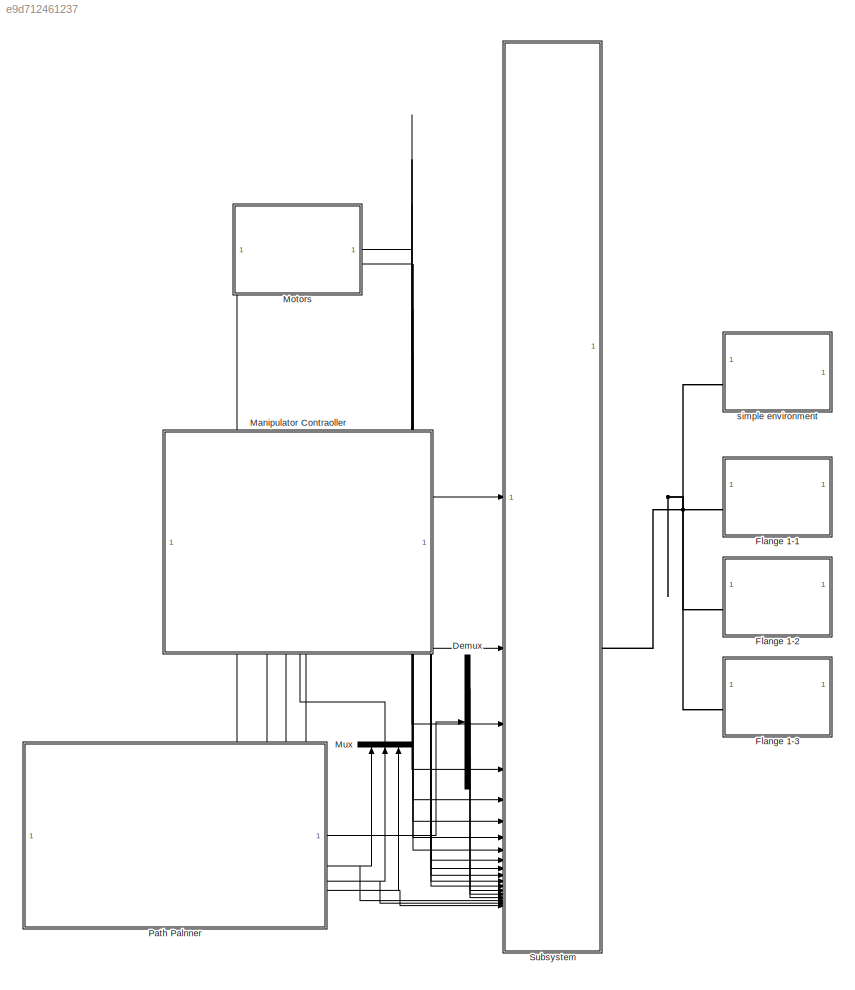
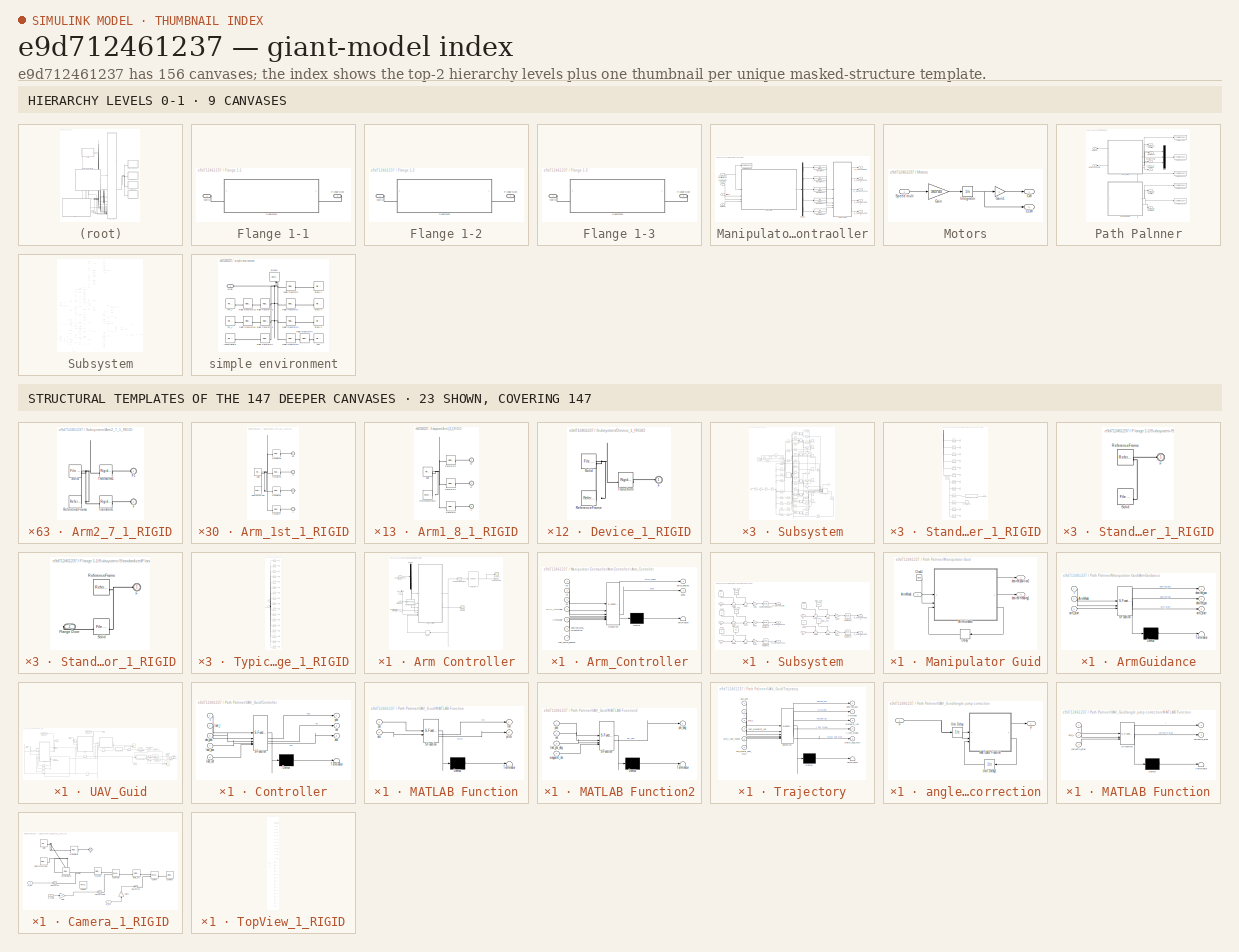
[diagram: thumbnail index - top-2 hierarchy levels (9 canvases) + 23 structural-template representatives of the remaining 147 canvases]
MODEL slx_e9d712461237
KIND model
CONFIG AbsTol = auto
CONFIG EnableMultiTasking = off
CONFIG FixedStep = auto
CONFIG InitFcn = InitScript
CONFIG MaxStep = 0.01
CONFIG MinStep = 1e-5
CONFIG PreLoadFcn = InitScript
CONFIG RelTol = 1e-3
CONFIG SampleTimeConstraint = Unconstrained
CONFIG SolverName = ode113
CONFIG StartTime = 0.0
CONFIG StopTime = 140
BLOCK [Demux] Demux
  Outputs = 3
BLOCK [SubSystem] Flange 1-1
  MinAlgLoopOccurrences = on
  NameLocation = top
BLOCK [PMIOPort] Flange 1-1/Flange Door
  Port = 2
  Side = Right
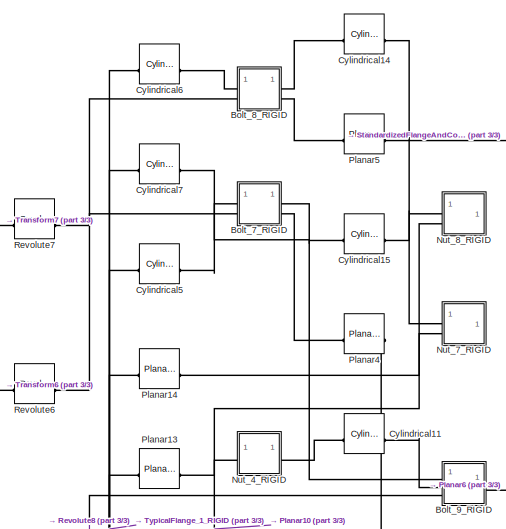
[diagram: Flange 1-1/Subsystem - part 1/3, top center region]
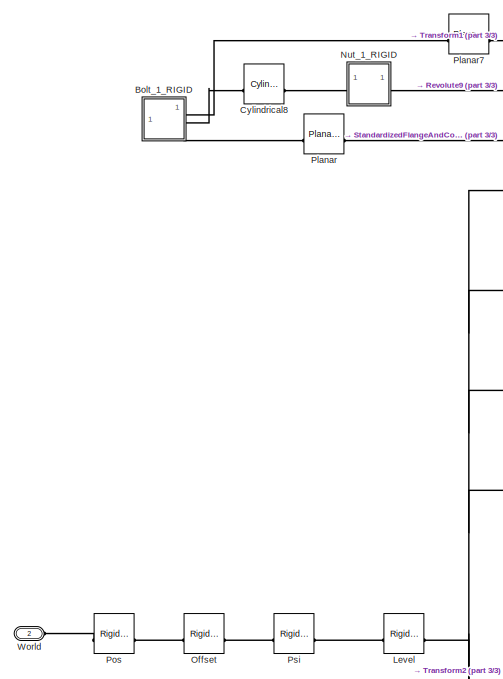
[diagram: Flange 1-1/Subsystem - part 2/3, middle left region]
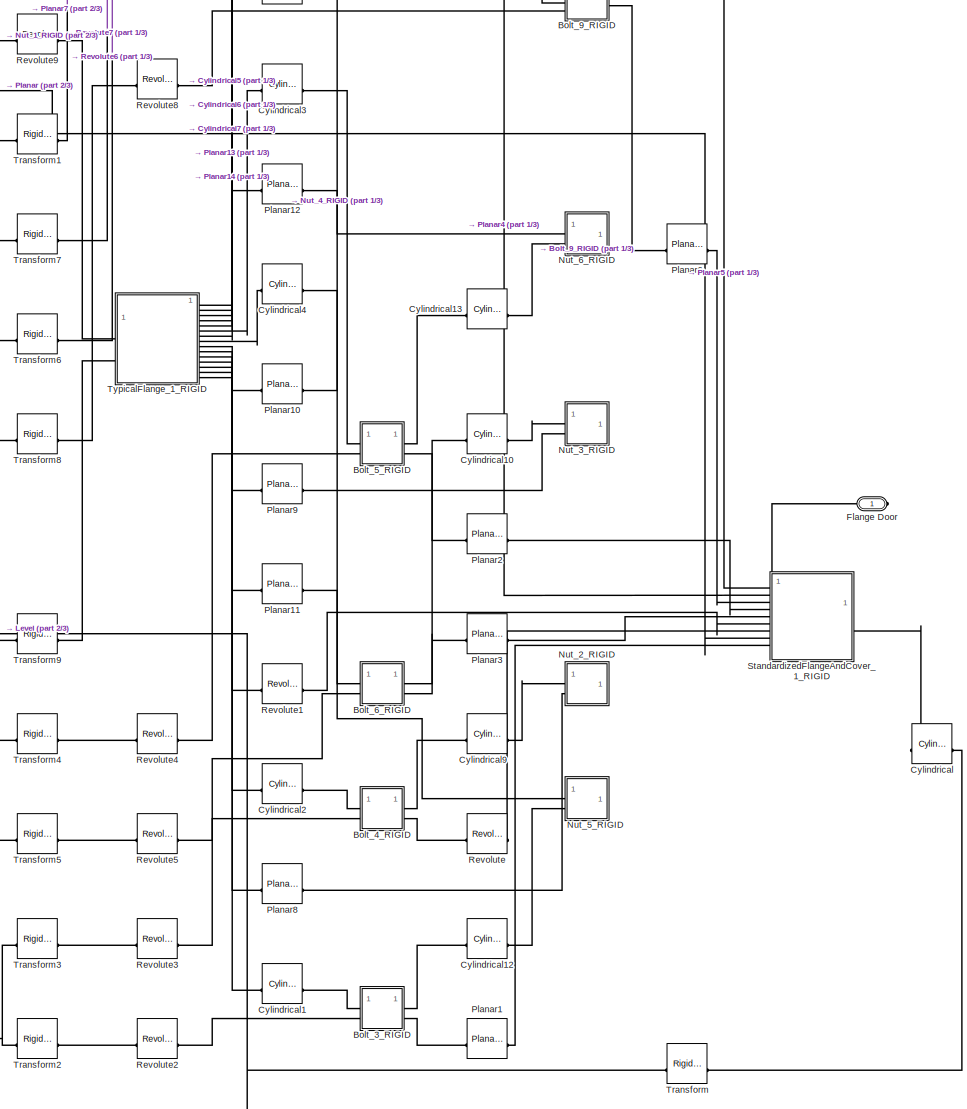
[diagram: Flange 1-1/Subsystem - part 3/3, middle right region]
BLOCK [SubSystem] Flange 1-1/Subsystem
BLOCK [SubSystem] Flange 1-1/Subsystem/Bolt_1_RIGID
BLOCK [PMIOPort] Flange 1-1/Subsystem/Bolt_1_RIGID/F
  Port = 3
  Side = Right
BLOCK [PMIOPort] Flange 1-1/Subsystem/Bolt_1_RIGID/F1
  Side = Right
BLOCK [PMIOPort] Flange 1-1/Subsystem/Bolt_1_RIGID/F2
  Port = 2
  Side = Right
BLOCK [Reference] Flange 1-1/Subsystem/Bolt_1_RIGID/ReferenceFrame  REF=sm_lib/Frames and
Transforms/Reference
Frame
  SourceBlock = sm_lib/Frames and\nTransforms/Reference\nFrame
  SourceType = Reference\nFrame
BLOCK [Reference] Flange 1-1/Subsystem/Bolt_1_RIGID/Solid  REF=sm_lib/Body Elements/File Solid
  SourceBlock = sm_lib/Body Elements/File Solid
  SourceType = File Solid
BLOCK [Reference] Flange 1-1/Subsystem/Bolt_1_RIGID/Transform  REF=sm_lib/Frames and
Transforms/Rigid
Transform
  SourceBlock = sm_lib/Frames and\nTransforms/Rigid\nTransform
  SourceType = Rigid\nTransform
BLOCK [Reference] Flange 1-1/Subsystem/Bolt_1_RIGID/Transform1  REF=sm_lib/Frames and
Transforms/Rigid
Transform
  SourceBlock = sm_lib/Frames and\nTransforms/Rigid\nTransform
  SourceType = Rigid\nTransform
BLOCK [Reference] Flange 1-1/Subsystem/Bolt_1_RIGID/Transform2  REF=sm_lib/Frames and
Transforms/Rigid
Transform
  SourceBlock = sm_lib/Frames and\nTransforms/Rigid\nTransform
  SourceType = Rigid\nTransform
BLOCK [SubSystem] Flange 1-1/Subsystem/Bolt_3_RIGID
BLOCK [PMIOPort] Flange 1-1/Subsystem/Bolt_3_RIGID/F
  Port = 4
  Side = Right
BLOCK [PMIOPort] Flange 1-1/Subsystem/Bolt_3_RIGID/F1
  Port = 2
  Side = Left
BLOCK [PMIOPort] Flange 1-1/Subsystem/Bolt_3_RIGID/F2
  Side = Left
BLOCK [PMIOPort] Flange 1-1/Subsystem/Bolt_3_RIGID/F3
  Port = 3
  Side = Right
BLOCK [Reference] Flange 1-1/Subsystem/Bolt_3_RIGID/ReferenceFrame  REF=sm_lib/Frames and
Transforms/Reference
Frame
  SourceBlock = sm_lib/Frames and\nTransforms/Reference\nFrame
  SourceType = Reference\nFrame
BLOCK [Reference] Flange 1-1/Subsystem/Bolt_3_RIGID/Solid  REF=sm_lib/Body Elements/File Solid
  SourceBlock = sm_lib/Body Elements/File Solid
  SourceType = File Solid
BLOCK [Reference] Flange 1-1/Subsystem/Bolt_3_RIGID/Transform  REF=sm_lib/Frames and
Transforms/Rigid
Transform
  SourceBlock = sm_lib/Frames and\nTransforms/Rigid\nTransform
  SourceType = Rigid\nTransform
BLOCK [Reference] Flange 1-1/Subsystem/Bolt_3_RIGID/Transform1  REF=sm_lib/Frames and
Transforms/Rigid
Transform
  SourceBlock = sm_lib/Frames and\nTransforms/Rigid\nTransform
  SourceType = Rigid\nTransform
BLOCK [Reference] Flange 1-1/Subsystem/Bolt_3_RIGID/Transform2  REF=sm_lib/Frames and
Transforms/Rigid
Transform
  SourceBlock = sm_lib/Frames and\nTransforms/Rigid\nTransform
  SourceType = Rigid\nTransform
BLOCK [Reference] Flange 1-1/Subsystem/Bolt_3_RIGID/Transform3  REF=sm_lib/Frames and
Transforms/Rigid
Transform
  SourceBlock = sm_lib/Frames and\nTransforms/Rigid\nTransform
  SourceType = Rigid\nTransform
BLOCK [SubSystem] Flange 1-1/Subsystem/Bolt_4_RIGID
BLOCK [PMIOPort] Flange 1-1/Subsystem/Bolt_4_RIGID/F
  Port = 4
  Side = Right
BLOCK [PMIOPort] Flange 1-1/Subsystem/Bolt_4_RIGID/F1
  Port = 2
  Side = Left
BLOCK [PMIOPort] Flange 1-1/Subsystem/Bolt_4_RIGID/F2
  Side = Left
BLOCK [PMIOPort] Flange 1-1/Subsystem/Bolt_4_RIGID/F3
  Port = 3
  Side = Right
BLOCK [Reference] Flange 1-1/Subsystem/Bolt_4_RIGID/ReferenceFrame  REF=sm_lib/Frames and
Transforms/Reference
Frame
  SourceBlock = sm_lib/Frames and\nTransforms/Reference\nFrame
  SourceType = Reference\nFrame
BLOCK [Reference] Flange 1-1/Subsystem/Bolt_4_RIGID/Solid  REF=sm_lib/Body Elements/File Solid
  SourceBlock = sm_lib/Body Elements/File Solid
  SourceType = File Solid
BLOCK [Reference] Flange 1-1/Subsystem/Bolt_4_RIGID/Transform  REF=sm_lib/Frames and
Transforms/Rigid
Transform
  SourceBlock = sm_lib/Frames and\nTransforms/Rigid\nTransform
  SourceType = Rigid\nTransform
BLOCK [Reference] Flange 1-1/Subsystem/Bolt_4_RIGID/Transform1  REF=sm_lib/Frames and
Transforms/Rigid
Transform
  SourceBlock = sm_lib/Frames and\nTransforms/Rigid\nTransform
  SourceType = Rigid\nTransform
BLOCK [Reference] Flange 1-1/Subsystem/Bolt_4_RIGID/Transform2  REF=sm_lib/Frames and
Transforms/Rigid
Transform
  SourceBlock = sm_lib/Frames and\nTransforms/Rigid\nTransform
  SourceType = Rigid\nTransform
BLOCK [Reference] Flange 1-1/Subsystem/Bolt_4_RIGID/Transform3  REF=sm_lib/Frames and
Transforms/Rigid
Transform
  SourceBlock = sm_lib/Frames and\nTransforms/Rigid\nTransform
  SourceType = Rigid\nTransform
BLOCK [SubSystem] Flange 1-1/Subsystem/Bolt_5_RIGID
BLOCK [PMIOPort] Flange 1-1/Subsystem/Bolt_5_RIGID/F
  Port = 4
  Side = Right
BLOCK [PMIOPort] Flange 1-1/Subsystem/Bolt_5_RIGID/F1
  Port = 2
  Side = Left
BLOCK [PMIOPort] Flange 1-1/Subsystem/Bolt_5_RIGID/F2
  Side = Left
BLOCK [PMIOPort] Flange 1-1/Subsystem/Bolt_5_RIGID/F3
  Port = 3
  Side = Right
BLOCK [Reference] Flange 1-1/Subsystem/Bolt_5_RIGID/ReferenceFrame  REF=sm_lib/Frames and
Transforms/Reference
Frame
  SourceBlock = sm_lib/Frames and\nTransforms/Reference\nFrame
  SourceType = Reference\nFrame
BLOCK [Reference] Flange 1-1/Subsystem/Bolt_5_RIGID/Solid  REF=sm_lib/Body Elements/File Solid
  SourceBlock = sm_lib/Body Elements/File Solid
  SourceType = File Solid
BLOCK [Reference] Flange 1-1/Subsystem/Bolt_5_RIGID/Transform  REF=sm_lib/Frames and
Transforms/Rigid
Transform
  SourceBlock = sm_lib/Frames and\nTransforms/Rigid\nTransform
  SourceType = Rigid\nTransform
BLOCK [Reference] Flange 1-1/Subsystem/Bolt_5_RIGID/Transform1  REF=sm_lib/Frames and
Transforms/Rigid
Transform
  SourceBlock = sm_lib/Frames and\nTransforms/Rigid\nTransform
  SourceType = Rigid\nTransform
BLOCK [Reference] Flange 1-1/Subsystem/Bolt_5_RIGID/Transform2  REF=sm_lib/Frames and
Transforms/Rigid
Transform
  SourceBlock = sm_lib/Frames and\nTransforms/Rigid\nTransform
  SourceType = Rigid\nTransform
BLOCK [Reference] Flange 1-1/Subsystem/Bolt_5_RIGID/Transform3  REF=sm_lib/Frames and
Transforms/Rigid
Transform
  SourceBlock = sm_lib/Frames and\nTransforms/Rigid\nTransform
  SourceType = Rigid\nTransform
BLOCK [SubSystem] Flange 1-1/Subsystem/Bolt_6_RIGID
BLOCK [PMIOPort] Flange 1-1/Subsystem/Bolt_6_RIGID/F
  Port = 4
  Side = Right
BLOCK [PMIOPort] Flange 1-1/Subsystem/Bolt_6_RIGID/F1
  Port = 2
  Side = Left
BLOCK [PMIOPort] Flange 1-1/Subsystem/Bolt_6_RIGID/F2
  Side = Left
BLOCK [PMIOPort] Flange 1-1/Subsystem/Bolt_6_RIGID/F3
  Port = 3
  Side = Right
BLOCK [Reference] Flange 1-1/Subsystem/Bolt_6_RIGID/ReferenceFrame  REF=sm_lib/Frames and
Transforms/Reference
Frame
  SourceBlock = sm_lib/Frames and\nTransforms/Reference\nFrame
  SourceType = Reference\nFrame
BLOCK [Reference] Flange 1-1/Subsystem/Bolt_6_RIGID/Solid  REF=sm_lib/Body Elements/File Solid
  SourceBlock = sm_lib/Body Elements/File Solid
  SourceType = File Solid
BLOCK [Reference] Flange 1-1/Subsystem/Bolt_6_RIGID/Transform  REF=sm_lib/Frames and
Transforms/Rigid
Transform
  SourceBlock = sm_lib/Frames and\nTransforms/Rigid\nTransform
  SourceType = Rigid\nTransform
BLOCK [Reference] Flange 1-1/Subsystem/Bolt_6_RIGID/Transform1  REF=sm_lib/Frames and
Transforms/Rigid
Transform
  SourceBlock = sm_lib/Frames and\nTransforms/Rigid\nTransform
  SourceType = Rigid\nTransform
BLOCK [Reference] Flange 1-1/Subsystem/Bolt_6_RIGID/Transform2  REF=sm_lib/Frames and
Transforms/Rigid
Transform
  SourceBlock = sm_lib/Frames and\nTransforms/Rigid\nTransform
  SourceType = Rigid\nTransform
BLOCK [Reference] Flange 1-1/Subsystem/Bolt_6_RIGID/Transform3  REF=sm_lib/Frames and
Transforms/Rigid
Transform
  SourceBlock = sm_lib/Frames and\nTransforms/Rigid\nTransform
  SourceType = Rigid\nTransform
BLOCK [SubSystem] Flange 1-1/Subsystem/Bolt_7_RIGID
BLOCK [PMIOPort] Flange 1-1/Subsystem/Bolt_7_RIGID/F
  Port = 4
  Side = Right
BLOCK [PMIOPort] Flange 1-1/Subsystem/Bolt_7_RIGID/F1
  Port = 2
  Side = Left
BLOCK [PMIOPort] Flange 1-1/Subsystem/Bolt_7_RIGID/F2
  Side = Left
BLOCK [PMIOPort] Flange 1-1/Subsystem/Bolt_7_RIGID/F3
  Port = 3
  Side = Right
BLOCK [Reference] Flange 1-1/Subsystem/Bolt_7_RIGID/ReferenceFrame  REF=sm_lib/Frames and
Transforms/Reference
Frame
  SourceBlock = sm_lib/Frames and\nTransforms/Reference\nFrame
  SourceType = Reference\nFrame
BLOCK [Reference] Flange 1-1/Subsystem/Bolt_7_RIGID/Solid  REF=sm_lib/Body Elements/File Solid
  SourceBlock = sm_lib/Body Elements/File Solid
  SourceType = File Solid
BLOCK [Reference] Flange 1-1/Subsystem/Bolt_7_RIGID/Transform  REF=sm_lib/Frames and
Transforms/Rigid
Transform
  SourceBlock = sm_lib/Frames and\nTransforms/Rigid\nTransform
  SourceType = Rigid\nTransform
BLOCK [Reference] Flange 1-1/Subsystem/Bolt_7_RIGID/Transform1  REF=sm_lib/Frames and
Transforms/Rigid
Transform
  SourceBlock = sm_lib/Frames and\nTransforms/Rigid\nTransform
  SourceType = Rigid\nTransform
BLOCK [Reference] Flange 1-1/Subsystem/Bolt_7_RIGID/Transform2  REF=sm_lib/Frames and
Transforms/Rigid
Transform
  SourceBlock = sm_lib/Frames and\nTransforms/Rigid\nTransform
  SourceType = Rigid\nTransform
BLOCK [Reference] Flange 1-1/Subsystem/Bolt_7_RIGID/Transform3  REF=sm_lib/Frames and
Transforms/Rigid
Transform
  SourceBlock = sm_lib/Frames and\nTransforms/Rigid\nTransform
  SourceType = Rigid\nTransform
BLOCK [SubSystem] Flange 1-1/Subsystem/Bolt_8_RIGID
BLOCK [PMIOPort] Flange 1-1/Subsystem/Bolt_8_RIGID/F
  Port = 4
  Side = Right
BLOCK [PMIOPort] Flange 1-1/Subsystem/Bolt_8_RIGID/F1
  Port = 2
  Side = Left
BLOCK [PMIOPort] Flange 1-1/Subsystem/Bolt_8_RIGID/F2
  Side = Left
BLOCK [PMIOPort] Flange 1-1/Subsystem/Bolt_8_RIGID/F3
  Port = 3
  Side = Right
BLOCK [Reference] Flange 1-1/Subsystem/Bolt_8_RIGID/ReferenceFrame  REF=sm_lib/Frames and
Transforms/Reference
Frame
  SourceBlock = sm_lib/Frames and\nTransforms/Reference\nFrame
  SourceType = Reference\nFrame
BLOCK [Reference] Flange 1-1/Subsystem/Bolt_8_RIGID/Solid  REF=sm_lib/Body Elements/File Solid
  SourceBlock = sm_lib/Body Elements/File Solid
  SourceType = File Solid
BLOCK [Reference] Flange 1-1/Subsystem/Bolt_8_RIGID/Transform  REF=sm_lib/Frames and
Transforms/Rigid
Transform
  SourceBlock = sm_lib/Frames and\nTransforms/Rigid\nTransform
  SourceType = Rigid\nTransform
BLOCK [Reference] Flange 1-1/Subsystem/Bolt_8_RIGID/Transform1  REF=sm_lib/Frames and
Transforms/Rigid
Transform
  SourceBlock = sm_lib/Frames and\nTransforms/Rigid\nTransform
  SourceType = Rigid\nTransform
BLOCK [Reference] Flange 1-1/Subsystem/Bolt_8_RIGID/Transform2  REF=sm_lib/Frames and
Transforms/Rigid
Transform
  SourceBlock = sm_lib/Frames and\nTransforms/Rigid\nTransform
  SourceType = Rigid\nTransform
BLOCK [Reference] Flange 1-1/Subsystem/Bolt_8_RIGID/Transform3  REF=sm_lib/Frames and
Transforms/Rigid
Transform
  SourceBlock = sm_lib/Frames and\nTransforms/Rigid\nTransform
  SourceType = Rigid\nTransform
BLOCK [SubSystem] Flange 1-1/Subsystem/Bolt_9_RIGID
BLOCK [PMIOPort] Flange 1-1/Subsystem/Bolt_9_RIGID/F
  Port = 4
  Side = Right
BLOCK [PMIOPort] Flange 1-1/Subsystem/Bolt_9_RIGID/F1
  Port = 3
  Side = Left
BLOCK [PMIOPort] Flange 1-1/Subsystem/Bolt_9_RIGID/F2
  Side = Left
BLOCK [PMIOPort] Flange 1-1/Subsystem/Bolt_9_RIGID/F3
  Port = 2
  Side = Left
BLOCK [Reference] Flange 1-1/Subsystem/Bolt_9_RIGID/ReferenceFrame  REF=sm_lib/Frames and
Transforms/Reference
Frame
  SourceBlock = sm_lib/Frames and\nTransforms/Reference\nFrame
  SourceType = Reference\nFrame
BLOCK [Reference] Flange 1-1/Subsystem/Bolt_9_RIGID/Solid  REF=sm_lib/Body Elements/File Solid
  SourceBlock = sm_lib/Body Elements/File Solid
  SourceType = File Solid
BLOCK [Reference] Flange 1-1/Subsystem/Bolt_9_RIGID/Transform  REF=sm_lib/Frames and
Transforms/Rigid
Transform
  SourceBlock = sm_lib/Frames and\nTransforms/Rigid\nTransform
  SourceType = Rigid\nTransform
BLOCK [Reference] Flange 1-1/Subsystem/Bolt_9_RIGID/Transform1  REF=sm_lib/Frames and
Transforms/Rigid
Transform
  SourceBlock = sm_lib/Frames and\nTransforms/Rigid\nTransform
  SourceType = Rigid\nTransform
BLOCK [Reference] Flange 1-1/Subsystem/Bolt_9_RIGID/Transform2  REF=sm_lib/Frames and
Transforms/Rigid
Transform
  SourceBlock = sm_lib/Frames and\nTransforms/Rigid\nTransform
  SourceType = Rigid\nTransform
BLOCK [Reference] Flange 1-1/Subsystem/Bolt_9_RIGID/Transform3  REF=sm_lib/Frames and
Transforms/Rigid
Transform
  SourceBlock = sm_lib/Frames and\nTransforms/Rigid\nTransform
  SourceType = Rigid\nTransform
BLOCK [Reference] Flange 1-1/Subsystem/Cylindrical  REF=sm_lib/Joints/Cylindrical
Joint
  SourceBlock = sm_lib/Joints/Cylindrical\nJoint
  SourceType = Cylindrical\nJoint
BLOCK [Reference] Flange 1-1/Subsystem/Cylindrical1  REF=sm_lib/Joints/Cylindrical
Joint
  SourceBlock = sm_lib/Joints/Cylindrical\nJoint
  SourceType = Cylindrical\nJoint
BLOCK [Reference] Flange 1-1/Subsystem/Cylindrical10  REF=sm_lib/Joints/Cylindrical
Joint
  SourceBlock = sm_lib/Joints/Cylindrical\nJoint
  SourceType = Cylindrical\nJoint
BLOCK [Reference] Flange 1-1/Subsystem/Cylindrical11  REF=sm_lib/Joints/Cylindrical
Joint
  SourceBlock = sm_lib/Joints/Cylindrical\nJoint
  SourceType = Cylindrical\nJoint
BLOCK [Reference] Flange 1-1/Subsystem/Cylindrical12  REF=sm_lib/Joints/Cylindrical
Joint
  SourceBlock = sm_lib/Joints/Cylindrical\nJoint
  SourceType = Cylindrical\nJoint
BLOCK [Reference] Flange 1-1/Subsystem/Cylindrical13  REF=sm_lib/Joints/Cylindrical
Joint
  SourceBlock = sm_lib/Joints/Cylindrical\nJoint
  SourceType = Cylindrical\nJoint
BLOCK [Reference] Flange 1-1/Subsystem/Cylindrical14  REF=sm_lib/Joints/Cylindrical
Joint
  SourceBlock = sm_lib/Joints/Cylindrical\nJoint
  SourceType = Cylindrical\nJoint
BLOCK [Reference] Flange 1-1/Subsystem/Cylindrical15  REF=sm_lib/Joints/Cylindrical
Joint
  SourceBlock = sm_lib/Joints/Cylindrical\nJoint
  SourceType = Cylindrical\nJoint
BLOCK [Reference] Flange 1-1/Subsystem/Cylindrical2  REF=sm_lib/Joints/Cylindrical
Joint
  SourceBlock = sm_lib/Joints/Cylindrical\nJoint
  SourceType = Cylindrical\nJoint
BLOCK [Reference] Flange 1-1/Subsystem/Cylindrical3  REF=sm_lib/Joints/Cylindrical
Joint
  SourceBlock = sm_lib/Joints/Cylindrical\nJoint
  SourceType = Cylindrical\nJoint
BLOCK [Reference] Flange 1-1/Subsystem/Cylindrical4  REF=sm_lib/Joints/Cylindrical
Joint
  SourceBlock = sm_lib/Joints/Cylindrical\nJoint
  SourceType = Cylindrical\nJoint
BLOCK [Reference] Flange 1-1/Subsystem/Cylindrical5  REF=sm_lib/Joints/Cylindrical
Joint
  SourceBlock = sm_lib/Joints/Cylindrical\nJoint
  SourceType = Cylindrical\nJoint
BLOCK [Reference] Flange 1-1/Subsystem/Cylindrical6  REF=sm_lib/Joints/Cylindrical
Joint
  SourceBlock = sm_lib/Joints/Cylindrical\nJoint
  SourceType = Cylindrical\nJoint
BLOCK [Reference] Flange 1-1/Subsystem/Cylindrical7  REF=sm_lib/Joints/Cylindrical
Joint
  SourceBlock = sm_lib/Joints/Cylindrical\nJoint
  SourceType = Cylindrical\nJoint
BLOCK [Reference] Flange 1-1/Subsystem/Cylindrical8  REF=sm_lib/Joints/Cylindrical
Joint
  SourceBlock = sm_lib/Joints/Cylindrical\nJoint
  SourceType = Cylindrical\nJoint
BLOCK [Reference] Flange 1-1/Subsystem/Cylindrical9  REF=sm_lib/Joints/Cylindrical
Joint
  SourceBlock = sm_lib/Joints/Cylindrical\nJoint
  SourceType = Cylindrical\nJoint
BLOCK [PMIOPort] Flange 1-1/Subsystem/Flange Door
  Side = Right
BLOCK [Reference] Flange 1-1/Subsystem/Level  REF=sm_lib/Frames and
Transforms/Rigid
Transform
  SourceBlock = sm_lib/Frames and\nTransforms/Rigid\nTransform
  SourceType = Rigid\nTransform
BLOCK [SubSystem] Flange 1-1/Subsystem/Nut_1_RIGID
BLOCK [PMIOPort] Flange 1-1/Subsystem/Nut_1_RIGID/F
  Side = Left
BLOCK [PMIOPort] Flange 1-1/Subsystem/Nut_1_RIGID/F1
  Port = 2
  Side = Right
BLOCK [Reference] Flange 1-1/Subsystem/Nut_1_RIGID/ReferenceFrame  REF=sm_lib/Frames and
Transforms/Reference
Frame
  SourceBlock = sm_lib/Frames and\nTransforms/Reference\nFrame
  SourceType = Reference\nFrame
BLOCK [Reference] Flange 1-1/Subsystem/Nut_1_RIGID/Solid  REF=sm_lib/Body Elements/File Solid
  SourceBlock = sm_lib/Body Elements/File Solid
  SourceType = File Solid
BLOCK [Reference] Flange 1-1/Subsystem/Nut_1_RIGID/Transform  REF=sm_lib/Frames and
Transforms/Rigid
Transform
  SourceBlock = sm_lib/Frames and\nTransforms/Rigid\nTransform
  SourceType = Rigid\nTransform
BLOCK [Reference] Flange 1-1/Subsystem/Nut_1_RIGID/Transform1  REF=sm_lib/Frames and
Transforms/Rigid
Transform
  SourceBlock = sm_lib/Frames and\nTransforms/Rigid\nTransform
  SourceType = Rigid\nTransform
BLOCK [SubSystem] Flange 1-1/Subsystem/Nut_2_RIGID
BLOCK [PMIOPort] Flange 1-1/Subsystem/Nut_2_RIGID/F
  Side = Left
BLOCK [PMIOPort] Flange 1-1/Subsystem/Nut_2_RIGID/F1
  Port = 2
  Side = Left
BLOCK [Reference] Flange 1-1/Subsystem/Nut_2_RIGID/ReferenceFrame  REF=sm_lib/Frames and
Transforms/Reference
Frame
  SourceBlock = sm_lib/Frames and\nTransforms/Reference\nFrame
  SourceType = Reference\nFrame
BLOCK [Reference] Flange 1-1/Subsystem/Nut_2_RIGID/Solid  REF=sm_lib/Body Elements/File Solid
  SourceBlock = sm_lib/Body Elements/File Solid
  SourceType = File Solid
BLOCK [Reference] Flange 1-1/Subsystem/Nut_2_RIGID/Transform  REF=sm_lib/Frames and
Transforms/Rigid
Transform
  SourceBlock = sm_lib/Frames and\nTransforms/Rigid\nTransform
  SourceType = Rigid\nTransform
BLOCK [Reference] Flange 1-1/Subsystem/Nut_2_RIGID/Transform1  REF=sm_lib/Frames and
Transforms/Rigid
Transform
  SourceBlock = sm_lib/Frames and\nTransforms/Rigid\nTransform
  SourceType = Rigid\nTransform
BLOCK [SubSystem] Flange 1-1/Subsystem/Nut_3_RIGID
BLOCK [PMIOPort] Flange 1-1/Subsystem/Nut_3_RIGID/F
  Side = Left
BLOCK [PMIOPort] Flange 1-1/Subsystem/Nut_3_RIGID/F1
  Port = 2
  Side = Left
BLOCK [Reference] Flange 1-1/Subsystem/Nut_3_RIGID/ReferenceFrame  REF=sm_lib/Frames and
Transforms/Reference
Frame
  SourceBlock = sm_lib/Frames and\nTransforms/Reference\nFrame
  SourceType = Reference\nFrame
BLOCK [Reference] Flange 1-1/Subsystem/Nut_3_RIGID/Solid  REF=sm_lib/Body Elements/File Solid
  SourceBlock = sm_lib/Body Elements/File Solid
  SourceType = File Solid
BLOCK [Reference] Flange 1-1/Subsystem/Nut_3_RIGID/Transform  REF=sm_lib/Frames and
Transforms/Rigid
Transform
  SourceBlock = sm_lib/Frames and\nTransforms/Rigid\nTransform
  SourceType = Rigid\nTransform
BLOCK [Reference] Flange 1-1/Subsystem/Nut_3_RIGID/Transform1  REF=sm_lib/Frames and
Transforms/Rigid
Transform
  SourceBlock = sm_lib/Frames and\nTransforms/Rigid\nTransform
  SourceType = Rigid\nTransform
BLOCK [SubSystem] Flange 1-1/Subsystem/Nut_4_RIGID
BLOCK [PMIOPort] Flange 1-1/Subsystem/Nut_4_RIGID/F
  Port = 2
  Side = Right
BLOCK [PMIOPort] Flange 1-1/Subsystem/Nut_4_RIGID/F1
  Side = Left
BLOCK [Reference] Flange 1-1/Subsystem/Nut_4_RIGID/ReferenceFrame  REF=sm_lib/Frames and
Transforms/Reference
Frame
  SourceBlock = sm_lib/Frames and\nTransforms/Reference\nFrame
  SourceType = Reference\nFrame
BLOCK [Reference] Flange 1-1/Subsystem/Nut_4_RIGID/Solid  REF=sm_lib/Body Elements/File Solid
  SourceBlock = sm_lib/Body Elements/File Solid
  SourceType = File Solid
BLOCK [Reference] Flange 1-1/Subsystem/Nut_4_RIGID/Transform  REF=sm_lib/Frames and
Transforms/Rigid
Transform
  SourceBlock = sm_lib/Frames and\nTransforms/Rigid\nTransform
  SourceType = Rigid\nTransform
BLOCK [Reference] Flange 1-1/Subsystem/Nut_4_RIGID/Transform1  REF=sm_lib/Frames and
Transforms/Rigid
Transform
  SourceBlock = sm_lib/Frames and\nTransforms/Rigid\nTransform
  SourceType = Rigid\nTransform
BLOCK [SubSystem] Flange 1-1/Subsystem/Nut_5_RIGID
BLOCK [PMIOPort] Flange 1-1/Subsystem/Nut_5_RIGID/F
  Port = 2
  Side = Left
BLOCK [PMIOPort] Flange 1-1/Subsystem/Nut_5_RIGID/F1
  Side = Left
BLOCK [Reference] Flange 1-1/Subsystem/Nut_5_RIGID/ReferenceFrame  REF=sm_lib/Frames and
Transforms/Reference
Frame
  SourceBlock = sm_lib/Frames and\nTransforms/Reference\nFrame
  SourceType = Reference\nFrame
BLOCK [Reference] Flange 1-1/Subsystem/Nut_5_RIGID/Solid  REF=sm_lib/Body Elements/File Solid
  SourceBlock = sm_lib/Body Elements/File Solid
  SourceType = File Solid
BLOCK [Reference] Flange 1-1/Subsystem/Nut_5_RIGID/Transform  REF=sm_lib/Frames and
Transforms/Rigid
Transform
  SourceBlock = sm_lib/Frames and\nTransforms/Rigid\nTransform
  SourceType = Rigid\nTransform
BLOCK [Reference] Flange 1-1/Subsystem/Nut_5_RIGID/Transform1  REF=sm_lib/Frames and
Transforms/Rigid
Transform
  SourceBlock = sm_lib/Frames and\nTransforms/Rigid\nTransform
  SourceType = Rigid\nTransform
BLOCK [SubSystem] Flange 1-1/Subsystem/Nut_6_RIGID
BLOCK [PMIOPort] Flange 1-1/Subsystem/Nut_6_RIGID/F
  Port = 2
  Side = Left
BLOCK [PMIOPort] Flange 1-1/Subsystem/Nut_6_RIGID/F1
  Side = Left
BLOCK [Reference] Flange 1-1/Subsystem/Nut_6_RIGID/ReferenceFrame  REF=sm_lib/Frames and
Transforms/Reference
Frame
  SourceBlock = sm_lib/Frames and\nTransforms/Reference\nFrame
  SourceType = Reference\nFrame
BLOCK [Reference] Flange 1-1/Subsystem/Nut_6_RIGID/Solid  REF=sm_lib/Body Elements/File Solid
  SourceBlock = sm_lib/Body Elements/File Solid
  SourceType = File Solid
BLOCK [Reference] Flange 1-1/Subsystem/Nut_6_RIGID/Transform  REF=sm_lib/Frames and
Transforms/Rigid
Transform
  SourceBlock = sm_lib/Frames and\nTransforms/Rigid\nTransform
  SourceType = Rigid\nTransform
BLOCK [Reference] Flange 1-1/Subsystem/Nut_6_RIGID/Transform1  REF=sm_lib/Frames and
Transforms/Rigid
Transform
  SourceBlock = sm_lib/Frames and\nTransforms/Rigid\nTransform
  SourceType = Rigid\nTransform
BLOCK [SubSystem] Flange 1-1/Subsystem/Nut_7_RIGID
BLOCK [PMIOPort] Flange 1-1/Subsystem/Nut_7_RIGID/F
  Side = Left
BLOCK [PMIOPort] Flange 1-1/Subsystem/Nut_7_RIGID/F1
  Port = 2
  Side = Left
BLOCK [Reference] Flange 1-1/Subsystem/Nut_7_RIGID/ReferenceFrame  REF=sm_lib/Frames and
Transforms/Reference
Frame
  SourceBlock = sm_lib/Frames and\nTransforms/Reference\nFrame
  SourceType = Reference\nFrame
BLOCK [Reference] Flange 1-1/Subsystem/Nut_7_RIGID/Solid  REF=sm_lib/Body Elements/File Solid
  SourceBlock = sm_lib/Body Elements/File Solid
  SourceType = File Solid
BLOCK [Reference] Flange 1-1/Subsystem/Nut_7_RIGID/Transform  REF=sm_lib/Frames and
Transforms/Rigid
Transform
  SourceBlock = sm_lib/Frames and\nTransforms/Rigid\nTransform
  SourceType = Rigid\nTransform
BLOCK [Reference] Flange 1-1/Subsystem/Nut_7_RIGID/Transform1  REF=sm_lib/Frames and
Transforms/Rigid
Transform
  SourceBlock = sm_lib/Frames and\nTransforms/Rigid\nTransform
  SourceType = Rigid\nTransform
BLOCK [SubSystem] Flange 1-1/Subsystem/Nut_8_RIGID
BLOCK [PMIOPort] Flange 1-1/Subsystem/Nut_8_RIGID/F
  Side = Left
BLOCK [PMIOPort] Flange 1-1/Subsystem/Nut_8_RIGID/F1
  Port = 2
  Side = Left
BLOCK [Reference] Flange 1-1/Subsystem/Nut_8_RIGID/ReferenceFrame  REF=sm_lib/Frames and
Transforms/Reference
Frame
  SourceBlock = sm_lib/Frames and\nTransforms/Reference\nFrame
  SourceType = Reference\nFrame
BLOCK [Reference] Flange 1-1/Subsystem/Nut_8_RIGID/Solid  REF=sm_lib/Body Elements/File Solid
  SourceBlock = sm_lib/Body Elements/File Solid
  SourceType = File Solid
BLOCK [Reference] Flange 1-1/Subsystem/Nut_8_RIGID/Transform  REF=sm_lib/Frames and
Transforms/Rigid
Transform
  SourceBlock = sm_lib/Frames and\nTransforms/Rigid\nTransform
  SourceType = Rigid\nTransform
BLOCK [Reference] Flange 1-1/Subsystem/Nut_8_RIGID/Transform1  REF=sm_lib/Frames and
Transforms/Rigid
Transform
  SourceBlock = sm_lib/Frames and\nTransforms/Rigid\nTransform
  SourceType = Rigid\nTransform
BLOCK [Reference] Flange 1-1/Subsystem/Offset  REF=sm_lib/Frames and
Transforms/Rigid
Transform
  SourceBlock = sm_lib/Frames and\nTransforms/Rigid\nTransform
  SourceType = Rigid\nTransform
BLOCK [Reference] Flange 1-1/Subsystem/Planar  REF=sm_lib/Joints/Planar Joint
  SourceBlock = sm_lib/Joints/Planar Joint
  SourceType = Planar Joint
BLOCK [Reference] Flange 1-1/Subsystem/Planar1  REF=sm_lib/Joints/Planar Joint
  SourceBlock = sm_lib/Joints/Planar Joint
  SourceType = Planar Joint
BLOCK [Reference] Flange 1-1/Subsystem/Planar10  REF=sm_lib/Joints/Planar Joint
  SourceBlock = sm_lib/Joints/Planar Joint
  SourceType = Planar Joint
BLOCK [Reference] Flange 1-1/Subsystem/Planar11  REF=sm_lib/Joints/Planar Joint
  SourceBlock = sm_lib/Joints/Planar Joint
  SourceType = Planar Joint
BLOCK [Reference] Flange 1-1/Subsystem/Planar12  REF=sm_lib/Joints/Planar Joint
  SourceBlock = sm_lib/Joints/Planar Joint
  SourceType = Planar Joint
BLOCK [Reference] Flange 1-1/Subsystem/Planar13  REF=sm_lib/Joints/Planar Joint
  SourceBlock = sm_lib/Joints/Planar Joint
  SourceType = Planar Joint
BLOCK [Reference] Flange 1-1/Subsystem/Planar14  REF=sm_lib/Joints/Planar Joint
  SourceBlock = sm_lib/Joints/Planar Joint
  SourceType = Planar Joint
BLOCK [Reference] Flange 1-1/Subsystem/Planar2  REF=sm_lib/Joints/Planar Joint
  SourceBlock = sm_lib/Joints/Planar Joint
  SourceType = Planar Joint
BLOCK [Reference] Flange 1-1/Subsystem/Planar3  REF=sm_lib/Joints/Planar Joint
  SourceBlock = sm_lib/Joints/Planar Joint
  SourceType = Planar Joint
BLOCK [Reference] Flange 1-1/Subsystem/Planar4  REF=sm_lib/Joints/Planar Joint
  SourceBlock = sm_lib/Joints/Planar Joint
  SourceType = Planar Joint
BLOCK [Reference] Flange 1-1/Subsystem/Planar5  REF=sm_lib/Joints/Planar Joint
  SourceBlock = sm_lib/Joints/Planar Joint
  SourceType = Planar Joint
BLOCK [Reference] Flange 1-1/Subsystem/Planar6  REF=sm_lib/Joints/Planar Joint
  SourceBlock = sm_lib/Joints/Planar Joint
  SourceType = Planar Joint
BLOCK [Reference] Flange 1-1/Subsystem/Planar7  REF=sm_lib/Joints/Planar Joint
  SourceBlock = sm_lib/Joints/Planar Joint
  SourceType = Planar Joint
BLOCK [Reference] Flange 1-1/Subsystem/Planar8  REF=sm_lib/Joints/Planar Joint
  SourceBlock = sm_lib/Joints/Planar Joint
  SourceType = Planar Joint
BLOCK [Reference] Flange 1-1/Subsystem/Planar9  REF=sm_lib/Joints/Planar Joint
  SourceBlock = sm_lib/Joints/Planar Joint
  SourceType = Planar Joint
BLOCK [Reference] Flange 1-1/Subsystem/Pos  REF=sm_lib/Frames and
Transforms/Rigid
Transform
  SourceBlock = sm_lib/Frames and\nTransforms/Rigid\nTransform
  SourceType = Rigid\nTransform
BLOCK [Reference] Flange 1-1/Subsystem/Psi  REF=sm_lib/Frames and
Transforms/Rigid
Transform
  SourceBlock = sm_lib/Frames and\nTransforms/Rigid\nTransform
  SourceType = Rigid\nTransform
BLOCK [Reference] Flange 1-1/Subsystem/Revolute  REF=sm_lib/Joints/Revolute Joint
  SourceBlock = sm_lib/Joints/Revolute Joint
  SourceType = Revolute Joint
BLOCK [Reference] Flange 1-1/Subsystem/Revolute1  REF=sm_lib/Joints/Revolute Joint
  SourceBlock = sm_lib/Joints/Revolute Joint
  SourceType = Revolute Joint
BLOCK [Reference] Flange 1-1/Subsystem/Revolute2  REF=sm_lib/Joints/Revolute Joint
  SourceBlock = sm_lib/Joints/Revolute Joint
  SourceType = Revolute Joint
BLOCK [Reference] Flange 1-1/Subsystem/Revolute3  REF=sm_lib/Joints/Revolute Joint
  SourceBlock = sm_lib/Joints/Revolute Joint
  SourceType = Revolute Joint
BLOCK [Reference] Flange 1-1/Subsystem/Revolute4  REF=sm_lib/Joints/Revolute Joint
  SourceBlock = sm_lib/Joints/Revolute Joint
  SourceType = Revolute Joint
BLOCK [Reference] Flange 1-1/Subsystem/Revolute5  REF=sm_lib/Joints/Revolute Joint
  SourceBlock = sm_lib/Joints/Revolute Joint
  SourceType = Revolute Joint
BLOCK [Reference] Flange 1-1/Subsystem/Revolute6  REF=sm_lib/Joints/Revolute Joint
  SourceBlock = sm_lib/Joints/Revolute Joint
  SourceType = Revolute Joint
BLOCK [Reference] Flange 1-1/Subsystem/Revolute7  REF=sm_lib/Joints/Revolute Joint
  SourceBlock = sm_lib/Joints/Revolute Joint
  SourceType = Revolute Joint
BLOCK [Reference] Flange 1-1/Subsystem/Revolute8  REF=sm_lib/Joints/Revolute Joint
  SourceBlock = sm_lib/Joints/Revolute Joint
  SourceType = Revolute Joint
BLOCK [Reference] Flange 1-1/Subsystem/Revolute9  REF=sm_lib/Joints/Revolute Joint
  SourceBlock = sm_lib/Joints/Revolute Joint
  SourceType = Revolute Joint
BLOCK [SubSystem] Flange 1-1/Subsystem/StandardizedFlangeAndCover_1_RIGID
  PortSchema = {"entries":[{"content":{"sides":[{"content":{"connectorIds":["LConn1","LConn2","LConn3","LConn4","LConn5","LConn6","LConn7","LConn8","LConn9"]},"type":"ConnectorPlacement.EquallySpacedRectSide","uuid":"a77a9f53-2b0e-4c88-9f77-ac5accb7610f"},{"content":{"connectorIds":["RConn1"],"side":"RIGHT"},"type":"ConnectorPlacement.EquallySpacedRectSide","uuid":"a5cf5fb6-1d9f-4361-92d8-75d562783537"},{"conten...<+326ch>  <repeated x3 — deduplicated; at blocks: StandardizedFlangeAndCover_1_RIGID>
BLOCK [PMIOPort] Flange 1-1/Subsystem/StandardizedFlangeAndCover_1_RIGID/F
  Port = 8
  Side = Left
BLOCK [PMIOPort] Flange 1-1/Subsystem/StandardizedFlangeAndCover_1_RIGID/F1
  Port = 9
  Side = Left
BLOCK [PMIOPort] Flange 1-1/Subsystem/StandardizedFlangeAndCover_1_RIGID/F2
  Port = 7
  Side = Left
BLOCK [PMIOPort] Flange 1-1/Subsystem/StandardizedFlangeAndCover_1_RIGID/F3
  Port = 4
  Side = Left
BLOCK [PMIOPort] Flange 1-1/Subsystem/StandardizedFlangeAndCover_1_RIGID/F4
  Port = 5
  Side = Left
BLOCK [PMIOPort] Flange 1-1/Subsystem/StandardizedFlangeAndCover_1_RIGID/F5
  Port = 2
  Side = Left
BLOCK [PMIOPort] Flange 1-1/Subsystem/StandardizedFlangeAndCover_1_RIGID/F6
  Side = Left
BLOCK [PMIOPort] Flange 1-1/Subsystem/StandardizedFlangeAndCover_1_RIGID/F7
  Port = 3
  Side = Left
BLOCK [PMIOPort] Flange 1-1/Subsystem/StandardizedFlangeAndCover_1_RIGID/F8
  Port = 11
  Side = Right
BLOCK [PMIOPort] Flange 1-1/Subsystem/StandardizedFlangeAndCover_1_RIGID/F9
  Port = 6
  Side = Left
BLOCK [PMIOPort] Flange 1-1/Subsystem/StandardizedFlangeAndCover_1_RIGID/Flange Door
  Port = 10
  Side = Left
BLOCK [Reference] Flange 1-1/Subsystem/StandardizedFlangeAndCover_1_RIGID/ReferenceFrame  REF=sm_lib/Frames and
Transforms/Reference
Frame
  SourceBlock = sm_lib/Frames and\nTransforms/Reference\nFrame
  SourceType = Reference\nFrame
BLOCK [SubSystem] Flange 1-1/Subsystem/StandardizedFlangeAndCover_1_RIGID/StandardizedCover_1_RIGID
BLOCK [PMIOPort] Flange 1-1/Subsystem/StandardizedFlangeAndCover_1_RIGID/StandardizedCover_1_RIGID/F
  Side = Left
BLOCK [Reference] Flange 1-1/Subsystem/StandardizedFlangeAndCover_1_RIGID/StandardizedCover_1_RIGID/ReferenceFrame  REF=sm_lib/Frames and
Transforms/Reference
Frame
  SourceBlock = sm_lib/Frames and\nTransforms/Reference\nFrame
  SourceType = Reference\nFrame
BLOCK [Reference] Flange 1-1/Subsystem/StandardizedFlangeAndCover_1_RIGID/StandardizedCover_1_RIGID/Solid  REF=sm_lib/Body Elements/File Solid
  SourceBlock = sm_lib/Body Elements/File Solid
  SourceType = File Solid
BLOCK [SubSystem] Flange 1-1/Subsystem/StandardizedFlangeAndCover_1_RIGID/StandardizedDoor_1_RIGID
BLOCK [PMIOPort] Flange 1-1/Subsystem/StandardizedFlangeAndCover_1_RIGID/StandardizedDoor_1_RIGID/F
  Side = Left
BLOCK [PMIOPort] Flange 1-1/Subsystem/StandardizedFlangeAndCover_1_RIGID/StandardizedDoor_1_RIGID/Flange Door
  Port = 2
  Side = Right
BLOCK [Reference] Flange 1-1/Subsystem/StandardizedFlangeAndCover_1_RIGID/StandardizedDoor_1_RIGID/ReferenceFrame  REF=sm_lib/Frames and
Transforms/Reference
Frame
  SourceBlock = sm_lib/Frames and\nTransforms/Reference\nFrame
  SourceType = Reference\nFrame
BLOCK [Reference] Flange 1-1/Subsystem/StandardizedFlangeAndCover_1_RIGID/StandardizedDoor_1_RIGID/Solid  REF=sm_lib/Body Elements/File Solid
  SourceBlock = sm_lib/Body Elements/File Solid
  SourceType = File Solid
BLOCK [Reference] Flange 1-1/Subsystem/StandardizedFlangeAndCover_1_RIGID/Transform  REF=sm_lib/Frames and
Transforms/Rigid
Transform
  SourceBlock = sm_lib/Frames and\nTransforms/Rigid\nTransform
  SourceType = Rigid\nTransform
BLOCK [Reference] Flange 1-1/Subsystem/StandardizedFlangeAndCover_1_RIGID/Transform1  REF=sm_lib/Frames and
Transforms/Rigid
Transform
  SourceBlock = sm_lib/Frames and\nTransforms/Rigid\nTransform
  SourceType = Rigid\nTransform
BLOCK [Reference] Flange 1-1/Subsystem/StandardizedFlangeAndCover_1_RIGID/Transform10  REF=sm_lib/Frames and
Transforms/Rigid
Transform
  SourceBlock = sm_lib/Frames and\nTransforms/Rigid\nTransform
  SourceType = Rigid\nTransform
BLOCK [Reference] Flange 1-1/Subsystem/StandardizedFlangeAndCover_1_RIGID/Transform11  REF=sm_lib/Frames and
Transforms/Rigid
Transform
  SourceBlock = sm_lib/Frames and\nTransforms/Rigid\nTransform
  SourceType = Rigid\nTransform
BLOCK [Reference] Flange 1-1/Subsystem/StandardizedFlangeAndCover_1_RIGID/Transform2  REF=sm_lib/Frames and
Transforms/Rigid
Transform
  SourceBlock = sm_lib/Frames and\nTransforms/Rigid\nTransform
  SourceType = Rigid\nTransform
BLOCK [Reference] Flange 1-1/Subsystem/StandardizedFlangeAndCover_1_RIGID/Transform3  REF=sm_lib/Frames and
Transforms/Rigid
Transform
  SourceBlock = sm_lib/Frames and\nTransforms/Rigid\nTransform
  SourceType = Rigid\nTransform
BLOCK [Reference] Flange 1-1/Subsystem/StandardizedFlangeAndCover_1_RIGID/Transform4  REF=sm_lib/Frames and
Transforms/Rigid
Transform
  SourceBlock = sm_lib/Frames and\nTransforms/Rigid\nTransform
  SourceType = Rigid\nTransform
BLOCK [Reference] Flange 1-1/Subsystem/StandardizedFlangeAndCover_1_RIGID/Transform5  REF=sm_lib/Frames and
Transforms/Rigid
Transform
  SourceBlock = sm_lib/Frames and\nTransforms/Rigid\nTransform
  SourceType = Rigid\nTransform
BLOCK [Reference] Flange 1-1/Subsystem/StandardizedFlangeAndCover_1_RIGID/Transform6  REF=sm_lib/Frames and
Transforms/Rigid
Transform
  SourceBlock = sm_lib/Frames and\nTransforms/Rigid\nTransform
  SourceType = Rigid\nTransform
BLOCK [Reference] Flange 1-1/Subsystem/StandardizedFlangeAndCover_1_RIGID/Transform7  REF=sm_lib/Frames and
Transforms/Rigid
Transform
  SourceBlock = sm_lib/Frames and\nTransforms/Rigid\nTransform
  SourceType = Rigid\nTransform
BLOCK [Reference] Flange 1-1/Subsystem/StandardizedFlangeAndCover_1_RIGID/Transform8  REF=sm_lib/Frames and
Transforms/Rigid
Transform
  SourceBlock = sm_lib/Frames and\nTransforms/Rigid\nTransform
  SourceType = Rigid\nTransform
BLOCK [Reference] Flange 1-1/Subsystem/StandardizedFlangeAndCover_1_RIGID/Transform9  REF=sm_lib/Frames and
Transforms/Rigid
Transform
  SourceBlock = sm_lib/Frames and\nTransforms/Rigid\nTransform
  SourceType = Rigid\nTransform
BLOCK [Reference] Flange 1-1/Subsystem/Transform  REF=sm_lib/Frames and
Transforms/Rigid
Transform
  SourceBlock = sm_lib/Frames and\nTransforms/Rigid\nTransform
  SourceType = Rigid\nTransform
BLOCK [Reference] Flange 1-1/Subsystem/Transform1  REF=sm_lib/Frames and
Transforms/Rigid
Transform
  SourceBlock = sm_lib/Frames and\nTransforms/Rigid\nTransform
  SourceType = Rigid\nTransform
BLOCK [Reference] Flange 1-1/Subsystem/Transform2  REF=sm_lib/Frames and
Transforms/Rigid
Transform
  SourceBlock = sm_lib/Frames and\nTransforms/Rigid\nTransform
  SourceType = Rigid\nTransform
BLOCK [Reference] Flange 1-1/Subsystem/Transform3  REF=sm_lib/Frames and
Transforms/Rigid
Transform
  SourceBlock = sm_lib/Frames and\nTransforms/Rigid\nTransform
  SourceType = Rigid\nTransform
BLOCK [Reference] Flange 1-1/Subsystem/Transform4  REF=sm_lib/Frames and
Transforms/Rigid
Transform
  SourceBlock = sm_lib/Frames and\nTransforms/Rigid\nTransform
  SourceType = Rigid\nTransform
BLOCK [Reference] Flange 1-1/Subsystem/Transform5  REF=sm_lib/Frames and
Transforms/Rigid
Transform
  SourceBlock = sm_lib/Frames and\nTransforms/Rigid\nTransform
  SourceType = Rigid\nTransform
BLOCK [Reference] Flange 1-1/Subsystem/Transform6  REF=sm_lib/Frames and
Transforms/Rigid
Transform
  SourceBlock = sm_lib/Frames and\nTransforms/Rigid\nTransform
  SourceType = Rigid\nTransform
BLOCK [Reference] Flange 1-1/Subsystem/Transform7  REF=sm_lib/Frames and
Transforms/Rigid
Transform
  SourceBlock = sm_lib/Frames and\nTransforms/Rigid\nTransform
  SourceType = Rigid\nTransform
BLOCK [Reference] Flange 1-1/Subsystem/Transform8  REF=sm_lib/Frames and
Transforms/Rigid
Transform
  SourceBlock = sm_lib/Frames and\nTransforms/Rigid\nTransform
  SourceType = Rigid\nTransform
BLOCK [Reference] Flange 1-1/Subsystem/Transform9  REF=sm_lib/Frames and
Transforms/Rigid
Transform
  SourceBlock = sm_lib/Frames and\nTransforms/Rigid\nTransform
  SourceType = Rigid\nTransform
BLOCK [SubSystem] Flange 1-1/Subsystem/TypicalFlange_1_RIGID
BLOCK [PMIOPort] Flange 1-1/Subsystem/TypicalFlange_1_RIGID/F
  Port = 14
  Side = Right
BLOCK [PMIOPort] Flange 1-1/Subsystem/TypicalFlange_1_RIGID/F1
  Port = 17
  Side = Right
BLOCK [PMIOPort] Flange 1-1/Subsystem/TypicalFlange_1_RIGID/F10
  Port = 16
  Side = Right
BLOCK [PMIOPort] Flange 1-1/Subsystem/TypicalFlange_1_RIGID/F11
  Port = 12
  Side = Right
BLOCK [PMIOPort] Flange 1-1/Subsystem/TypicalFlange_1_RIGID/F12
  Port = 11
  Side = Right
BLOCK [PMIOPort] Flange 1-1/Subsystem/TypicalFlange_1_RIGID/F13
  Port = 13
  Side = Right
BLOCK [PMIOPort] Flange 1-1/Subsystem/TypicalFlange_1_RIGID/F14
  Port = 9
  Side = Right
BLOCK [PMIOPort] Flange 1-1/Subsystem/TypicalFlange_1_RIGID/F15
  Port = 7
  Side = Right
BLOCK [PMIOPort] Flange 1-1/Subsystem/TypicalFlange_1_RIGID/F16
  Port = 6
  Side = Right
BLOCK [PMIOPort] Flange 1-1/Subsystem/TypicalFlange_1_RIGID/F2
  Port = 15
  Side = Right
BLOCK [PMIOPort] Flange 1-1/Subsystem/TypicalFlange_1_RIGID/F3
  Port = 8
  Side = Right
BLOCK [PMIOPort] Flange 1-1/Subsystem/TypicalFlange_1_RIGID/F4
  Port = 10
  Side = Right
BLOCK [PMIOPort] Flange 1-1/Subsystem/TypicalFlange_1_RIGID/F5
  Port = 5
  Side = Right
BLOCK [PMIOPort] Flange 1-1/Subsystem/TypicalFlange_1_RIGID/F6
  Port = 3
  Side = Right
BLOCK [PMIOPort] Flange 1-1/Subsystem/TypicalFlange_1_RIGID/F7
  Port = 4
  Side = Right
BLOCK [PMIOPort] Flange 1-1/Subsystem/TypicalFlange_1_RIGID/F8
  Port = 2
  Side = Left
BLOCK [PMIOPort] Flange 1-1/Subsystem/TypicalFlange_1_RIGID/F9
  Side = Left
BLOCK [Reference] Flange 1-1/Subsystem/TypicalFlange_1_RIGID/ReferenceFrame  REF=sm_lib/Frames and
Transforms/Reference
Frame
  SourceBlock = sm_lib/Frames and\nTransforms/Reference\nFrame
  SourceType = Reference\nFrame
BLOCK [Reference] Flange 1-1/Subsystem/TypicalFlange_1_RIGID/Solid  REF=sm_lib/Body Elements/File Solid
  SourceBlock = sm_lib/Body Elements/File Solid
  SourceType = File Solid
BLOCK [Reference] Flange 1-1/Subsystem/TypicalFlange_1_RIGID/Transform  REF=sm_lib/Frames and
Transforms/Rigid
Transform
  SourceBlock = sm_lib/Frames and\nTransforms/Rigid\nTransform
  SourceType = Rigid\nTransform
BLOCK [Reference] Flange 1-1/Subsystem/TypicalFlange_1_RIGID/Transform1  REF=sm_lib/Frames and
Transforms/Rigid
Transform
  SourceBlock = sm_lib/Frames and\nTransforms/Rigid\nTransform
  SourceType = Rigid\nTransform
BLOCK [Reference] Flange 1-1/Subsystem/TypicalFlange_1_RIGID/Transform10  REF=sm_lib/Frames and
Transforms/Rigid
Transform
  SourceBlock = sm_lib/Frames and\nTransforms/Rigid\nTransform
  SourceType = Rigid\nTransform
BLOCK [Reference] Flange 1-1/Subsystem/TypicalFlange_1_RIGID/Transform11  REF=sm_lib/Frames and
Transforms/Rigid
Transform
  SourceBlock = sm_lib/Frames and\nTransforms/Rigid\nTransform
  SourceType = Rigid\nTransform
BLOCK [Reference] Flange 1-1/Subsystem/TypicalFlange_1_RIGID/Transform12  REF=sm_lib/Frames and
Transforms/Rigid
Transform
  SourceBlock = sm_lib/Frames and\nTransforms/Rigid\nTransform
  SourceType = Rigid\nTransform
BLOCK [Reference] Flange 1-1/Subsystem/TypicalFlange_1_RIGID/Transform13  REF=sm_lib/Frames and
Transforms/Rigid
Transform
  SourceBlock = sm_lib/Frames and\nTransforms/Rigid\nTransform
  SourceType = Rigid\nTransform
BLOCK [Reference] Flange 1-1/Subsystem/TypicalFlange_1_RIGID/Transform14  REF=sm_lib/Frames and
Transforms/Rigid
Transform
  SourceBlock = sm_lib/Frames and\nTransforms/Rigid\nTransform
  SourceType = Rigid\nTransform
BLOCK [Reference] Flange 1-1/Subsystem/TypicalFlange_1_RIGID/Transform15  REF=sm_lib/Frames and
Transforms/Rigid
Transform
  SourceBlock = sm_lib/Frames and\nTransforms/Rigid\nTransform
  SourceType = Rigid\nTransform
BLOCK [Reference] Flange 1-1/Subsystem/TypicalFlange_1_RIGID/Transform16  REF=sm_lib/Frames and
Transforms/Rigid
Transform
  SourceBlock = sm_lib/Frames and\nTransforms/Rigid\nTransform
  SourceType = Rigid\nTransform
BLOCK [Reference] Flange 1-1/Subsystem/TypicalFlange_1_RIGID/Transform2  REF=sm_lib/Frames and
Transforms/Rigid
Transform
  SourceBlock = sm_lib/Frames and\nTransforms/Rigid\nTransform
  SourceType = Rigid\nTransform
BLOCK [Reference] Flange 1-1/Subsystem/TypicalFlange_1_RIGID/Transform3  REF=sm_lib/Frames and
Transforms/Rigid
Transform
  SourceBlock = sm_lib/Frames and\nTransforms/Rigid\nTransform
  SourceType = Rigid\nTransform
BLOCK [Reference] Flange 1-1/Subsystem/TypicalFlange_1_RIGID/Transform4  REF=sm_lib/Frames and
Transforms/Rigid
Transform
  SourceBlock = sm_lib/Frames and\nTransforms/Rigid\nTransform
  SourceType = Rigid\nTransform
BLOCK [Reference] Flange 1-1/Subsystem/TypicalFlange_1_RIGID/Transform5  REF=sm_lib/Frames and
Transforms/Rigid
Transform
  SourceBlock = sm_lib/Frames and\nTransforms/Rigid\nTransform
  SourceType = Rigid\nTransform
BLOCK [Reference] Flange 1-1/Subsystem/TypicalFlange_1_RIGID/Transform6  REF=sm_lib/Frames and
Transforms/Rigid
Transform
  SourceBlock = sm_lib/Frames and\nTransforms/Rigid\nTransform
  SourceType = Rigid\nTransform
BLOCK [Reference] Flange 1-1/Subsystem/TypicalFlange_1_RIGID/Transform7  REF=sm_lib/Frames and
Transforms/Rigid
Transform
  SourceBlock = sm_lib/Frames and\nTransforms/Rigid\nTransform
  SourceType = Rigid\nTransform
BLOCK [Reference] Flange 1-1/Subsystem/TypicalFlange_1_RIGID/Transform8  REF=sm_lib/Frames and
Transforms/Rigid
Transform
  SourceBlock = sm_lib/Frames and\nTransforms/Rigid\nTransform
  SourceType = Rigid\nTransform
BLOCK [Reference] Flange 1-1/Subsystem/TypicalFlange_1_RIGID/Transform9  REF=sm_lib/Frames and
Transforms/Rigid
Transform
  SourceBlock = sm_lib/Frames and\nTransforms/Rigid\nTransform
  SourceType = Rigid\nTransform
BLOCK [PMIOPort] Flange 1-1/Subsystem/World
  Port = 2
  Side = Left
BLOCK [PMIOPort] Flange 1-1/World
  Side = Left
BLOCK [SubSystem] Flange 1-2
  MinAlgLoopOccurrences = on
  NameLocation = top
BLOCK [PMIOPort] Flange 1-2/Flange Door
  Port = 2
  Side = Right
BLOCK [SubSystem] Flange 1-2/Subsystem
BLOCK [SubSystem] Flange 1-2/Subsystem/Bolt_1_RIGID
BLOCK [PMIOPort] Flange 1-2/Subsystem/Bolt_1_RIGID/F
  Port = 3
  Side = Right
BLOCK [PMIOPort] Flange 1-2/Subsystem/Bolt_1_RIGID/F1
  Side = Right
BLOCK [PMIOPort] Flange 1-2/Subsystem/Bolt_1_RIGID/F2
  Port = 2
  Side = Right
BLOCK [Reference] Flange 1-2/Subsystem/Bolt_1_RIGID/ReferenceFrame  REF=sm_lib/Frames and
Transforms/Reference
Frame
  SourceBlock = sm_lib/Frames and\nTransforms/Reference\nFrame
  SourceType = Reference\nFrame
BLOCK [Reference] Flange 1-2/Subsystem/Bolt_1_RIGID/Solid  REF=sm_lib/Body Elements/File Solid
  SourceBlock = sm_lib/Body Elements/File Solid
  SourceType = File Solid
BLOCK [Reference] Flange 1-2/Subsystem/Bolt_1_RIGID/Transform  REF=sm_lib/Frames and
Transforms/Rigid
Transform
  SourceBlock = sm_lib/Frames and\nTransforms/Rigid\nTransform
  SourceType = Rigid\nTransform
BLOCK [Reference] Flange 1-2/Subsystem/Bolt_1_RIGID/Transform1  REF=sm_lib/Frames and
Transforms/Rigid
Transform
  SourceBlock = sm_lib/Frames and\nTransforms/Rigid\nTransform
  SourceType = Rigid\nTransform
BLOCK [Reference] Flange 1-2/Subsystem/Bolt_1_RIGID/Transform2  REF=sm_lib/Frames and
Transforms/Rigid
Transform
  SourceBlock = sm_lib/Frames and\nTransforms/Rigid\nTransform
  SourceType = Rigid\nTransform
BLOCK [SubSystem] Flange 1-2/Subsystem/Bolt_3_RIGID
BLOCK [PMIOPort] Flange 1-2/Subsystem/Bolt_3_RIGID/F
  Port = 4
  Side = Right
BLOCK [PMIOPort] Flange 1-2/Subsystem/Bolt_3_RIGID/F1
  Port = 2
  Side = Left
BLOCK [PMIOPort] Flange 1-2/Subsystem/Bolt_3_RIGID/F2
  Side = Left
BLOCK [PMIOPort] Flange 1-2/Subsystem/Bolt_3_RIGID/F3
  Port = 3
  Side = Right
BLOCK [Reference] Flange 1-2/Subsystem/Bolt_3_RIGID/ReferenceFrame  REF=sm_lib/Frames and
Transforms/Reference
Frame
  SourceBlock = sm_lib/Frames and\nTransforms/Reference\nFrame
  SourceType = Reference\nFrame
BLOCK [Reference] Flange 1-2/Subsystem/Bolt_3_RIGID/Solid  REF=sm_lib/Body Elements/File Solid
  SourceBlock = sm_lib/Body Elements/File Solid
  SourceType = File Solid
BLOCK [Reference] Flange 1-2/Subsystem/Bolt_3_RIGID/Transform  REF=sm_lib/Frames and
Transforms/Rigid
Transform
  SourceBlock = sm_lib/Frames and\nTransforms/Rigid\nTransform
  SourceType = Rigid\nTransform
BLOCK [Reference] Flange 1-2/Subsystem/Bolt_3_RIGID/Transform1  REF=sm_lib/Frames and
Transforms/Rigid
Transform
  SourceBlock = sm_lib/Frames and\nTransforms/Rigid\nTransform
  SourceType = Rigid\nTransform
BLOCK [Reference] Flange 1-2/Subsystem/Bolt_3_RIGID/Transform2  REF=sm_lib/Frames and
Transforms/Rigid
Transform
  SourceBlock = sm_lib/Frames and\nTransforms/Rigid\nTransform
  SourceType = Rigid\nTransform
BLOCK [Reference] Flange 1-2/Subsystem/Bolt_3_RIGID/Transform3  REF=sm_lib/Frames and
Transforms/Rigid
Transform
  SourceBlock = sm_lib/Frames and\nTransforms/Rigid\nTransform
  SourceType = Rigid\nTransform
BLOCK [SubSystem] Flange 1-2/Subsystem/Bolt_4_RIGID
BLOCK [PMIOPort] Flange 1-2/Subsystem/Bolt_4_RIGID/F
  Port = 4
  Side = Right
BLOCK [PMIOPort] Flange 1-2/Subsystem/Bolt_4_RIGID/F1
  Port = 2
  Side = Left
BLOCK [PMIOPort] Flange 1-2/Subsystem/Bolt_4_RIGID/F2
  Side = Left
BLOCK [PMIOPort] Flange 1-2/Subsystem/Bolt_4_RIGID/F3
  Port = 3
  Side = Right
BLOCK [Reference] Flange 1-2/Subsystem/Bolt_4_RIGID/ReferenceFrame  REF=sm_lib/Frames and
Transforms/Reference
Frame
  SourceBlock = sm_lib/Frames and\nTransforms/Reference\nFrame
  SourceType = Reference\nFrame
BLOCK [Reference] Flange 1-2/Subsystem/Bolt_4_RIGID/Solid  REF=sm_lib/Body Elements/File Solid
  SourceBlock = sm_lib/Body Elements/File Solid
  SourceType = File Solid
BLOCK [Reference] Flange 1-2/Subsystem/Bolt_4_RIGID/Transform  REF=sm_lib/Frames and
Transforms/Rigid
Transform
  SourceBlock = sm_lib/Frames and\nTransforms/Rigid\nTransform
  SourceType = Rigid\nTransform
BLOCK [Reference] Flange 1-2/Subsystem/Bolt_4_RIGID/Transform1  REF=sm_lib/Frames and
Transforms/Rigid
Transform
  SourceBlock = sm_lib/Frames and\nTransforms/Rigid\nTransform
  SourceType = Rigid\nTransform
BLOCK [Reference] Flange 1-2/Subsystem/Bolt_4_RIGID/Transform2  REF=sm_lib/Frames and
Transforms/Rigid
Transform
  SourceBlock = sm_lib/Frames and\nTransforms/Rigid\nTransform
  SourceType = Rigid\nTransform
BLOCK [Reference] Flange 1-2/Subsystem/Bolt_4_RIGID/Transform3  REF=sm_lib/Frames and
Transforms/Rigid
Transform
  SourceBlock = sm_lib/Frames and\nTransforms/Rigid\nTransform
  SourceType = Rigid\nTransform
BLOCK [SubSystem] Flange 1-2/Subsystem/Bolt_5_RIGID
BLOCK [PMIOPort] Flange 1-2/Subsystem/Bolt_5_RIGID/F
  Port = 4
  Side = Right
BLOCK [PMIOPort] Flange 1-2/Subsystem/Bolt_5_RIGID/F1
  Port = 2
  Side = Left
BLOCK [PMIOPort] Flange 1-2/Subsystem/Bolt_5_RIGID/F2
  Side = Left
BLOCK [PMIOPort] Flange 1-2/Subsystem/Bolt_5_RIGID/F3
  Port = 3
  Side = Right
BLOCK [Reference] Flange 1-2/Subsystem/Bolt_5_RIGID/ReferenceFrame  REF=sm_lib/Frames and
Transforms/Reference
Frame
  SourceBlock = sm_lib/Frames and\nTransforms/Reference\nFrame
  SourceType = Reference\nFrame
BLOCK [Reference] Flange 1-2/Subsystem/Bolt_5_RIGID/Solid  REF=sm_lib/Body Elements/File Solid
  SourceBlock = sm_lib/Body Elements/File Solid
  SourceType = File Solid
BLOCK [Reference] Flange 1-2/Subsystem/Bolt_5_RIGID/Transform  REF=sm_lib/Frames and
Transforms/Rigid
Transform
  SourceBlock = sm_lib/Frames and\nTransforms/Rigid\nTransform
  SourceType = Rigid\nTransform
BLOCK [Reference] Flange 1-2/Subsystem/Bolt_5_RIGID/Transform1  REF=sm_lib/Frames and
Transforms/Rigid
Transform
  SourceBlock = sm_lib/Frames and\nTransforms/Rigid\nTransform
  SourceType = Rigid\nTransform
BLOCK [Reference] Flange 1-2/Subsystem/Bolt_5_RIGID/Transform2  REF=sm_lib/Frames and
Transforms/Rigid
Transform
  SourceBlock = sm_lib/Frames and\nTransforms/Rigid\nTransform
  SourceType = Rigid\nTransform
BLOCK [Reference] Flange 1-2/Subsystem/Bolt_5_RIGID/Transform3  REF=sm_lib/Frames and
Transforms/Rigid
Transform
  SourceBlock = sm_lib/Frames and\nTransforms/Rigid\nTransform
  SourceType = Rigid\nTransform
BLOCK [SubSystem] Flange 1-2/Subsystem/Bolt_6_RIGID
BLOCK [PMIOPort] Flange 1-2/Subsystem/Bolt_6_RIGID/F
  Port = 4
  Side = Right
BLOCK [PMIOPort] Flange 1-2/Subsystem/Bolt_6_RIGID/F1
  Port = 2
  Side = Left
BLOCK [PMIOPort] Flange 1-2/Subsystem/Bolt_6_RIGID/F2
  Side = Left
BLOCK [PMIOPort] Flange 1-2/Subsystem/Bolt_6_RIGID/F3
  Port = 3
  Side = Right
BLOCK [Reference] Flange 1-2/Subsystem/Bolt_6_RIGID/ReferenceFrame  REF=sm_lib/Frames and
Transforms/Reference
Frame
  SourceBlock = sm_lib/Frames and\nTransforms/Reference\nFrame
  SourceType = Reference\nFrame
BLOCK [Reference] Flange 1-2/Subsystem/Bolt_6_RIGID/Solid  REF=sm_lib/Body Elements/File Solid
  SourceBlock = sm_lib/Body Elements/File Solid
  SourceType = File Solid
BLOCK [Reference] Flange 1-2/Subsystem/Bolt_6_RIGID/Transform  REF=sm_lib/Frames and
Transforms/Rigid
Transform
  SourceBlock = sm_lib/Frames and\nTransforms/Rigid\nTransform
  SourceType = Rigid\nTransform
BLOCK [Reference] Flange 1-2/Subsystem/Bolt_6_RIGID/Transform1  REF=sm_lib/Frames and
Transforms/Rigid
Transform
  SourceBlock = sm_lib/Frames and\nTransforms/Rigid\nTransform
  SourceType = Rigid\nTransform
BLOCK [Reference] Flange 1-2/Subsystem/Bolt_6_RIGID/Transform2  REF=sm_lib/Frames and
Transforms/Rigid
Transform
  SourceBlock = sm_lib/Frames and\nTransforms/Rigid\nTransform
  SourceType = Rigid\nTransform
BLOCK [Reference] Flange 1-2/Subsystem/Bolt_6_RIGID/Transform3  REF=sm_lib/Frames and
Transforms/Rigid
Transform
  SourceBlock = sm_lib/Frames and\nTransforms/Rigid\nTransform
  SourceType = Rigid\nTransform
BLOCK [SubSystem] Flange 1-2/Subsystem/Bolt_7_RIGID
BLOCK [PMIOPort] Flange 1-2/Subsystem/Bolt_7_RIGID/F
  Port = 4
  Side = Right
BLOCK [PMIOPort] Flange 1-2/Subsystem/Bolt_7_RIGID/F1
  Port = 2
  Side = Left
BLOCK [PMIOPort] Flange 1-2/Subsystem/Bolt_7_RIGID/F2
  Side = Left
BLOCK [PMIOPort] Flange 1-2/Subsystem/Bolt_7_RIGID/F3
  Port = 3
  Side = Right
BLOCK [Reference] Flange 1-2/Subsystem/Bolt_7_RIGID/ReferenceFrame  REF=sm_lib/Frames and
Transforms/Reference
Frame
  SourceBlock = sm_lib/Frames and\nTransforms/Reference\nFrame
  SourceType = Reference\nFrame
BLOCK [Reference] Flange 1-2/Subsystem/Bolt_7_RIGID/Solid  REF=sm_lib/Body Elements/File Solid
  SourceBlock = sm_lib/Body Elements/File Solid
  SourceType = File Solid
BLOCK [Reference] Flange 1-2/Subsystem/Bolt_7_RIGID/Transform  REF=sm_lib/Frames and
Transforms/Rigid
Transform
  SourceBlock = sm_lib/Frames and\nTransforms/Rigid\nTransform
  SourceType = Rigid\nTransform
BLOCK [Reference] Flange 1-2/Subsystem/Bolt_7_RIGID/Transform1  REF=sm_lib/Frames and
Transforms/Rigid
Transform
  SourceBlock = sm_lib/Frames and\nTransforms/Rigid\nTransform
  SourceType = Rigid\nTransform
BLOCK [Reference] Flange 1-2/Subsystem/Bolt_7_RIGID/Transform2  REF=sm_lib/Frames and
Transforms/Rigid
Transform
  SourceBlock = sm_lib/Frames and\nTransforms/Rigid\nTransform
  SourceType = Rigid\nTransform
BLOCK [Reference] Flange 1-2/Subsystem/Bolt_7_RIGID/Transform3  REF=sm_lib/Frames and
Transforms/Rigid
Transform
  SourceBlock = sm_lib/Frames and\nTransforms/Rigid\nTransform
  SourceType = Rigid\nTransform
BLOCK [SubSystem] Flange 1-2/Subsystem/Bolt_8_RIGID
BLOCK [PMIOPort] Flange 1-2/Subsystem/Bolt_8_RIGID/F
  Port = 4
  Side = Right
BLOCK [PMIOPort] Flange 1-2/Subsystem/Bolt_8_RIGID/F1
  Port = 2
  Side = Left
BLOCK [PMIOPort] Flange 1-2/Subsystem/Bolt_8_RIGID/F2
  Side = Left
BLOCK [PMIOPort] Flange 1-2/Subsystem/Bolt_8_RIGID/F3
  Port = 3
  Side = Right
BLOCK [Reference] Flange 1-2/Subsystem/Bolt_8_RIGID/ReferenceFrame  REF=sm_lib/Frames and
Transforms/Reference
Frame
  SourceBlock = sm_lib/Frames and\nTransforms/Reference\nFrame
  SourceType = Reference\nFrame
BLOCK [Reference] Flange 1-2/Subsystem/Bolt_8_RIGID/Solid  REF=sm_lib/Body Elements/File Solid
  SourceBlock = sm_lib/Body Elements/File Solid
  SourceType = File Solid
BLOCK [Reference] Flange 1-2/Subsystem/Bolt_8_RIGID/Transform  REF=sm_lib/Frames and
Transforms/Rigid
Transform
  SourceBlock = sm_lib/Frames and\nTransforms/Rigid\nTransform
  SourceType = Rigid\nTransform
BLOCK [Reference] Flange 1-2/Subsystem/Bolt_8_RIGID/Transform1  REF=sm_lib/Frames and
Transforms/Rigid
Transform
  SourceBlock = sm_lib/Frames and\nTransforms/Rigid\nTransform
  SourceType = Rigid\nTransform
BLOCK [Reference] Flange 1-2/Subsystem/Bolt_8_RIGID/Transform2  REF=sm_lib/Frames and
Transforms/Rigid
Transform
  SourceBlock = sm_lib/Frames and\nTransforms/Rigid\nTransform
  SourceType = Rigid\nTransform
BLOCK [Reference] Flange 1-2/Subsystem/Bolt_8_RIGID/Transform3  REF=sm_lib/Frames and
Transforms/Rigid
Transform
  SourceBlock = sm_lib/Frames and\nTransforms/Rigid\nTransform
  SourceType = Rigid\nTransform
BLOCK [SubSystem] Flange 1-2/Subsystem/Bolt_9_RIGID
BLOCK [PMIOPort] Flange 1-2/Subsystem/Bolt_9_RIGID/F
  Port = 4
  Side = Right
BLOCK [PMIOPort] Flange 1-2/Subsystem/Bolt_9_RIGID/F1
  Port = 3
  Side = Left
BLOCK [PMIOPort] Flange 1-2/Subsystem/Bolt_9_RIGID/F2
  Side = Left
BLOCK [PMIOPort] Flange 1-2/Subsystem/Bolt_9_RIGID/F3
  Port = 2
  Side = Left
BLOCK [Reference] Flange 1-2/Subsystem/Bolt_9_RIGID/ReferenceFrame  REF=sm_lib/Frames and
Transforms/Reference
Frame
  SourceBlock = sm_lib/Frames and\nTransforms/Reference\nFrame
  SourceType = Reference\nFrame
BLOCK [Reference] Flange 1-2/Subsystem/Bolt_9_RIGID/Solid  REF=sm_lib/Body Elements/File Solid
  SourceBlock = sm_lib/Body Elements/File Solid
  SourceType = File Solid
BLOCK [Reference] Flange 1-2/Subsystem/Bolt_9_RIGID/Transform  REF=sm_lib/Frames and
Transforms/Rigid
Transform
  SourceBlock = sm_lib/Frames and\nTransforms/Rigid\nTransform
  SourceType = Rigid\nTransform
BLOCK [Reference] Flange 1-2/Subsystem/Bolt_9_RIGID/Transform1  REF=sm_lib/Frames and
Transforms/Rigid
Transform
  SourceBlock = sm_lib/Frames and\nTransforms/Rigid\nTransform
  SourceType = Rigid\nTransform
BLOCK [Reference] Flange 1-2/Subsystem/Bolt_9_RIGID/Transform2  REF=sm_lib/Frames and
Transforms/Rigid
Transform
  SourceBlock = sm_lib/Frames and\nTransforms/Rigid\nTransform
  SourceType = Rigid\nTransform
BLOCK [Reference] Flange 1-2/Subsystem/Bolt_9_RIGID/Transform3  REF=sm_lib/Frames and
Transforms/Rigid
Transform
  SourceBlock = sm_lib/Frames and\nTransforms/Rigid\nTransform
  SourceType = Rigid\nTransform
BLOCK [Reference] Flange 1-2/Subsystem/Cylindrical  REF=sm_lib/Joints/Cylindrical
Joint
  SourceBlock = sm_lib/Joints/Cylindrical\nJoint
  SourceType = Cylindrical\nJoint
BLOCK [Reference] Flange 1-2/Subsystem/Cylindrical1  REF=sm_lib/Joints/Cylindrical
Joint
  SourceBlock = sm_lib/Joints/Cylindrical\nJoint
  SourceType = Cylindrical\nJoint
BLOCK [Reference] Flange 1-2/Subsystem/Cylindrical10  REF=sm_lib/Joints/Cylindrical
Joint
  SourceBlock = sm_lib/Joints/Cylindrical\nJoint
  SourceType = Cylindrical\nJoint
BLOCK [Reference] Flange 1-2/Subsystem/Cylindrical11  REF=sm_lib/Joints/Cylindrical
Joint
  SourceBlock = sm_lib/Joints/Cylindrical\nJoint
  SourceType = Cylindrical\nJoint
BLOCK [Reference] Flange 1-2/Subsystem/Cylindrical12  REF=sm_lib/Joints/Cylindrical
Joint
  SourceBlock = sm_lib/Joints/Cylindrical\nJoint
  SourceType = Cylindrical\nJoint
BLOCK [Reference] Flange 1-2/Subsystem/Cylindrical13  REF=sm_lib/Joints/Cylindrical
Joint
  SourceBlock = sm_lib/Joints/Cylindrical\nJoint
  SourceType = Cylindrical\nJoint
BLOCK [Reference] Flange 1-2/Subsystem/Cylindrical14  REF=sm_lib/Joints/Cylindrical
Joint
  SourceBlock = sm_lib/Joints/Cylindrical\nJoint
  SourceType = Cylindrical\nJoint
BLOCK [Reference] Flange 1-2/Subsystem/Cylindrical15  REF=sm_lib/Joints/Cylindrical
Joint
  SourceBlock = sm_lib/Joints/Cylindrical\nJoint
  SourceType = Cylindrical\nJoint
BLOCK [Reference] Flange 1-2/Subsystem/Cylindrical2  REF=sm_lib/Joints/Cylindrical
Joint
  SourceBlock = sm_lib/Joints/Cylindrical\nJoint
  SourceType = Cylindrical\nJoint
BLOCK [Reference] Flange 1-2/Subsystem/Cylindrical3  REF=sm_lib/Joints/Cylindrical
Joint
  SourceBlock = sm_lib/Joints/Cylindrical\nJoint
  SourceType = Cylindrical\nJoint
BLOCK [Reference] Flange 1-2/Subsystem/Cylindrical4  REF=sm_lib/Joints/Cylindrical
Joint
  SourceBlock = sm_lib/Joints/Cylindrical\nJoint
  SourceType = Cylindrical\nJoint
BLOCK [Reference] Flange 1-2/Subsystem/Cylindrical5  REF=sm_lib/Joints/Cylindrical
Joint
  SourceBlock = sm_lib/Joints/Cylindrical\nJoint
  SourceType = Cylindrical\nJoint
BLOCK [Reference] Flange 1-2/Subsystem/Cylindrical6  REF=sm_lib/Joints/Cylindrical
Joint
  SourceBlock = sm_lib/Joints/Cylindrical\nJoint
  SourceType = Cylindrical\nJoint
BLOCK [Reference] Flange 1-2/Subsystem/Cylindrical7  REF=sm_lib/Joints/Cylindrical
Joint
  SourceBlock = sm_lib/Joints/Cylindrical\nJoint
  SourceType = Cylindrical\nJoint
BLOCK [Reference] Flange 1-2/Subsystem/Cylindrical8  REF=sm_lib/Joints/Cylindrical
Joint
  SourceBlock = sm_lib/Joints/Cylindrical\nJoint
  SourceType = Cylindrical\nJoint
BLOCK [Reference] Flange 1-2/Subsystem/Cylindrical9  REF=sm_lib/Joints/Cylindrical
Joint
  SourceBlock = sm_lib/Joints/Cylindrical\nJoint
  SourceType = Cylindrical\nJoint
BLOCK [PMIOPort] Flange 1-2/Subsystem/Flange Door
  Side = Right
BLOCK [Reference] Flange 1-2/Subsystem/Level  REF=sm_lib/Frames and
Transforms/Rigid
Transform
  SourceBlock = sm_lib/Frames and\nTransforms/Rigid\nTransform
  SourceType = Rigid\nTransform
BLOCK [SubSystem] Flange 1-2/Subsystem/Nut_1_RIGID
BLOCK [PMIOPort] Flange 1-2/Subsystem/Nut_1_RIGID/F
  Side = Left
BLOCK [PMIOPort] Flange 1-2/Subsystem/Nut_1_RIGID/F1
  Port = 2
  Side = Right
BLOCK [Reference] Flange 1-2/Subsystem/Nut_1_RIGID/ReferenceFrame  REF=sm_lib/Frames and
Transforms/Reference
Frame
  SourceBlock = sm_lib/Frames and\nTransforms/Reference\nFrame
  SourceType = Reference\nFrame
BLOCK [Reference] Flange 1-2/Subsystem/Nut_1_RIGID/Solid  REF=sm_lib/Body Elements/File Solid
  SourceBlock = sm_lib/Body Elements/File Solid
  SourceType = File Solid
BLOCK [Reference] Flange 1-2/Subsystem/Nut_1_RIGID/Transform  REF=sm_lib/Frames and
Transforms/Rigid
Transform
  SourceBlock = sm_lib/Frames and\nTransforms/Rigid\nTransform
  SourceType = Rigid\nTransform
BLOCK [Reference] Flange 1-2/Subsystem/Nut_1_RIGID/Transform1  REF=sm_lib/Frames and
Transforms/Rigid
Transform
  SourceBlock = sm_lib/Frames and\nTransforms/Rigid\nTransform
  SourceType = Rigid\nTransform
BLOCK [SubSystem] Flange 1-2/Subsystem/Nut_2_RIGID
BLOCK [PMIOPort] Flange 1-2/Subsystem/Nut_2_RIGID/F
  Side = Left
BLOCK [PMIOPort] Flange 1-2/Subsystem/Nut_2_RIGID/F1
  Port = 2
  Side = Left
BLOCK [Reference] Flange 1-2/Subsystem/Nut_2_RIGID/ReferenceFrame  REF=sm_lib/Frames and
Transforms/Reference
Frame
  SourceBlock = sm_lib/Frames and\nTransforms/Reference\nFrame
  SourceType = Reference\nFrame
BLOCK [Reference] Flange 1-2/Subsystem/Nut_2_RIGID/Solid  REF=sm_lib/Body Elements/File Solid
  SourceBlock = sm_lib/Body Elements/File Solid
  SourceType = File Solid
BLOCK [Reference] Flange 1-2/Subsystem/Nut_2_RIGID/Transform  REF=sm_lib/Frames and
Transforms/Rigid
Transform
  SourceBlock = sm_lib/Frames and\nTransforms/Rigid\nTransform
  SourceType = Rigid\nTransform
BLOCK [Reference] Flange 1-2/Subsystem/Nut_2_RIGID/Transform1  REF=sm_lib/Frames and
Transforms/Rigid
Transform
  SourceBlock = sm_lib/Frames and\nTransforms/Rigid\nTransform
  SourceType = Rigid\nTransform
BLOCK [SubSystem] Flange 1-2/Subsystem/Nut_3_RIGID
BLOCK [PMIOPort] Flange 1-2/Subsystem/Nut_3_RIGID/F
  Side = Left
BLOCK [PMIOPort] Flange 1-2/Subsystem/Nut_3_RIGID/F1
  Port = 2
  Side = Left
BLOCK [Reference] Flange 1-2/Subsystem/Nut_3_RIGID/ReferenceFrame  REF=sm_lib/Frames and
Transforms/Reference
Frame
  SourceBlock = sm_lib/Frames and\nTransforms/Reference\nFrame
  SourceType = Reference\nFrame
BLOCK [Reference] Flange 1-2/Subsystem/Nut_3_RIGID/Solid  REF=sm_lib/Body Elements/File Solid
  SourceBlock = sm_lib/Body Elements/File Solid
  SourceType = File Solid
BLOCK [Reference] Flange 1-2/Subsystem/Nut_3_RIGID/Transform  REF=sm_lib/Frames and
Transforms/Rigid
Transform
  SourceBlock = sm_lib/Frames and\nTransforms/Rigid\nTransform
  SourceType = Rigid\nTransform
BLOCK [Reference] Flange 1-2/Subsystem/Nut_3_RIGID/Transform1  REF=sm_lib/Frames and
Transforms/Rigid
Transform
  SourceBlock = sm_lib/Frames and\nTransforms/Rigid\nTransform
  SourceType = Rigid\nTransform
BLOCK [SubSystem] Flange 1-2/Subsystem/Nut_4_RIGID
BLOCK [PMIOPort] Flange 1-2/Subsystem/Nut_4_RIGID/F
  Port = 2
  Side = Right
BLOCK [PMIOPort] Flange 1-2/Subsystem/Nut_4_RIGID/F1
  Side = Left
BLOCK [Reference] Flange 1-2/Subsystem/Nut_4_RIGID/ReferenceFrame  REF=sm_lib/Frames and
Transforms/Reference
Frame
  SourceBlock = sm_lib/Frames and\nTransforms/Reference\nFrame
  SourceType = Reference\nFrame
BLOCK [Reference] Flange 1-2/Subsystem/Nut_4_RIGID/Solid  REF=sm_lib/Body Elements/File Solid
  SourceBlock = sm_lib/Body Elements/File Solid
  SourceType = File Solid
BLOCK [Reference] Flange 1-2/Subsystem/Nut_4_RIGID/Transform  REF=sm_lib/Frames and
Transforms/Rigid
Transform
  SourceBlock = sm_lib/Frames and\nTransforms/Rigid\nTransform
  SourceType = Rigid\nTransform
BLOCK [Reference] Flange 1-2/Subsystem/Nut_4_RIGID/Transform1  REF=sm_lib/Frames and
Transforms/Rigid
Transform
  SourceBlock = sm_lib/Frames and\nTransforms/Rigid\nTransform
  SourceType = Rigid\nTransform
BLOCK [SubSystem] Flange 1-2/Subsystem/Nut_5_RIGID
BLOCK [PMIOPort] Flange 1-2/Subsystem/Nut_5_RIGID/F
  Port = 2
  Side = Left
BLOCK [PMIOPort] Flange 1-2/Subsystem/Nut_5_RIGID/F1
  Side = Left
BLOCK [Reference] Flange 1-2/Subsystem/Nut_5_RIGID/ReferenceFrame  REF=sm_lib/Frames and
Transforms/Reference
Frame
  SourceBlock = sm_lib/Frames and\nTransforms/Reference\nFrame
  SourceType = Reference\nFrame
BLOCK [Reference] Flange 1-2/Subsystem/Nut_5_RIGID/Solid  REF=sm_lib/Body Elements/File Solid
  SourceBlock = sm_lib/Body Elements/File Solid
  SourceType = File Solid
BLOCK [Reference] Flange 1-2/Subsystem/Nut_5_RIGID/Transform  REF=sm_lib/Frames and
Transforms/Rigid
Transform
  SourceBlock = sm_lib/Frames and\nTransforms/Rigid\nTransform
  SourceType = Rigid\nTransform
BLOCK [Reference] Flange 1-2/Subsystem/Nut_5_RIGID/Transform1  REF=sm_lib/Frames and
Transforms/Rigid
Transform
  SourceBlock = sm_lib/Frames and\nTransforms/Rigid\nTransform
  SourceType = Rigid\nTransform
BLOCK [SubSystem] Flange 1-2/Subsystem/Nut_6_RIGID
BLOCK [PMIOPort] Flange 1-2/Subsystem/Nut_6_RIGID/F
  Port = 2
  Side = Left
BLOCK [PMIOPort] Flange 1-2/Subsystem/Nut_6_RIGID/F1
  Side = Left
BLOCK [Reference] Flange 1-2/Subsystem/Nut_6_RIGID/ReferenceFrame  REF=sm_lib/Frames and
Transforms/Reference
Frame
  SourceBlock = sm_lib/Frames and\nTransforms/Reference\nFrame
  SourceType = Reference\nFrame
BLOCK [Reference] Flange 1-2/Subsystem/Nut_6_RIGID/Solid  REF=sm_lib/Body Elements/File Solid
  SourceBlock = sm_lib/Body Elements/File Solid
  SourceType = File Solid
BLOCK [Reference] Flange 1-2/Subsystem/Nut_6_RIGID/Transform  REF=sm_lib/Frames and
Transforms/Rigid
Transform
  SourceBlock = sm_lib/Frames and\nTransforms/Rigid\nTransform
  SourceType = Rigid\nTransform
BLOCK [Reference] Flange 1-2/Subsystem/Nut_6_RIGID/Transform1  REF=sm_lib/Frames and
Transforms/Rigid
Transform
  SourceBlock = sm_lib/Frames and\nTransforms/Rigid\nTransform
  SourceType = Rigid\nTransform
BLOCK [SubSystem] Flange 1-2/Subsystem/Nut_7_RIGID
BLOCK [PMIOPort] Flange 1-2/Subsystem/Nut_7_RIGID/F
  Side = Left
BLOCK [PMIOPort] Flange 1-2/Subsystem/Nut_7_RIGID/F1
  Port = 2
  Side = Left
BLOCK [Reference] Flange 1-2/Subsystem/Nut_7_RIGID/ReferenceFrame  REF=sm_lib/Frames and
Transforms/Reference
Frame
  SourceBlock = sm_lib/Frames and\nTransforms/Reference\nFrame
  SourceType = Reference\nFrame
BLOCK [Reference] Flange 1-2/Subsystem/Nut_7_RIGID/Solid  REF=sm_lib/Body Elements/File Solid
  SourceBlock = sm_lib/Body Elements/File Solid
  SourceType = File Solid
BLOCK [Reference] Flange 1-2/Subsystem/Nut_7_RIGID/Transform  REF=sm_lib/Frames and
Transforms/Rigid
Transform
  SourceBlock = sm_lib/Frames and\nTransforms/Rigid\nTransform
  SourceType = Rigid\nTransform
BLOCK [Reference] Flange 1-2/Subsystem/Nut_7_RIGID/Transform1  REF=sm_lib/Frames and
Transforms/Rigid
Transform
  SourceBlock = sm_lib/Frames and\nTransforms/Rigid\nTransform
  SourceType = Rigid\nTransform
BLOCK [SubSystem] Flange 1-2/Subsystem/Nut_8_RIGID
BLOCK [PMIOPort] Flange 1-2/Subsystem/Nut_8_RIGID/F
  Side = Left
BLOCK [PMIOPort] Flange 1-2/Subsystem/Nut_8_RIGID/F1
  Port = 2
  Side = Left
BLOCK [Reference] Flange 1-2/Subsystem/Nut_8_RIGID/ReferenceFrame  REF=sm_lib/Frames and
Transforms/Reference
Frame
  SourceBlock = sm_lib/Frames and\nTransforms/Reference\nFrame
  SourceType = Reference\nFrame
BLOCK [Reference] Flange 1-2/Subsystem/Nut_8_RIGID/Solid  REF=sm_lib/Body Elements/File Solid
  SourceBlock = sm_lib/Body Elements/File Solid
  SourceType = File Solid
BLOCK [Reference] Flange 1-2/Subsystem/Nut_8_RIGID/Transform  REF=sm_lib/Frames and
Transforms/Rigid
Transform
  SourceBlock = sm_lib/Frames and\nTransforms/Rigid\nTransform
  SourceType = Rigid\nTransform
BLOCK [Reference] Flange 1-2/Subsystem/Nut_8_RIGID/Transform1  REF=sm_lib/Frames and
Transforms/Rigid
Transform
  SourceBlock = sm_lib/Frames and\nTransforms/Rigid\nTransform
  SourceType = Rigid\nTransform
BLOCK [Reference] Flange 1-2/Subsystem/Offset  REF=sm_lib/Frames and
Transforms/Rigid
Transform
  SourceBlock = sm_lib/Frames and\nTransforms/Rigid\nTransform
  SourceType = Rigid\nTransform
BLOCK [Reference] Flange 1-2/Subsystem/Planar  REF=sm_lib/Joints/Planar Joint
  SourceBlock = sm_lib/Joints/Planar Joint
  SourceType = Planar Joint
BLOCK [Reference] Flange 1-2/Subsystem/Planar1  REF=sm_lib/Joints/Planar Joint
  SourceBlock = sm_lib/Joints/Planar Joint
  SourceType = Planar Joint
BLOCK [Reference] Flange 1-2/Subsystem/Planar10  REF=sm_lib/Joints/Planar Joint
  SourceBlock = sm_lib/Joints/Planar Joint
  SourceType = Planar Joint
BLOCK [Reference] Flange 1-2/Subsystem/Planar11  REF=sm_lib/Joints/Planar Joint
  SourceBlock = sm_lib/Joints/Planar Joint
  SourceType = Planar Joint
BLOCK [Reference] Flange 1-2/Subsystem/Planar12  REF=sm_lib/Joints/Planar Joint
  SourceBlock = sm_lib/Joints/Planar Joint
  SourceType = Planar Joint
BLOCK [Reference] Flange 1-2/Subsystem/Planar13  REF=sm_lib/Joints/Planar Joint
  SourceBlock = sm_lib/Joints/Planar Joint
  SourceType = Planar Joint
BLOCK [Reference] Flange 1-2/Subsystem/Planar14  REF=sm_lib/Joints/Planar Joint
  SourceBlock = sm_lib/Joints/Planar Joint
  SourceType = Planar Joint
BLOCK [Reference] Flange 1-2/Subsystem/Planar2  REF=sm_lib/Joints/Planar Joint
  SourceBlock = sm_lib/Joints/Planar Joint
  SourceType = Planar Joint
BLOCK [Reference] Flange 1-2/Subsystem/Planar3  REF=sm_lib/Joints/Planar Joint
  SourceBlock = sm_lib/Joints/Planar Joint
  SourceType = Planar Joint
BLOCK [Reference] Flange 1-2/Subsystem/Planar4  REF=sm_lib/Joints/Planar Joint
  SourceBlock = sm_lib/Joints/Planar Joint
  SourceType = Planar Joint
BLOCK [Reference] Flange 1-2/Subsystem/Planar5  REF=sm_lib/Joints/Planar Joint
  SourceBlock = sm_lib/Joints/Planar Joint
  SourceType = Planar Joint
BLOCK [Reference] Flange 1-2/Subsystem/Planar6  REF=sm_lib/Joints/Planar Joint
  SourceBlock = sm_lib/Joints/Planar Joint
  SourceType = Planar Joint
BLOCK [Reference] Flange 1-2/Subsystem/Planar7  REF=sm_lib/Joints/Planar Joint
  SourceBlock = sm_lib/Joints/Planar Joint
  SourceType = Planar Joint
BLOCK [Reference] Flange 1-2/Subsystem/Planar8  REF=sm_lib/Joints/Planar Joint
  SourceBlock = sm_lib/Joints/Planar Joint
  SourceType = Planar Joint
BLOCK [Reference] Flange 1-2/Subsystem/Planar9  REF=sm_lib/Joints/Planar Joint
  SourceBlock = sm_lib/Joints/Planar Joint
  SourceType = Planar Joint
BLOCK [Reference] Flange 1-2/Subsystem/Pos  REF=sm_lib/Frames and
Transforms/Rigid
Transform
  SourceBlock = sm_lib/Frames and\nTransforms/Rigid\nTransform
  SourceType = Rigid\nTransform
BLOCK [Reference] Flange 1-2/Subsystem/Psi  REF=sm_lib/Frames and
Transforms/Rigid
Transform
  SourceBlock = sm_lib/Frames and\nTransforms/Rigid\nTransform
  SourceType = Rigid\nTransform
BLOCK [Reference] Flange 1-2/Subsystem/Revolute  REF=sm_lib/Joints/Revolute Joint
  SourceBlock = sm_lib/Joints/Revolute Joint
  SourceType = Revolute Joint
BLOCK [Reference] Flange 1-2/Subsystem/Revolute1  REF=sm_lib/Joints/Revolute Joint
  SourceBlock = sm_lib/Joints/Revolute Joint
  SourceType = Revolute Joint
BLOCK [Reference] Flange 1-2/Subsystem/Revolute2  REF=sm_lib/Joints/Revolute Joint
  SourceBlock = sm_lib/Joints/Revolute Joint
  SourceType = Revolute Joint
BLOCK [Reference] Flange 1-2/Subsystem/Revolute3  REF=sm_lib/Joints/Revolute Joint
  SourceBlock = sm_lib/Joints/Revolute Joint
  SourceType = Revolute Joint
BLOCK [Reference] Flange 1-2/Subsystem/Revolute4  REF=sm_lib/Joints/Revolute Joint
  SourceBlock = sm_lib/Joints/Revolute Joint
  SourceType = Revolute Joint
BLOCK [Reference] Flange 1-2/Subsystem/Revolute5  REF=sm_lib/Joints/Revolute Joint
  SourceBlock = sm_lib/Joints/Revolute Joint
  SourceType = Revolute Joint
BLOCK [Reference] Flange 1-2/Subsystem/Revolute6  REF=sm_lib/Joints/Revolute Joint
  SourceBlock = sm_lib/Joints/Revolute Joint
  SourceType = Revolute Joint
BLOCK [Reference] Flange 1-2/Subsystem/Revolute7  REF=sm_lib/Joints/Revolute Joint
  SourceBlock = sm_lib/Joints/Revolute Joint
  SourceType = Revolute Joint
BLOCK [Reference] Flange 1-2/Subsystem/Revolute8  REF=sm_lib/Joints/Revolute Joint
  SourceBlock = sm_lib/Joints/Revolute Joint
  SourceType = Revolute Joint
BLOCK [Reference] Flange 1-2/Subsystem/Revolute9  REF=sm_lib/Joints/Revolute Joint
  SourceBlock = sm_lib/Joints/Revolute Joint
  SourceType = Revolute Joint
BLOCK [SubSystem] Flange 1-2/Subsystem/StandardizedFlangeAndCover_1_RIGID
BLOCK [PMIOPort] Flange 1-2/Subsystem/StandardizedFlangeAndCover_1_RIGID/F
  Port = 8
  Side = Left
BLOCK [PMIOPort] Flange 1-2/Subsystem/StandardizedFlangeAndCover_1_RIGID/F1
  Port = 9
  Side = Left
BLOCK [PMIOPort] Flange 1-2/Subsystem/StandardizedFlangeAndCover_1_RIGID/F2
  Port = 7
  Side = Left
BLOCK [PMIOPort] Flange 1-2/Subsystem/StandardizedFlangeAndCover_1_RIGID/F3
  Port = 4
  Side = Left
BLOCK [PMIOPort] Flange 1-2/Subsystem/StandardizedFlangeAndCover_1_RIGID/F4
  Port = 5
  Side = Left
BLOCK [PMIOPort] Flange 1-2/Subsystem/StandardizedFlangeAndCover_1_RIGID/F5
  Port = 2
  Side = Left
BLOCK [PMIOPort] Flange 1-2/Subsystem/StandardizedFlangeAndCover_1_RIGID/F6
  Side = Left
BLOCK [PMIOPort] Flange 1-2/Subsystem/StandardizedFlangeAndCover_1_RIGID/F7
  Port = 3
  Side = Left
BLOCK [PMIOPort] Flange 1-2/Subsystem/StandardizedFlangeAndCover_1_RIGID/F8
  Port = 11
  Side = Right
BLOCK [PMIOPort] Flange 1-2/Subsystem/StandardizedFlangeAndCover_1_RIGID/F9
  Port = 6
  Side = Left
BLOCK [PMIOPort] Flange 1-2/Subsystem/StandardizedFlangeAndCover_1_RIGID/Flange Door
  Port = 10
  Side = Left
BLOCK [Reference] Flange 1-2/Subsystem/StandardizedFlangeAndCover_1_RIGID/ReferenceFrame  REF=sm_lib/Frames and
Transforms/Reference
Frame
  SourceBlock = sm_lib/Frames and\nTransforms/Reference\nFrame
  SourceType = Reference\nFrame
BLOCK [SubSystem] Flange 1-2/Subsystem/StandardizedFlangeAndCover_1_RIGID/StandardizedCover_1_RIGID
BLOCK [PMIOPort] Flange 1-2/Subsystem/StandardizedFlangeAndCover_1_RIGID/StandardizedCover_1_RIGID/F
  Side = Left
BLOCK [Reference] Flange 1-2/Subsystem/StandardizedFlangeAndCover_1_RIGID/StandardizedCover_1_RIGID/ReferenceFrame  REF=sm_lib/Frames and
Transforms/Reference
Frame
  SourceBlock = sm_lib/Frames and\nTransforms/Reference\nFrame
  SourceType = Reference\nFrame
BLOCK [Reference] Flange 1-2/Subsystem/StandardizedFlangeAndCover_1_RIGID/StandardizedCover_1_RIGID/Solid  REF=sm_lib/Body Elements/File Solid
  SourceBlock = sm_lib/Body Elements/File Solid
  SourceType = File Solid
BLOCK [SubSystem] Flange 1-2/Subsystem/StandardizedFlangeAndCover_1_RIGID/StandardizedDoor_1_RIGID
BLOCK [PMIOPort] Flange 1-2/Subsystem/StandardizedFlangeAndCover_1_RIGID/StandardizedDoor_1_RIGID/F
  Side = Left
BLOCK [PMIOPort] Flange 1-2/Subsystem/StandardizedFlangeAndCover_1_RIGID/StandardizedDoor_1_RIGID/Flange Door
  Port = 2
  Side = Right
BLOCK [Reference] Flange 1-2/Subsystem/StandardizedFlangeAndCover_1_RIGID/StandardizedDoor_1_RIGID/ReferenceFrame  REF=sm_lib/Frames and
Transforms/Reference
Frame
  SourceBlock = sm_lib/Frames and\nTransforms/Reference\nFrame
  SourceType = Reference\nFrame
BLOCK [Reference] Flange 1-2/Subsystem/StandardizedFlangeAndCover_1_RIGID/StandardizedDoor_1_RIGID/Solid  REF=sm_lib/Body Elements/File Solid
  SourceBlock = sm_lib/Body Elements/File Solid
  SourceType = File Solid
BLOCK [Reference] Flange 1-2/Subsystem/StandardizedFlangeAndCover_1_RIGID/Transform  REF=sm_lib/Frames and
Transforms/Rigid
Transform
  SourceBlock = sm_lib/Frames and\nTransforms/Rigid\nTransform
  SourceType = Rigid\nTransform
BLOCK [Reference] Flange 1-2/Subsystem/StandardizedFlangeAndCover_1_RIGID/Transform1  REF=sm_lib/Frames and
Transforms/Rigid
Transform
  SourceBlock = sm_lib/Frames and\nTransforms/Rigid\nTransform
  SourceType = Rigid\nTransform
BLOCK [Reference] Flange 1-2/Subsystem/StandardizedFlangeAndCover_1_RIGID/Transform10  REF=sm_lib/Frames and
Transforms/Rigid
Transform
  SourceBlock = sm_lib/Frames and\nTransforms/Rigid\nTransform
  SourceType = Rigid\nTransform
BLOCK [Reference] Flange 1-2/Subsystem/StandardizedFlangeAndCover_1_RIGID/Transform11  REF=sm_lib/Frames and
Transforms/Rigid
Transform
  SourceBlock = sm_lib/Frames and\nTransforms/Rigid\nTransform
  SourceType = Rigid\nTransform
BLOCK [Reference] Flange 1-2/Subsystem/StandardizedFlangeAndCover_1_RIGID/Transform2  REF=sm_lib/Frames and
Transforms/Rigid
Transform
  SourceBlock = sm_lib/Frames and\nTransforms/Rigid\nTransform
  SourceType = Rigid\nTransform
BLOCK [Reference] Flange 1-2/Subsystem/StandardizedFlangeAndCover_1_RIGID/Transform3  REF=sm_lib/Frames and
Transforms/Rigid
Transform
  SourceBlock = sm_lib/Frames and\nTransforms/Rigid\nTransform
  SourceType = Rigid\nTransform
BLOCK [Reference] Flange 1-2/Subsystem/StandardizedFlangeAndCover_1_RIGID/Transform4  REF=sm_lib/Frames and
Transforms/Rigid
Transform
  SourceBlock = sm_lib/Frames and\nTransforms/Rigid\nTransform
  SourceType = Rigid\nTransform
BLOCK [Reference] Flange 1-2/Subsystem/StandardizedFlangeAndCover_1_RIGID/Transform5  REF=sm_lib/Frames and
Transforms/Rigid
Transform
  SourceBlock = sm_lib/Frames and\nTransforms/Rigid\nTransform
  SourceType = Rigid\nTransform
BLOCK [Reference] Flange 1-2/Subsystem/StandardizedFlangeAndCover_1_RIGID/Transform6  REF=sm_lib/Frames and
Transforms/Rigid
Transform
  SourceBlock = sm_lib/Frames and\nTransforms/Rigid\nTransform
  SourceType = Rigid\nTransform
BLOCK [Reference] Flange 1-2/Subsystem/StandardizedFlangeAndCover_1_RIGID/Transform7  REF=sm_lib/Frames and
Transforms/Rigid
Transform
  SourceBlock = sm_lib/Frames and\nTransforms/Rigid\nTransform
  SourceType = Rigid\nTransform
BLOCK [Reference] Flange 1-2/Subsystem/StandardizedFlangeAndCover_1_RIGID/Transform8  REF=sm_lib/Frames and
Transforms/Rigid
Transform
  SourceBlock = sm_lib/Frames and\nTransforms/Rigid\nTransform
  SourceType = Rigid\nTransform
BLOCK [Reference] Flange 1-2/Subsystem/StandardizedFlangeAndCover_1_RIGID/Transform9  REF=sm_lib/Frames and
Transforms/Rigid
Transform
  SourceBlock = sm_lib/Frames and\nTransforms/Rigid\nTransform
  SourceType = Rigid\nTransform
BLOCK [Reference] Flange 1-2/Subsystem/Transform  REF=sm_lib/Frames and
Transforms/Rigid
Transform
  SourceBlock = sm_lib/Frames and\nTransforms/Rigid\nTransform
  SourceType = Rigid\nTransform
BLOCK [Reference] Flange 1-2/Subsystem/Transform1  REF=sm_lib/Frames and
Transforms/Rigid
Transform
  SourceBlock = sm_lib/Frames and\nTransforms/Rigid\nTransform
  SourceType = Rigid\nTransform
BLOCK [Reference] Flange 1-2/Subsystem/Transform2  REF=sm_lib/Frames and
Transforms/Rigid
Transform
  SourceBlock = sm_lib/Frames and\nTransforms/Rigid\nTransform
  SourceType = Rigid\nTransform
BLOCK [Reference] Flange 1-2/Subsystem/Transform3  REF=sm_lib/Frames and
Transforms/Rigid
Transform
  SourceBlock = sm_lib/Frames and\nTransforms/Rigid\nTransform
  SourceType = Rigid\nTransform
BLOCK [Reference] Flange 1-2/Subsystem/Transform4  REF=sm_lib/Frames and
Transforms/Rigid
Transform
  SourceBlock = sm_lib/Frames and\nTransforms/Rigid\nTransform
  SourceType = Rigid\nTransform
BLOCK [Reference] Flange 1-2/Subsystem/Transform5  REF=sm_lib/Frames and
Transforms/Rigid
Transform
  SourceBlock = sm_lib/Frames and\nTransforms/Rigid\nTransform
  SourceType = Rigid\nTransform
BLOCK [Reference] Flange 1-2/Subsystem/Transform6  REF=sm_lib/Frames and
Transforms/Rigid
Transform
  SourceBlock = sm_lib/Frames and\nTransforms/Rigid\nTransform
  SourceType = Rigid\nTransform
BLOCK [Reference] Flange 1-2/Subsystem/Transform7  REF=sm_lib/Frames and
Transforms/Rigid
Transform
  SourceBlock = sm_lib/Frames and\nTransforms/Rigid\nTransform
  SourceType = Rigid\nTransform
BLOCK [Reference] Flange 1-2/Subsystem/Transform8  REF=sm_lib/Frames and
Transforms/Rigid
Transform
  SourceBlock = sm_lib/Frames and\nTransforms/Rigid\nTransform
  SourceType = Rigid\nTransform
BLOCK [Reference] Flange 1-2/Subsystem/Transform9  REF=sm_lib/Frames and
Transforms/Rigid
Transform
  SourceBlock = sm_lib/Frames and\nTransforms/Rigid\nTransform
  SourceType = Rigid\nTransform
BLOCK [SubSystem] Flange 1-2/Subsystem/TypicalFlange_1_RIGID
BLOCK [PMIOPort] Flange 1-2/Subsystem/TypicalFlange_1_RIGID/F
  Port = 14
  Side = Right
BLOCK [PMIOPort] Flange 1-2/Subsystem/TypicalFlange_1_RIGID/F1
  Port = 17
  Side = Right
BLOCK [PMIOPort] Flange 1-2/Subsystem/TypicalFlange_1_RIGID/F10
  Port = 16
  Side = Right
BLOCK [PMIOPort] Flange 1-2/Subsystem/TypicalFlange_1_RIGID/F11
  Port = 12
  Side = Right
BLOCK [PMIOPort] Flange 1-2/Subsystem/TypicalFlange_1_RIGID/F12
  Port = 11
  Side = Right
BLOCK [PMIOPort] Flange 1-2/Subsystem/TypicalFlange_1_RIGID/F13
  Port = 13
  Side = Right
BLOCK [PMIOPort] Flange 1-2/Subsystem/TypicalFlange_1_RIGID/F14
  Port = 9
  Side = Right
BLOCK [PMIOPort] Flange 1-2/Subsystem/TypicalFlange_1_RIGID/F15
  Port = 7
  Side = Right
BLOCK [PMIOPort] Flange 1-2/Subsystem/TypicalFlange_1_RIGID/F16
  Port = 6
  Side = Right
BLOCK [PMIOPort] Flange 1-2/Subsystem/TypicalFlange_1_RIGID/F2
  Port = 15
  Side = Right
BLOCK [PMIOPort] Flange 1-2/Subsystem/TypicalFlange_1_RIGID/F3
  Port = 8
  Side = Right
BLOCK [PMIOPort] Flange 1-2/Subsystem/TypicalFlange_1_RIGID/F4
  Port = 10
  Side = Right
BLOCK [PMIOPort] Flange 1-2/Subsystem/TypicalFlange_1_RIGID/F5
  Port = 5
  Side = Right
BLOCK [PMIOPort] Flange 1-2/Subsystem/TypicalFlange_1_RIGID/F6
  Port = 3
  Side = Right
BLOCK [PMIOPort] Flange 1-2/Subsystem/TypicalFlange_1_RIGID/F7
  Port = 4
  Side = Right
BLOCK [PMIOPort] Flange 1-2/Subsystem/TypicalFlange_1_RIGID/F8
  Port = 2
  Side = Left
BLOCK [PMIOPort] Flange 1-2/Subsystem/TypicalFlange_1_RIGID/F9
  Side = Left
BLOCK [Reference] Flange 1-2/Subsystem/TypicalFlange_1_RIGID/ReferenceFrame  REF=sm_lib/Frames and
Transforms/Reference
Frame
  SourceBlock = sm_lib/Frames and\nTransforms/Reference\nFrame
  SourceType = Reference\nFrame
BLOCK [Reference] Flange 1-2/Subsystem/TypicalFlange_1_RIGID/Solid  REF=sm_lib/Body Elements/File Solid
  SourceBlock = sm_lib/Body Elements/File Solid
  SourceType = File Solid
BLOCK [Reference] Flange 1-2/Subsystem/TypicalFlange_1_RIGID/Transform  REF=sm_lib/Frames and
Transforms/Rigid
Transform
  SourceBlock = sm_lib/Frames and\nTransforms/Rigid\nTransform
  SourceType = Rigid\nTransform
BLOCK [Reference] Flange 1-2/Subsystem/TypicalFlange_1_RIGID/Transform1  REF=sm_lib/Frames and
Transforms/Rigid
Transform
  SourceBlock = sm_lib/Frames and\nTransforms/Rigid\nTransform
  SourceType = Rigid\nTransform
BLOCK [Reference] Flange 1-2/Subsystem/TypicalFlange_1_RIGID/Transform10  REF=sm_lib/Frames and
Transforms/Rigid
Transform
  SourceBlock = sm_lib/Frames and\nTransforms/Rigid\nTransform
  SourceType = Rigid\nTransform
BLOCK [Reference] Flange 1-2/Subsystem/TypicalFlange_1_RIGID/Transform11  REF=sm_lib/Frames and
Transforms/Rigid
Transform
  SourceBlock = sm_lib/Frames and\nTransforms/Rigid\nTransform
  SourceType = Rigid\nTransform
BLOCK [Reference] Flange 1-2/Subsystem/TypicalFlange_1_RIGID/Transform12  REF=sm_lib/Frames and
Transforms/Rigid
Transform
  SourceBlock = sm_lib/Frames and\nTransforms/Rigid\nTransform
  SourceType = Rigid\nTransform
BLOCK [Reference] Flange 1-2/Subsystem/TypicalFlange_1_RIGID/Transform13  REF=sm_lib/Frames and
Transforms/Rigid
Transform
  SourceBlock = sm_lib/Frames and\nTransforms/Rigid\nTransform
  SourceType = Rigid\nTransform
BLOCK [Reference] Flange 1-2/Subsystem/TypicalFlange_1_RIGID/Transform14  REF=sm_lib/Frames and
Transforms/Rigid
Transform
  SourceBlock = sm_lib/Frames and\nTransforms/Rigid\nTransform
  SourceType = Rigid\nTransform
BLOCK [Reference] Flange 1-2/Subsystem/TypicalFlange_1_RIGID/Transform15  REF=sm_lib/Frames and
Transforms/Rigid
Transform
  SourceBlock = sm_lib/Frames and\nTransforms/Rigid\nTransform
  SourceType = Rigid\nTransform
BLOCK [Reference] Flange 1-2/Subsystem/TypicalFlange_1_RIGID/Transform16  REF=sm_lib/Frames and
Transforms/Rigid
Transform
  SourceBlock = sm_lib/Frames and\nTransforms/Rigid\nTransform
  SourceType = Rigid\nTransform
BLOCK [Reference] Flange 1-2/Subsystem/TypicalFlange_1_RIGID/Transform2  REF=sm_lib/Frames and
Transforms/Rigid
Transform
  SourceBlock = sm_lib/Frames and\nTransforms/Rigid\nTransform
  SourceType = Rigid\nTransform
BLOCK [Reference] Flange 1-2/Subsystem/TypicalFlange_1_RIGID/Transform3  REF=sm_lib/Frames and
Transforms/Rigid
Transform
  SourceBlock = sm_lib/Frames and\nTransforms/Rigid\nTransform
  SourceType = Rigid\nTransform
BLOCK [Reference] Flange 1-2/Subsystem/TypicalFlange_1_RIGID/Transform4  REF=sm_lib/Frames and
Transforms/Rigid
Transform
  SourceBlock = sm_lib/Frames and\nTransforms/Rigid\nTransform
  SourceType = Rigid\nTransform
BLOCK [Reference] Flange 1-2/Subsystem/TypicalFlange_1_RIGID/Transform5  REF=sm_lib/Frames and
Transforms/Rigid
Transform
  SourceBlock = sm_lib/Frames and\nTransforms/Rigid\nTransform
  SourceType = Rigid\nTransform
BLOCK [Reference] Flange 1-2/Subsystem/TypicalFlange_1_RIGID/Transform6  REF=sm_lib/Frames and
Transforms/Rigid
Transform
  SourceBlock = sm_lib/Frames and\nTransforms/Rigid\nTransform
  SourceType = Rigid\nTransform
BLOCK [Reference] Flange 1-2/Subsystem/TypicalFlange_1_RIGID/Transform7  REF=sm_lib/Frames and
Transforms/Rigid
Transform
  SourceBlock = sm_lib/Frames and\nTransforms/Rigid\nTransform
  SourceType = Rigid\nTransform
BLOCK [Reference] Flange 1-2/Subsystem/TypicalFlange_1_RIGID/Transform8  REF=sm_lib/Frames and
Transforms/Rigid
Transform
  SourceBlock = sm_lib/Frames and\nTransforms/Rigid\nTransform
  SourceType = Rigid\nTransform
BLOCK [Reference] Flange 1-2/Subsystem/TypicalFlange_1_RIGID/Transform9  REF=sm_lib/Frames and
Transforms/Rigid
Transform
  SourceBlock = sm_lib/Frames and\nTransforms/Rigid\nTransform
  SourceType = Rigid\nTransform
BLOCK [PMIOPort] Flange 1-2/Subsystem/World
  Port = 2
  Side = Left
BLOCK [PMIOPort] Flange 1-2/World
  Side = Left
BLOCK [SubSystem] Flange 1-3
  MinAlgLoopOccurrences = on
  NameLocation = top
BLOCK [PMIOPort] Flange 1-3/Flange Door
  Port = 2
  Side = Right
BLOCK [SubSystem] Flange 1-3/Subsystem
BLOCK [SubSystem] Flange 1-3/Subsystem/Bolt_1_RIGID
BLOCK [PMIOPort] Flange 1-3/Subsystem/Bolt_1_RIGID/F
  Port = 3
  Side = Right
BLOCK [PMIOPort] Flange 1-3/Subsystem/Bolt_1_RIGID/F1
  Side = Right
BLOCK [PMIOPort] Flange 1-3/Subsystem/Bolt_1_RIGID/F2
  Port = 2
  Side = Right
BLOCK [Reference] Flange 1-3/Subsystem/Bolt_1_RIGID/ReferenceFrame  REF=sm_lib/Frames and
Transforms/Reference
Frame
  SourceBlock = sm_lib/Frames and\nTransforms/Reference\nFrame
  SourceType = Reference\nFrame
BLOCK [Reference] Flange 1-3/Subsystem/Bolt_1_RIGID/Solid  REF=sm_lib/Body Elements/File Solid
  SourceBlock = sm_lib/Body Elements/File Solid
  SourceType = File Solid
BLOCK [Reference] Flange 1-3/Subsystem/Bolt_1_RIGID/Transform  REF=sm_lib/Frames and
Transforms/Rigid
Transform
  SourceBlock = sm_lib/Frames and\nTransforms/Rigid\nTransform
  SourceType = Rigid\nTransform
BLOCK [Reference] Flange 1-3/Subsystem/Bolt_1_RIGID/Transform1  REF=sm_lib/Frames and
Transforms/Rigid
Transform
  SourceBlock = sm_lib/Frames and\nTransforms/Rigid\nTransform
  SourceType = Rigid\nTransform
BLOCK [Reference] Flange 1-3/Subsystem/Bolt_1_RIGID/Transform2  REF=sm_lib/Frames and
Transforms/Rigid
Transform
  SourceBlock = sm_lib/Frames and\nTransforms/Rigid\nTransform
  SourceType = Rigid\nTransform
BLOCK [SubSystem] Flange 1-3/Subsystem/Bolt_3_RIGID
BLOCK [PMIOPort] Flange 1-3/Subsystem/Bolt_3_RIGID/F
  Port = 4
  Side = Right
BLOCK [PMIOPort] Flange 1-3/Subsystem/Bolt_3_RIGID/F1
  Port = 2
  Side = Left
BLOCK [PMIOPort] Flange 1-3/Subsystem/Bolt_3_RIGID/F2
  Side = Left
BLOCK [PMIOPort] Flange 1-3/Subsystem/Bolt_3_RIGID/F3
  Port = 3
  Side = Right
BLOCK [Reference] Flange 1-3/Subsystem/Bolt_3_RIGID/ReferenceFrame  REF=sm_lib/Frames and
Transforms/Reference
Frame
  SourceBlock = sm_lib/Frames and\nTransforms/Reference\nFrame
  SourceType = Reference\nFrame
BLOCK [Reference] Flange 1-3/Subsystem/Bolt_3_RIGID/Solid  REF=sm_lib/Body Elements/File Solid
  SourceBlock = sm_lib/Body Elements/File Solid
  SourceType = File Solid
BLOCK [Reference] Flange 1-3/Subsystem/Bolt_3_RIGID/Transform  REF=sm_lib/Frames and
Transforms/Rigid
Transform
  SourceBlock = sm_lib/Frames and\nTransforms/Rigid\nTransform
  SourceType = Rigid\nTransform
BLOCK [Reference] Flange 1-3/Subsystem/Bolt_3_RIGID/Transform1  REF=sm_lib/Frames and
Transforms/Rigid
Transform
  SourceBlock = sm_lib/Frames and\nTransforms/Rigid\nTransform
  SourceType = Rigid\nTransform
BLOCK [Reference] Flange 1-3/Subsystem/Bolt_3_RIGID/Transform2  REF=sm_lib/Frames and
Transforms/Rigid
Transform
  SourceBlock = sm_lib/Frames and\nTransforms/Rigid\nTransform
  SourceType = Rigid\nTransform
BLOCK [Reference] Flange 1-3/Subsystem/Bolt_3_RIGID/Transform3  REF=sm_lib/Frames and
Transforms/Rigid
Transform
  SourceBlock = sm_lib/Frames and\nTransforms/Rigid\nTransform
  SourceType = Rigid\nTransform
BLOCK [SubSystem] Flange 1-3/Subsystem/Bolt_4_RIGID
BLOCK [PMIOPort] Flange 1-3/Subsystem/Bolt_4_RIGID/F
  Port = 4
  Side = Right
BLOCK [PMIOPort] Flange 1-3/Subsystem/Bolt_4_RIGID/F1
  Port = 2
  Side = Left
BLOCK [PMIOPort] Flange 1-3/Subsystem/Bolt_4_RIGID/F2
  Side = Left
BLOCK [PMIOPort] Flange 1-3/Subsystem/Bolt_4_RIGID/F3
  Port = 3
  Side = Right
BLOCK [Reference] Flange 1-3/Subsystem/Bolt_4_RIGID/ReferenceFrame  REF=sm_lib/Frames and
Transforms/Reference
Frame
  SourceBlock = sm_lib/Frames and\nTransforms/Reference\nFrame
  SourceType = Reference\nFrame
BLOCK [Reference] Flange 1-3/Subsystem/Bolt_4_RIGID/Solid  REF=sm_lib/Body Elements/File Solid
  SourceBlock = sm_lib/Body Elements/File Solid
  SourceType = File Solid
BLOCK [Reference] Flange 1-3/Subsystem/Bolt_4_RIGID/Transform  REF=sm_lib/Frames and
Transforms/Rigid
Transform
  SourceBlock = sm_lib/Frames and\nTransforms/Rigid\nTransform
  SourceType = Rigid\nTransform
BLOCK [Reference] Flange 1-3/Subsystem/Bolt_4_RIGID/Transform1  REF=sm_lib/Frames and
Transforms/Rigid
Transform
  SourceBlock = sm_lib/Frames and\nTransforms/Rigid\nTransform
  SourceType = Rigid\nTransform
BLOCK [Reference] Flange 1-3/Subsystem/Bolt_4_RIGID/Transform2  REF=sm_lib/Frames and
Transforms/Rigid
Transform
  SourceBlock = sm_lib/Frames and\nTransforms/Rigid\nTransform
  SourceType = Rigid\nTransform
BLOCK [Reference] Flange 1-3/Subsystem/Bolt_4_RIGID/Transform3  REF=sm_lib/Frames and
Transforms/Rigid
Transform
  SourceBlock = sm_lib/Frames and\nTransforms/Rigid\nTransform
  SourceType = Rigid\nTransform
BLOCK [SubSystem] Flange 1-3/Subsystem/Bolt_5_RIGID
BLOCK [PMIOPort] Flange 1-3/Subsystem/Bolt_5_RIGID/F
  Port = 4
  Side = Right
BLOCK [PMIOPort] Flange 1-3/Subsystem/Bolt_5_RIGID/F1
  Port = 2
  Side = Left
BLOCK [PMIOPort] Flange 1-3/Subsystem/Bolt_5_RIGID/F2
  Side = Left
BLOCK [PMIOPort] Flange 1-3/Subsystem/Bolt_5_RIGID/F3
  Port = 3
  Side = Right
BLOCK [Reference] Flange 1-3/Subsystem/Bolt_5_RIGID/ReferenceFrame  REF=sm_lib/Frames and
Transforms/Reference
Frame
  SourceBlock = sm_lib/Frames and\nTransforms/Reference\nFrame
  SourceType = Reference\nFrame
BLOCK [Reference] Flange 1-3/Subsystem/Bolt_5_RIGID/Solid  REF=sm_lib/Body Elements/File Solid
  SourceBlock = sm_lib/Body Elements/File Solid
  SourceType = File Solid
BLOCK [Reference] Flange 1-3/Subsystem/Bolt_5_RIGID/Transform  REF=sm_lib/Frames and
Transforms/Rigid
Transform
  SourceBlock = sm_lib/Frames and\nTransforms/Rigid\nTransform
  SourceType = Rigid\nTransform
BLOCK [Reference] Flange 1-3/Subsystem/Bolt_5_RIGID/Transform1  REF=sm_lib/Frames and
Transforms/Rigid
Transform
  SourceBlock = sm_lib/Frames and\nTransforms/Rigid\nTransform
  SourceType = Rigid\nTransform
BLOCK [Reference] Flange 1-3/Subsystem/Bolt_5_RIGID/Transform2  REF=sm_lib/Frames and
Transforms/Rigid
Transform
  SourceBlock = sm_lib/Frames and\nTransforms/Rigid\nTransform
  SourceType = Rigid\nTransform
BLOCK [Reference] Flange 1-3/Subsystem/Bolt_5_RIGID/Transform3  REF=sm_lib/Frames and
Transforms/Rigid
Transform
  SourceBlock = sm_lib/Frames and\nTransforms/Rigid\nTransform
  SourceType = Rigid\nTransform
BLOCK [SubSystem] Flange 1-3/Subsystem/Bolt_6_RIGID
BLOCK [PMIOPort] Flange 1-3/Subsystem/Bolt_6_RIGID/F
  Port = 4
  Side = Right
BLOCK [PMIOPort] Flange 1-3/Subsystem/Bolt_6_RIGID/F1
  Port = 2
  Side = Left
BLOCK [PMIOPort] Flange 1-3/Subsystem/Bolt_6_RIGID/F2
  Side = Left
BLOCK [PMIOPort] Flange 1-3/Subsystem/Bolt_6_RIGID/F3
  Port = 3
  Side = Right
BLOCK [Reference] Flange 1-3/Subsystem/Bolt_6_RIGID/ReferenceFrame  REF=sm_lib/Frames and
Transforms/Reference
Frame
  SourceBlock = sm_lib/Frames and\nTransforms/Reference\nFrame
  SourceType = Reference\nFrame
BLOCK [Reference] Flange 1-3/Subsystem/Bolt_6_RIGID/Solid  REF=sm_lib/Body Elements/File Solid
  SourceBlock = sm_lib/Body Elements/File Solid
  SourceType = File Solid
BLOCK [Reference] Flange 1-3/Subsystem/Bolt_6_RIGID/Transform  REF=sm_lib/Frames and
Transforms/Rigid
Transform
  SourceBlock = sm_lib/Frames and\nTransforms/Rigid\nTransform
  SourceType = Rigid\nTransform
BLOCK [Reference] Flange 1-3/Subsystem/Bolt_6_RIGID/Transform1  REF=sm_lib/Frames and
Transforms/Rigid
Transform
  SourceBlock = sm_lib/Frames and\nTransforms/Rigid\nTransform
  SourceType = Rigid\nTransform
BLOCK [Reference] Flange 1-3/Subsystem/Bolt_6_RIGID/Transform2  REF=sm_lib/Frames and
Transforms/Rigid
Transform
  SourceBlock = sm_lib/Frames and\nTransforms/Rigid\nTransform
  SourceType = Rigid\nTransform
BLOCK [Reference] Flange 1-3/Subsystem/Bolt_6_RIGID/Transform3  REF=sm_lib/Frames and
Transforms/Rigid
Transform
  SourceBlock = sm_lib/Frames and\nTransforms/Rigid\nTransform
  SourceType = Rigid\nTransform
BLOCK [SubSystem] Flange 1-3/Subsystem/Bolt_7_RIGID
BLOCK [PMIOPort] Flange 1-3/Subsystem/Bolt_7_RIGID/F
  Port = 4
  Side = Right
BLOCK [PMIOPort] Flange 1-3/Subsystem/Bolt_7_RIGID/F1
  Port = 2
  Side = Left
BLOCK [PMIOPort] Flange 1-3/Subsystem/Bolt_7_RIGID/F2
  Side = Left
BLOCK [PMIOPort] Flange 1-3/Subsystem/Bolt_7_RIGID/F3
  Port = 3
  Side = Right
BLOCK [Reference] Flange 1-3/Subsystem/Bolt_7_RIGID/ReferenceFrame  REF=sm_lib/Frames and
Transforms/Reference
Frame
  SourceBlock = sm_lib/Frames and\nTransforms/Reference\nFrame
  SourceType = Reference\nFrame
BLOCK [Reference] Flange 1-3/Subsystem/Bolt_7_RIGID/Solid  REF=sm_lib/Body Elements/File Solid
  SourceBlock = sm_lib/Body Elements/File Solid
  SourceType = File Solid
BLOCK [Reference] Flange 1-3/Subsystem/Bolt_7_RIGID/Transform  REF=sm_lib/Frames and
Transforms/Rigid
Transform
  SourceBlock = sm_lib/Frames and\nTransforms/Rigid\nTransform
  SourceType = Rigid\nTransform
BLOCK [Reference] Flange 1-3/Subsystem/Bolt_7_RIGID/Transform1  REF=sm_lib/Frames and
Transforms/Rigid
Transform
  SourceBlock = sm_lib/Frames and\nTransforms/Rigid\nTransform
  SourceType = Rigid\nTransform
BLOCK [Reference] Flange 1-3/Subsystem/Bolt_7_RIGID/Transform2  REF=sm_lib/Frames and
Transforms/Rigid
Transform
  SourceBlock = sm_lib/Frames and\nTransforms/Rigid\nTransform
  SourceType = Rigid\nTransform
BLOCK [Reference] Flange 1-3/Subsystem/Bolt_7_RIGID/Transform3  REF=sm_lib/Frames and
Transforms/Rigid
Transform
  SourceBlock = sm_lib/Frames and\nTransforms/Rigid\nTransform
  SourceType = Rigid\nTransform
BLOCK [SubSystem] Flange 1-3/Subsystem/Bolt_8_RIGID
BLOCK [PMIOPort] Flange 1-3/Subsystem/Bolt_8_RIGID/F
  Port = 4
  Side = Right
BLOCK [PMIOPort] Flange 1-3/Subsystem/Bolt_8_RIGID/F1
  Port = 2
  Side = Left
BLOCK [PMIOPort] Flange 1-3/Subsystem/Bolt_8_RIGID/F2
  Side = Left
BLOCK [PMIOPort] Flange 1-3/Subsystem/Bolt_8_RIGID/F3
  Port = 3
  Side = Right
BLOCK [Reference] Flange 1-3/Subsystem/Bolt_8_RIGID/ReferenceFrame  REF=sm_lib/Frames and
Transforms/Reference
Frame
  SourceBlock = sm_lib/Frames and\nTransforms/Reference\nFrame
  SourceType = Reference\nFrame
BLOCK [Reference] Flange 1-3/Subsystem/Bolt_8_RIGID/Solid  REF=sm_lib/Body Elements/File Solid
  SourceBlock = sm_lib/Body Elements/File Solid
  SourceType = File Solid
BLOCK [Reference] Flange 1-3/Subsystem/Bolt_8_RIGID/Transform  REF=sm_lib/Frames and
Transforms/Rigid
Transform
  SourceBlock = sm_lib/Frames and\nTransforms/Rigid\nTransform
  SourceType = Rigid\nTransform
BLOCK [Reference] Flange 1-3/Subsystem/Bolt_8_RIGID/Transform1  REF=sm_lib/Frames and
Transforms/Rigid
Transform
  SourceBlock = sm_lib/Frames and\nTransforms/Rigid\nTransform
  SourceType = Rigid\nTransform
BLOCK [Reference] Flange 1-3/Subsystem/Bolt_8_RIGID/Transform2  REF=sm_lib/Frames and
Transforms/Rigid
Transform
  SourceBlock = sm_lib/Frames and\nTransforms/Rigid\nTransform
  SourceType = Rigid\nTransform
BLOCK [Reference] Flange 1-3/Subsystem/Bolt_8_RIGID/Transform3  REF=sm_lib/Frames and
Transforms/Rigid
Transform
  SourceBlock = sm_lib/Frames and\nTransforms/Rigid\nTransform
  SourceType = Rigid\nTransform
BLOCK [SubSystem] Flange 1-3/Subsystem/Bolt_9_RIGID
BLOCK [PMIOPort] Flange 1-3/Subsystem/Bolt_9_RIGID/F
  Port = 4
  Side = Right
BLOCK [PMIOPort] Flange 1-3/Subsystem/Bolt_9_RIGID/F1
  Port = 3
  Side = Left
BLOCK [PMIOPort] Flange 1-3/Subsystem/Bolt_9_RIGID/F2
  Side = Left
BLOCK [PMIOPort] Flange 1-3/Subsystem/Bolt_9_RIGID/F3
  Port = 2
  Side = Left
BLOCK [Reference] Flange 1-3/Subsystem/Bolt_9_RIGID/ReferenceFrame  REF=sm_lib/Frames and
Transforms/Reference
Frame
  SourceBlock = sm_lib/Frames and\nTransforms/Reference\nFrame
  SourceType = Reference\nFrame
BLOCK [Reference] Flange 1-3/Subsystem/Bolt_9_RIGID/Solid  REF=sm_lib/Body Elements/File Solid
  SourceBlock = sm_lib/Body Elements/File Solid
  SourceType = File Solid
BLOCK [Reference] Flange 1-3/Subsystem/Bolt_9_RIGID/Transform  REF=sm_lib/Frames and
Transforms/Rigid
Transform
  SourceBlock = sm_lib/Frames and\nTransforms/Rigid\nTransform
  SourceType = Rigid\nTransform
BLOCK [Reference] Flange 1-3/Subsystem/Bolt_9_RIGID/Transform1  REF=sm_lib/Frames and
Transforms/Rigid
Transform
  SourceBlock = sm_lib/Frames and\nTransforms/Rigid\nTransform
  SourceType = Rigid\nTransform
BLOCK [Reference] Flange 1-3/Subsystem/Bolt_9_RIGID/Transform2  REF=sm_lib/Frames and
Transforms/Rigid
Transform
  SourceBlock = sm_lib/Frames and\nTransforms/Rigid\nTransform
  SourceType = Rigid\nTransform
BLOCK [Reference] Flange 1-3/Subsystem/Bolt_9_RIGID/Transform3  REF=sm_lib/Frames and
Transforms/Rigid
Transform
  SourceBlock = sm_lib/Frames and\nTransforms/Rigid\nTransform
  SourceType = Rigid\nTransform
BLOCK [Reference] Flange 1-3/Subsystem/Cylindrical  REF=sm_lib/Joints/Cylindrical
Joint
  SourceBlock = sm_lib/Joints/Cylindrical\nJoint
  SourceType = Cylindrical\nJoint
BLOCK [Reference] Flange 1-3/Subsystem/Cylindrical1  REF=sm_lib/Joints/Cylindrical
Joint
  SourceBlock = sm_lib/Joints/Cylindrical\nJoint
  SourceType = Cylindrical\nJoint
BLOCK [Reference] Flange 1-3/Subsystem/Cylindrical10  REF=sm_lib/Joints/Cylindrical
Joint
  SourceBlock = sm_lib/Joints/Cylindrical\nJoint
  SourceType = Cylindrical\nJoint
BLOCK [Reference] Flange 1-3/Subsystem/Cylindrical11  REF=sm_lib/Joints/Cylindrical
Joint
  SourceBlock = sm_lib/Joints/Cylindrical\nJoint
  SourceType = Cylindrical\nJoint
BLOCK [Reference] Flange 1-3/Subsystem/Cylindrical12  REF=sm_lib/Joints/Cylindrical
Joint
  SourceBlock = sm_lib/Joints/Cylindrical\nJoint
  SourceType = Cylindrical\nJoint
BLOCK [Reference] Flange 1-3/Subsystem/Cylindrical13  REF=sm_lib/Joints/Cylindrical
Joint
  SourceBlock = sm_lib/Joints/Cylindrical\nJoint
  SourceType = Cylindrical\nJoint
BLOCK [Reference] Flange 1-3/Subsystem/Cylindrical14  REF=sm_lib/Joints/Cylindrical
Joint
  SourceBlock = sm_lib/Joints/Cylindrical\nJoint
  SourceType = Cylindrical\nJoint
BLOCK [Reference] Flange 1-3/Subsystem/Cylindrical15  REF=sm_lib/Joints/Cylindrical
Joint
  SourceBlock = sm_lib/Joints/Cylindrical\nJoint
  SourceType = Cylindrical\nJoint
BLOCK [Reference] Flange 1-3/Subsystem/Cylindrical2  REF=sm_lib/Joints/Cylindrical
Joint
  SourceBlock = sm_lib/Joints/Cylindrical\nJoint
  SourceType = Cylindrical\nJoint
BLOCK [Reference] Flange 1-3/Subsystem/Cylindrical3  REF=sm_lib/Joints/Cylindrical
Joint
  SourceBlock = sm_lib/Joints/Cylindrical\nJoint
  SourceType = Cylindrical\nJoint
BLOCK [Reference] Flange 1-3/Subsystem/Cylindrical4  REF=sm_lib/Joints/Cylindrical
Joint
  SourceBlock = sm_lib/Joints/Cylindrical\nJoint
  SourceType = Cylindrical\nJoint
BLOCK [Reference] Flange 1-3/Subsystem/Cylindrical5  REF=sm_lib/Joints/Cylindrical
Joint
  SourceBlock = sm_lib/Joints/Cylindrical\nJoint
  SourceType = Cylindrical\nJoint
BLOCK [Reference] Flange 1-3/Subsystem/Cylindrical6  REF=sm_lib/Joints/Cylindrical
Joint
  SourceBlock = sm_lib/Joints/Cylindrical\nJoint
  SourceType = Cylindrical\nJoint
BLOCK [Reference] Flange 1-3/Subsystem/Cylindrical7  REF=sm_lib/Joints/Cylindrical
Joint
  SourceBlock = sm_lib/Joints/Cylindrical\nJoint
  SourceType = Cylindrical\nJoint
BLOCK [Reference] Flange 1-3/Subsystem/Cylindrical8  REF=sm_lib/Joints/Cylindrical
Joint
  SourceBlock = sm_lib/Joints/Cylindrical\nJoint
  SourceType = Cylindrical\nJoint
BLOCK [Reference] Flange 1-3/Subsystem/Cylindrical9  REF=sm_lib/Joints/Cylindrical
Joint
  SourceBlock = sm_lib/Joints/Cylindrical\nJoint
  SourceType = Cylindrical\nJoint
BLOCK [PMIOPort] Flange 1-3/Subsystem/Flange Door
  Side = Right
BLOCK [Reference] Flange 1-3/Subsystem/Level  REF=sm_lib/Frames and
Transforms/Rigid
Transform
  SourceBlock = sm_lib/Frames and\nTransforms/Rigid\nTransform
  SourceType = Rigid\nTransform
BLOCK [SubSystem] Flange 1-3/Subsystem/Nut_1_RIGID
BLOCK [PMIOPort] Flange 1-3/Subsystem/Nut_1_RIGID/F
  Side = Left
BLOCK [PMIOPort] Flange 1-3/Subsystem/Nut_1_RIGID/F1
  Port = 2
  Side = Right
BLOCK [Reference] Flange 1-3/Subsystem/Nut_1_RIGID/ReferenceFrame  REF=sm_lib/Frames and
Transforms/Reference
Frame
  SourceBlock = sm_lib/Frames and\nTransforms/Reference\nFrame
  SourceType = Reference\nFrame
BLOCK [Reference] Flange 1-3/Subsystem/Nut_1_RIGID/Solid  REF=sm_lib/Body Elements/File Solid
  SourceBlock = sm_lib/Body Elements/File Solid
  SourceType = File Solid
BLOCK [Reference] Flange 1-3/Subsystem/Nut_1_RIGID/Transform  REF=sm_lib/Frames and
Transforms/Rigid
Transform
  SourceBlock = sm_lib/Frames and\nTransforms/Rigid\nTransform
  SourceType = Rigid\nTransform
BLOCK [Reference] Flange 1-3/Subsystem/Nut_1_RIGID/Transform1  REF=sm_lib/Frames and
Transforms/Rigid
Transform
  SourceBlock = sm_lib/Frames and\nTransforms/Rigid\nTransform
  SourceType = Rigid\nTransform
BLOCK [SubSystem] Flange 1-3/Subsystem/Nut_2_RIGID
BLOCK [PMIOPort] Flange 1-3/Subsystem/Nut_2_RIGID/F
  Side = Left
BLOCK [PMIOPort] Flange 1-3/Subsystem/Nut_2_RIGID/F1
  Port = 2
  Side = Left
BLOCK [Reference] Flange 1-3/Subsystem/Nut_2_RIGID/ReferenceFrame  REF=sm_lib/Frames and
Transforms/Reference
Frame
  SourceBlock = sm_lib/Frames and\nTransforms/Reference\nFrame
  SourceType = Reference\nFrame
BLOCK [Reference] Flange 1-3/Subsystem/Nut_2_RIGID/Solid  REF=sm_lib/Body Elements/File Solid
  SourceBlock = sm_lib/Body Elements/File Solid
  SourceType = File Solid
BLOCK [Reference] Flange 1-3/Subsystem/Nut_2_RIGID/Transform  REF=sm_lib/Frames and
Transforms/Rigid
Transform
  SourceBlock = sm_lib/Frames and\nTransforms/Rigid\nTransform
  SourceType = Rigid\nTransform
BLOCK [Reference] Flange 1-3/Subsystem/Nut_2_RIGID/Transform1  REF=sm_lib/Frames and
Transforms/Rigid
Transform
  SourceBlock = sm_lib/Frames and\nTransforms/Rigid\nTransform
  SourceType = Rigid\nTransform
BLOCK [SubSystem] Flange 1-3/Subsystem/Nut_3_RIGID
BLOCK [PMIOPort] Flange 1-3/Subsystem/Nut_3_RIGID/F
  Side = Left
BLOCK [PMIOPort] Flange 1-3/Subsystem/Nut_3_RIGID/F1
  Port = 2
  Side = Left
BLOCK [Reference] Flange 1-3/Subsystem/Nut_3_RIGID/ReferenceFrame  REF=sm_lib/Frames and
Transforms/Reference
Frame
  SourceBlock = sm_lib/Frames and\nTransforms/Reference\nFrame
  SourceType = Reference\nFrame
BLOCK [Reference] Flange 1-3/Subsystem/Nut_3_RIGID/Solid  REF=sm_lib/Body Elements/File Solid
  SourceBlock = sm_lib/Body Elements/File Solid
  SourceType = File Solid
BLOCK [Reference] Flange 1-3/Subsystem/Nut_3_RIGID/Transform  REF=sm_lib/Frames and
Transforms/Rigid
Transform
  SourceBlock = sm_lib/Frames and\nTransforms/Rigid\nTransform
  SourceType = Rigid\nTransform
BLOCK [Reference] Flange 1-3/Subsystem/Nut_3_RIGID/Transform1  REF=sm_lib/Frames and
Transforms/Rigid
Transform
  SourceBlock = sm_lib/Frames and\nTransforms/Rigid\nTransform
  SourceType = Rigid\nTransform
BLOCK [SubSystem] Flange 1-3/Subsystem/Nut_4_RIGID
BLOCK [PMIOPort] Flange 1-3/Subsystem/Nut_4_RIGID/F
  Port = 2
  Side = Right
BLOCK [PMIOPort] Flange 1-3/Subsystem/Nut_4_RIGID/F1
  Side = Left
BLOCK [Reference] Flange 1-3/Subsystem/Nut_4_RIGID/ReferenceFrame  REF=sm_lib/Frames and
Transforms/Reference
Frame
  SourceBlock = sm_lib/Frames and\nTransforms/Reference\nFrame
  SourceType = Reference\nFrame
BLOCK [Reference] Flange 1-3/Subsystem/Nut_4_RIGID/Solid  REF=sm_lib/Body Elements/File Solid
  SourceBlock = sm_lib/Body Elements/File Solid
  SourceType = File Solid
BLOCK [Reference] Flange 1-3/Subsystem/Nut_4_RIGID/Transform  REF=sm_lib/Frames and
Transforms/Rigid
Transform
  SourceBlock = sm_lib/Frames and\nTransforms/Rigid\nTransform
  SourceType = Rigid\nTransform
BLOCK [Reference] Flange 1-3/Subsystem/Nut_4_RIGID/Transform1  REF=sm_lib/Frames and
Transforms/Rigid
Transform
  SourceBlock = sm_lib/Frames and\nTransforms/Rigid\nTransform
  SourceType = Rigid\nTransform
BLOCK [SubSystem] Flange 1-3/Subsystem/Nut_5_RIGID
BLOCK [PMIOPort] Flange 1-3/Subsystem/Nut_5_RIGID/F
  Port = 2
  Side = Left
BLOCK [PMIOPort] Flange 1-3/Subsystem/Nut_5_RIGID/F1
  Side = Left
BLOCK [Reference] Flange 1-3/Subsystem/Nut_5_RIGID/ReferenceFrame  REF=sm_lib/Frames and
Transforms/Reference
Frame
  SourceBlock = sm_lib/Frames and\nTransforms/Reference\nFrame
  SourceType = Reference\nFrame
BLOCK [Reference] Flange 1-3/Subsystem/Nut_5_RIGID/Solid  REF=sm_lib/Body Elements/File Solid
  SourceBlock = sm_lib/Body Elements/File Solid
  SourceType = File Solid
BLOCK [Reference] Flange 1-3/Subsystem/Nut_5_RIGID/Transform  REF=sm_lib/Frames and
Transforms/Rigid
Transform
  SourceBlock = sm_lib/Frames and\nTransforms/Rigid\nTransform
  SourceType = Rigid\nTransform
BLOCK [Reference] Flange 1-3/Subsystem/Nut_5_RIGID/Transform1  REF=sm_lib/Frames and
Transforms/Rigid
Transform
  SourceBlock = sm_lib/Frames and\nTransforms/Rigid\nTransform
  SourceType = Rigid\nTransform
BLOCK [SubSystem] Flange 1-3/Subsystem/Nut_6_RIGID
BLOCK [PMIOPort] Flange 1-3/Subsystem/Nut_6_RIGID/F
  Port = 2
  Side = Left
BLOCK [PMIOPort] Flange 1-3/Subsystem/Nut_6_RIGID/F1
  Side = Left
BLOCK [Reference] Flange 1-3/Subsystem/Nut_6_RIGID/ReferenceFrame  REF=sm_lib/Frames and
Transforms/Reference
Frame
  SourceBlock = sm_lib/Frames and\nTransforms/Reference\nFrame
  SourceType = Reference\nFrame
BLOCK [Reference] Flange 1-3/Subsystem/Nut_6_RIGID/Solid  REF=sm_lib/Body Elements/File Solid
  SourceBlock = sm_lib/Body Elements/File Solid
  SourceType = File Solid
BLOCK [Reference] Flange 1-3/Subsystem/Nut_6_RIGID/Transform  REF=sm_lib/Frames and
Transforms/Rigid
Transform
  SourceBlock = sm_lib/Frames and\nTransforms/Rigid\nTransform
  SourceType = Rigid\nTransform
BLOCK [Reference] Flange 1-3/Subsystem/Nut_6_RIGID/Transform1  REF=sm_lib/Frames and
Transforms/Rigid
Transform
  SourceBlock = sm_lib/Frames and\nTransforms/Rigid\nTransform
  SourceType = Rigid\nTransform
BLOCK [SubSystem] Flange 1-3/Subsystem/Nut_7_RIGID
BLOCK [PMIOPort] Flange 1-3/Subsystem/Nut_7_RIGID/F
  Side = Left
BLOCK [PMIOPort] Flange 1-3/Subsystem/Nut_7_RIGID/F1
  Port = 2
  Side = Left
BLOCK [Reference] Flange 1-3/Subsystem/Nut_7_RIGID/ReferenceFrame  REF=sm_lib/Frames and
Transforms/Reference
Frame
  SourceBlock = sm_lib/Frames and\nTransforms/Reference\nFrame
  SourceType = Reference\nFrame
BLOCK [Reference] Flange 1-3/Subsystem/Nut_7_RIGID/Solid  REF=sm_lib/Body Elements/File Solid
  SourceBlock = sm_lib/Body Elements/File Solid
  SourceType = File Solid
BLOCK [Reference] Flange 1-3/Subsystem/Nut_7_RIGID/Transform  REF=sm_lib/Frames and
Transforms/Rigid
Transform
  SourceBlock = sm_lib/Frames and\nTransforms/Rigid\nTransform
  SourceType = Rigid\nTransform
BLOCK [Reference] Flange 1-3/Subsystem/Nut_7_RIGID/Transform1  REF=sm_lib/Frames and
Transforms/Rigid
Transform
  SourceBlock = sm_lib/Frames and\nTransforms/Rigid\nTransform
  SourceType = Rigid\nTransform
BLOCK [SubSystem] Flange 1-3/Subsystem/Nut_8_RIGID
BLOCK [PMIOPort] Flange 1-3/Subsystem/Nut_8_RIGID/F
  Side = Left
BLOCK [PMIOPort] Flange 1-3/Subsystem/Nut_8_RIGID/F1
  Port = 2
  Side = Left
BLOCK [Reference] Flange 1-3/Subsystem/Nut_8_RIGID/ReferenceFrame  REF=sm_lib/Frames and
Transforms/Reference
Frame
  SourceBlock = sm_lib/Frames and\nTransforms/Reference\nFrame
  SourceType = Reference\nFrame
BLOCK [Reference] Flange 1-3/Subsystem/Nut_8_RIGID/Solid  REF=sm_lib/Body Elements/File Solid
  SourceBlock = sm_lib/Body Elements/File Solid
  SourceType = File Solid
BLOCK [Reference] Flange 1-3/Subsystem/Nut_8_RIGID/Transform  REF=sm_lib/Frames and
Transforms/Rigid
Transform
  SourceBlock = sm_lib/Frames and\nTransforms/Rigid\nTransform
  SourceType = Rigid\nTransform
BLOCK [Reference] Flange 1-3/Subsystem/Nut_8_RIGID/Transform1  REF=sm_lib/Frames and
Transforms/Rigid
Transform
  SourceBlock = sm_lib/Frames and\nTransforms/Rigid\nTransform
  SourceType = Rigid\nTransform
BLOCK [Reference] Flange 1-3/Subsystem/Offset  REF=sm_lib/Frames and
Transforms/Rigid
Transform
  SourceBlock = sm_lib/Frames and\nTransforms/Rigid\nTransform
  SourceType = Rigid\nTransform
BLOCK [Reference] Flange 1-3/Subsystem/Planar  REF=sm_lib/Joints/Planar Joint
  SourceBlock = sm_lib/Joints/Planar Joint
  SourceType = Planar Joint
BLOCK [Reference] Flange 1-3/Subsystem/Planar1  REF=sm_lib/Joints/Planar Joint
  SourceBlock = sm_lib/Joints/Planar Joint
  SourceType = Planar Joint
BLOCK [Reference] Flange 1-3/Subsystem/Planar10  REF=sm_lib/Joints/Planar Joint
  SourceBlock = sm_lib/Joints/Planar Joint
  SourceType = Planar Joint
BLOCK [Reference] Flange 1-3/Subsystem/Planar11  REF=sm_lib/Joints/Planar Joint
  SourceBlock = sm_lib/Joints/Planar Joint
  SourceType = Planar Joint
BLOCK [Reference] Flange 1-3/Subsystem/Planar12  REF=sm_lib/Joints/Planar Joint
  SourceBlock = sm_lib/Joints/Planar Joint
  SourceType = Planar Joint
BLOCK [Reference] Flange 1-3/Subsystem/Planar13  REF=sm_lib/Joints/Planar Joint
  SourceBlock = sm_lib/Joints/Planar Joint
  SourceType = Planar Joint
BLOCK [Reference] Flange 1-3/Subsystem/Planar14  REF=sm_lib/Joints/Planar Joint
  SourceBlock = sm_lib/Joints/Planar Joint
  SourceType = Planar Joint
BLOCK [Reference] Flange 1-3/Subsystem/Planar2  REF=sm_lib/Joints/Planar Joint
  SourceBlock = sm_lib/Joints/Planar Joint
  SourceType = Planar Joint
BLOCK [Reference] Flange 1-3/Subsystem/Planar3  REF=sm_lib/Joints/Planar Joint
  SourceBlock = sm_lib/Joints/Planar Joint
  SourceType = Planar Joint
BLOCK [Reference] Flange 1-3/Subsystem/Planar4  REF=sm_lib/Joints/Planar Joint
  SourceBlock = sm_lib/Joints/Planar Joint
  SourceType = Planar Joint
BLOCK [Reference] Flange 1-3/Subsystem/Planar5  REF=sm_lib/Joints/Planar Joint
  SourceBlock = sm_lib/Joints/Planar Joint
  SourceType = Planar Joint
BLOCK [Reference] Flange 1-3/Subsystem/Planar6  REF=sm_lib/Joints/Planar Joint
  SourceBlock = sm_lib/Joints/Planar Joint
  SourceType = Planar Joint
BLOCK [Reference] Flange 1-3/Subsystem/Planar7  REF=sm_lib/Joints/Planar Joint
  SourceBlock = sm_lib/Joints/Planar Joint
  SourceType = Planar Joint
BLOCK [Reference] Flange 1-3/Subsystem/Planar8  REF=sm_lib/Joints/Planar Joint
  SourceBlock = sm_lib/Joints/Planar Joint
  SourceType = Planar Joint
BLOCK [Reference] Flange 1-3/Subsystem/Planar9  REF=sm_lib/Joints/Planar Joint
  SourceBlock = sm_lib/Joints/Planar Joint
  SourceType = Planar Joint
BLOCK [Reference] Flange 1-3/Subsystem/Pos  REF=sm_lib/Frames and
Transforms/Rigid
Transform
  SourceBlock = sm_lib/Frames and\nTransforms/Rigid\nTransform
  SourceType = Rigid\nTransform
BLOCK [Reference] Flange 1-3/Subsystem/Psi  REF=sm_lib/Frames and
Transforms/Rigid
Transform
  SourceBlock = sm_lib/Frames and\nTransforms/Rigid\nTransform
  SourceType = Rigid\nTransform
BLOCK [Reference] Flange 1-3/Subsystem/Revolute  REF=sm_lib/Joints/Revolute Joint
  SourceBlock = sm_lib/Joints/Revolute Joint
  SourceType = Revolute Joint
BLOCK [Reference] Flange 1-3/Subsystem/Revolute1  REF=sm_lib/Joints/Revolute Joint
  SourceBlock = sm_lib/Joints/Revolute Joint
  SourceType = Revolute Joint
BLOCK [Reference] Flange 1-3/Subsystem/Revolute2  REF=sm_lib/Joints/Revolute Joint
  SourceBlock = sm_lib/Joints/Revolute Joint
  SourceType = Revolute Joint
BLOCK [Reference] Flange 1-3/Subsystem/Revolute3  REF=sm_lib/Joints/Revolute Joint
  SourceBlock = sm_lib/Joints/Revolute Joint
  SourceType = Revolute Joint
BLOCK [Reference] Flange 1-3/Subsystem/Revolute4  REF=sm_lib/Joints/Revolute Joint
  SourceBlock = sm_lib/Joints/Revolute Joint
  SourceType = Revolute Joint
BLOCK [Reference] Flange 1-3/Subsystem/Revolute5  REF=sm_lib/Joints/Revolute Joint
  SourceBlock = sm_lib/Joints/Revolute Joint
  SourceType = Revolute Joint
BLOCK [Reference] Flange 1-3/Subsystem/Revolute6  REF=sm_lib/Joints/Revolute Joint
  SourceBlock = sm_lib/Joints/Revolute Joint
  SourceType = Revolute Joint
BLOCK [Reference] Flange 1-3/Subsystem/Revolute7  REF=sm_lib/Joints/Revolute Joint
  SourceBlock = sm_lib/Joints/Revolute Joint
  SourceType = Revolute Joint
BLOCK [Reference] Flange 1-3/Subsystem/Revolute8  REF=sm_lib/Joints/Revolute Joint
  SourceBlock = sm_lib/Joints/Revolute Joint
  SourceType = Revolute Joint
BLOCK [Reference] Flange 1-3/Subsystem/Revolute9  REF=sm_lib/Joints/Revolute Joint
  SourceBlock = sm_lib/Joints/Revolute Joint
  SourceType = Revolute Joint
BLOCK [SubSystem] Flange 1-3/Subsystem/StandardizedFlangeAndCover_1_RIGID
BLOCK [PMIOPort] Flange 1-3/Subsystem/StandardizedFlangeAndCover_1_RIGID/F
  Port = 8
  Side = Left
BLOCK [PMIOPort] Flange 1-3/Subsystem/StandardizedFlangeAndCover_1_RIGID/F1
  Port = 9
  Side = Left
BLOCK [PMIOPort] Flange 1-3/Subsystem/StandardizedFlangeAndCover_1_RIGID/F2
  Port = 7
  Side = Left
BLOCK [PMIOPort] Flange 1-3/Subsystem/StandardizedFlangeAndCover_1_RIGID/F3
  Port = 4
  Side = Left
BLOCK [PMIOPort] Flange 1-3/Subsystem/StandardizedFlangeAndCover_1_RIGID/F4
  Port = 5
  Side = Left
BLOCK [PMIOPort] Flange 1-3/Subsystem/StandardizedFlangeAndCover_1_RIGID/F5
  Port = 2
  Side = Left
BLOCK [PMIOPort] Flange 1-3/Subsystem/StandardizedFlangeAndCover_1_RIGID/F6
  Side = Left
BLOCK [PMIOPort] Flange 1-3/Subsystem/StandardizedFlangeAndCover_1_RIGID/F7
  Port = 3
  Side = Left
BLOCK [PMIOPort] Flange 1-3/Subsystem/StandardizedFlangeAndCover_1_RIGID/F8
  Port = 11
  Side = Right
BLOCK [PMIOPort] Flange 1-3/Subsystem/StandardizedFlangeAndCover_1_RIGID/F9
  Port = 6
  Side = Left
BLOCK [PMIOPort] Flange 1-3/Subsystem/StandardizedFlangeAndCover_1_RIGID/Flange Door
  Port = 10
  Side = Left
BLOCK [Reference] Flange 1-3/Subsystem/StandardizedFlangeAndCover_1_RIGID/ReferenceFrame  REF=sm_lib/Frames and
Transforms/Reference
Frame
  SourceBlock = sm_lib/Frames and\nTransforms/Reference\nFrame
  SourceType = Reference\nFrame
BLOCK [SubSystem] Flange 1-3/Subsystem/StandardizedFlangeAndCover_1_RIGID/StandardizedCover_1_RIGID
BLOCK [PMIOPort] Flange 1-3/Subsystem/StandardizedFlangeAndCover_1_RIGID/StandardizedCover_1_RIGID/F
  Side = Left
BLOCK [Reference] Flange 1-3/Subsystem/StandardizedFlangeAndCover_1_RIGID/StandardizedCover_1_RIGID/ReferenceFrame  REF=sm_lib/Frames and
Transforms/Reference
Frame
  SourceBlock = sm_lib/Frames and\nTransforms/Reference\nFrame
  SourceType = Reference\nFrame
BLOCK [Reference] Flange 1-3/Subsystem/StandardizedFlangeAndCover_1_RIGID/StandardizedCover_1_RIGID/Solid  REF=sm_lib/Body Elements/File Solid
  SourceBlock = sm_lib/Body Elements/File Solid
  SourceType = File Solid
BLOCK [SubSystem] Flange 1-3/Subsystem/StandardizedFlangeAndCover_1_RIGID/StandardizedDoor_1_RIGID
BLOCK [PMIOPort] Flange 1-3/Subsystem/StandardizedFlangeAndCover_1_RIGID/StandardizedDoor_1_RIGID/F
  Side = Left
BLOCK [PMIOPort] Flange 1-3/Subsystem/StandardizedFlangeAndCover_1_RIGID/StandardizedDoor_1_RIGID/Flange Door
  Port = 2
  Side = Right
BLOCK [Reference] Flange 1-3/Subsystem/StandardizedFlangeAndCover_1_RIGID/StandardizedDoor_1_RIGID/ReferenceFrame  REF=sm_lib/Frames and
Transforms/Reference
Frame
  SourceBlock = sm_lib/Frames and\nTransforms/Reference\nFrame
  SourceType = Reference\nFrame
BLOCK [Reference] Flange 1-3/Subsystem/StandardizedFlangeAndCover_1_RIGID/StandardizedDoor_1_RIGID/Solid  REF=sm_lib/Body Elements/File Solid
  SourceBlock = sm_lib/Body Elements/File Solid
  SourceType = File Solid
BLOCK [Reference] Flange 1-3/Subsystem/StandardizedFlangeAndCover_1_RIGID/Transform  REF=sm_lib/Frames and
Transforms/Rigid
Transform
  SourceBlock = sm_lib/Frames and\nTransforms/Rigid\nTransform
  SourceType = Rigid\nTransform
BLOCK [Reference] Flange 1-3/Subsystem/StandardizedFlangeAndCover_1_RIGID/Transform1  REF=sm_lib/Frames and
Transforms/Rigid
Transform
  SourceBlock = sm_lib/Frames and\nTransforms/Rigid\nTransform
  SourceType = Rigid\nTransform
BLOCK [Reference] Flange 1-3/Subsystem/StandardizedFlangeAndCover_1_RIGID/Transform10  REF=sm_lib/Frames and
Transforms/Rigid
Transform
  SourceBlock = sm_lib/Frames and\nTransforms/Rigid\nTransform
  SourceType = Rigid\nTransform
BLOCK [Reference] Flange 1-3/Subsystem/StandardizedFlangeAndCover_1_RIGID/Transform11  REF=sm_lib/Frames and
Transforms/Rigid
Transform
  SourceBlock = sm_lib/Frames and\nTransforms/Rigid\nTransform
  SourceType = Rigid\nTransform
BLOCK [Reference] Flange 1-3/Subsystem/StandardizedFlangeAndCover_1_RIGID/Transform2  REF=sm_lib/Frames and
Transforms/Rigid
Transform
  SourceBlock = sm_lib/Frames and\nTransforms/Rigid\nTransform
  SourceType = Rigid\nTransform
BLOCK [Reference] Flange 1-3/Subsystem/StandardizedFlangeAndCover_1_RIGID/Transform3  REF=sm_lib/Frames and
Transforms/Rigid
Transform
  SourceBlock = sm_lib/Frames and\nTransforms/Rigid\nTransform
  SourceType = Rigid\nTransform
BLOCK [Reference] Flange 1-3/Subsystem/StandardizedFlangeAndCover_1_RIGID/Transform4  REF=sm_lib/Frames and
Transforms/Rigid
Transform
  SourceBlock = sm_lib/Frames and\nTransforms/Rigid\nTransform
  SourceType = Rigid\nTransform
BLOCK [Reference] Flange 1-3/Subsystem/StandardizedFlangeAndCover_1_RIGID/Transform5  REF=sm_lib/Frames and
Transforms/Rigid
Transform
  SourceBlock = sm_lib/Frames and\nTransforms/Rigid\nTransform
  SourceType = Rigid\nTransform
BLOCK [Reference] Flange 1-3/Subsystem/StandardizedFlangeAndCover_1_RIGID/Transform6  REF=sm_lib/Frames and
Transforms/Rigid
Transform
  SourceBlock = sm_lib/Frames and\nTransforms/Rigid\nTransform
  SourceType = Rigid\nTransform
BLOCK [Reference] Flange 1-3/Subsystem/StandardizedFlangeAndCover_1_RIGID/Transform7  REF=sm_lib/Frames and
Transforms/Rigid
Transform
  SourceBlock = sm_lib/Frames and\nTransforms/Rigid\nTransform
  SourceType = Rigid\nTransform
BLOCK [Reference] Flange 1-3/Subsystem/StandardizedFlangeAndCover_1_RIGID/Transform8  REF=sm_lib/Frames and
Transforms/Rigid
Transform
  SourceBlock = sm_lib/Frames and\nTransforms/Rigid\nTransform
  SourceType = Rigid\nTransform
BLOCK [Reference] Flange 1-3/Subsystem/StandardizedFlangeAndCover_1_RIGID/Transform9  REF=sm_lib/Frames and
Transforms/Rigid
Transform
  SourceBlock = sm_lib/Frames and\nTransforms/Rigid\nTransform
  SourceType = Rigid\nTransform
BLOCK [Reference] Flange 1-3/Subsystem/Transform  REF=sm_lib/Frames and
Transforms/Rigid
Transform
  SourceBlock = sm_lib/Frames and\nTransforms/Rigid\nTransform
  SourceType = Rigid\nTransform
BLOCK [Reference] Flange 1-3/Subsystem/Transform1  REF=sm_lib/Frames and
Transforms/Rigid
Transform
  SourceBlock = sm_lib/Frames and\nTransforms/Rigid\nTransform
  SourceType = Rigid\nTransform
BLOCK [Reference] Flange 1-3/Subsystem/Transform2  REF=sm_lib/Frames and
Transforms/Rigid
Transform
  SourceBlock = sm_lib/Frames and\nTransforms/Rigid\nTransform
  SourceType = Rigid\nTransform
BLOCK [Reference] Flange 1-3/Subsystem/Transform3  REF=sm_lib/Frames and
Transforms/Rigid
Transform
  SourceBlock = sm_lib/Frames and\nTransforms/Rigid\nTransform
  SourceType = Rigid\nTransform
BLOCK [Reference] Flange 1-3/Subsystem/Transform4  REF=sm_lib/Frames and
Transforms/Rigid
Transform
  SourceBlock = sm_lib/Frames and\nTransforms/Rigid\nTransform
  SourceType = Rigid\nTransform
BLOCK [Reference] Flange 1-3/Subsystem/Transform5  REF=sm_lib/Frames and
Transforms/Rigid
Transform
  SourceBlock = sm_lib/Frames and\nTransforms/Rigid\nTransform
  SourceType = Rigid\nTransform
BLOCK [Reference] Flange 1-3/Subsystem/Transform6  REF=sm_lib/Frames and
Transforms/Rigid
Transform
  SourceBlock = sm_lib/Frames and\nTransforms/Rigid\nTransform
  SourceType = Rigid\nTransform
BLOCK [Reference] Flange 1-3/Subsystem/Transform7  REF=sm_lib/Frames and
Transforms/Rigid
Transform
  SourceBlock = sm_lib/Frames and\nTransforms/Rigid\nTransform
  SourceType = Rigid\nTransform
BLOCK [Reference] Flange 1-3/Subsystem/Transform8  REF=sm_lib/Frames and
Transforms/Rigid
Transform
  SourceBlock = sm_lib/Frames and\nTransforms/Rigid\nTransform
  SourceType = Rigid\nTransform
BLOCK [Reference] Flange 1-3/Subsystem/Transform9  REF=sm_lib/Frames and
Transforms/Rigid
Transform
  SourceBlock = sm_lib/Frames and\nTransforms/Rigid\nTransform
  SourceType = Rigid\nTransform
BLOCK [SubSystem] Flange 1-3/Subsystem/TypicalFlange_1_RIGID
BLOCK [PMIOPort] Flange 1-3/Subsystem/TypicalFlange_1_RIGID/F
  Port = 14
  Side = Right
BLOCK [PMIOPort] Flange 1-3/Subsystem/TypicalFlange_1_RIGID/F1
  Port = 17
  Side = Right
BLOCK [PMIOPort] Flange 1-3/Subsystem/TypicalFlange_1_RIGID/F10
  Port = 16
  Side = Right
BLOCK [PMIOPort] Flange 1-3/Subsystem/TypicalFlange_1_RIGID/F11
  Port = 12
  Side = Right
BLOCK [PMIOPort] Flange 1-3/Subsystem/TypicalFlange_1_RIGID/F12
  Port = 11
  Side = Right
BLOCK [PMIOPort] Flange 1-3/Subsystem/TypicalFlange_1_RIGID/F13
  Port = 13
  Side = Right
BLOCK [PMIOPort] Flange 1-3/Subsystem/TypicalFlange_1_RIGID/F14
  Port = 9
  Side = Right
BLOCK [PMIOPort] Flange 1-3/Subsystem/TypicalFlange_1_RIGID/F15
  Port = 7
  Side = Right
BLOCK [PMIOPort] Flange 1-3/Subsystem/TypicalFlange_1_RIGID/F16
  Port = 6
  Side = Right
BLOCK [PMIOPort] Flange 1-3/Subsystem/TypicalFlange_1_RIGID/F2
  Port = 15
  Side = Right
BLOCK [PMIOPort] Flange 1-3/Subsystem/TypicalFlange_1_RIGID/F3
  Port = 8
  Side = Right
BLOCK [PMIOPort] Flange 1-3/Subsystem/TypicalFlange_1_RIGID/F4
  Port = 10
  Side = Right
BLOCK [PMIOPort] Flange 1-3/Subsystem/TypicalFlange_1_RIGID/F5
  Port = 5
  Side = Right
BLOCK [PMIOPort] Flange 1-3/Subsystem/TypicalFlange_1_RIGID/F6
  Port = 3
  Side = Right
BLOCK [PMIOPort] Flange 1-3/Subsystem/TypicalFlange_1_RIGID/F7
  Port = 4
  Side = Right
BLOCK [PMIOPort] Flange 1-3/Subsystem/TypicalFlange_1_RIGID/F8
  Port = 2
  Side = Left
BLOCK [PMIOPort] Flange 1-3/Subsystem/TypicalFlange_1_RIGID/F9
  Side = Left
BLOCK [Reference] Flange 1-3/Subsystem/TypicalFlange_1_RIGID/ReferenceFrame  REF=sm_lib/Frames and
Transforms/Reference
Frame
  SourceBlock = sm_lib/Frames and\nTransforms/Reference\nFrame
  SourceType = Reference\nFrame
BLOCK [Reference] Flange 1-3/Subsystem/TypicalFlange_1_RIGID/Solid  REF=sm_lib/Body Elements/File Solid
  SourceBlock = sm_lib/Body Elements/File Solid
  SourceType = File Solid
BLOCK [Reference] Flange 1-3/Subsystem/TypicalFlange_1_RIGID/Transform  REF=sm_lib/Frames and
Transforms/Rigid
Transform
  SourceBlock = sm_lib/Frames and\nTransforms/Rigid\nTransform
  SourceType = Rigid\nTransform
BLOCK [Reference] Flange 1-3/Subsystem/TypicalFlange_1_RIGID/Transform1  REF=sm_lib/Frames and
Transforms/Rigid
Transform
  SourceBlock = sm_lib/Frames and\nTransforms/Rigid\nTransform
  SourceType = Rigid\nTransform
BLOCK [Reference] Flange 1-3/Subsystem/TypicalFlange_1_RIGID/Transform10  REF=sm_lib/Frames and
Transforms/Rigid
Transform
  SourceBlock = sm_lib/Frames and\nTransforms/Rigid\nTransform
  SourceType = Rigid\nTransform
BLOCK [Reference] Flange 1-3/Subsystem/TypicalFlange_1_RIGID/Transform11  REF=sm_lib/Frames and
Transforms/Rigid
Transform
  SourceBlock = sm_lib/Frames and\nTransforms/Rigid\nTransform
  SourceType = Rigid\nTransform
BLOCK [Reference] Flange 1-3/Subsystem/TypicalFlange_1_RIGID/Transform12  REF=sm_lib/Frames and
Transforms/Rigid
Transform
  SourceBlock = sm_lib/Frames and\nTransforms/Rigid\nTransform
  SourceType = Rigid\nTransform
BLOCK [Reference] Flange 1-3/Subsystem/TypicalFlange_1_RIGID/Transform13  REF=sm_lib/Frames and
Transforms/Rigid
Transform
  SourceBlock = sm_lib/Frames and\nTransforms/Rigid\nTransform
  SourceType = Rigid\nTransform
BLOCK [Reference] Flange 1-3/Subsystem/TypicalFlange_1_RIGID/Transform14  REF=sm_lib/Frames and
Transforms/Rigid
Transform
  SourceBlock = sm_lib/Frames and\nTransforms/Rigid\nTransform
  SourceType = Rigid\nTransform
BLOCK [Reference] Flange 1-3/Subsystem/TypicalFlange_1_RIGID/Transform15  REF=sm_lib/Frames and
Transforms/Rigid
Transform
  SourceBlock = sm_lib/Frames and\nTransforms/Rigid\nTransform
  SourceType = Rigid\nTransform
BLOCK [Reference] Flange 1-3/Subsystem/TypicalFlange_1_RIGID/Transform16  REF=sm_lib/Frames and
Transforms/Rigid
Transform
  SourceBlock = sm_lib/Frames and\nTransforms/Rigid\nTransform
  SourceType = Rigid\nTransform
BLOCK [Reference] Flange 1-3/Subsystem/TypicalFlange_1_RIGID/Transform2  REF=sm_lib/Frames and
Transforms/Rigid
Transform
  SourceBlock = sm_lib/Frames and\nTransforms/Rigid\nTransform
  SourceType = Rigid\nTransform
BLOCK [Reference] Flange 1-3/Subsystem/TypicalFlange_1_RIGID/Transform3  REF=sm_lib/Frames and
Transforms/Rigid
Transform
  SourceBlock = sm_lib/Frames and\nTransforms/Rigid\nTransform
  SourceType = Rigid\nTransform
BLOCK [Reference] Flange 1-3/Subsystem/TypicalFlange_1_RIGID/Transform4  REF=sm_lib/Frames and
Transforms/Rigid
Transform
  SourceBlock = sm_lib/Frames and\nTransforms/Rigid\nTransform
  SourceType = Rigid\nTransform
BLOCK [Reference] Flange 1-3/Subsystem/TypicalFlange_1_RIGID/Transform5  REF=sm_lib/Frames and
Transforms/Rigid
Transform
  SourceBlock = sm_lib/Frames and\nTransforms/Rigid\nTransform
  SourceType = Rigid\nTransform
BLOCK [Reference] Flange 1-3/Subsystem/TypicalFlange_1_RIGID/Transform6  REF=sm_lib/Frames and
Transforms/Rigid
Transform
  SourceBlock = sm_lib/Frames and\nTransforms/Rigid\nTransform
  SourceType = Rigid\nTransform
BLOCK [Reference] Flange 1-3/Subsystem/TypicalFlange_1_RIGID/Transform7  REF=sm_lib/Frames and
Transforms/Rigid
Transform
  SourceBlock = sm_lib/Frames and\nTransforms/Rigid\nTransform
  SourceType = Rigid\nTransform
BLOCK [Reference] Flange 1-3/Subsystem/TypicalFlange_1_RIGID/Transform8  REF=sm_lib/Frames and
Transforms/Rigid
Transform
  SourceBlock = sm_lib/Frames and\nTransforms/Rigid\nTransform
  SourceType = Rigid\nTransform
BLOCK [Reference] Flange 1-3/Subsystem/TypicalFlange_1_RIGID/Transform9  REF=sm_lib/Frames and
Transforms/Rigid
Transform
  SourceBlock = sm_lib/Frames and\nTransforms/Rigid\nTransform
  SourceType = Rigid\nTransform
BLOCK [PMIOPort] Flange 1-3/Subsystem/World
  Port = 2
  Side = Left
BLOCK [PMIOPort] Flange 1-3/World
  Side = Left
BLOCK [SubSystem] Manipulator Contraoller
  NameLocation = top
  PortSchema = {"entries":[{"content":{"sides":[{"content":{"connectorIds":["In1","In2","In3"]},"type":"ConnectorPlacement.EquallySpacedRectSide","uuid":"ddfbd3a5-2003-43ae-97ec-89e2ce64966a"},{"content":{"connectorIds":["Out1","Out2","Out3","Out4","Out5"],"side":"RIGHT"},"type":"ConnectorPlacement.EquallySpacedRectSide","uuid":"a6a7a028-1f3d-4954-bedf-fa634321e475"},{"content":{"side":"TOP"},"type":"ConnectorPl...<+411ch>
BLOCK [SubSystem] Manipulator Contraoller/Arm Controller
BLOCK [Inport] Manipulator Contraoller/Arm Controller/ArmMode
  Port = 4
BLOCK [DataTypeConversion] Manipulator Contraoller/Arm Controller/Cast To Boolean
  OutDataTypeStr = boolean
  RndMeth = Floor
  SaturateOnIntegerOverflow = off
BLOCK [Delay] Manipulator Contraoller/Arm Controller/Delay
  DelayLength = 1
  InitialCondition = [params.manipulator_rest_pos_a0_deg\n                    params.manipulator_rest_pos_a1_deg\n                    params.manipulator_rest_pos_a2_deg\n                    params.manipulator_rest_pos_w1_deg\n                    params.manipulator_rest_pos_w2_deg;0]*pi/180
  InputPortMap = u0
BLOCK [Demux] Manipulator Contraoller/Arm Controller/Demux
  Outputs = 3
BLOCK [Reference] Manipulator Contraoller/Arm Controller/Radians to Degrees  REF=simulink_extras/Transformations/Radians
to Degrees
  SourceBlock = simulink_extras/Transformations/Radians\nto Degrees
  SourceType = RadiansToDegrees
BLOCK [Scope] Manipulator Contraoller/Arm Controller/Scope
  Floating = off
  NumInputPorts = 1
  ScopeSpecificationString = Simulink.scopes.TimeScopeBlockCfg('CurrentConfiguration', extmgr.ConfigurationSet(extmgr.Configuration('Core','General UI',true),extmgr.Configuration('Core','Source UI',true),extmgr.Configuration('Sources','WiredSimulink',true,'DataLoggingVariableName','ScopeData2'),extmgr.Configuration('Visuals','Time Domain',true,'SerializedDisplays',{struct('MinYLimReal','-0.125','MaxYLimReal','1.125','YLabelRe...<+1367ch>
BLOCK [Scope] Manipulator Contraoller/Arm Controller/Scope1
  Floating = off
  NumInputPorts = 1
  ScopeSpecificationString = Simulink.scopes.TimeScopeBlockCfg('CurrentConfiguration', extmgr.ConfigurationSet(extmgr.Configuration('Core','General UI',true),extmgr.Configuration('Core','Source UI',true),extmgr.Configuration('Sources','WiredSimulink',true,'DataLoggingVariableName','ScopeData1'),extmgr.Configuration('Visuals','Time Domain',true,'SerializedDisplays',{struct('MinYLimReal','-132.81474','MaxYLimReal','107.85704','...<+1602ch>
BLOCK [Selector] Manipulator Contraoller/Arm Controller/Selector
  IndexOptions = Index vector (dialog)
  Indices = 1:5
  InputPortWidth = 6
  OutputSizes = 1
BLOCK [Inport] Manipulator Contraoller/Arm Controller/UAV Attitude
  Port = 3
BLOCK [Inport] Manipulator Contraoller/Arm Controller/desired prob orientation
  Port = 2
BLOCK [Inport] Manipulator Contraoller/Arm Controller/desired prob pos [x,y,z]
BLOCK [Outport] Manipulator Contraoller/Arm Controller/servos pos [5]
BLOCK [SubSystem] Manipulator Contraoller/Arm Controller/َArm_Controller
  ErrorFcn = Stateflow.Translate.translate
  PermitHierarchicalResolution = ExplicitOnly
  SFBlockType = MATLAB Function
  TreatAsAtomicUnit = on
BLOCK [Demux] Manipulator Contraoller/Arm Controller/َArm_Controller/ Demux 
  Outputs = 1
BLOCK [S-Function] Manipulator Contraoller/Arm Controller/َArm_Controller/ SFunction 
  EnableBusSupport = on
  FunctionName = sf_sfun
  Parameters = params
  PortCounts = [7 3]
  SFcnIsStateOwnerBlock = off
  SFunctionDeploymentMode = off
  Tag = Stateflow S-Function 14
BLOCK [Terminator] Manipulator Contraoller/Arm Controller/َArm_Controller/ Terminator 
BLOCK [Inport] Manipulator Contraoller/Arm Controller/َArm_Controller/ArmMode
  Port = 5
BLOCK [Inport] Manipulator Contraoller/Arm Controller/َArm_Controller/UAV_Attitude
  Port = 4
BLOCK [Inport] Manipulator Contraoller/Arm Controller/َArm_Controller/desired_prob_orientation
  Port = 6
BLOCK [Outport] Manipulator Contraoller/Arm Controller/َArm_Controller/done
  Port = 2
BLOCK [Inport] Manipulator Contraoller/Arm Controller/َArm_Controller/last_servo_angles
  Port = 7
BLOCK [Outport] Manipulator Contraoller/Arm Controller/َArm_Controller/servo_angles
BLOCK [Inport] Manipulator Contraoller/Arm Controller/َArm_Controller/xd
BLOCK [Inport] Manipulator Contraoller/Arm Controller/َArm_Controller/yd
  Port = 2
BLOCK [Inport] Manipulator Contraoller/Arm Controller/َArm_Controller/zd
  Port = 3
BLOCK [Inport] Manipulator Contraoller/ArmMode
  Port = 3
BLOCK [Inport] Manipulator Contraoller/Attitude
  Port = 4
BLOCK [Demux] Manipulator Contraoller/Demux
  Outputs = 5
BLOCK [Outport] Manipulator Contraoller/In_ServoD5545GS1
  Port = 4
BLOCK [Outport] Manipulator Contraoller/In_ServoD5545GS3
  Port = 5
BLOCK [Outport] Manipulator Contraoller/In_ServoPGSCXII1
BLOCK [Outport] Manipulator Contraoller/In_ServoSSPS1051
  Port = 2
BLOCK [Outport] Manipulator Contraoller/In_ServoX2075121
  Port = 3
BLOCK [SubSystem] Manipulator Contraoller/Subsystem
BLOCK [Constant] Manipulator Contraoller/Subsystem/Bias_psi
  NameLocation = left
  Value = -90
BLOCK [Constant] Manipulator Contraoller/Subsystem/Bias_psi1
  NameLocation = left
  Value = 90
BLOCK [Constant] Manipulator Contraoller/Subsystem/Bias_psi2
  NameLocation = left
  Value = 180
BLOCK [Constant] Manipulator Contraoller/Subsystem/Bias_psi3
  NameLocation = left
  Value = -90
BLOCK [Constant] Manipulator Contraoller/Subsystem/Bias_psi4
  NameLocation = left
  Value = 0
BLOCK [Reference] Manipulator Contraoller/Subsystem/Degrees to Radians  REF=simulink_extras/Transformations/Degrees to
Radians
  SourceBlock = simulink_extras/Transformations/Degrees to\nRadians
  SourceType = DegreesToRadians
BLOCK [Reference] Manipulator Contraoller/Subsystem/Degrees to Radians1  REF=simulink_extras/Transformations/Degrees to
Radians
  SourceBlock = simulink_extras/Transformations/Degrees to\nRadians
  SourceType = DegreesToRadians
BLOCK [Reference] Manipulator Contraoller/Subsystem/Degrees to Radians2  REF=simulink_extras/Transformations/Degrees to
Radians
  SourceBlock = simulink_extras/Transformations/Degrees to\nRadians
  SourceType = DegreesToRadians
BLOCK [Reference] Manipulator Contraoller/Subsystem/Degrees to Radians3  REF=simulink_extras/Transformations/Degrees to
Radians
  SourceBlock = simulink_extras/Transformations/Degrees to\nRadians
  SourceType = DegreesToRadians
BLOCK [Reference] Manipulator Contraoller/Subsystem/Degrees to Radians4  REF=simulink_extras/Transformations/Degrees to
Radians
  SourceBlock = simulink_extras/Transformations/Degrees to\nRadians
  SourceType = DegreesToRadians
BLOCK [Gain] Manipulator Contraoller/Subsystem/Gain
  Gain = -1
BLOCK [Gain] Manipulator Contraoller/Subsystem/Gain1
BLOCK [Gain] Manipulator Contraoller/Subsystem/Gain2
BLOCK [Gain] Manipulator Contraoller/Subsystem/Gain3
BLOCK [Gain] Manipulator Contraoller/Subsystem/Gain4
  Gain = -1
BLOCK [Outport] Manipulator Contraoller/Subsystem/In_ServoD5545GS1
  Port = 4
BLOCK [Outport] Manipulator Contraoller/Subsystem/In_ServoD5545GS3
  Port = 5
BLOCK [Outport] Manipulator Contraoller/Subsystem/In_ServoPGSCXII1
BLOCK [Outport] Manipulator Contraoller/Subsystem/In_ServoSSPS1051
  Port = 2
BLOCK [Outport] Manipulator Contraoller/Subsystem/In_ServoX2075121
  Port = 3
BLOCK [Sum] Manipulator Contraoller/Subsystem/Sum
  Inputs = ++|
BLOCK [Sum] Manipulator Contraoller/Subsystem/Sum1
  Inputs = ++|
BLOCK [Sum] Manipulator Contraoller/Subsystem/Sum2
  Inputs = ++|
BLOCK [Sum] Manipulator Contraoller/Subsystem/Sum3
  Inputs = ++|
BLOCK [Sum] Manipulator Contraoller/Subsystem/Sum4
  Inputs = ++|
BLOCK [Sum] Manipulator Contraoller/Subsystem/Sum5
  Inputs = ++|
BLOCK [Sum] Manipulator Contraoller/Subsystem/Sum6
  Inputs = ++|
BLOCK [Sum] Manipulator Contraoller/Subsystem/Sum7
  Inputs = ++|
BLOCK [Sum] Manipulator Contraoller/Subsystem/Sum8
  Inputs = ++|
BLOCK [Sum] Manipulator Contraoller/Subsystem/Sum9
  Inputs = ++|
BLOCK [Constant] Manipulator Contraoller/Subsystem/Test
  NameLocation = left
  Value = 0
BLOCK [Constant] Manipulator Contraoller/Subsystem/Test1
  NameLocation = left
  Value = 0
BLOCK [Constant] Manipulator Contraoller/Subsystem/Test2
  NameLocation = left
  Value = 0
BLOCK [Constant] Manipulator Contraoller/Subsystem/Test3
  NameLocation = left
  Value = 0
BLOCK [Constant] Manipulator Contraoller/Subsystem/Test4
  NameLocation = left
  Value = 0
BLOCK [Inport] Manipulator Contraoller/Subsystem/a0
BLOCK [Inport] Manipulator Contraoller/Subsystem/a1
  Port = 2
BLOCK [Inport] Manipulator Contraoller/Subsystem/a2
  Port = 3
BLOCK [Inport] Manipulator Contraoller/Subsystem/w1
  Port = 4
BLOCK [Inport] Manipulator Contraoller/Subsystem/w2
  Port = 5
BLOCK [ToWorkspace] Manipulator Contraoller/To Workspace
  FixptAsFi = on
  MaxDataPoints = inf
  SampleTime = -1
  SaveFormat = Timeseries
  VariableName = des_prob_pos
BLOCK [TransferFcn] Manipulator Contraoller/Transfer Fcn
  Denominator = [1/4 1]
BLOCK [TransferFcn] Manipulator Contraoller/Transfer Fcn1
  Denominator = [1/4 1]
BLOCK [TransferFcn] Manipulator Contraoller/Transfer Fcn2
  Denominator = [1/4 1]
BLOCK [TransferFcn] Manipulator Contraoller/Transfer Fcn3
  Denominator = [1/4 1]
BLOCK [TransferFcn] Manipulator Contraoller/Transfer Fcn4
  Denominator = [1/4 1]
BLOCK [Inport] Manipulator Contraoller/desired prob heading
  Port = 2
BLOCK [Inport] Manipulator Contraoller/desired prob position [x y z]
BLOCK [SubSystem] Motors
BLOCK [Outport] Motors/CCW
  Port = 2
BLOCK [Outport] Motors/CW
BLOCK [Gain] Motors/Gain
  Gain = 360*40
BLOCK [Gain] Motors/Gain1
  Gain = -1
BLOCK [Integrator] Motors/Integrator
BLOCK [Inport] Motors/Speed mult
BLOCK [Mux] Mux
  DisplayOption = bar
  Inputs = 3
  NameLocation = right
BLOCK [SubSystem] Path Palnner
  PortSchema = {"entries":[{"content":{"sides":[{"content":{"connectorIds":["Out5","Out6","Out7","Out8"]},"type":"ConnectorPlacement.EquallySpacedRectSide","uuid":"cb7ac4db-aadb-4fa9-9def-50252c1063a6"},{"content":{"connectorIds":["Out1","Out2","Out3","Out4"],"side":"RIGHT"},"type":"ConnectorPlacement.EquallySpacedRectSide","uuid":"a421e774-a0ba-45ee-9144-209b429c5514"},{"content":{"side":"TOP"},"type":"Connecto...<+391ch>
BLOCK [Outport] Path Palnner/ArmMode
  Port = 5
BLOCK [Outport] Path Palnner/Desired Phi
  Port = 2
BLOCK [Outport] Path Palnner/Desired Theta
  Port = 3
BLOCK [SubSystem] Path Palnner/Manipulator Guid
BLOCK [SubSystem] Path Palnner/Manipulator Guid/ArmGuidance
  ErrorFcn = Stateflow.Translate.translate
  PermitHierarchicalResolution = ExplicitOnly
  SFBlockType = MATLAB Function
  TreatAsAtomicUnit = on
BLOCK [Demux] Path Palnner/Manipulator Guid/ArmGuidance/ Demux 
  Outputs = 1
BLOCK [S-Function] Path Palnner/Manipulator Guid/ArmGuidance/ SFunction 
  EnableBusSupport = on
  FunctionName = sf_sfun
  Parameters = params
  PortCounts = [3 4]
  SFcnIsStateOwnerBlock = off
  SFunctionDeploymentMode = off
  Tag = Stateflow S-Function 1
BLOCK [Terminator] Path Palnner/Manipulator Guid/ArmGuidance/ Terminator 
BLOCK [Inport] Path Palnner/Manipulator Guid/ArmGuidance/ArmMode
  Port = 2
BLOCK [Outport] Path Palnner/Manipulator Guid/ArmGuidance/arm_start
  Port = 3
BLOCK [Inport] Path Palnner/Manipulator Guid/ArmGuidance/arm_start 
  Port = 3
BLOCK [Outport] Path Palnner/Manipulator Guid/ArmGuidance/desired_pos
BLOCK [Outport] Path Palnner/Manipulator Guid/ArmGuidance/desired_psi
  Port = 2
BLOCK [Inport] Path Palnner/Manipulator Guid/ArmGuidance/t
BLOCK [Inport] Path Palnner/Manipulator Guid/ArmMode
BLOCK [Clock] Path Palnner/Manipulator Guid/Clock1
BLOCK [Delay] Path Palnner/Manipulator Guid/Delay
  DelayLength = 1
  InitialCondition = 0
  InputPortMap = u0
BLOCK [Outport] Path Palnner/Manipulator Guid/desired Heading1
  Port = 2
  PortDimensions = 1
BLOCK [Outport] Path Palnner/Manipulator Guid/desired position1
  PortDimensions = 3
BLOCK [Outport] Path Palnner/Motors speed mult
  Port = 8
BLOCK [Mux] Path Palnner/Mux
  DisplayOption = bar
  Inputs = 3
BLOCK [ToWorkspace] Path Palnner/To Workspace
  FixptAsFi = on
  MaxDataPoints = inf
  SampleTime = -1
  SaveFormat = Timeseries
  VariableName = des_pos
BLOCK [ToWorkspace] Path Palnner/To Workspace1
  FixptAsFi = on
  MaxDataPoints = inf
  SampleTime = -1
  SaveFormat = Timeseries
  VariableName = des_psi
BLOCK [ToWorkspace] Path Palnner/To Workspace2
  FixptAsFi = on
  MaxDataPoints = inf
  SampleTime = -1
  SaveFormat = Timeseries
  VariableName = des_arm_pos
BLOCK [ToWorkspace] Path Palnner/To Workspace3
  FixptAsFi = on
  MaxDataPoints = inf
  SampleTime = -1
  SaveFormat = Timeseries
  VariableName = des_arm_heading
BLOCK [ToWorkspace] Path Palnner/To Workspace4
  FixptAsFi = on
  MaxDataPoints = inf
  SampleTime = -1
  SaveFormat = Timeseries
  VariableName = des_Eu
BLOCK [SubSystem] Path Palnner/UAV_Guid
  PortSchema = {"entries":[{"content":{"sides":[{"content":{"connectorIds":["Out5","Out6"]},"type":"ConnectorPlacement.EquallySpacedRectSide","uuid":"94187cfe-c053-4b40-8929-0550a991bd57"},{"content":{"connectorIds":["Out1","Out2","Out3","Out4"],"side":"RIGHT"},"type":"ConnectorPlacement.EquallySpacedRectSide","uuid":"9d78602f-e48c-401d-8860-01cc35387542"},{"content":{"side":"TOP"},"type":"ConnectorPlacement.Equ...<+251ch>
BLOCK [Outport] Path Palnner/UAV_Guid/ArmMode
  Port = 5
BLOCK [Clock] Path Palnner/UAV_Guid/Clock1
BLOCK [Clock] Path Palnner/UAV_Guid/Clock2
BLOCK [SubSystem] Path Palnner/UAV_Guid/Controller
  ErrorFcn = Stateflow.Translate.translate
  LibrarySourceBlock = simulink/User-Defined\nFunctions/MATLAB Function
  PermitHierarchicalResolution = ExplicitOnly
  SFBlockType = MATLAB Function
  TreatAsAtomicUnit = on
BLOCK [Demux] Path Palnner/UAV_Guid/Controller/ Demux 
  Outputs = 1
BLOCK [S-Function] Path Palnner/UAV_Guid/Controller/ SFunction 
  EnableBusSupport = on
  FunctionName = sf_sfun
  Parameters = params
  PortCounts = [5 4]
  SFcnIsStateOwnerBlock = off
  SFunctionDeploymentMode = off
  Tag = Stateflow S-Function 4
BLOCK [Terminator] Path Palnner/UAV_Guid/Controller/ Terminator 
BLOCK [Outport] Path Palnner/UAV_Guid/Controller/acc
  Port = 3
BLOCK [Inport] Path Palnner/UAV_Guid/Controller/des_pos
  Port = 3
BLOCK [Inport] Path Palnner/UAV_Guid/Controller/last_pos
  Port = 4
BLOCK [Inport] Path Palnner/UAV_Guid/Controller/last_t
  Port = 2
BLOCK [Inport] Path Palnner/UAV_Guid/Controller/last_vel
  Port = 5
BLOCK [Outport] Path Palnner/UAV_Guid/Controller/pos
BLOCK [Inport] Path Palnner/UAV_Guid/Controller/t
BLOCK [Outport] Path Palnner/UAV_Guid/Controller/vel
  Port = 2
BLOCK [Reference] Path Palnner/UAV_Guid/Degrees to Radians  REF=simulink_extras/Transformations/Degrees to
Radians
  SourceBlock = simulink_extras/Transformations/Degrees to\nRadians
  SourceType = DegreesToRadians
BLOCK [Reference] Path Palnner/UAV_Guid/Degrees to Radians1  REF=simulink_extras/Transformations/Degrees to
Radians
  SourceBlock = simulink_extras/Transformations/Degrees to\nRadians
  SourceType = DegreesToRadians
BLOCK [Reference] Path Palnner/UAV_Guid/Degrees to Radians2  REF=simulink_extras/Transformations/Degrees to
Radians
  SourceBlock = simulink_extras/Transformations/Degrees to\nRadians
  SourceType = DegreesToRadians
BLOCK [Delay] Path Palnner/UAV_Guid/Delay
  DelayLength = 1
  InitialCondition = params.pos_0'
  InputPortMap = u0
BLOCK [Delay] Path Palnner/UAV_Guid/Delay1
  DelayLength = 1
  InitialCondition = 1
  InputPortMap = u0
BLOCK [Delay] Path Palnner/UAV_Guid/Delay2
  DelayLength = 1
  InitialCondition = [0;0;0]
  InputPortMap = u0
BLOCK [Delay] Path Palnner/UAV_Guid/Delay3
  DelayLength = 1
  InitialCondition = 0
  InputPortMap = u0
BLOCK [Delay] Path Palnner/UAV_Guid/Delay4
  DelayLength = 1
  InitialCondition = params.psi_0_deg
  InputPortMap = u0
BLOCK [Delay] Path Palnner/UAV_Guid/Delay5
  DelayLength = 1
  InitialCondition = 0
  InputPortMap = u0
BLOCK [Delay] Path Palnner/UAV_Guid/Delay6
  DelayLength = 1
  InitialCondition = 0
  InputPortMap = u0
BLOCK [Delay] Path Palnner/UAV_Guid/Delay7
  DelayLength = 1
  InitialCondition = 0
  InputPortMap = u0
BLOCK [Outport] Path Palnner/UAV_Guid/Desired Heading
  Port = 4
BLOCK [Outport] Path Palnner/UAV_Guid/Desired Phi
  Port = 2
BLOCK [Outport] Path Palnner/UAV_Guid/Desired Theta
  Port = 3
BLOCK [SubSystem] Path Palnner/UAV_Guid/MATLAB Function
  ErrorFcn = Stateflow.Translate.translate
  LibrarySourceBlock = simulink/User-Defined\nFunctions/MATLAB Function
  PermitHierarchicalResolution = ExplicitOnly
  SFBlockType = MATLAB Function
  TreatAsAtomicUnit = on
BLOCK [Demux] Path Palnner/UAV_Guid/MATLAB Function/ Demux 
  Outputs = 1
BLOCK [S-Function] Path Palnner/UAV_Guid/MATLAB Function/ SFunction 
  EnableBusSupport = on
  FunctionName = sf_sfun
  PortCounts = [2 3]
  SFcnIsStateOwnerBlock = off
  SFunctionDeploymentMode = off
  Tag = Stateflow S-Function 2
BLOCK [Terminator] Path Palnner/UAV_Guid/MATLAB Function/ Terminator 
BLOCK [Inport] Path Palnner/UAV_Guid/MATLAB Function/acc
  Port = 2
BLOCK [Outport] Path Palnner/UAV_Guid/MATLAB Function/pitch
  Port = 2
BLOCK [Inport] Path Palnner/UAV_Guid/MATLAB Function/psi
BLOCK [Outport] Path Palnner/UAV_Guid/MATLAB Function/roll
BLOCK [SubSystem] Path Palnner/UAV_Guid/MATLAB Function2
  ErrorFcn = Stateflow.Translate.translate
  LibrarySourceBlock = simulink/User-Defined\nFunctions/MATLAB Function
  PermitHierarchicalResolution = ExplicitOnly
  SFBlockType = MATLAB Function
  TreatAsAtomicUnit = on
BLOCK [Demux] Path Palnner/UAV_Guid/MATLAB Function2/ Demux 
  Outputs = 1
BLOCK [S-Function] Path Palnner/UAV_Guid/MATLAB Function2/ SFunction 
  EnableBusSupport = on
  FunctionName = sf_sfun
  Parameters = params
  PortCounts = [4 2]
  SFcnIsStateOwnerBlock = off
  SFunctionDeploymentMode = off
  Tag = Stateflow S-Function 5
BLOCK [Terminator] Path Palnner/UAV_Guid/MATLAB Function2/ Terminator 
BLOCK [Inport] Path Palnner/UAV_Guid/MATLAB Function2/last_psi_deg
  Port = 3
BLOCK [Inport] Path Palnner/UAV_Guid/MATLAB Function2/pos
BLOCK [Outport] Path Palnner/UAV_Guid/MATLAB Function2/psi_deg
BLOCK [Inport] Path Palnner/UAV_Guid/MATLAB Function2/vel
  Port = 2
BLOCK [Inport] Path Palnner/UAV_Guid/MATLAB Function2/waypoint_idx
  Port = 4
BLOCK [Outport] Path Palnner/UAV_Guid/Motors SPD Mult
  Port = 6
BLOCK [Outport] Path Palnner/UAV_Guid/Pos
BLOCK [RateLimiter] Path Palnner/UAV_Guid/Rate Limiter
  FallingSlewLimit = -100
  RisingSlewLimit = 100
  SampleTimeMode = inherited
BLOCK [RateLimiter] Path Palnner/UAV_Guid/Rate Limiter1
  FallingSlewLimit = -50
  RisingSlewLimit = 50
  SampleTimeMode = inherited
BLOCK [RateLimiter] Path Palnner/UAV_Guid/Rate Limiter2
  FallingSlewLimit = -50
  RisingSlewLimit = 50
  SampleTimeMode = inherited
BLOCK [Scope] Path Palnner/UAV_Guid/Scope
  Floating = off
  NumInputPorts = 3
  ScopeSpecificationString = Simulink.scopes.TimeScopeBlockCfg('CurrentConfiguration', extmgr.ConfigurationSet(extmgr.Configuration('Core','General UI',true),extmgr.Configuration('Core','Source UI',true),extmgr.Configuration('Sources','WiredSimulink',true),extmgr.Configuration('Visuals','Time Domain',true,'SerializedDisplays',{struct('MinYLimReal','-170.23645','MaxYLimReal','518.91516','YLabelReal','','MinYLimMag',' 0.00000',...<+1425ch>
BLOCK [Scope] Path Palnner/UAV_Guid/Scope1
  Floating = off
  NumInputPorts = 1
  ScopeSpecificationString = Simulink.scopes.TimeScopeBlockCfg('CurrentConfiguration', extmgr.ConfigurationSet(extmgr.Configuration('Core','General UI',true),extmgr.Configuration('Core','Source UI',true),extmgr.Configuration('Sources','WiredSimulink',true,'DataLoggingVariableName','ScopeData1'),extmgr.Configuration('Visuals','Time Domain',true,'SerializedDisplays',{struct('MinYLimReal','-44.375','MaxYLimReal','49.375','YLabel...<+1460ch>
BLOCK [Scope] Path Palnner/UAV_Guid/Scope3
  Floating = off
  NumInputPorts = 1
  ScopeSpecificationString = Simulink.scopes.TimeScopeBlockCfg('CurrentConfiguration', extmgr.ConfigurationSet(extmgr.Configuration('Core','General UI',true),extmgr.Configuration('Core','Source UI',true),extmgr.Configuration('Sources','WiredSimulink',true,'DataLoggingVariableName','ScopeData1'),extmgr.Configuration('Visuals','Time Domain',true,'SerializedDisplays',{struct('MinYLimReal','-6.12676','MaxYLimReal','6.12878','YLab...<+1432ch>
BLOCK [Scope] Path Palnner/UAV_Guid/Scope4
  Floating = off
  NumInputPorts = 3
  ScopeSpecificationString = Simulink.scopes.TimeScopeBlockCfg('CurrentConfiguration', extmgr.ConfigurationSet(extmgr.Configuration('Core','General UI',true),extmgr.Configuration('Core','Source UI',true),extmgr.Configuration('Sources','WiredSimulink',true,'DataLoggingVariableName','ScopeData1'),extmgr.Configuration('Visuals','Time Domain',true,'SerializedDisplays',{struct('MinYLimReal','-238.94425','MaxYLimReal','350.55187','...<+1457ch>
BLOCK [ToWorkspace] Path Palnner/UAV_Guid/To Workspace
  FixptAsFi = on
  MaxDataPoints = inf
  SampleTime = -1
  SaveFormat = Timeseries
  VariableName = trajectory
BLOCK [ToWorkspace] Path Palnner/UAV_Guid/To Workspace1
  FixptAsFi = on
  MaxDataPoints = inf
  SampleTime = -1
  SaveFormat = Timeseries
  VariableName = pos
BLOCK [SubSystem] Path Palnner/UAV_Guid/Trajectory
  ErrorFcn = Stateflow.Translate.translate
  LibrarySourceBlock = simulink/User-Defined\nFunctions/MATLAB Function
  PermitHierarchicalResolution = ExplicitOnly
  SFBlockType = MATLAB Function
  TreatAsAtomicUnit = on
BLOCK [Demux] Path Palnner/UAV_Guid/Trajectory/ Demux 
  Outputs = 1
BLOCK [S-Function] Path Palnner/UAV_Guid/Trajectory/ SFunction 
  EnableBusSupport = on
  FunctionName = sf_sfun
  Parameters = params
  PortCounts = [6 6]
  SFcnIsStateOwnerBlock = off
  SFunctionDeploymentMode = off
  Tag = Stateflow S-Function 3
BLOCK [Terminator] Path Palnner/UAV_Guid/Trajectory/ Terminator 
BLOCK [Outport] Path Palnner/UAV_Guid/Trajectory/ArmMode
  Port = 2
BLOCK [Outport] Path Palnner/UAV_Guid/Trajectory/desired_pos
BLOCK [Inport] Path Palnner/UAV_Guid/Trajectory/last_pos
BLOCK [Inport] Path Palnner/UAV_Guid/Trajectory/last_waypoint_idx
  Port = 4
BLOCK [Outport] Path Palnner/UAV_Guid/Trajectory/motor_spd_mult
  Port = 5
BLOCK [Inport] Path Palnner/UAV_Guid/Trajectory/pre_motor_spd_mult
  Port = 6
BLOCK [Inport] Path Palnner/UAV_Guid/Trajectory/pre_t
  Port = 3
BLOCK [Inport] Path Palnner/UAV_Guid/Trajectory/pre_t_last_mode
  Port = 5
BLOCK [Inport] Path Palnner/UAV_Guid/Trajectory/t
  Port = 2
BLOCK [Outport] Path Palnner/UAV_Guid/Trajectory/t_last_mode
  Port = 4
BLOCK [Outport] Path Palnner/UAV_Guid/Trajectory/waypoint_idx
  Port = 3
BLOCK [Reference] Path Palnner/UAV_Guid/Transfer Fcn (with initial outputs)  REF=simulink_extras/Additional
Linear/Transfer Fcn
(with initial outputs)
  SourceBlock = simulink_extras/Additional\nLinear/Transfer Fcn\n(with initial outputs)
  SourceType = Transfer Function with Initial Outputs
BLOCK [TransferFcn] Path Palnner/UAV_Guid/Transfer Fcn4
  Denominator = [1/4 1]
BLOCK [TransferFcn] Path Palnner/UAV_Guid/Transfer Fcn5
  Denominator = [1/4 1]
BLOCK [SubSystem] Path Palnner/UAV_Guid/angle jump correction
BLOCK [SubSystem] Path Palnner/UAV_Guid/angle jump correction/MATLAB Function
  ErrorFcn = Stateflow.Translate.translate
  PermitHierarchicalResolution = ExplicitOnly
  SFBlockType = MATLAB Function
  TreatAsAtomicUnit = on
BLOCK [Demux] Path Palnner/UAV_Guid/angle jump correction/MATLAB Function/ Demux 
  Outputs = 1
BLOCK [S-Function] Path Palnner/UAV_Guid/angle jump correction/MATLAB Function/ SFunction 
  EnableBusSupport = on
  FunctionName = sf_sfun
  PortCounts = [3 3]
  SFcnIsStateOwnerBlock = off
  SFunctionDeploymentMode = off
  Tag = Stateflow S-Function 21
BLOCK [Terminator] Path Palnner/UAV_Guid/angle jump correction/MATLAB Function/ Terminator 
BLOCK [Outport] Path Palnner/UAV_Guid/angle jump correction/MATLAB Function/correctio_bias
  Port = 2
BLOCK [Inport] Path Palnner/UAV_Guid/angle jump correction/MATLAB Function/correctio_bias 
  Port = 3
BLOCK [Inport] Path Palnner/UAV_Guid/angle jump correction/MATLAB Function/pre_u
  Port = 2
BLOCK [Inport] Path Palnner/UAV_Guid/angle jump correction/MATLAB Function/u
BLOCK [Outport] Path Palnner/UAV_Guid/angle jump correction/MATLAB Function/y
BLOCK [UnitDelay] Path Palnner/UAV_Guid/angle jump correction/Unit Delay
  HasFrameUpgradeWarning = on
  SampleTime = -1
BLOCK [UnitDelay] Path Palnner/UAV_Guid/angle jump correction/Unit Delay1
  HasFrameUpgradeWarning = on
  SampleTime = -1
BLOCK [Inport] Path Palnner/UAV_Guid/angle jump correction/u
BLOCK [Outport] Path Palnner/UAV_Guid/angle jump correction/y
BLOCK [Outport] Path Palnner/desired arm heading
  Port = 6
BLOCK [Outport] Path Palnner/desired arm position
  Port = 7
BLOCK [Outport] Path Palnner/desired uav heading
  Port = 4
BLOCK [Outport] Path Palnner/desired uav position
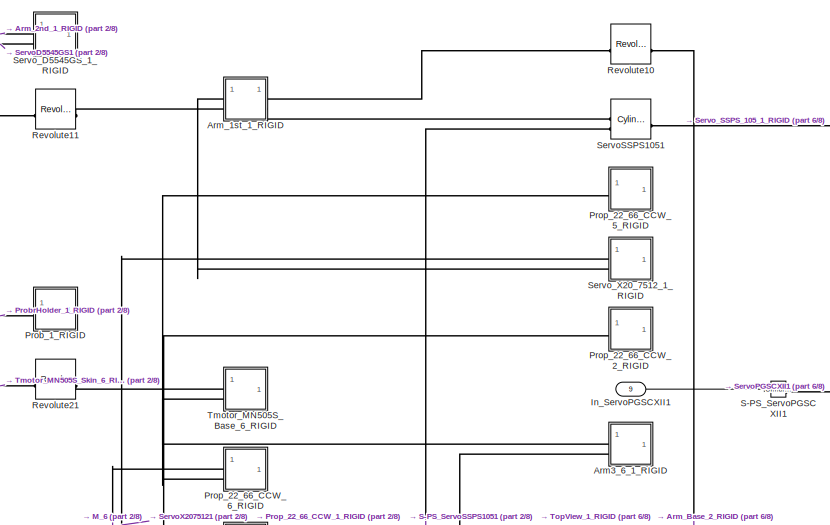
[diagram: Subsystem - part 1/8, top center region]
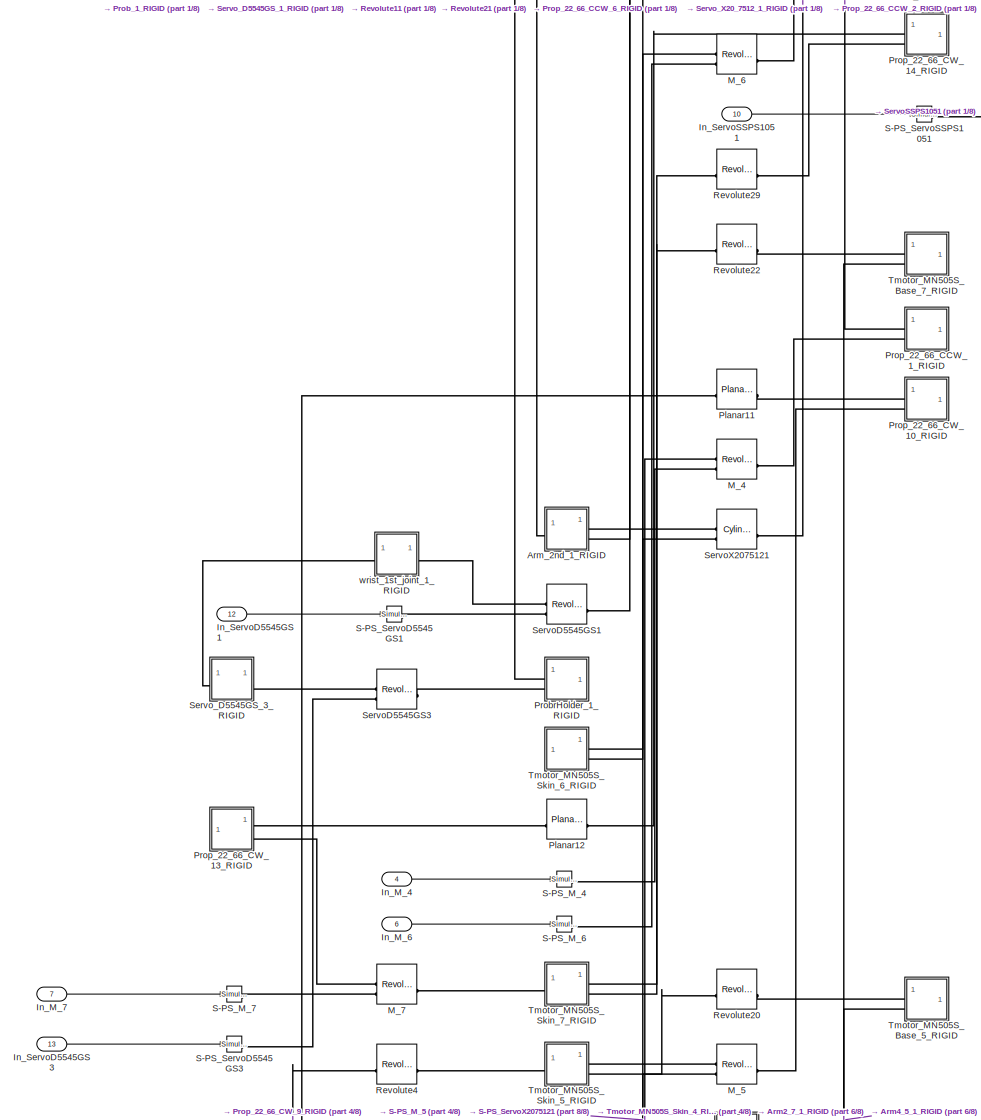
[diagram: Subsystem - part 2/8, top left region]
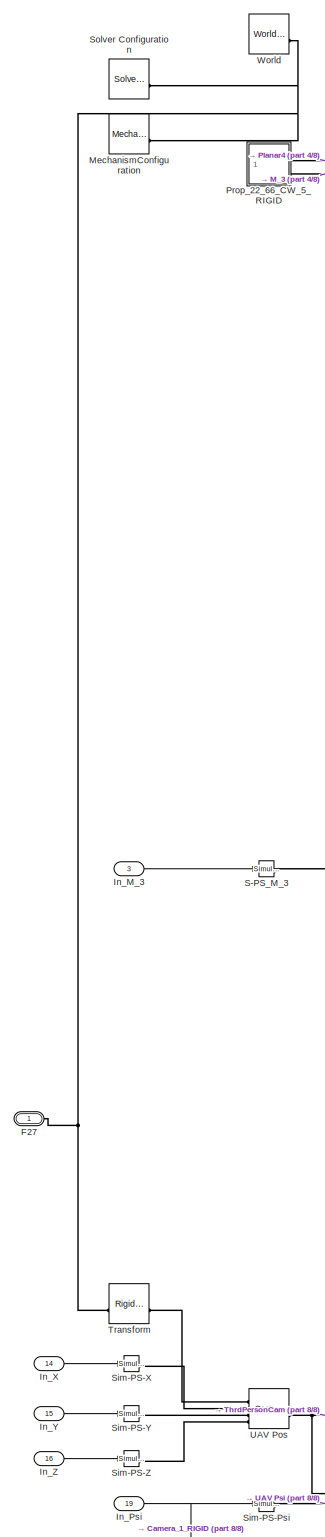
[diagram: Subsystem - part 3/8, bottom left region]
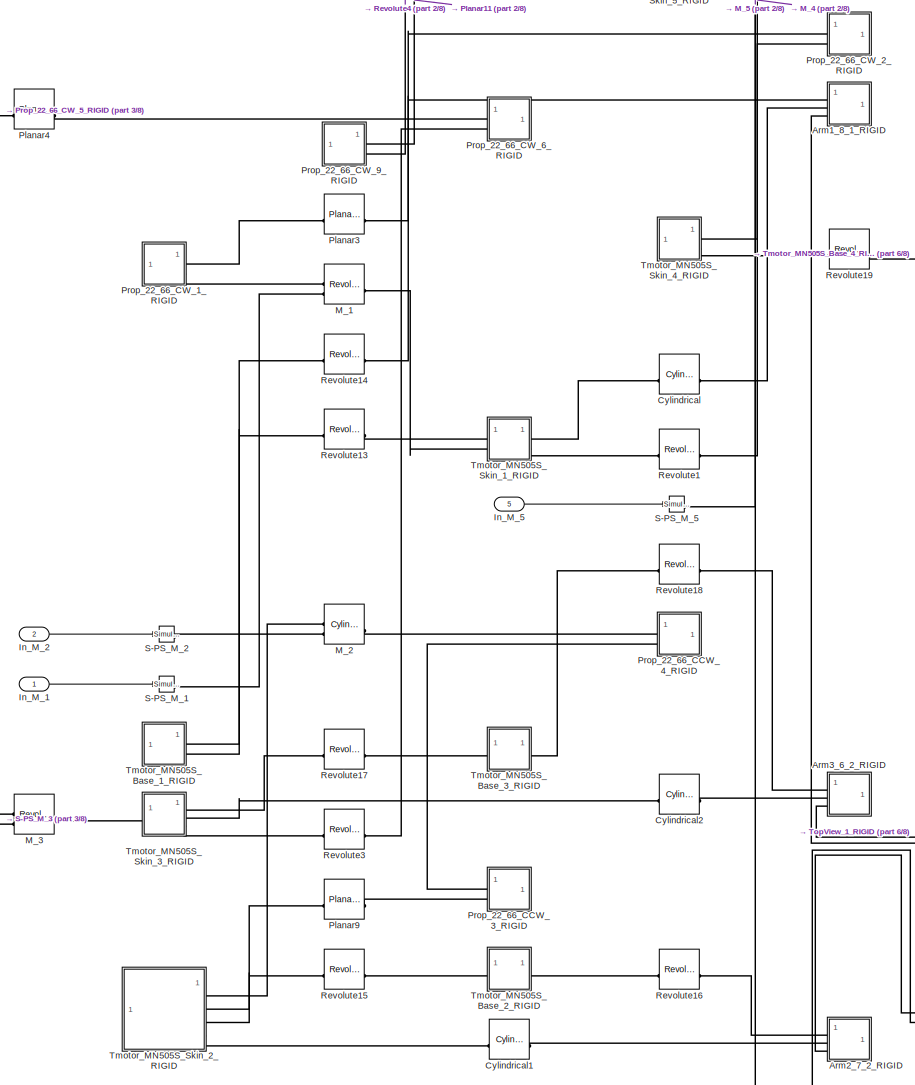
[diagram: Subsystem - part 4/8, middle left region]
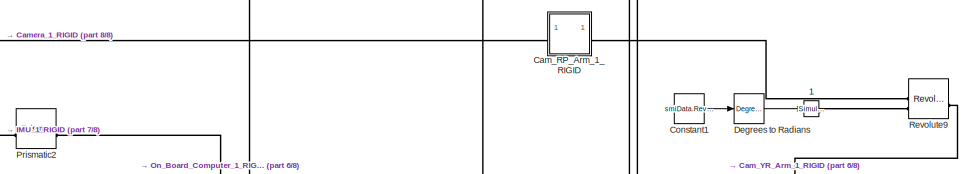
[diagram: Subsystem - part 5/8, central region]
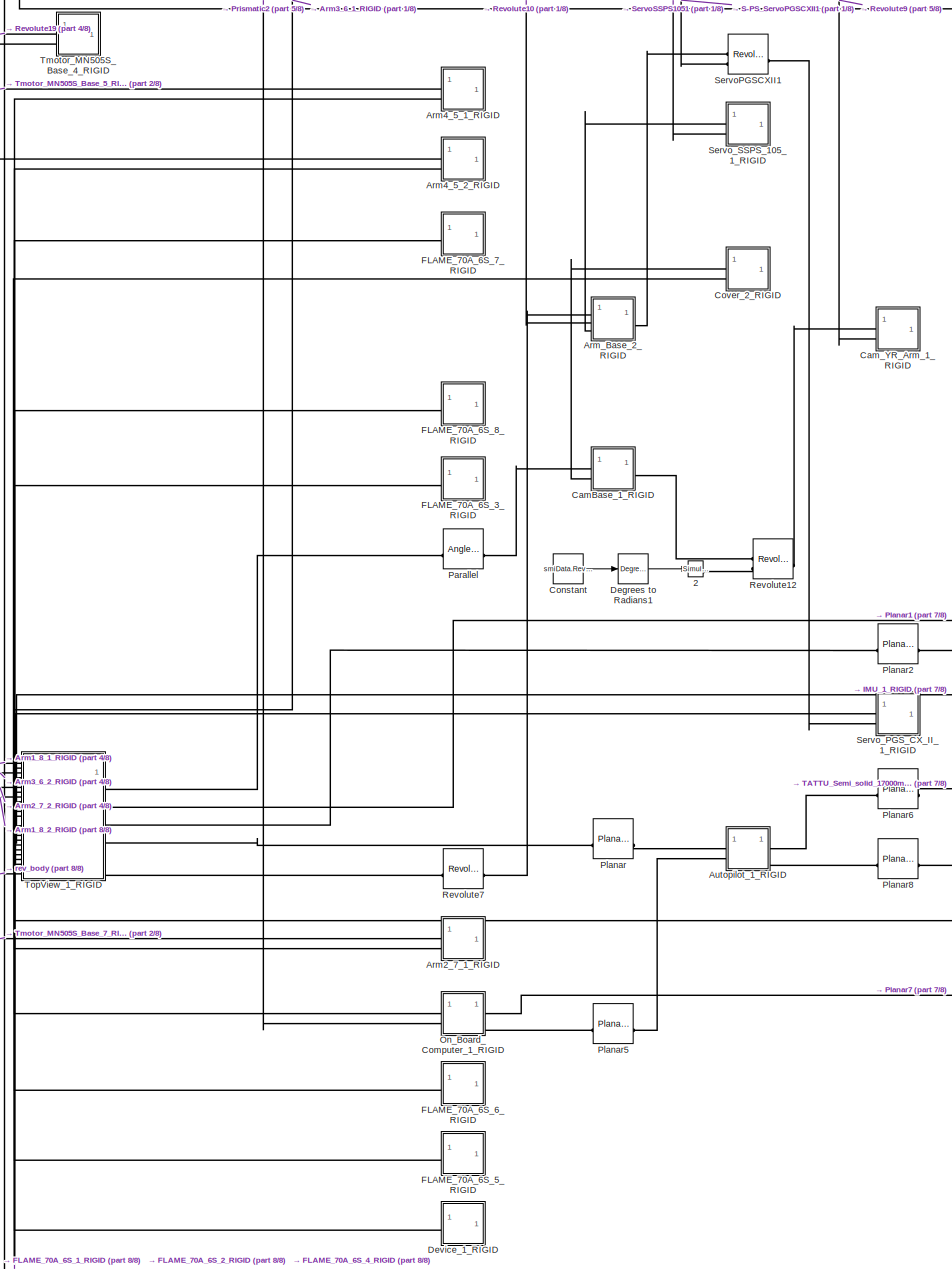
[diagram: Subsystem - part 6/8, bottom center region]
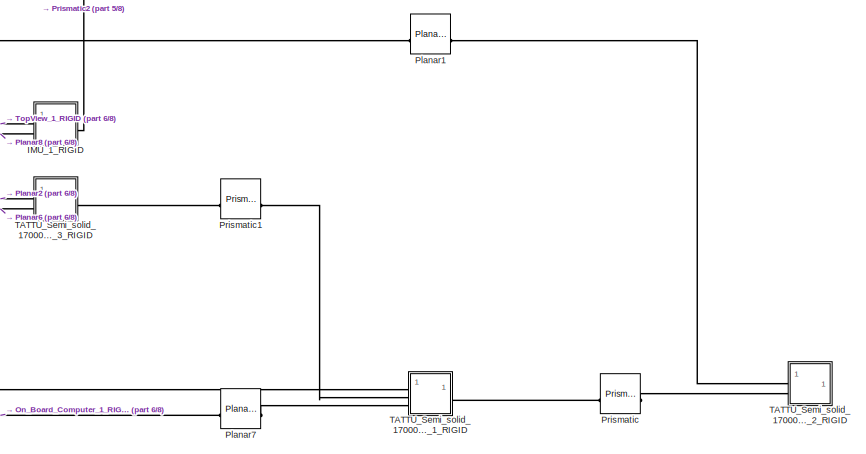
[diagram: Subsystem - part 7/8, bottom right region]
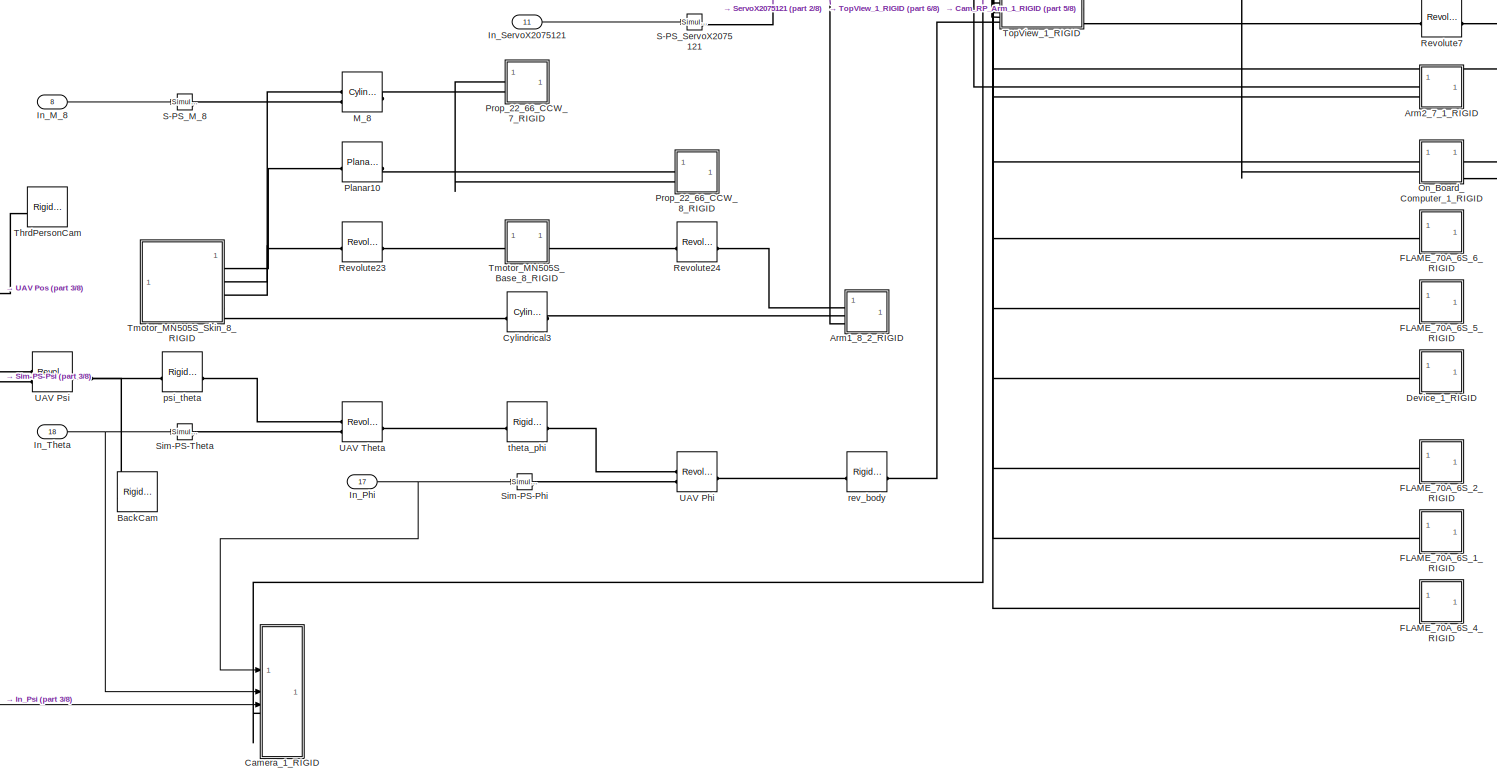
[diagram: Subsystem - part 8/8, bottom center region]
BLOCK [SubSystem] Subsystem
BLOCK [Reference] Subsystem/1  REF=nesl_utility/Simulink-PS
Converter
  SourceBlock = nesl_utility/Simulink-PS\nConverter
  SourceType = Simulink-PS\nConverter
BLOCK [Reference] Subsystem/2  REF=nesl_utility/Simulink-PS
Converter
  SourceBlock = nesl_utility/Simulink-PS\nConverter
  SourceType = Simulink-PS\nConverter
BLOCK [SubSystem] Subsystem/Arm1_8_1_RIGID
BLOCK [PMIOPort] Subsystem/Arm1_8_1_RIGID/F
  Port = 2
  Side = Left
BLOCK [PMIOPort] Subsystem/Arm1_8_1_RIGID/F1
  Port = 3
  Side = Left
BLOCK [PMIOPort] Subsystem/Arm1_8_1_RIGID/F2
  Side = Left
BLOCK [Reference] Subsystem/Arm1_8_1_RIGID/ReferenceFrame  REF=sm_lib/Frames and
Transforms/Reference
Frame
  SourceBlock = sm_lib/Frames and\nTransforms/Reference\nFrame
  SourceType = Reference\nFrame
BLOCK [Reference] Subsystem/Arm1_8_1_RIGID/Solid  REF=sm_lib/Body Elements/File Solid
  SourceBlock = sm_lib/Body Elements/File Solid
  SourceType = File Solid
BLOCK [Reference] Subsystem/Arm1_8_1_RIGID/Transform  REF=sm_lib/Frames and
Transforms/Rigid
Transform
  SourceBlock = sm_lib/Frames and\nTransforms/Rigid\nTransform
  SourceType = Rigid\nTransform
BLOCK [Reference] Subsystem/Arm1_8_1_RIGID/Transform1  REF=sm_lib/Frames and
Transforms/Rigid
Transform
  SourceBlock = sm_lib/Frames and\nTransforms/Rigid\nTransform
  SourceType = Rigid\nTransform
BLOCK [Reference] Subsystem/Arm1_8_1_RIGID/Transform2  REF=sm_lib/Frames and
Transforms/Rigid
Transform
  SourceBlock = sm_lib/Frames and\nTransforms/Rigid\nTransform
  SourceType = Rigid\nTransform
BLOCK [SubSystem] Subsystem/Arm1_8_2_RIGID
BLOCK [PMIOPort] Subsystem/Arm1_8_2_RIGID/F
  Port = 2
  Side = Left
BLOCK [PMIOPort] Subsystem/Arm1_8_2_RIGID/F1
  Port = 3
  Side = Left
BLOCK [PMIOPort] Subsystem/Arm1_8_2_RIGID/F2
  Side = Left
BLOCK [Reference] Subsystem/Arm1_8_2_RIGID/ReferenceFrame  REF=sm_lib/Frames and
Transforms/Reference
Frame
  SourceBlock = sm_lib/Frames and\nTransforms/Reference\nFrame
  SourceType = Reference\nFrame
BLOCK [Reference] Subsystem/Arm1_8_2_RIGID/Solid  REF=sm_lib/Body Elements/File Solid
  SourceBlock = sm_lib/Body Elements/File Solid
  SourceType = File Solid
BLOCK [Reference] Subsystem/Arm1_8_2_RIGID/Transform  REF=sm_lib/Frames and
Transforms/Rigid
Transform
  SourceBlock = sm_lib/Frames and\nTransforms/Rigid\nTransform
  SourceType = Rigid\nTransform
BLOCK [Reference] Subsystem/Arm1_8_2_RIGID/Transform1  REF=sm_lib/Frames and
Transforms/Rigid
Transform
  SourceBlock = sm_lib/Frames and\nTransforms/Rigid\nTransform
  SourceType = Rigid\nTransform
BLOCK [Reference] Subsystem/Arm1_8_2_RIGID/Transform2  REF=sm_lib/Frames and
Transforms/Rigid
Transform
  SourceBlock = sm_lib/Frames and\nTransforms/Rigid\nTransform
  SourceType = Rigid\nTransform
BLOCK [SubSystem] Subsystem/Arm2_7_1_RIGID
BLOCK [PMIOPort] Subsystem/Arm2_7_1_RIGID/F
  Port = 2
  Side = Left
BLOCK [PMIOPort] Subsystem/Arm2_7_1_RIGID/F1
  Side = Left
BLOCK [Reference] Subsystem/Arm2_7_1_RIGID/ReferenceFrame  REF=sm_lib/Frames and
Transforms/Reference
Frame
  SourceBlock = sm_lib/Frames and\nTransforms/Reference\nFrame
  SourceType = Reference\nFrame
BLOCK [Reference] Subsystem/Arm2_7_1_RIGID/Solid  REF=sm_lib/Body Elements/File Solid
  SourceBlock = sm_lib/Body Elements/File Solid
  SourceType = File Solid
BLOCK [Reference] Subsystem/Arm2_7_1_RIGID/Transform  REF=sm_lib/Frames and
Transforms/Rigid
Transform
  SourceBlock = sm_lib/Frames and\nTransforms/Rigid\nTransform
  SourceType = Rigid\nTransform
BLOCK [Reference] Subsystem/Arm2_7_1_RIGID/Transform1  REF=sm_lib/Frames and
Transforms/Rigid
Transform
  SourceBlock = sm_lib/Frames and\nTransforms/Rigid\nTransform
  SourceType = Rigid\nTransform
BLOCK [SubSystem] Subsystem/Arm2_7_2_RIGID
BLOCK [PMIOPort] Subsystem/Arm2_7_2_RIGID/F
  Port = 2
  Side = Left
BLOCK [PMIOPort] Subsystem/Arm2_7_2_RIGID/F1
  Port = 3
  Side = Left
BLOCK [PMIOPort] Subsystem/Arm2_7_2_RIGID/F2
  Side = Left
BLOCK [Reference] Subsystem/Arm2_7_2_RIGID/ReferenceFrame  REF=sm_lib/Frames and
Transforms/Reference
Frame
  SourceBlock = sm_lib/Frames and\nTransforms/Reference\nFrame
  SourceType = Reference\nFrame
BLOCK [Reference] Subsystem/Arm2_7_2_RIGID/Solid  REF=sm_lib/Body Elements/File Solid
  SourceBlock = sm_lib/Body Elements/File Solid
  SourceType = File Solid
BLOCK [Reference] Subsystem/Arm2_7_2_RIGID/Transform  REF=sm_lib/Frames and
Transforms/Rigid
Transform
  SourceBlock = sm_lib/Frames and\nTransforms/Rigid\nTransform
  SourceType = Rigid\nTransform
BLOCK [Reference] Subsystem/Arm2_7_2_RIGID/Transform1  REF=sm_lib/Frames and
Transforms/Rigid
Transform
  SourceBlock = sm_lib/Frames and\nTransforms/Rigid\nTransform
  SourceType = Rigid\nTransform
BLOCK [Reference] Subsystem/Arm2_7_2_RIGID/Transform2  REF=sm_lib/Frames and
Transforms/Rigid
Transform
  SourceBlock = sm_lib/Frames and\nTransforms/Rigid\nTransform
  SourceType = Rigid\nTransform
BLOCK [SubSystem] Subsystem/Arm3_6_1_RIGID
BLOCK [PMIOPort] Subsystem/Arm3_6_1_RIGID/F
  Port = 2
  Side = Left
BLOCK [PMIOPort] Subsystem/Arm3_6_1_RIGID/F1
  Side = Left
BLOCK [Reference] Subsystem/Arm3_6_1_RIGID/ReferenceFrame  REF=sm_lib/Frames and
Transforms/Reference
Frame
  SourceBlock = sm_lib/Frames and\nTransforms/Reference\nFrame
  SourceType = Reference\nFrame
BLOCK [Reference] Subsystem/Arm3_6_1_RIGID/Solid  REF=sm_lib/Body Elements/File Solid
  SourceBlock = sm_lib/Body Elements/File Solid
  SourceType = File Solid
BLOCK [Reference] Subsystem/Arm3_6_1_RIGID/Transform  REF=sm_lib/Frames and
Transforms/Rigid
Transform
  SourceBlock = sm_lib/Frames and\nTransforms/Rigid\nTransform
  SourceType = Rigid\nTransform
BLOCK [Reference] Subsystem/Arm3_6_1_RIGID/Transform1  REF=sm_lib/Frames and
Transforms/Rigid
Transform
  SourceBlock = sm_lib/Frames and\nTransforms/Rigid\nTransform
  SourceType = Rigid\nTransform
BLOCK [SubSystem] Subsystem/Arm3_6_2_RIGID
BLOCK [PMIOPort] Subsystem/Arm3_6_2_RIGID/F
  Port = 2
  Side = Left
BLOCK [PMIOPort] Subsystem/Arm3_6_2_RIGID/F1
  Port = 3
  Side = Left
BLOCK [PMIOPort] Subsystem/Arm3_6_2_RIGID/F2
  Side = Left
BLOCK [Reference] Subsystem/Arm3_6_2_RIGID/ReferenceFrame  REF=sm_lib/Frames and
Transforms/Reference
Frame
  SourceBlock = sm_lib/Frames and\nTransforms/Reference\nFrame
  SourceType = Reference\nFrame
BLOCK [Reference] Subsystem/Arm3_6_2_RIGID/Solid  REF=sm_lib/Body Elements/File Solid
  SourceBlock = sm_lib/Body Elements/File Solid
  SourceType = File Solid
BLOCK [Reference] Subsystem/Arm3_6_2_RIGID/Transform  REF=sm_lib/Frames and
Transforms/Rigid
Transform
  SourceBlock = sm_lib/Frames and\nTransforms/Rigid\nTransform
  SourceType = Rigid\nTransform
BLOCK [Reference] Subsystem/Arm3_6_2_RIGID/Transform1  REF=sm_lib/Frames and
Transforms/Rigid
Transform
  SourceBlock = sm_lib/Frames and\nTransforms/Rigid\nTransform
  SourceType = Rigid\nTransform
BLOCK [Reference] Subsystem/Arm3_6_2_RIGID/Transform2  REF=sm_lib/Frames and
Transforms/Rigid
Transform
  SourceBlock = sm_lib/Frames and\nTransforms/Rigid\nTransform
  SourceType = Rigid\nTransform
BLOCK [SubSystem] Subsystem/Arm4_5_1_RIGID
BLOCK [PMIOPort] Subsystem/Arm4_5_1_RIGID/F
  Port = 2
  Side = Left
BLOCK [PMIOPort] Subsystem/Arm4_5_1_RIGID/F1
  Side = Left
BLOCK [Reference] Subsystem/Arm4_5_1_RIGID/ReferenceFrame  REF=sm_lib/Frames and
Transforms/Reference
Frame
  SourceBlock = sm_lib/Frames and\nTransforms/Reference\nFrame
  SourceType = Reference\nFrame
BLOCK [Reference] Subsystem/Arm4_5_1_RIGID/Solid  REF=sm_lib/Body Elements/File Solid
  SourceBlock = sm_lib/Body Elements/File Solid
  SourceType = File Solid
BLOCK [Reference] Subsystem/Arm4_5_1_RIGID/Transform  REF=sm_lib/Frames and
Transforms/Rigid
Transform
  SourceBlock = sm_lib/Frames and\nTransforms/Rigid\nTransform
  SourceType = Rigid\nTransform
BLOCK [Reference] Subsystem/Arm4_5_1_RIGID/Transform1  REF=sm_lib/Frames and
Transforms/Rigid
Transform
  SourceBlock = sm_lib/Frames and\nTransforms/Rigid\nTransform
  SourceType = Rigid\nTransform
BLOCK [SubSystem] Subsystem/Arm4_5_2_RIGID
BLOCK [PMIOPort] Subsystem/Arm4_5_2_RIGID/F
  Port = 2
  Side = Left
BLOCK [PMIOPort] Subsystem/Arm4_5_2_RIGID/F1
  Side = Left
BLOCK [Reference] Subsystem/Arm4_5_2_RIGID/ReferenceFrame  REF=sm_lib/Frames and
Transforms/Reference
Frame
  SourceBlock = sm_lib/Frames and\nTransforms/Reference\nFrame
  SourceType = Reference\nFrame
BLOCK [Reference] Subsystem/Arm4_5_2_RIGID/Solid  REF=sm_lib/Body Elements/File Solid
  SourceBlock = sm_lib/Body Elements/File Solid
  SourceType = File Solid
BLOCK [Reference] Subsystem/Arm4_5_2_RIGID/Transform  REF=sm_lib/Frames and
Transforms/Rigid
Transform
  SourceBlock = sm_lib/Frames and\nTransforms/Rigid\nTransform
  SourceType = Rigid\nTransform
BLOCK [Reference] Subsystem/Arm4_5_2_RIGID/Transform1  REF=sm_lib/Frames and
Transforms/Rigid
Transform
  SourceBlock = sm_lib/Frames and\nTransforms/Rigid\nTransform
  SourceType = Rigid\nTransform
BLOCK [SubSystem] Subsystem/Arm_1st_1_RIGID
BLOCK [PMIOPort] Subsystem/Arm_1st_1_RIGID/F
  Port = 4
  Side = Right
BLOCK [PMIOPort] Subsystem/Arm_1st_1_RIGID/F1
  Port = 3
  Side = Right
BLOCK [PMIOPort] Subsystem/Arm_1st_1_RIGID/F2
  Port = 2
  Side = Left
BLOCK [PMIOPort] Subsystem/Arm_1st_1_RIGID/F3
  Side = Left
BLOCK [Reference] Subsystem/Arm_1st_1_RIGID/ReferenceFrame  REF=sm_lib/Frames and
Transforms/Reference
Frame
  SourceBlock = sm_lib/Frames and\nTransforms/Reference\nFrame
  SourceType = Reference\nFrame
BLOCK [Reference] Subsystem/Arm_1st_1_RIGID/Solid  REF=sm_lib/Body Elements/File Solid
  SourceBlock = sm_lib/Body Elements/File Solid
  SourceType = File Solid
BLOCK [Reference] Subsystem/Arm_1st_1_RIGID/Transform  REF=sm_lib/Frames and
Transforms/Rigid
Transform
  SourceBlock = sm_lib/Frames and\nTransforms/Rigid\nTransform
  SourceType = Rigid\nTransform
BLOCK [Reference] Subsystem/Arm_1st_1_RIGID/Transform1  REF=sm_lib/Frames and
Transforms/Rigid
Transform
  SourceBlock = sm_lib/Frames and\nTransforms/Rigid\nTransform
  SourceType = Rigid\nTransform
BLOCK [Reference] Subsystem/Arm_1st_1_RIGID/Transform2  REF=sm_lib/Frames and
Transforms/Rigid
Transform
  SourceBlock = sm_lib/Frames and\nTransforms/Rigid\nTransform
  SourceType = Rigid\nTransform
BLOCK [Reference] Subsystem/Arm_1st_1_RIGID/Transform3  REF=sm_lib/Frames and
Transforms/Rigid
Transform
  SourceBlock = sm_lib/Frames and\nTransforms/Rigid\nTransform
  SourceType = Rigid\nTransform
BLOCK [SubSystem] Subsystem/Arm_2nd_1_RIGID
BLOCK [PMIOPort] Subsystem/Arm_2nd_1_RIGID/F
  Port = 3
  Side = Right
BLOCK [PMIOPort] Subsystem/Arm_2nd_1_RIGID/F1
  Side = Left
BLOCK [PMIOPort] Subsystem/Arm_2nd_1_RIGID/F2
  Port = 2
  Side = Right
BLOCK [Reference] Subsystem/Arm_2nd_1_RIGID/ReferenceFrame  REF=sm_lib/Frames and
Transforms/Reference
Frame
  SourceBlock = sm_lib/Frames and\nTransforms/Reference\nFrame
  SourceType = Reference\nFrame
BLOCK [Reference] Subsystem/Arm_2nd_1_RIGID/Solid  REF=sm_lib/Body Elements/File Solid
  SourceBlock = sm_lib/Body Elements/File Solid
  SourceType = File Solid
BLOCK [Reference] Subsystem/Arm_2nd_1_RIGID/Transform  REF=sm_lib/Frames and
Transforms/Rigid
Transform
  SourceBlock = sm_lib/Frames and\nTransforms/Rigid\nTransform
  SourceType = Rigid\nTransform
BLOCK [Reference] Subsystem/Arm_2nd_1_RIGID/Transform1  REF=sm_lib/Frames and
Transforms/Rigid
Transform
  SourceBlock = sm_lib/Frames and\nTransforms/Rigid\nTransform
  SourceType = Rigid\nTransform
BLOCK [Reference] Subsystem/Arm_2nd_1_RIGID/Transform2  REF=sm_lib/Frames and
Transforms/Rigid
Transform
  SourceBlock = sm_lib/Frames and\nTransforms/Rigid\nTransform
  SourceType = Rigid\nTransform
BLOCK [SubSystem] Subsystem/Arm_Base_2_RIGID
BLOCK [PMIOPort] Subsystem/Arm_Base_2_RIGID/F
  Port = 3
  Side = Left
BLOCK [PMIOPort] Subsystem/Arm_Base_2_RIGID/F1
  Side = Left
BLOCK [PMIOPort] Subsystem/Arm_Base_2_RIGID/F2
  Port = 4
  Side = Right
BLOCK [PMIOPort] Subsystem/Arm_Base_2_RIGID/F3
  Port = 2
  Side = Left
BLOCK [Reference] Subsystem/Arm_Base_2_RIGID/ReferenceFrame  REF=sm_lib/Frames and
Transforms/Reference
Frame
  SourceBlock = sm_lib/Frames and\nTransforms/Reference\nFrame
  SourceType = Reference\nFrame
BLOCK [Reference] Subsystem/Arm_Base_2_RIGID/Solid  REF=sm_lib/Body Elements/File Solid
  SourceBlock = sm_lib/Body Elements/File Solid
  SourceType = File Solid
BLOCK [Reference] Subsystem/Arm_Base_2_RIGID/Transform  REF=sm_lib/Frames and
Transforms/Rigid
Transform
  SourceBlock = sm_lib/Frames and\nTransforms/Rigid\nTransform
  SourceType = Rigid\nTransform
BLOCK [Reference] Subsystem/Arm_Base_2_RIGID/Transform1  REF=sm_lib/Frames and
Transforms/Rigid
Transform
  SourceBlock = sm_lib/Frames and\nTransforms/Rigid\nTransform
  SourceType = Rigid\nTransform
BLOCK [Reference] Subsystem/Arm_Base_2_RIGID/Transform2  REF=sm_lib/Frames and
Transforms/Rigid
Transform
  SourceBlock = sm_lib/Frames and\nTransforms/Rigid\nTransform
  SourceType = Rigid\nTransform
BLOCK [Reference] Subsystem/Arm_Base_2_RIGID/Transform3  REF=sm_lib/Frames and
Transforms/Rigid
Transform
  SourceBlock = sm_lib/Frames and\nTransforms/Rigid\nTransform
  SourceType = Rigid\nTransform
BLOCK [SubSystem] Subsystem/Autopilot_1_RIGID
BLOCK [PMIOPort] Subsystem/Autopilot_1_RIGID/F
  Side = Left
BLOCK [PMIOPort] Subsystem/Autopilot_1_RIGID/F1
  Port = 2
  Side = Left
BLOCK [PMIOPort] Subsystem/Autopilot_1_RIGID/F2
  Port = 3
  Side = Right
BLOCK [PMIOPort] Subsystem/Autopilot_1_RIGID/F3
  Port = 4
  Side = Right
BLOCK [Reference] Subsystem/Autopilot_1_RIGID/ReferenceFrame  REF=sm_lib/Frames and
Transforms/Reference
Frame
  SourceBlock = sm_lib/Frames and\nTransforms/Reference\nFrame
  SourceType = Reference\nFrame
BLOCK [Reference] Subsystem/Autopilot_1_RIGID/Solid  REF=sm_lib/Body Elements/File Solid
  SourceBlock = sm_lib/Body Elements/File Solid
  SourceType = File Solid
BLOCK [Reference] Subsystem/Autopilot_1_RIGID/Transform  REF=sm_lib/Frames and
Transforms/Rigid
Transform
  SourceBlock = sm_lib/Frames and\nTransforms/Rigid\nTransform
  SourceType = Rigid\nTransform
BLOCK [Reference] Subsystem/Autopilot_1_RIGID/Transform1  REF=sm_lib/Frames and
Transforms/Rigid
Transform
  SourceBlock = sm_lib/Frames and\nTransforms/Rigid\nTransform
  SourceType = Rigid\nTransform
BLOCK [Reference] Subsystem/Autopilot_1_RIGID/Transform2  REF=sm_lib/Frames and
Transforms/Rigid
Transform
  SourceBlock = sm_lib/Frames and\nTransforms/Rigid\nTransform
  SourceType = Rigid\nTransform
BLOCK [Reference] Subsystem/Autopilot_1_RIGID/Transform3  REF=sm_lib/Frames and
Transforms/Rigid
Transform
  SourceBlock = sm_lib/Frames and\nTransforms/Rigid\nTransform
  SourceType = Rigid\nTransform
BLOCK [Reference] Subsystem/BackCam  REF=sm_lib/Frames and
Transforms/Rigid
Transform
  SourceBlock = sm_lib/Frames and\nTransforms/Rigid\nTransform
  SourceType = Rigid\nTransform
BLOCK [SubSystem] Subsystem/CamBase_1_RIGID
BLOCK [PMIOPort] Subsystem/CamBase_1_RIGID/F
  Side = Left
BLOCK [PMIOPort] Subsystem/CamBase_1_RIGID/F1
  Port = 2
  Side = Left
BLOCK [PMIOPort] Subsystem/CamBase_1_RIGID/F2
  Port = 3
  Side = Right
BLOCK [Reference] Subsystem/CamBase_1_RIGID/ReferenceFrame  REF=sm_lib/Frames and
Transforms/Reference
Frame
  SourceBlock = sm_lib/Frames and\nTransforms/Reference\nFrame
  SourceType = Reference\nFrame
BLOCK [Reference] Subsystem/CamBase_1_RIGID/Solid  REF=sm_lib/Body Elements/File Solid
  SourceBlock = sm_lib/Body Elements/File Solid
  SourceType = File Solid
BLOCK [Reference] Subsystem/CamBase_1_RIGID/Transform  REF=sm_lib/Frames and
Transforms/Rigid
Transform
  SourceBlock = sm_lib/Frames and\nTransforms/Rigid\nTransform
  SourceType = Rigid\nTransform
BLOCK [Reference] Subsystem/CamBase_1_RIGID/Transform1  REF=sm_lib/Frames and
Transforms/Rigid
Transform
  SourceBlock = sm_lib/Frames and\nTransforms/Rigid\nTransform
  SourceType = Rigid\nTransform
BLOCK [Reference] Subsystem/CamBase_1_RIGID/Transform2  REF=sm_lib/Frames and
Transforms/Rigid
Transform
  SourceBlock = sm_lib/Frames and\nTransforms/Rigid\nTransform
  SourceType = Rigid\nTransform
BLOCK [SubSystem] Subsystem/Cam_RP_Arm_1_RIGID
BLOCK [PMIOPort] Subsystem/Cam_RP_Arm_1_RIGID/F
  Port = 2
  Side = Right
BLOCK [PMIOPort] Subsystem/Cam_RP_Arm_1_RIGID/F1
  Side = Left
BLOCK [Reference] Subsystem/Cam_RP_Arm_1_RIGID/ReferenceFrame  REF=sm_lib/Frames and
Transforms/Reference
Frame
  SourceBlock = sm_lib/Frames and\nTransforms/Reference\nFrame
  SourceType = Reference\nFrame
BLOCK [Reference] Subsystem/Cam_RP_Arm_1_RIGID/Solid  REF=sm_lib/Body Elements/File Solid
  SourceBlock = sm_lib/Body Elements/File Solid
  SourceType = File Solid
BLOCK [Reference] Subsystem/Cam_RP_Arm_1_RIGID/Transform  REF=sm_lib/Frames and
Transforms/Rigid
Transform
  SourceBlock = sm_lib/Frames and\nTransforms/Rigid\nTransform
  SourceType = Rigid\nTransform
BLOCK [Reference] Subsystem/Cam_RP_Arm_1_RIGID/Transform1  REF=sm_lib/Frames and
Transforms/Rigid
Transform
  SourceBlock = sm_lib/Frames and\nTransforms/Rigid\nTransform
  SourceType = Rigid\nTransform
BLOCK [SubSystem] Subsystem/Cam_YR_Arm_1_RIGID
BLOCK [PMIOPort] Subsystem/Cam_YR_Arm_1_RIGID/F
  Port = 2
  Side = Left
BLOCK [PMIOPort] Subsystem/Cam_YR_Arm_1_RIGID/F1
  Side = Left
BLOCK [Reference] Subsystem/Cam_YR_Arm_1_RIGID/ReferenceFrame  REF=sm_lib/Frames and
Transforms/Reference
Frame
  SourceBlock = sm_lib/Frames and\nTransforms/Reference\nFrame
  SourceType = Reference\nFrame
BLOCK [Reference] Subsystem/Cam_YR_Arm_1_RIGID/Solid  REF=sm_lib/Body Elements/File Solid
  SourceBlock = sm_lib/Body Elements/File Solid
  SourceType = File Solid
BLOCK [Reference] Subsystem/Cam_YR_Arm_1_RIGID/Transform  REF=sm_lib/Frames and
Transforms/Rigid
Transform
  SourceBlock = sm_lib/Frames and\nTransforms/Rigid\nTransform
  SourceType = Rigid\nTransform
BLOCK [Reference] Subsystem/Cam_YR_Arm_1_RIGID/Transform1  REF=sm_lib/Frames and
Transforms/Rigid
Transform
  SourceBlock = sm_lib/Frames and\nTransforms/Rigid\nTransform
  SourceType = Rigid\nTransform
BLOCK [SubSystem] Subsystem/Camera_1_RIGID
BLOCK [Reference] Subsystem/Camera_1_RIGID/Cam Phi  REF=sm_lib/Joints/Revolute Joint
  SourceBlock = sm_lib/Joints/Revolute Joint
  SourceType = Revolute Joint
BLOCK [Reference] Subsystem/Camera_1_RIGID/Cam Theta  REF=sm_lib/Joints/Revolute Joint
  SourceBlock = sm_lib/Joints/Revolute Joint
  SourceType = Revolute Joint
BLOCK [Reference] Subsystem/Camera_1_RIGID/CamPsi  REF=sm_lib/Joints/Revolute Joint
  Commented = on
  SourceBlock = sm_lib/Joints/Revolute Joint
  SourceType = Revolute Joint
BLOCK [Reference] Subsystem/Camera_1_RIGID/CamView  REF=sm_lib/Frames and
Transforms/Rigid
Transform
  SourceBlock = sm_lib/Frames and\nTransforms/Rigid\nTransform
  SourceType = Rigid\nTransform
BLOCK [Reference] Subsystem/Camera_1_RIGID/CamViewBase  REF=sm_lib/Frames and
Transforms/Rigid
Transform
  SourceBlock = sm_lib/Frames and\nTransforms/Rigid\nTransform
  SourceType = Rigid\nTransform
BLOCK [PMIOPort] Subsystem/Camera_1_RIGID/F
  Side = Left
BLOCK [Gain] Subsystem/Camera_1_RIGID/Gain
  Gain = -1
BLOCK [Gain] Subsystem/Camera_1_RIGID/Gain1
  Gain = -1
  NameLocation = right
BLOCK [Inport] Subsystem/Camera_1_RIGID/In_Phi
BLOCK [Inport] Subsystem/Camera_1_RIGID/In_Psi
  Port = 3
BLOCK [Inport] Subsystem/Camera_1_RIGID/In_Theta
  Port = 2
BLOCK [Reference] Subsystem/Camera_1_RIGID/ReferenceFrame  REF=sm_lib/Frames and
Transforms/Reference
Frame
  SourceBlock = sm_lib/Frames and\nTransforms/Reference\nFrame
  SourceType = Reference\nFrame
BLOCK [Reference] Subsystem/Camera_1_RIGID/Sim-PS-Phi  REF=nesl_utility/Simulink-PS
Converter
  SourceBlock = nesl_utility/Simulink-PS\nConverter
  SourceType = Simulink-PS\nConverter
BLOCK [Reference] Subsystem/Camera_1_RIGID/Sim-PS-Psi  REF=nesl_utility/Simulink-PS
Converter
  SourceBlock = nesl_utility/Simulink-PS\nConverter
  SourceType = Simulink-PS\nConverter
BLOCK [Reference] Subsystem/Camera_1_RIGID/Sim-PS-Theta  REF=nesl_utility/Simulink-PS
Converter
  SourceBlock = nesl_utility/Simulink-PS\nConverter
  SourceType = Simulink-PS\nConverter
BLOCK [Reference] Subsystem/Camera_1_RIGID/Solid  REF=sm_lib/Body Elements/File Solid
  SourceBlock = sm_lib/Body Elements/File Solid
  SourceType = File Solid
BLOCK [Reference] Subsystem/Camera_1_RIGID/Transform  REF=sm_lib/Frames and
Transforms/Rigid
Transform
  SourceBlock = sm_lib/Frames and\nTransforms/Rigid\nTransform
  SourceType = Rigid\nTransform
BLOCK [Reference] Subsystem/Camera_1_RIGID/psi_theta  REF=sm_lib/Frames and
Transforms/Rigid
Transform
  SourceBlock = sm_lib/Frames and\nTransforms/Rigid\nTransform
  SourceType = Rigid\nTransform
BLOCK [Reference] Subsystem/Camera_1_RIGID/theta_phi  REF=sm_lib/Frames and
Transforms/Rigid
Transform
  SourceBlock = sm_lib/Frames and\nTransforms/Rigid\nTransform
  SourceType = Rigid\nTransform
BLOCK [Constant] Subsystem/Constant
  Value = smiData.RevoluteJoint(13).Rz.Pos
BLOCK [Constant] Subsystem/Constant1
  Value = smiData.RevoluteJoint(10).Rz.Pos
BLOCK [SubSystem] Subsystem/Cover_2_RIGID
BLOCK [PMIOPort] Subsystem/Cover_2_RIGID/F
  Port = 2
  Side = Left
BLOCK [PMIOPort] Subsystem/Cover_2_RIGID/F1
  Side = Left
BLOCK [Reference] Subsystem/Cover_2_RIGID/ReferenceFrame  REF=sm_lib/Frames and
Transforms/Reference
Frame
  SourceBlock = sm_lib/Frames and\nTransforms/Reference\nFrame
  SourceType = Reference\nFrame
BLOCK [Reference] Subsystem/Cover_2_RIGID/Solid  REF=sm_lib/Body Elements/File Solid
  SourceBlock = sm_lib/Body Elements/File Solid
  SourceType = File Solid
BLOCK [Reference] Subsystem/Cover_2_RIGID/Transform  REF=sm_lib/Frames and
Transforms/Rigid
Transform
  SourceBlock = sm_lib/Frames and\nTransforms/Rigid\nTransform
  SourceType = Rigid\nTransform
BLOCK [Reference] Subsystem/Cover_2_RIGID/Transform1  REF=sm_lib/Frames and
Transforms/Rigid
Transform
  SourceBlock = sm_lib/Frames and\nTransforms/Rigid\nTransform
  SourceType = Rigid\nTransform
BLOCK [Reference] Subsystem/Cylindrical  REF=sm_lib/Joints/Cylindrical
Joint
  SourceBlock = sm_lib/Joints/Cylindrical\nJoint
  SourceType = Cylindrical\nJoint
BLOCK [Reference] Subsystem/Cylindrical1  REF=sm_lib/Joints/Cylindrical
Joint
  SourceBlock = sm_lib/Joints/Cylindrical\nJoint
  SourceType = Cylindrical\nJoint
BLOCK [Reference] Subsystem/Cylindrical2  REF=sm_lib/Joints/Cylindrical
Joint
  SourceBlock = sm_lib/Joints/Cylindrical\nJoint
  SourceType = Cylindrical\nJoint
BLOCK [Reference] Subsystem/Cylindrical3  REF=sm_lib/Joints/Cylindrical
Joint
  SourceBlock = sm_lib/Joints/Cylindrical\nJoint
  SourceType = Cylindrical\nJoint
BLOCK [Reference] Subsystem/Degrees to Radians  REF=simulink_extras/Transformations/Degrees to
Radians
  SourceBlock = simulink_extras/Transformations/Degrees to\nRadians
  SourceType = DegreesToRadians
BLOCK [Reference] Subsystem/Degrees to Radians1  REF=simulink_extras/Transformations/Degrees to
Radians
  SourceBlock = simulink_extras/Transformations/Degrees to\nRadians
  SourceType = DegreesToRadians
BLOCK [SubSystem] Subsystem/Device_1_RIGID
BLOCK [PMIOPort] Subsystem/Device_1_RIGID/F
  Side = Left
BLOCK [Reference] Subsystem/Device_1_RIGID/ReferenceFrame  REF=sm_lib/Frames and
Transforms/Reference
Frame
  SourceBlock = sm_lib/Frames and\nTransforms/Reference\nFrame
  SourceType = Reference\nFrame
BLOCK [Reference] Subsystem/Device_1_RIGID/Solid  REF=sm_lib/Body Elements/File Solid
  SourceBlock = sm_lib/Body Elements/File Solid
  SourceType = File Solid
BLOCK [Reference] Subsystem/Device_1_RIGID/Transform  REF=sm_lib/Frames and
Transforms/Rigid
Transform
  SourceBlock = sm_lib/Frames and\nTransforms/Rigid\nTransform
  SourceType = Rigid\nTransform
BLOCK [PMIOPort] Subsystem/F27
  Side = Right
BLOCK [SubSystem] Subsystem/FLAME_70A_6S_1_RIGID
BLOCK [PMIOPort] Subsystem/FLAME_70A_6S_1_RIGID/F
  Side = Left
BLOCK [Reference] Subsystem/FLAME_70A_6S_1_RIGID/ReferenceFrame  REF=sm_lib/Frames and
Transforms/Reference
Frame
  SourceBlock = sm_lib/Frames and\nTransforms/Reference\nFrame
  SourceType = Reference\nFrame
BLOCK [Reference] Subsystem/FLAME_70A_6S_1_RIGID/Solid  REF=sm_lib/Body Elements/File Solid
  SourceBlock = sm_lib/Body Elements/File Solid
  SourceType = File Solid
BLOCK [Reference] Subsystem/FLAME_70A_6S_1_RIGID/Transform  REF=sm_lib/Frames and
Transforms/Rigid
Transform
  SourceBlock = sm_lib/Frames and\nTransforms/Rigid\nTransform
  SourceType = Rigid\nTransform
BLOCK [SubSystem] Subsystem/FLAME_70A_6S_2_RIGID
BLOCK [PMIOPort] Subsystem/FLAME_70A_6S_2_RIGID/F
  Side = Left
BLOCK [Reference] Subsystem/FLAME_70A_6S_2_RIGID/ReferenceFrame  REF=sm_lib/Frames and
Transforms/Reference
Frame
  SourceBlock = sm_lib/Frames and\nTransforms/Reference\nFrame
  SourceType = Reference\nFrame
BLOCK [Reference] Subsystem/FLAME_70A_6S_2_RIGID/Solid  REF=sm_lib/Body Elements/File Solid
  SourceBlock = sm_lib/Body Elements/File Solid
  SourceType = File Solid
BLOCK [Reference] Subsystem/FLAME_70A_6S_2_RIGID/Transform  REF=sm_lib/Frames and
Transforms/Rigid
Transform
  SourceBlock = sm_lib/Frames and\nTransforms/Rigid\nTransform
  SourceType = Rigid\nTransform
BLOCK [SubSystem] Subsystem/FLAME_70A_6S_3_RIGID
BLOCK [PMIOPort] Subsystem/FLAME_70A_6S_3_RIGID/F
  Side = Left
BLOCK [Reference] Subsystem/FLAME_70A_6S_3_RIGID/ReferenceFrame  REF=sm_lib/Frames and
Transforms/Reference
Frame
  SourceBlock = sm_lib/Frames and\nTransforms/Reference\nFrame
  SourceType = Reference\nFrame
BLOCK [Reference] Subsystem/FLAME_70A_6S_3_RIGID/Solid  REF=sm_lib/Body Elements/File Solid
  SourceBlock = sm_lib/Body Elements/File Solid
  SourceType = File Solid
BLOCK [Reference] Subsystem/FLAME_70A_6S_3_RIGID/Transform  REF=sm_lib/Frames and
Transforms/Rigid
Transform
  SourceBlock = sm_lib/Frames and\nTransforms/Rigid\nTransform
  SourceType = Rigid\nTransform
BLOCK [SubSystem] Subsystem/FLAME_70A_6S_4_RIGID
BLOCK [PMIOPort] Subsystem/FLAME_70A_6S_4_RIGID/F
  Side = Left
BLOCK [Reference] Subsystem/FLAME_70A_6S_4_RIGID/ReferenceFrame  REF=sm_lib/Frames and
Transforms/Reference
Frame
  SourceBlock = sm_lib/Frames and\nTransforms/Reference\nFrame
  SourceType = Reference\nFrame
BLOCK [Reference] Subsystem/FLAME_70A_6S_4_RIGID/Solid  REF=sm_lib/Body Elements/File Solid
  SourceBlock = sm_lib/Body Elements/File Solid
  SourceType = File Solid
BLOCK [Reference] Subsystem/FLAME_70A_6S_4_RIGID/Transform  REF=sm_lib/Frames and
Transforms/Rigid
Transform
  SourceBlock = sm_lib/Frames and\nTransforms/Rigid\nTransform
  SourceType = Rigid\nTransform
BLOCK [SubSystem] Subsystem/FLAME_70A_6S_5_RIGID
BLOCK [PMIOPort] Subsystem/FLAME_70A_6S_5_RIGID/F
  Side = Left
BLOCK [Reference] Subsystem/FLAME_70A_6S_5_RIGID/ReferenceFrame  REF=sm_lib/Frames and
Transforms/Reference
Frame
  SourceBlock = sm_lib/Frames and\nTransforms/Reference\nFrame
  SourceType = Reference\nFrame
BLOCK [Reference] Subsystem/FLAME_70A_6S_5_RIGID/Solid  REF=sm_lib/Body Elements/File Solid
  SourceBlock = sm_lib/Body Elements/File Solid
  SourceType = File Solid
BLOCK [Reference] Subsystem/FLAME_70A_6S_5_RIGID/Transform  REF=sm_lib/Frames and
Transforms/Rigid
Transform
  SourceBlock = sm_lib/Frames and\nTransforms/Rigid\nTransform
  SourceType = Rigid\nTransform
BLOCK [SubSystem] Subsystem/FLAME_70A_6S_6_RIGID
BLOCK [PMIOPort] Subsystem/FLAME_70A_6S_6_RIGID/F
  Side = Left
BLOCK [Reference] Subsystem/FLAME_70A_6S_6_RIGID/ReferenceFrame  REF=sm_lib/Frames and
Transforms/Reference
Frame
  SourceBlock = sm_lib/Frames and\nTransforms/Reference\nFrame
  SourceType = Reference\nFrame
BLOCK [Reference] Subsystem/FLAME_70A_6S_6_RIGID/Solid  REF=sm_lib/Body Elements/File Solid
  SourceBlock = sm_lib/Body Elements/File Solid
  SourceType = File Solid
BLOCK [Reference] Subsystem/FLAME_70A_6S_6_RIGID/Transform  REF=sm_lib/Frames and
Transforms/Rigid
Transform
  SourceBlock = sm_lib/Frames and\nTransforms/Rigid\nTransform
  SourceType = Rigid\nTransform
BLOCK [SubSystem] Subsystem/FLAME_70A_6S_7_RIGID
BLOCK [PMIOPort] Subsystem/FLAME_70A_6S_7_RIGID/F
  Side = Left
BLOCK [Reference] Subsystem/FLAME_70A_6S_7_RIGID/ReferenceFrame  REF=sm_lib/Frames and
Transforms/Reference
Frame
  SourceBlock = sm_lib/Frames and\nTransforms/Reference\nFrame
  SourceType = Reference\nFrame
BLOCK [Reference] Subsystem/FLAME_70A_6S_7_RIGID/Solid  REF=sm_lib/Body Elements/File Solid
  SourceBlock = sm_lib/Body Elements/File Solid
  SourceType = File Solid
BLOCK [Reference] Subsystem/FLAME_70A_6S_7_RIGID/Transform  REF=sm_lib/Frames and
Transforms/Rigid
Transform
  SourceBlock = sm_lib/Frames and\nTransforms/Rigid\nTransform
  SourceType = Rigid\nTransform
BLOCK [SubSystem] Subsystem/FLAME_70A_6S_8_RIGID
BLOCK [PMIOPort] Subsystem/FLAME_70A_6S_8_RIGID/F
  Side = Left
BLOCK [Reference] Subsystem/FLAME_70A_6S_8_RIGID/ReferenceFrame  REF=sm_lib/Frames and
Transforms/Reference
Frame
  SourceBlock = sm_lib/Frames and\nTransforms/Reference\nFrame
  SourceType = Reference\nFrame
BLOCK [Reference] Subsystem/FLAME_70A_6S_8_RIGID/Solid  REF=sm_lib/Body Elements/File Solid
  SourceBlock = sm_lib/Body Elements/File Solid
  SourceType = File Solid
BLOCK [Reference] Subsystem/FLAME_70A_6S_8_RIGID/Transform  REF=sm_lib/Frames and
Transforms/Rigid
Transform
  SourceBlock = sm_lib/Frames and\nTransforms/Rigid\nTransform
  SourceType = Rigid\nTransform
BLOCK [SubSystem] Subsystem/IMU_1_RIGID
BLOCK [PMIOPort] Subsystem/IMU_1_RIGID/F
  Side = Left
BLOCK [PMIOPort] Subsystem/IMU_1_RIGID/F1
  Port = 2
  Side = Left
BLOCK [PMIOPort] Subsystem/IMU_1_RIGID/F2
  Port = 3
  Side = Right
BLOCK [Reference] Subsystem/IMU_1_RIGID/ReferenceFrame  REF=sm_lib/Frames and
Transforms/Reference
Frame
  SourceBlock = sm_lib/Frames and\nTransforms/Reference\nFrame
  SourceType = Reference\nFrame
BLOCK [Reference] Subsystem/IMU_1_RIGID/Solid  REF=sm_lib/Body Elements/File Solid
  SourceBlock = sm_lib/Body Elements/File Solid
  SourceType = File Solid
BLOCK [Reference] Subsystem/IMU_1_RIGID/Transform  REF=sm_lib/Frames and
Transforms/Rigid
Transform
  SourceBlock = sm_lib/Frames and\nTransforms/Rigid\nTransform
  SourceType = Rigid\nTransform
BLOCK [Reference] Subsystem/IMU_1_RIGID/Transform1  REF=sm_lib/Frames and
Transforms/Rigid
Transform
  SourceBlock = sm_lib/Frames and\nTransforms/Rigid\nTransform
  SourceType = Rigid\nTransform
BLOCK [Reference] Subsystem/IMU_1_RIGID/Transform2  REF=sm_lib/Frames and
Transforms/Rigid
Transform
  SourceBlock = sm_lib/Frames and\nTransforms/Rigid\nTransform
  SourceType = Rigid\nTransform
BLOCK [Inport] Subsystem/In_M_1
BLOCK [Inport] Subsystem/In_M_2
  Port = 2
BLOCK [Inport] Subsystem/In_M_3
  Port = 3
BLOCK [Inport] Subsystem/In_M_4
  Port = 4
BLOCK [Inport] Subsystem/In_M_5
  Port = 5
BLOCK [Inport] Subsystem/In_M_6
  Port = 6
BLOCK [Inport] Subsystem/In_M_7
  Port = 7
BLOCK [Inport] Subsystem/In_M_8
  Port = 8
BLOCK [Inport] Subsystem/In_Phi
  Port = 17
BLOCK [Inport] Subsystem/In_Psi
  Port = 19
BLOCK [Inport] Subsystem/In_ServoD5545GS1
  Port = 12
BLOCK [Inport] Subsystem/In_ServoD5545GS3
  Port = 13
BLOCK [Inport] Subsystem/In_ServoPGSCXII1
  Port = 9
BLOCK [Inport] Subsystem/In_ServoSSPS1051
  Port = 10
BLOCK [Inport] Subsystem/In_ServoX2075121
  Port = 11
BLOCK [Inport] Subsystem/In_Theta
  Port = 18
BLOCK [Inport] Subsystem/In_X
  Port = 14
BLOCK [Inport] Subsystem/In_Y
  Port = 15
BLOCK [Inport] Subsystem/In_Z
  Port = 16
BLOCK [Reference] Subsystem/M_1  REF=sm_lib/Joints/Revolute Joint
  SourceBlock = sm_lib/Joints/Revolute Joint
  SourceType = Revolute Joint
BLOCK [Reference] Subsystem/M_2  REF=sm_lib/Joints/Cylindrical
Joint
  SourceBlock = sm_lib/Joints/Cylindrical\nJoint
  SourceType = Cylindrical\nJoint
BLOCK [Reference] Subsystem/M_3  REF=sm_lib/Joints/Revolute Joint
  SourceBlock = sm_lib/Joints/Revolute Joint
  SourceType = Revolute Joint
BLOCK [Reference] Subsystem/M_4  REF=sm_lib/Joints/Revolute Joint
  SourceBlock = sm_lib/Joints/Revolute Joint
  SourceType = Revolute Joint
BLOCK [Reference] Subsystem/M_5  REF=sm_lib/Joints/Revolute Joint
  SourceBlock = sm_lib/Joints/Revolute Joint
  SourceType = Revolute Joint
BLOCK [Reference] Subsystem/M_6  REF=sm_lib/Joints/Revolute Joint
  SourceBlock = sm_lib/Joints/Revolute Joint
  SourceType = Revolute Joint
BLOCK [Reference] Subsystem/M_7  REF=sm_lib/Joints/Revolute Joint
  SourceBlock = sm_lib/Joints/Revolute Joint
  SourceType = Revolute Joint
BLOCK [Reference] Subsystem/M_8  REF=sm_lib/Joints/Cylindrical
Joint
  SourceBlock = sm_lib/Joints/Cylindrical\nJoint
  SourceType = Cylindrical\nJoint
BLOCK [Reference] Subsystem/MechanismConfiguration  REF=sm_lib/Utilities/Mechanism
Configuration
  SourceBlock = sm_lib/Utilities/Mechanism\nConfiguration
  SourceType = Mechanism\nConfiguration
BLOCK [SubSystem] Subsystem/On_Board_Computer_1_RIGID
BLOCK [PMIOPort] Subsystem/On_Board_Computer_1_RIGID/F
  Side = Left
BLOCK [PMIOPort] Subsystem/On_Board_Computer_1_RIGID/F1
  Port = 4
  Side = Right
BLOCK [PMIOPort] Subsystem/On_Board_Computer_1_RIGID/F2
  Port = 3
  Side = Right
BLOCK [PMIOPort] Subsystem/On_Board_Computer_1_RIGID/F3
  Port = 2
  Side = Left
BLOCK [Reference] Subsystem/On_Board_Computer_1_RIGID/ReferenceFrame  REF=sm_lib/Frames and
Transforms/Reference
Frame
  SourceBlock = sm_lib/Frames and\nTransforms/Reference\nFrame
  SourceType = Reference\nFrame
BLOCK [Reference] Subsystem/On_Board_Computer_1_RIGID/Solid  REF=sm_lib/Body Elements/File Solid
  SourceBlock = sm_lib/Body Elements/File Solid
  SourceType = File Solid
BLOCK [Reference] Subsystem/On_Board_Computer_1_RIGID/Transform  REF=sm_lib/Frames and
Transforms/Rigid
Transform
  SourceBlock = sm_lib/Frames and\nTransforms/Rigid\nTransform
  SourceType = Rigid\nTransform
BLOCK [Reference] Subsystem/On_Board_Computer_1_RIGID/Transform1  REF=sm_lib/Frames and
Transforms/Rigid
Transform
  SourceBlock = sm_lib/Frames and\nTransforms/Rigid\nTransform
  SourceType = Rigid\nTransform
BLOCK [Reference] Subsystem/On_Board_Computer_1_RIGID/Transform2  REF=sm_lib/Frames and
Transforms/Rigid
Transform
  SourceBlock = sm_lib/Frames and\nTransforms/Rigid\nTransform
  SourceType = Rigid\nTransform
BLOCK [Reference] Subsystem/On_Board_Computer_1_RIGID/Transform3  REF=sm_lib/Frames and
Transforms/Rigid
Transform
  SourceBlock = sm_lib/Frames and\nTransforms/Rigid\nTransform
  SourceType = Rigid\nTransform
BLOCK [Reference] Subsystem/Parallel  REF=sm_lib/Constraints/Angle
Constraint
  SourceBlock = sm_lib/Constraints/Angle\nConstraint
  SourceType = Angle\nConstraint
BLOCK [Reference] Subsystem/Planar  REF=sm_lib/Joints/Planar Joint
  SourceBlock = sm_lib/Joints/Planar Joint
  SourceType = Planar Joint
BLOCK [Reference] Subsystem/Planar1  REF=sm_lib/Joints/Planar Joint
  SourceBlock = sm_lib/Joints/Planar Joint
  SourceType = Planar Joint
BLOCK [Reference] Subsystem/Planar10  REF=sm_lib/Joints/Planar Joint
  SourceBlock = sm_lib/Joints/Planar Joint
  SourceType = Planar Joint
BLOCK [Reference] Subsystem/Planar11  REF=sm_lib/Joints/Planar Joint
  SourceBlock = sm_lib/Joints/Planar Joint
  SourceType = Planar Joint
BLOCK [Reference] Subsystem/Planar12  REF=sm_lib/Joints/Planar Joint
  SourceBlock = sm_lib/Joints/Planar Joint
  SourceType = Planar Joint
BLOCK [Reference] Subsystem/Planar2  REF=sm_lib/Joints/Planar Joint
  SourceBlock = sm_lib/Joints/Planar Joint
  SourceType = Planar Joint
BLOCK [Reference] Subsystem/Planar3  REF=sm_lib/Joints/Planar Joint
  SourceBlock = sm_lib/Joints/Planar Joint
  SourceType = Planar Joint
BLOCK [Reference] Subsystem/Planar4  REF=sm_lib/Joints/Planar Joint
  SourceBlock = sm_lib/Joints/Planar Joint
  SourceType = Planar Joint
BLOCK [Reference] Subsystem/Planar5  REF=sm_lib/Joints/Planar Joint
  SourceBlock = sm_lib/Joints/Planar Joint
  SourceType = Planar Joint
BLOCK [Reference] Subsystem/Planar6  REF=sm_lib/Joints/Planar Joint
  SourceBlock = sm_lib/Joints/Planar Joint
  SourceType = Planar Joint
BLOCK [Reference] Subsystem/Planar7  REF=sm_lib/Joints/Planar Joint
  SourceBlock = sm_lib/Joints/Planar Joint
  SourceType = Planar Joint
BLOCK [Reference] Subsystem/Planar8  REF=sm_lib/Joints/Planar Joint
  SourceBlock = sm_lib/Joints/Planar Joint
  SourceType = Planar Joint
BLOCK [Reference] Subsystem/Planar9  REF=sm_lib/Joints/Planar Joint
  SourceBlock = sm_lib/Joints/Planar Joint
  SourceType = Planar Joint
BLOCK [Reference] Subsystem/Prismatic  REF=sm_lib/Joints/Prismatic
Joint
  SourceBlock = sm_lib/Joints/Prismatic\nJoint
  SourceType = Prismatic\nJoint
BLOCK [Reference] Subsystem/Prismatic1  REF=sm_lib/Joints/Prismatic
Joint
  SourceBlock = sm_lib/Joints/Prismatic\nJoint
  SourceType = Prismatic\nJoint
BLOCK [Reference] Subsystem/Prismatic2  REF=sm_lib/Joints/Prismatic
Joint
  SourceBlock = sm_lib/Joints/Prismatic\nJoint
  SourceType = Prismatic\nJoint
BLOCK [SubSystem] Subsystem/Prob_1_RIGID
BLOCK [PMIOPort] Subsystem/Prob_1_RIGID/F
  Side = Left
BLOCK [Reference] Subsystem/Prob_1_RIGID/ReferenceFrame  REF=sm_lib/Frames and
Transforms/Reference
Frame
  SourceBlock = sm_lib/Frames and\nTransforms/Reference\nFrame
  SourceType = Reference\nFrame
BLOCK [Reference] Subsystem/Prob_1_RIGID/Solid  REF=sm_lib/Body Elements/File Solid
  SourceBlock = sm_lib/Body Elements/File Solid
  SourceType = File Solid
BLOCK [Reference] Subsystem/Prob_1_RIGID/Transform  REF=sm_lib/Frames and
Transforms/Rigid
Transform
  SourceBlock = sm_lib/Frames and\nTransforms/Rigid\nTransform
  SourceType = Rigid\nTransform
BLOCK [SubSystem] Subsystem/ProbrHolder_1_RIGID
BLOCK [PMIOPort] Subsystem/ProbrHolder_1_RIGID/F
  Port = 2
  Side = Left
BLOCK [PMIOPort] Subsystem/ProbrHolder_1_RIGID/F1
  Side = Left
BLOCK [Reference] Subsystem/ProbrHolder_1_RIGID/ReferenceFrame  REF=sm_lib/Frames and
Transforms/Reference
Frame
  SourceBlock = sm_lib/Frames and\nTransforms/Reference\nFrame
  SourceType = Reference\nFrame
BLOCK [Reference] Subsystem/ProbrHolder_1_RIGID/Solid  REF=sm_lib/Body Elements/File Solid
  SourceBlock = sm_lib/Body Elements/File Solid
  SourceType = File Solid
BLOCK [Reference] Subsystem/ProbrHolder_1_RIGID/Transform  REF=sm_lib/Frames and
Transforms/Rigid
Transform
  SourceBlock = sm_lib/Frames and\nTransforms/Rigid\nTransform
  SourceType = Rigid\nTransform
BLOCK [Reference] Subsystem/ProbrHolder_1_RIGID/Transform1  REF=sm_lib/Frames and
Transforms/Rigid
Transform
  SourceBlock = sm_lib/Frames and\nTransforms/Rigid\nTransform
  SourceType = Rigid\nTransform
BLOCK [SubSystem] Subsystem/Prop_22_66_CCW_1_RIGID
BLOCK [PMIOPort] Subsystem/Prop_22_66_CCW_1_RIGID/F
  Port = 2
  Side = Left
BLOCK [PMIOPort] Subsystem/Prop_22_66_CCW_1_RIGID/F1
  Side = Left
BLOCK [Reference] Subsystem/Prop_22_66_CCW_1_RIGID/ReferenceFrame  REF=sm_lib/Frames and
Transforms/Reference
Frame
  SourceBlock = sm_lib/Frames and\nTransforms/Reference\nFrame
  SourceType = Reference\nFrame
BLOCK [Reference] Subsystem/Prop_22_66_CCW_1_RIGID/Solid  REF=sm_lib/Body Elements/File Solid
  SourceBlock = sm_lib/Body Elements/File Solid
  SourceType = File Solid
BLOCK [Reference] Subsystem/Prop_22_66_CCW_1_RIGID/Transform  REF=sm_lib/Frames and
Transforms/Rigid
Transform
  SourceBlock = sm_lib/Frames and\nTransforms/Rigid\nTransform
  SourceType = Rigid\nTransform
BLOCK [Reference] Subsystem/Prop_22_66_CCW_1_RIGID/Transform1  REF=sm_lib/Frames and
Transforms/Rigid
Transform
  SourceBlock = sm_lib/Frames and\nTransforms/Rigid\nTransform
  SourceType = Rigid\nTransform
BLOCK [SubSystem] Subsystem/Prop_22_66_CCW_2_RIGID
BLOCK [PMIOPort] Subsystem/Prop_22_66_CCW_2_RIGID/F
  Side = Left
BLOCK [Reference] Subsystem/Prop_22_66_CCW_2_RIGID/ReferenceFrame  REF=sm_lib/Frames and
Transforms/Reference
Frame
  SourceBlock = sm_lib/Frames and\nTransforms/Reference\nFrame
  SourceType = Reference\nFrame
BLOCK [Reference] Subsystem/Prop_22_66_CCW_2_RIGID/Solid  REF=sm_lib/Body Elements/File Solid
  SourceBlock = sm_lib/Body Elements/File Solid
  SourceType = File Solid
BLOCK [Reference] Subsystem/Prop_22_66_CCW_2_RIGID/Transform  REF=sm_lib/Frames and
Transforms/Rigid
Transform
  SourceBlock = sm_lib/Frames and\nTransforms/Rigid\nTransform
  SourceType = Rigid\nTransform
BLOCK [SubSystem] Subsystem/Prop_22_66_CCW_3_RIGID
BLOCK [PMIOPort] Subsystem/Prop_22_66_CCW_3_RIGID/F
  Port = 2
  Side = Left
BLOCK [PMIOPort] Subsystem/Prop_22_66_CCW_3_RIGID/F1
  Side = Left
BLOCK [Reference] Subsystem/Prop_22_66_CCW_3_RIGID/ReferenceFrame  REF=sm_lib/Frames and
Transforms/Reference
Frame
  SourceBlock = sm_lib/Frames and\nTransforms/Reference\nFrame
  SourceType = Reference\nFrame
BLOCK [Reference] Subsystem/Prop_22_66_CCW_3_RIGID/Solid  REF=sm_lib/Body Elements/File Solid
  SourceBlock = sm_lib/Body Elements/File Solid
  SourceType = File Solid
BLOCK [Reference] Subsystem/Prop_22_66_CCW_3_RIGID/Transform  REF=sm_lib/Frames and
Transforms/Rigid
Transform
  SourceBlock = sm_lib/Frames and\nTransforms/Rigid\nTransform
  SourceType = Rigid\nTransform
BLOCK [Reference] Subsystem/Prop_22_66_CCW_3_RIGID/Transform1  REF=sm_lib/Frames and
Transforms/Rigid
Transform
  SourceBlock = sm_lib/Frames and\nTransforms/Rigid\nTransform
  SourceType = Rigid\nTransform
BLOCK [SubSystem] Subsystem/Prop_22_66_CCW_4_RIGID
BLOCK [PMIOPort] Subsystem/Prop_22_66_CCW_4_RIGID/F
  Port = 2
  Side = Left
BLOCK [PMIOPort] Subsystem/Prop_22_66_CCW_4_RIGID/F1
  Side = Left
BLOCK [Reference] Subsystem/Prop_22_66_CCW_4_RIGID/ReferenceFrame  REF=sm_lib/Frames and
Transforms/Reference
Frame
  SourceBlock = sm_lib/Frames and\nTransforms/Reference\nFrame
  SourceType = Reference\nFrame
BLOCK [Reference] Subsystem/Prop_22_66_CCW_4_RIGID/Solid  REF=sm_lib/Body Elements/File Solid
  SourceBlock = sm_lib/Body Elements/File Solid
  SourceType = File Solid
BLOCK [Reference] Subsystem/Prop_22_66_CCW_4_RIGID/Transform  REF=sm_lib/Frames and
Transforms/Rigid
Transform
  SourceBlock = sm_lib/Frames and\nTransforms/Rigid\nTransform
  SourceType = Rigid\nTransform
BLOCK [Reference] Subsystem/Prop_22_66_CCW_4_RIGID/Transform1  REF=sm_lib/Frames and
Transforms/Rigid
Transform
  SourceBlock = sm_lib/Frames and\nTransforms/Rigid\nTransform
  SourceType = Rigid\nTransform
BLOCK [SubSystem] Subsystem/Prop_22_66_CCW_5_RIGID
BLOCK [PMIOPort] Subsystem/Prop_22_66_CCW_5_RIGID/F
  Side = Left
BLOCK [Reference] Subsystem/Prop_22_66_CCW_5_RIGID/ReferenceFrame  REF=sm_lib/Frames and
Transforms/Reference
Frame
  SourceBlock = sm_lib/Frames and\nTransforms/Reference\nFrame
  SourceType = Reference\nFrame
BLOCK [Reference] Subsystem/Prop_22_66_CCW_5_RIGID/Solid  REF=sm_lib/Body Elements/File Solid
  SourceBlock = sm_lib/Body Elements/File Solid
  SourceType = File Solid
BLOCK [Reference] Subsystem/Prop_22_66_CCW_5_RIGID/Transform  REF=sm_lib/Frames and
Transforms/Rigid
Transform
  SourceBlock = sm_lib/Frames and\nTransforms/Rigid\nTransform
  SourceType = Rigid\nTransform
BLOCK [SubSystem] Subsystem/Prop_22_66_CCW_6_RIGID
BLOCK [PMIOPort] Subsystem/Prop_22_66_CCW_6_RIGID/F
  Port = 2
  Side = Left
BLOCK [PMIOPort] Subsystem/Prop_22_66_CCW_6_RIGID/F1
  Side = Left
BLOCK [Reference] Subsystem/Prop_22_66_CCW_6_RIGID/ReferenceFrame  REF=sm_lib/Frames and
Transforms/Reference
Frame
  SourceBlock = sm_lib/Frames and\nTransforms/Reference\nFrame
  SourceType = Reference\nFrame
BLOCK [Reference] Subsystem/Prop_22_66_CCW_6_RIGID/Solid  REF=sm_lib/Body Elements/File Solid
  SourceBlock = sm_lib/Body Elements/File Solid
  SourceType = File Solid
BLOCK [Reference] Subsystem/Prop_22_66_CCW_6_RIGID/Transform  REF=sm_lib/Frames and
Transforms/Rigid
Transform
  SourceBlock = sm_lib/Frames and\nTransforms/Rigid\nTransform
  SourceType = Rigid\nTransform
BLOCK [Reference] Subsystem/Prop_22_66_CCW_6_RIGID/Transform1  REF=sm_lib/Frames and
Transforms/Rigid
Transform
  SourceBlock = sm_lib/Frames and\nTransforms/Rigid\nTransform
  SourceType = Rigid\nTransform
BLOCK [SubSystem] Subsystem/Prop_22_66_CCW_7_RIGID
BLOCK [PMIOPort] Subsystem/Prop_22_66_CCW_7_RIGID/F
  Port = 2
  Side = Left
BLOCK [PMIOPort] Subsystem/Prop_22_66_CCW_7_RIGID/F1
  Side = Left
BLOCK [Reference] Subsystem/Prop_22_66_CCW_7_RIGID/ReferenceFrame  REF=sm_lib/Frames and
Transforms/Reference
Frame
  SourceBlock = sm_lib/Frames and\nTransforms/Reference\nFrame
  SourceType = Reference\nFrame
BLOCK [Reference] Subsystem/Prop_22_66_CCW_7_RIGID/Solid  REF=sm_lib/Body Elements/File Solid
  SourceBlock = sm_lib/Body Elements/File Solid
  SourceType = File Solid
BLOCK [Reference] Subsystem/Prop_22_66_CCW_7_RIGID/Transform  REF=sm_lib/Frames and
Transforms/Rigid
Transform
  SourceBlock = sm_lib/Frames and\nTransforms/Rigid\nTransform
  SourceType = Rigid\nTransform
BLOCK [Reference] Subsystem/Prop_22_66_CCW_7_RIGID/Transform1  REF=sm_lib/Frames and
Transforms/Rigid
Transform
  SourceBlock = sm_lib/Frames and\nTransforms/Rigid\nTransform
  SourceType = Rigid\nTransform
BLOCK [SubSystem] Subsystem/Prop_22_66_CCW_8_RIGID
BLOCK [PMIOPort] Subsystem/Prop_22_66_CCW_8_RIGID/F
  Port = 2
  Side = Left
BLOCK [PMIOPort] Subsystem/Prop_22_66_CCW_8_RIGID/F1
  Side = Left
BLOCK [Reference] Subsystem/Prop_22_66_CCW_8_RIGID/ReferenceFrame  REF=sm_lib/Frames and
Transforms/Reference
Frame
  SourceBlock = sm_lib/Frames and\nTransforms/Reference\nFrame
  SourceType = Reference\nFrame
BLOCK [Reference] Subsystem/Prop_22_66_CCW_8_RIGID/Solid  REF=sm_lib/Body Elements/File Solid
  SourceBlock = sm_lib/Body Elements/File Solid
  SourceType = File Solid
BLOCK [Reference] Subsystem/Prop_22_66_CCW_8_RIGID/Transform  REF=sm_lib/Frames and
Transforms/Rigid
Transform
  SourceBlock = sm_lib/Frames and\nTransforms/Rigid\nTransform
  SourceType = Rigid\nTransform
BLOCK [Reference] Subsystem/Prop_22_66_CCW_8_RIGID/Transform1  REF=sm_lib/Frames and
Transforms/Rigid
Transform
  SourceBlock = sm_lib/Frames and\nTransforms/Rigid\nTransform
  SourceType = Rigid\nTransform
BLOCK [SubSystem] Subsystem/Prop_22_66_CW_10_RIGID
BLOCK [PMIOPort] Subsystem/Prop_22_66_CW_10_RIGID/F
  Port = 2
  Side = Left
BLOCK [PMIOPort] Subsystem/Prop_22_66_CW_10_RIGID/F1
  Side = Left
BLOCK [Reference] Subsystem/Prop_22_66_CW_10_RIGID/ReferenceFrame  REF=sm_lib/Frames and
Transforms/Reference
Frame
  SourceBlock = sm_lib/Frames and\nTransforms/Reference\nFrame
  SourceType = Reference\nFrame
BLOCK [Reference] Subsystem/Prop_22_66_CW_10_RIGID/Solid  REF=sm_lib/Body Elements/File Solid
  SourceBlock = sm_lib/Body Elements/File Solid
  SourceType = File Solid
BLOCK [Reference] Subsystem/Prop_22_66_CW_10_RIGID/Transform  REF=sm_lib/Frames and
Transforms/Rigid
Transform
  SourceBlock = sm_lib/Frames and\nTransforms/Rigid\nTransform
  SourceType = Rigid\nTransform
BLOCK [Reference] Subsystem/Prop_22_66_CW_10_RIGID/Transform1  REF=sm_lib/Frames and
Transforms/Rigid
Transform
  SourceBlock = sm_lib/Frames and\nTransforms/Rigid\nTransform
  SourceType = Rigid\nTransform
BLOCK [SubSystem] Subsystem/Prop_22_66_CW_13_RIGID
BLOCK [PMIOPort] Subsystem/Prop_22_66_CW_13_RIGID/F
  Port = 2
  Side = Right
BLOCK [PMIOPort] Subsystem/Prop_22_66_CW_13_RIGID/F1
  Side = Right
BLOCK [Reference] Subsystem/Prop_22_66_CW_13_RIGID/ReferenceFrame  REF=sm_lib/Frames and
Transforms/Reference
Frame
  SourceBlock = sm_lib/Frames and\nTransforms/Reference\nFrame
  SourceType = Reference\nFrame
BLOCK [Reference] Subsystem/Prop_22_66_CW_13_RIGID/Solid  REF=sm_lib/Body Elements/File Solid
  SourceBlock = sm_lib/Body Elements/File Solid
  SourceType = File Solid
BLOCK [Reference] Subsystem/Prop_22_66_CW_13_RIGID/Transform  REF=sm_lib/Frames and
Transforms/Rigid
Transform
  SourceBlock = sm_lib/Frames and\nTransforms/Rigid\nTransform
  SourceType = Rigid\nTransform
BLOCK [Reference] Subsystem/Prop_22_66_CW_13_RIGID/Transform1  REF=sm_lib/Frames and
Transforms/Rigid
Transform
  SourceBlock = sm_lib/Frames and\nTransforms/Rigid\nTransform
  SourceType = Rigid\nTransform
BLOCK [SubSystem] Subsystem/Prop_22_66_CW_14_RIGID
BLOCK [PMIOPort] Subsystem/Prop_22_66_CW_14_RIGID/F
  Side = Left
BLOCK [PMIOPort] Subsystem/Prop_22_66_CW_14_RIGID/F1
  Port = 2
  Side = Left
BLOCK [Reference] Subsystem/Prop_22_66_CW_14_RIGID/ReferenceFrame  REF=sm_lib/Frames and
Transforms/Reference
Frame
  SourceBlock = sm_lib/Frames and\nTransforms/Reference\nFrame
  SourceType = Reference\nFrame
BLOCK [Reference] Subsystem/Prop_22_66_CW_14_RIGID/Solid  REF=sm_lib/Body Elements/File Solid
  SourceBlock = sm_lib/Body Elements/File Solid
  SourceType = File Solid
BLOCK [Reference] Subsystem/Prop_22_66_CW_14_RIGID/Transform  REF=sm_lib/Frames and
Transforms/Rigid
Transform
  SourceBlock = sm_lib/Frames and\nTransforms/Rigid\nTransform
  SourceType = Rigid\nTransform
BLOCK [Reference] Subsystem/Prop_22_66_CW_14_RIGID/Transform1  REF=sm_lib/Frames and
Transforms/Rigid
Transform
  SourceBlock = sm_lib/Frames and\nTransforms/Rigid\nTransform
  SourceType = Rigid\nTransform
BLOCK [SubSystem] Subsystem/Prop_22_66_CW_1_RIGID
BLOCK [PMIOPort] Subsystem/Prop_22_66_CW_1_RIGID/F
  Port = 2
  Side = Right
BLOCK [PMIOPort] Subsystem/Prop_22_66_CW_1_RIGID/F1
  Side = Right
BLOCK [Reference] Subsystem/Prop_22_66_CW_1_RIGID/ReferenceFrame  REF=sm_lib/Frames and
Transforms/Reference
Frame
  SourceBlock = sm_lib/Frames and\nTransforms/Reference\nFrame
  SourceType = Reference\nFrame
BLOCK [Reference] Subsystem/Prop_22_66_CW_1_RIGID/Solid  REF=sm_lib/Body Elements/File Solid
  SourceBlock = sm_lib/Body Elements/File Solid
  SourceType = File Solid
BLOCK [Reference] Subsystem/Prop_22_66_CW_1_RIGID/Transform  REF=sm_lib/Frames and
Transforms/Rigid
Transform
  SourceBlock = sm_lib/Frames and\nTransforms/Rigid\nTransform
  SourceType = Rigid\nTransform
BLOCK [Reference] Subsystem/Prop_22_66_CW_1_RIGID/Transform1  REF=sm_lib/Frames and
Transforms/Rigid
Transform
  SourceBlock = sm_lib/Frames and\nTransforms/Rigid\nTransform
  SourceType = Rigid\nTransform
BLOCK [SubSystem] Subsystem/Prop_22_66_CW_2_RIGID
BLOCK [PMIOPort] Subsystem/Prop_22_66_CW_2_RIGID/F
  Port = 2
  Side = Left
BLOCK [PMIOPort] Subsystem/Prop_22_66_CW_2_RIGID/F1
  Side = Left
BLOCK [Reference] Subsystem/Prop_22_66_CW_2_RIGID/ReferenceFrame  REF=sm_lib/Frames and
Transforms/Reference
Frame
  SourceBlock = sm_lib/Frames and\nTransforms/Reference\nFrame
  SourceType = Reference\nFrame
BLOCK [Reference] Subsystem/Prop_22_66_CW_2_RIGID/Solid  REF=sm_lib/Body Elements/File Solid
  SourceBlock = sm_lib/Body Elements/File Solid
  SourceType = File Solid
BLOCK [Reference] Subsystem/Prop_22_66_CW_2_RIGID/Transform  REF=sm_lib/Frames and
Transforms/Rigid
Transform
  SourceBlock = sm_lib/Frames and\nTransforms/Rigid\nTransform
  SourceType = Rigid\nTransform
BLOCK [Reference] Subsystem/Prop_22_66_CW_2_RIGID/Transform1  REF=sm_lib/Frames and
Transforms/Rigid
Transform
  SourceBlock = sm_lib/Frames and\nTransforms/Rigid\nTransform
  SourceType = Rigid\nTransform
BLOCK [SubSystem] Subsystem/Prop_22_66_CW_5_RIGID
BLOCK [PMIOPort] Subsystem/Prop_22_66_CW_5_RIGID/F
  Port = 2
  Side = Right
BLOCK [PMIOPort] Subsystem/Prop_22_66_CW_5_RIGID/F1
  Side = Right
BLOCK [Reference] Subsystem/Prop_22_66_CW_5_RIGID/ReferenceFrame  REF=sm_lib/Frames and
Transforms/Reference
Frame
  SourceBlock = sm_lib/Frames and\nTransforms/Reference\nFrame
  SourceType = Reference\nFrame
BLOCK [Reference] Subsystem/Prop_22_66_CW_5_RIGID/Solid  REF=sm_lib/Body Elements/File Solid
  SourceBlock = sm_lib/Body Elements/File Solid
  SourceType = File Solid
BLOCK [Reference] Subsystem/Prop_22_66_CW_5_RIGID/Transform  REF=sm_lib/Frames and
Transforms/Rigid
Transform
  SourceBlock = sm_lib/Frames and\nTransforms/Rigid\nTransform
  SourceType = Rigid\nTransform
BLOCK [Reference] Subsystem/Prop_22_66_CW_5_RIGID/Transform1  REF=sm_lib/Frames and
Transforms/Rigid
Transform
  SourceBlock = sm_lib/Frames and\nTransforms/Rigid\nTransform
  SourceType = Rigid\nTransform
BLOCK [SubSystem] Subsystem/Prop_22_66_CW_6_RIGID
BLOCK [PMIOPort] Subsystem/Prop_22_66_CW_6_RIGID/F
  Port = 2
  Side = Left
BLOCK [PMIOPort] Subsystem/Prop_22_66_CW_6_RIGID/F1
  Side = Left
BLOCK [Reference] Subsystem/Prop_22_66_CW_6_RIGID/ReferenceFrame  REF=sm_lib/Frames and
Transforms/Reference
Frame
  SourceBlock = sm_lib/Frames and\nTransforms/Reference\nFrame
  SourceType = Reference\nFrame
BLOCK [Reference] Subsystem/Prop_22_66_CW_6_RIGID/Solid  REF=sm_lib/Body Elements/File Solid
  SourceBlock = sm_lib/Body Elements/File Solid
  SourceType = File Solid
BLOCK [Reference] Subsystem/Prop_22_66_CW_6_RIGID/Transform  REF=sm_lib/Frames and
Transforms/Rigid
Transform
  SourceBlock = sm_lib/Frames and\nTransforms/Rigid\nTransform
  SourceType = Rigid\nTransform
BLOCK [Reference] Subsystem/Prop_22_66_CW_6_RIGID/Transform1  REF=sm_lib/Frames and
Transforms/Rigid
Transform
  SourceBlock = sm_lib/Frames and\nTransforms/Rigid\nTransform
  SourceType = Rigid\nTransform
BLOCK [SubSystem] Subsystem/Prop_22_66_CW_9_RIGID
BLOCK [PMIOPort] Subsystem/Prop_22_66_CW_9_RIGID/F
  Port = 2
  Side = Right
BLOCK [PMIOPort] Subsystem/Prop_22_66_CW_9_RIGID/F1
  Side = Right
BLOCK [Reference] Subsystem/Prop_22_66_CW_9_RIGID/ReferenceFrame  REF=sm_lib/Frames and
Transforms/Reference
Frame
  SourceBlock = sm_lib/Frames and\nTransforms/Reference\nFrame
  SourceType = Reference\nFrame
BLOCK [Reference] Subsystem/Prop_22_66_CW_9_RIGID/Solid  REF=sm_lib/Body Elements/File Solid
  SourceBlock = sm_lib/Body Elements/File Solid
  SourceType = File Solid
BLOCK [Reference] Subsystem/Prop_22_66_CW_9_RIGID/Transform  REF=sm_lib/Frames and
Transforms/Rigid
Transform
  SourceBlock = sm_lib/Frames and\nTransforms/Rigid\nTransform
  SourceType = Rigid\nTransform
BLOCK [Reference] Subsystem/Prop_22_66_CW_9_RIGID/Transform1  REF=sm_lib/Frames and
Transforms/Rigid
Transform
  SourceBlock = sm_lib/Frames and\nTransforms/Rigid\nTransform
  SourceType = Rigid\nTransform
BLOCK [Reference] Subsystem/Revolute1  REF=sm_lib/Joints/Revolute Joint
  SourceBlock = sm_lib/Joints/Revolute Joint
  SourceType = Revolute Joint
BLOCK [Reference] Subsystem/Revolute10  REF=sm_lib/Joints/Revolute Joint
  SourceBlock = sm_lib/Joints/Revolute Joint
  SourceType = Revolute Joint
BLOCK [Reference] Subsystem/Revolute11  REF=sm_lib/Joints/Revolute Joint
  SourceBlock = sm_lib/Joints/Revolute Joint
  SourceType = Revolute Joint
BLOCK [Reference] Subsystem/Revolute12  REF=sm_lib/Joints/Revolute Joint
  SourceBlock = sm_lib/Joints/Revolute Joint
  SourceType = Revolute Joint
BLOCK [Reference] Subsystem/Revolute13  REF=sm_lib/Joints/Revolute Joint
  SourceBlock = sm_lib/Joints/Revolute Joint
  SourceType = Revolute Joint
BLOCK [Reference] Subsystem/Revolute14  REF=sm_lib/Joints/Revolute Joint
  SourceBlock = sm_lib/Joints/Revolute Joint
  SourceType = Revolute Joint
BLOCK [Reference] Subsystem/Revolute15  REF=sm_lib/Joints/Revolute Joint
  SourceBlock = sm_lib/Joints/Revolute Joint
  SourceType = Revolute Joint
BLOCK [Reference] Subsystem/Revolute16  REF=sm_lib/Joints/Revolute Joint
  SourceBlock = sm_lib/Joints/Revolute Joint
  SourceType = Revolute Joint
BLOCK [Reference] Subsystem/Revolute17  REF=sm_lib/Joints/Revolute Joint
  SourceBlock = sm_lib/Joints/Revolute Joint
  SourceType = Revolute Joint
BLOCK [Reference] Subsystem/Revolute18  REF=sm_lib/Joints/Revolute Joint
  SourceBlock = sm_lib/Joints/Revolute Joint
  SourceType = Revolute Joint
BLOCK [Reference] Subsystem/Revolute19  REF=sm_lib/Joints/Revolute Joint
  SourceBlock = sm_lib/Joints/Revolute Joint
  SourceType = Revolute Joint
BLOCK [Reference] Subsystem/Revolute20  REF=sm_lib/Joints/Revolute Joint
  SourceBlock = sm_lib/Joints/Revolute Joint
  SourceType = Revolute Joint
BLOCK [Reference] Subsystem/Revolute21  REF=sm_lib/Joints/Revolute Joint
  SourceBlock = sm_lib/Joints/Revolute Joint
  SourceType = Revolute Joint
BLOCK [Reference] Subsystem/Revolute22  REF=sm_lib/Joints/Revolute Joint
  SourceBlock = sm_lib/Joints/Revolute Joint
  SourceType = Revolute Joint
BLOCK [Reference] Subsystem/Revolute23  REF=sm_lib/Joints/Revolute Joint
  SourceBlock = sm_lib/Joints/Revolute Joint
  SourceType = Revolute Joint
BLOCK [Reference] Subsystem/Revolute24  REF=sm_lib/Joints/Revolute Joint
  SourceBlock = sm_lib/Joints/Revolute Joint
  SourceType = Revolute Joint
BLOCK [Reference] Subsystem/Revolute29  REF=sm_lib/Joints/Revolute Joint
  SourceBlock = sm_lib/Joints/Revolute Joint
  SourceType = Revolute Joint
BLOCK [Reference] Subsystem/Revolute3  REF=sm_lib/Joints/Revolute Joint
  SourceBlock = sm_lib/Joints/Revolute Joint
  SourceType = Revolute Joint
BLOCK [Reference] Subsystem/Revolute4  REF=sm_lib/Joints/Revolute Joint
  SourceBlock = sm_lib/Joints/Revolute Joint
  SourceType = Revolute Joint
BLOCK [Reference] Subsystem/Revolute7  REF=sm_lib/Joints/Revolute Joint
  SourceBlock = sm_lib/Joints/Revolute Joint
  SourceType = Revolute Joint
BLOCK [Reference] Subsystem/Revolute9  REF=sm_lib/Joints/Revolute Joint
  SourceBlock = sm_lib/Joints/Revolute Joint
  SourceType = Revolute Joint
BLOCK [Reference] Subsystem/S-PS_M_1  REF=nesl_utility/Simulink-PS
Converter
  SourceBlock = nesl_utility/Simulink-PS\nConverter
  SourceType = Simulink-PS\nConverter
BLOCK [Reference] Subsystem/S-PS_M_2  REF=nesl_utility/Simulink-PS
Converter
  SourceBlock = nesl_utility/Simulink-PS\nConverter
  SourceType = Simulink-PS\nConverter
BLOCK [Reference] Subsystem/S-PS_M_3  REF=nesl_utility/Simulink-PS
Converter
  SourceBlock = nesl_utility/Simulink-PS\nConverter
  SourceType = Simulink-PS\nConverter
BLOCK [Reference] Subsystem/S-PS_M_4  REF=nesl_utility/Simulink-PS
Converter
  SourceBlock = nesl_utility/Simulink-PS\nConverter
  SourceType = Simulink-PS\nConverter
BLOCK [Reference] Subsystem/S-PS_M_5  REF=nesl_utility/Simulink-PS
Converter
  SourceBlock = nesl_utility/Simulink-PS\nConverter
  SourceType = Simulink-PS\nConverter
BLOCK [Reference] Subsystem/S-PS_M_6  REF=nesl_utility/Simulink-PS
Converter
  SourceBlock = nesl_utility/Simulink-PS\nConverter
  SourceType = Simulink-PS\nConverter
BLOCK [Reference] Subsystem/S-PS_M_7  REF=nesl_utility/Simulink-PS
Converter
  SourceBlock = nesl_utility/Simulink-PS\nConverter
  SourceType = Simulink-PS\nConverter
BLOCK [Reference] Subsystem/S-PS_M_8  REF=nesl_utility/Simulink-PS
Converter
  SourceBlock = nesl_utility/Simulink-PS\nConverter
  SourceType = Simulink-PS\nConverter
BLOCK [Reference] Subsystem/S-PS_ServoD5545GS1  REF=nesl_utility/Simulink-PS
Converter
  SourceBlock = nesl_utility/Simulink-PS\nConverter
  SourceType = Simulink-PS\nConverter
BLOCK [Reference] Subsystem/S-PS_ServoD5545GS3  REF=nesl_utility/Simulink-PS
Converter
  SourceBlock = nesl_utility/Simulink-PS\nConverter
  SourceType = Simulink-PS\nConverter
BLOCK [Reference] Subsystem/S-PS_ServoPGSCXII1  REF=nesl_utility/Simulink-PS
Converter
  SourceBlock = nesl_utility/Simulink-PS\nConverter
  SourceType = Simulink-PS\nConverter
BLOCK [Reference] Subsystem/S-PS_ServoSSPS1051  REF=nesl_utility/Simulink-PS
Converter
  SourceBlock = nesl_utility/Simulink-PS\nConverter
  SourceType = Simulink-PS\nConverter
BLOCK [Reference] Subsystem/S-PS_ServoX2075121  REF=nesl_utility/Simulink-PS
Converter
  SourceBlock = nesl_utility/Simulink-PS\nConverter
  SourceType = Simulink-PS\nConverter
BLOCK [Reference] Subsystem/ServoD5545GS1  REF=sm_lib/Joints/Revolute Joint
  SourceBlock = sm_lib/Joints/Revolute Joint
  SourceType = Revolute Joint
BLOCK [Reference] Subsystem/ServoD5545GS3  REF=sm_lib/Joints/Revolute Joint
  SourceBlock = sm_lib/Joints/Revolute Joint
  SourceType = Revolute Joint
BLOCK [Reference] Subsystem/ServoPGSCXII1  REF=sm_lib/Joints/Revolute Joint
  SourceBlock = sm_lib/Joints/Revolute Joint
  SourceType = Revolute Joint
BLOCK [Reference] Subsystem/ServoSSPS1051  REF=sm_lib/Joints/Cylindrical
Joint
  SourceBlock = sm_lib/Joints/Cylindrical\nJoint
  SourceType = Cylindrical\nJoint
BLOCK [Reference] Subsystem/ServoX2075121  REF=sm_lib/Joints/Cylindrical
Joint
  SourceBlock = sm_lib/Joints/Cylindrical\nJoint
  SourceType = Cylindrical\nJoint
BLOCK [SubSystem] Subsystem/Servo_D5545GS_1_RIGID
BLOCK [PMIOPort] Subsystem/Servo_D5545GS_1_RIGID/F
  Port = 2
  Side = Left
BLOCK [PMIOPort] Subsystem/Servo_D5545GS_1_RIGID/F1
  Side = Left
BLOCK [Reference] Subsystem/Servo_D5545GS_1_RIGID/ReferenceFrame  REF=sm_lib/Frames and
Transforms/Reference
Frame
  SourceBlock = sm_lib/Frames and\nTransforms/Reference\nFrame
  SourceType = Reference\nFrame
BLOCK [Reference] Subsystem/Servo_D5545GS_1_RIGID/Solid  REF=sm_lib/Body Elements/File Solid
  SourceBlock = sm_lib/Body Elements/File Solid
  SourceType = File Solid
BLOCK [Reference] Subsystem/Servo_D5545GS_1_RIGID/Transform  REF=sm_lib/Frames and
Transforms/Rigid
Transform
  SourceBlock = sm_lib/Frames and\nTransforms/Rigid\nTransform
  SourceType = Rigid\nTransform
BLOCK [Reference] Subsystem/Servo_D5545GS_1_RIGID/Transform1  REF=sm_lib/Frames and
Transforms/Rigid
Transform
  SourceBlock = sm_lib/Frames and\nTransforms/Rigid\nTransform
  SourceType = Rigid\nTransform
BLOCK [SubSystem] Subsystem/Servo_D5545GS_3_RIGID
BLOCK [PMIOPort] Subsystem/Servo_D5545GS_3_RIGID/F
  Side = Left
BLOCK [PMIOPort] Subsystem/Servo_D5545GS_3_RIGID/F1
  Port = 2
  Side = Right
BLOCK [Reference] Subsystem/Servo_D5545GS_3_RIGID/ReferenceFrame  REF=sm_lib/Frames and
Transforms/Reference
Frame
  SourceBlock = sm_lib/Frames and\nTransforms/Reference\nFrame
  SourceType = Reference\nFrame
BLOCK [Reference] Subsystem/Servo_D5545GS_3_RIGID/Solid  REF=sm_lib/Body Elements/File Solid
  SourceBlock = sm_lib/Body Elements/File Solid
  SourceType = File Solid
BLOCK [Reference] Subsystem/Servo_D5545GS_3_RIGID/Transform  REF=sm_lib/Frames and
Transforms/Rigid
Transform
  SourceBlock = sm_lib/Frames and\nTransforms/Rigid\nTransform
  SourceType = Rigid\nTransform
BLOCK [Reference] Subsystem/Servo_D5545GS_3_RIGID/Transform1  REF=sm_lib/Frames and
Transforms/Rigid
Transform
  SourceBlock = sm_lib/Frames and\nTransforms/Rigid\nTransform
  SourceType = Rigid\nTransform
BLOCK [SubSystem] Subsystem/Servo_PGS_CX_II_1_RIGID
BLOCK [PMIOPort] Subsystem/Servo_PGS_CX_II_1_RIGID/F
  Port = 2
  Side = Left
BLOCK [PMIOPort] Subsystem/Servo_PGS_CX_II_1_RIGID/F1
  Side = Left
BLOCK [Reference] Subsystem/Servo_PGS_CX_II_1_RIGID/ReferenceFrame  REF=sm_lib/Frames and
Transforms/Reference
Frame
  SourceBlock = sm_lib/Frames and\nTransforms/Reference\nFrame
  SourceType = Reference\nFrame
BLOCK [Reference] Subsystem/Servo_PGS_CX_II_1_RIGID/Solid  REF=sm_lib/Body Elements/File Solid
  SourceBlock = sm_lib/Body Elements/File Solid
  SourceType = File Solid
BLOCK [Reference] Subsystem/Servo_PGS_CX_II_1_RIGID/Transform  REF=sm_lib/Frames and
Transforms/Rigid
Transform
  SourceBlock = sm_lib/Frames and\nTransforms/Rigid\nTransform
  SourceType = Rigid\nTransform
BLOCK [Reference] Subsystem/Servo_PGS_CX_II_1_RIGID/Transform1  REF=sm_lib/Frames and
Transforms/Rigid
Transform
  SourceBlock = sm_lib/Frames and\nTransforms/Rigid\nTransform
  SourceType = Rigid\nTransform
BLOCK [SubSystem] Subsystem/Servo_SSPS_105_1_RIGID
BLOCK [PMIOPort] Subsystem/Servo_SSPS_105_1_RIGID/F
  Side = Left
BLOCK [PMIOPort] Subsystem/Servo_SSPS_105_1_RIGID/F1
  Port = 2
  Side = Left
BLOCK [Reference] Subsystem/Servo_SSPS_105_1_RIGID/ReferenceFrame  REF=sm_lib/Frames and
Transforms/Reference
Frame
  SourceBlock = sm_lib/Frames and\nTransforms/Reference\nFrame
  SourceType = Reference\nFrame
BLOCK [Reference] Subsystem/Servo_SSPS_105_1_RIGID/Solid  REF=sm_lib/Body Elements/File Solid
  SourceBlock = sm_lib/Body Elements/File Solid
  SourceType = File Solid
BLOCK [Reference] Subsystem/Servo_SSPS_105_1_RIGID/Transform  REF=sm_lib/Frames and
Transforms/Rigid
Transform
  SourceBlock = sm_lib/Frames and\nTransforms/Rigid\nTransform
  SourceType = Rigid\nTransform
BLOCK [Reference] Subsystem/Servo_SSPS_105_1_RIGID/Transform1  REF=sm_lib/Frames and
Transforms/Rigid
Transform
  SourceBlock = sm_lib/Frames and\nTransforms/Rigid\nTransform
  SourceType = Rigid\nTransform
BLOCK [SubSystem] Subsystem/Servo_X20_7512_1_RIGID
BLOCK [PMIOPort] Subsystem/Servo_X20_7512_1_RIGID/F
  Port = 2
  Side = Left
BLOCK [PMIOPort] Subsystem/Servo_X20_7512_1_RIGID/F1
  Side = Left
BLOCK [Reference] Subsystem/Servo_X20_7512_1_RIGID/ReferenceFrame  REF=sm_lib/Frames and
Transforms/Reference
Frame
  SourceBlock = sm_lib/Frames and\nTransforms/Reference\nFrame
  SourceType = Reference\nFrame
BLOCK [Reference] Subsystem/Servo_X20_7512_1_RIGID/Solid  REF=sm_lib/Body Elements/File Solid
  SourceBlock = sm_lib/Body Elements/File Solid
  SourceType = File Solid
BLOCK [Reference] Subsystem/Servo_X20_7512_1_RIGID/Transform  REF=sm_lib/Frames and
Transforms/Rigid
Transform
  SourceBlock = sm_lib/Frames and\nTransforms/Rigid\nTransform
  SourceType = Rigid\nTransform
BLOCK [Reference] Subsystem/Servo_X20_7512_1_RIGID/Transform1  REF=sm_lib/Frames and
Transforms/Rigid
Transform
  SourceBlock = sm_lib/Frames and\nTransforms/Rigid\nTransform
  SourceType = Rigid\nTransform
BLOCK [Reference] Subsystem/Sim-PS-Phi  REF=nesl_utility/Simulink-PS
Converter
  SourceBlock = nesl_utility/Simulink-PS\nConverter
  SourceType = Simulink-PS\nConverter
BLOCK [Reference] Subsystem/Sim-PS-Psi  REF=nesl_utility/Simulink-PS
Converter
  SourceBlock = nesl_utility/Simulink-PS\nConverter
  SourceType = Simulink-PS\nConverter
BLOCK [Reference] Subsystem/Sim-PS-Theta  REF=nesl_utility/Simulink-PS
Converter
  SourceBlock = nesl_utility/Simulink-PS\nConverter
  SourceType = Simulink-PS\nConverter
BLOCK [Reference] Subsystem/Sim-PS-X  REF=nesl_utility/Simulink-PS
Converter
  SourceBlock = nesl_utility/Simulink-PS\nConverter
  SourceType = Simulink-PS\nConverter
BLOCK [Reference] Subsystem/Sim-PS-Y  REF=nesl_utility/Simulink-PS
Converter
  SourceBlock = nesl_utility/Simulink-PS\nConverter
  SourceType = Simulink-PS\nConverter
BLOCK [Reference] Subsystem/Sim-PS-Z  REF=nesl_utility/Simulink-PS
Converter
  SourceBlock = nesl_utility/Simulink-PS\nConverter
  SourceType = Simulink-PS\nConverter
BLOCK [Reference] Subsystem/Solver Configuration  REF=nesl_utility/Solver
Configuration
  SourceBlock = nesl_utility/Solver\nConfiguration
  SourceType = Solver\nConfiguration
BLOCK [SubSystem] Subsystem/TATTU_Semi_solid_17000mAh_5C_22_2V_6S1P_1_RIGID
BLOCK [PMIOPort] Subsystem/TATTU_Semi_solid_17000mAh_5C_22_2V_6S1P_1_RIGID/F
  Side = Left
BLOCK [PMIOPort] Subsystem/TATTU_Semi_solid_17000mAh_5C_22_2V_6S1P_1_RIGID/F1
  Port = 3
  Side = Left
BLOCK [PMIOPort] Subsystem/TATTU_Semi_solid_17000mAh_5C_22_2V_6S1P_1_RIGID/F2
  Port = 4
  Side = Right
BLOCK [PMIOPort] Subsystem/TATTU_Semi_solid_17000mAh_5C_22_2V_6S1P_1_RIGID/F3
  Port = 2
  Side = Left
BLOCK [Reference] Subsystem/TATTU_Semi_solid_17000mAh_5C_22_2V_6S1P_1_RIGID/ReferenceFrame  REF=sm_lib/Frames and
Transforms/Reference
Frame
  SourceBlock = sm_lib/Frames and\nTransforms/Reference\nFrame
  SourceType = Reference\nFrame
BLOCK [Reference] Subsystem/TATTU_Semi_solid_17000mAh_5C_22_2V_6S1P_1_RIGID/Solid  REF=sm_lib/Body Elements/File Solid
  SourceBlock = sm_lib/Body Elements/File Solid
  SourceType = File Solid
BLOCK [Reference] Subsystem/TATTU_Semi_solid_17000mAh_5C_22_2V_6S1P_1_RIGID/Transform  REF=sm_lib/Frames and
Transforms/Rigid
Transform
  SourceBlock = sm_lib/Frames and\nTransforms/Rigid\nTransform
  SourceType = Rigid\nTransform
BLOCK [Reference] Subsystem/TATTU_Semi_solid_17000mAh_5C_22_2V_6S1P_1_RIGID/Transform1  REF=sm_lib/Frames and
Transforms/Rigid
Transform
  SourceBlock = sm_lib/Frames and\nTransforms/Rigid\nTransform
  SourceType = Rigid\nTransform
BLOCK [Reference] Subsystem/TATTU_Semi_solid_17000mAh_5C_22_2V_6S1P_1_RIGID/Transform2  REF=sm_lib/Frames and
Transforms/Rigid
Transform
  SourceBlock = sm_lib/Frames and\nTransforms/Rigid\nTransform
  SourceType = Rigid\nTransform
BLOCK [Reference] Subsystem/TATTU_Semi_solid_17000mAh_5C_22_2V_6S1P_1_RIGID/Transform3  REF=sm_lib/Frames and
Transforms/Rigid
Transform
  SourceBlock = sm_lib/Frames and\nTransforms/Rigid\nTransform
  SourceType = Rigid\nTransform
BLOCK [SubSystem] Subsystem/TATTU_Semi_solid_17000mAh_5C_22_2V_6S1P_2_RIGID
BLOCK [PMIOPort] Subsystem/TATTU_Semi_solid_17000mAh_5C_22_2V_6S1P_2_RIGID/F
  Side = Left
BLOCK [PMIOPort] Subsystem/TATTU_Semi_solid_17000mAh_5C_22_2V_6S1P_2_RIGID/F1
  Port = 2
  Side = Left
BLOCK [Reference] Subsystem/TATTU_Semi_solid_17000mAh_5C_22_2V_6S1P_2_RIGID/ReferenceFrame  REF=sm_lib/Frames and
Transforms/Reference
Frame
  SourceBlock = sm_lib/Frames and\nTransforms/Reference\nFrame
  SourceType = Reference\nFrame
BLOCK [Reference] Subsystem/TATTU_Semi_solid_17000mAh_5C_22_2V_6S1P_2_RIGID/Solid  REF=sm_lib/Body Elements/File Solid
  SourceBlock = sm_lib/Body Elements/File Solid
  SourceType = File Solid
BLOCK [Reference] Subsystem/TATTU_Semi_solid_17000mAh_5C_22_2V_6S1P_2_RIGID/Transform  REF=sm_lib/Frames and
Transforms/Rigid
Transform
  SourceBlock = sm_lib/Frames and\nTransforms/Rigid\nTransform
  SourceType = Rigid\nTransform
BLOCK [Reference] Subsystem/TATTU_Semi_solid_17000mAh_5C_22_2V_6S1P_2_RIGID/Transform1  REF=sm_lib/Frames and
Transforms/Rigid
Transform
  SourceBlock = sm_lib/Frames and\nTransforms/Rigid\nTransform
  SourceType = Rigid\nTransform
BLOCK [SubSystem] Subsystem/TATTU_Semi_solid_17000mAh_5C_22_2V_6S1P_3_RIGID
BLOCK [PMIOPort] Subsystem/TATTU_Semi_solid_17000mAh_5C_22_2V_6S1P_3_RIGID/F
  Side = Left
BLOCK [PMIOPort] Subsystem/TATTU_Semi_solid_17000mAh_5C_22_2V_6S1P_3_RIGID/F1
  Port = 2
  Side = Left
BLOCK [PMIOPort] Subsystem/TATTU_Semi_solid_17000mAh_5C_22_2V_6S1P_3_RIGID/F2
  Port = 3
  Side = Right
BLOCK [Reference] Subsystem/TATTU_Semi_solid_17000mAh_5C_22_2V_6S1P_3_RIGID/ReferenceFrame  REF=sm_lib/Frames and
Transforms/Reference
Frame
  SourceBlock = sm_lib/Frames and\nTransforms/Reference\nFrame
  SourceType = Reference\nFrame
BLOCK [Reference] Subsystem/TATTU_Semi_solid_17000mAh_5C_22_2V_6S1P_3_RIGID/Solid  REF=sm_lib/Body Elements/File Solid
  SourceBlock = sm_lib/Body Elements/File Solid
  SourceType = File Solid
BLOCK [Reference] Subsystem/TATTU_Semi_solid_17000mAh_5C_22_2V_6S1P_3_RIGID/Transform  REF=sm_lib/Frames and
Transforms/Rigid
Transform
  SourceBlock = sm_lib/Frames and\nTransforms/Rigid\nTransform
  SourceType = Rigid\nTransform
BLOCK [Reference] Subsystem/TATTU_Semi_solid_17000mAh_5C_22_2V_6S1P_3_RIGID/Transform1  REF=sm_lib/Frames and
Transforms/Rigid
Transform
  SourceBlock = sm_lib/Frames and\nTransforms/Rigid\nTransform
  SourceType = Rigid\nTransform
BLOCK [Reference] Subsystem/TATTU_Semi_solid_17000mAh_5C_22_2V_6S1P_3_RIGID/Transform2  REF=sm_lib/Frames and
Transforms/Rigid
Transform
  SourceBlock = sm_lib/Frames and\nTransforms/Rigid\nTransform
  SourceType = Rigid\nTransform
BLOCK [Reference] Subsystem/ThrdPersonCam  REF=sm_lib/Frames and
Transforms/Rigid
Transform
  SourceBlock = sm_lib/Frames and\nTransforms/Rigid\nTransform
  SourceType = Rigid\nTransform
BLOCK [SubSystem] Subsystem/Tmotor_MN505S_Base_1_RIGID
BLOCK [PMIOPort] Subsystem/Tmotor_MN505S_Base_1_RIGID/F
  Port = 2
  Side = Right
BLOCK [PMIOPort] Subsystem/Tmotor_MN505S_Base_1_RIGID/F1
  Side = Right
BLOCK [Reference] Subsystem/Tmotor_MN505S_Base_1_RIGID/ReferenceFrame  REF=sm_lib/Frames and
Transforms/Reference
Frame
  SourceBlock = sm_lib/Frames and\nTransforms/Reference\nFrame
  SourceType = Reference\nFrame
BLOCK [Reference] Subsystem/Tmotor_MN505S_Base_1_RIGID/Solid  REF=sm_lib/Body Elements/File Solid
  SourceBlock = sm_lib/Body Elements/File Solid
  SourceType = File Solid
BLOCK [Reference] Subsystem/Tmotor_MN505S_Base_1_RIGID/Transform  REF=sm_lib/Frames and
Transforms/Rigid
Transform
  SourceBlock = sm_lib/Frames and\nTransforms/Rigid\nTransform
  SourceType = Rigid\nTransform
BLOCK [Reference] Subsystem/Tmotor_MN505S_Base_1_RIGID/Transform1  REF=sm_lib/Frames and
Transforms/Rigid
Transform
  SourceBlock = sm_lib/Frames and\nTransforms/Rigid\nTransform
  SourceType = Rigid\nTransform
BLOCK [SubSystem] Subsystem/Tmotor_MN505S_Base_2_RIGID
BLOCK [PMIOPort] Subsystem/Tmotor_MN505S_Base_2_RIGID/F
  Side = Left
BLOCK [PMIOPort] Subsystem/Tmotor_MN505S_Base_2_RIGID/F1
  Port = 2
  Side = Right
BLOCK [Reference] Subsystem/Tmotor_MN505S_Base_2_RIGID/ReferenceFrame  REF=sm_lib/Frames and
Transforms/Reference
Frame
  SourceBlock = sm_lib/Frames and\nTransforms/Reference\nFrame
  SourceType = Reference\nFrame
BLOCK [Reference] Subsystem/Tmotor_MN505S_Base_2_RIGID/Solid  REF=sm_lib/Body Elements/File Solid
  SourceBlock = sm_lib/Body Elements/File Solid
  SourceType = File Solid
BLOCK [Reference] Subsystem/Tmotor_MN505S_Base_2_RIGID/Transform  REF=sm_lib/Frames and
Transforms/Rigid
Transform
  SourceBlock = sm_lib/Frames and\nTransforms/Rigid\nTransform
  SourceType = Rigid\nTransform
BLOCK [Reference] Subsystem/Tmotor_MN505S_Base_2_RIGID/Transform1  REF=sm_lib/Frames and
Transforms/Rigid
Transform
  SourceBlock = sm_lib/Frames and\nTransforms/Rigid\nTransform
  SourceType = Rigid\nTransform
BLOCK [SubSystem] Subsystem/Tmotor_MN505S_Base_3_RIGID
BLOCK [PMIOPort] Subsystem/Tmotor_MN505S_Base_3_RIGID/F
  Side = Left
BLOCK [PMIOPort] Subsystem/Tmotor_MN505S_Base_3_RIGID/F1
  Port = 2
  Side = Right
BLOCK [Reference] Subsystem/Tmotor_MN505S_Base_3_RIGID/ReferenceFrame  REF=sm_lib/Frames and
Transforms/Reference
Frame
  SourceBlock = sm_lib/Frames and\nTransforms/Reference\nFrame
  SourceType = Reference\nFrame
BLOCK [Reference] Subsystem/Tmotor_MN505S_Base_3_RIGID/Solid  REF=sm_lib/Body Elements/File Solid
  SourceBlock = sm_lib/Body Elements/File Solid
  SourceType = File Solid
BLOCK [Reference] Subsystem/Tmotor_MN505S_Base_3_RIGID/Transform  REF=sm_lib/Frames and
Transforms/Rigid
Transform
  SourceBlock = sm_lib/Frames and\nTransforms/Rigid\nTransform
  SourceType = Rigid\nTransform
BLOCK [Reference] Subsystem/Tmotor_MN505S_Base_3_RIGID/Transform1  REF=sm_lib/Frames and
Transforms/Rigid
Transform
  SourceBlock = sm_lib/Frames and\nTransforms/Rigid\nTransform
  SourceType = Rigid\nTransform
BLOCK [SubSystem] Subsystem/Tmotor_MN505S_Base_4_RIGID
BLOCK [PMIOPort] Subsystem/Tmotor_MN505S_Base_4_RIGID/F
  Side = Left
BLOCK [PMIOPort] Subsystem/Tmotor_MN505S_Base_4_RIGID/F1
  Port = 2
  Side = Left
BLOCK [Reference] Subsystem/Tmotor_MN505S_Base_4_RIGID/ReferenceFrame  REF=sm_lib/Frames and
Transforms/Reference
Frame
  SourceBlock = sm_lib/Frames and\nTransforms/Reference\nFrame
  SourceType = Reference\nFrame
BLOCK [Reference] Subsystem/Tmotor_MN505S_Base_4_RIGID/Solid  REF=sm_lib/Body Elements/File Solid
  SourceBlock = sm_lib/Body Elements/File Solid
  SourceType = File Solid
BLOCK [Reference] Subsystem/Tmotor_MN505S_Base_4_RIGID/Transform  REF=sm_lib/Frames and
Transforms/Rigid
Transform
  SourceBlock = sm_lib/Frames and\nTransforms/Rigid\nTransform
  SourceType = Rigid\nTransform
BLOCK [Reference] Subsystem/Tmotor_MN505S_Base_4_RIGID/Transform1  REF=sm_lib/Frames and
Transforms/Rigid
Transform
  SourceBlock = sm_lib/Frames and\nTransforms/Rigid\nTransform
  SourceType = Rigid\nTransform
BLOCK [SubSystem] Subsystem/Tmotor_MN505S_Base_5_RIGID
BLOCK [PMIOPort] Subsystem/Tmotor_MN505S_Base_5_RIGID/F
  Side = Left
BLOCK [PMIOPort] Subsystem/Tmotor_MN505S_Base_5_RIGID/F1
  Port = 2
  Side = Left
BLOCK [Reference] Subsystem/Tmotor_MN505S_Base_5_RIGID/ReferenceFrame  REF=sm_lib/Frames and
Transforms/Reference
Frame
  SourceBlock = sm_lib/Frames and\nTransforms/Reference\nFrame
  SourceType = Reference\nFrame
BLOCK [Reference] Subsystem/Tmotor_MN505S_Base_5_RIGID/Solid  REF=sm_lib/Body Elements/File Solid
  SourceBlock = sm_lib/Body Elements/File Solid
  SourceType = File Solid
BLOCK [Reference] Subsystem/Tmotor_MN505S_Base_5_RIGID/Transform  REF=sm_lib/Frames and
Transforms/Rigid
Transform
  SourceBlock = sm_lib/Frames and\nTransforms/Rigid\nTransform
  SourceType = Rigid\nTransform
BLOCK [Reference] Subsystem/Tmotor_MN505S_Base_5_RIGID/Transform1  REF=sm_lib/Frames and
Transforms/Rigid
Transform
  SourceBlock = sm_lib/Frames and\nTransforms/Rigid\nTransform
  SourceType = Rigid\nTransform
BLOCK [SubSystem] Subsystem/Tmotor_MN505S_Base_6_RIGID
BLOCK [PMIOPort] Subsystem/Tmotor_MN505S_Base_6_RIGID/F
  Side = Left
BLOCK [PMIOPort] Subsystem/Tmotor_MN505S_Base_6_RIGID/F1
  Port = 2
  Side = Left
BLOCK [Reference] Subsystem/Tmotor_MN505S_Base_6_RIGID/ReferenceFrame  REF=sm_lib/Frames and
Transforms/Reference
Frame
  SourceBlock = sm_lib/Frames and\nTransforms/Reference\nFrame
  SourceType = Reference\nFrame
BLOCK [Reference] Subsystem/Tmotor_MN505S_Base_6_RIGID/Solid  REF=sm_lib/Body Elements/File Solid
  SourceBlock = sm_lib/Body Elements/File Solid
  SourceType = File Solid
BLOCK [Reference] Subsystem/Tmotor_MN505S_Base_6_RIGID/Transform  REF=sm_lib/Frames and
Transforms/Rigid
Transform
  SourceBlock = sm_lib/Frames and\nTransforms/Rigid\nTransform
  SourceType = Rigid\nTransform
BLOCK [Reference] Subsystem/Tmotor_MN505S_Base_6_RIGID/Transform1  REF=sm_lib/Frames and
Transforms/Rigid
Transform
  SourceBlock = sm_lib/Frames and\nTransforms/Rigid\nTransform
  SourceType = Rigid\nTransform
BLOCK [SubSystem] Subsystem/Tmotor_MN505S_Base_7_RIGID
BLOCK [PMIOPort] Subsystem/Tmotor_MN505S_Base_7_RIGID/F
  Side = Left
BLOCK [PMIOPort] Subsystem/Tmotor_MN505S_Base_7_RIGID/F1
  Port = 2
  Side = Left
BLOCK [Reference] Subsystem/Tmotor_MN505S_Base_7_RIGID/ReferenceFrame  REF=sm_lib/Frames and
Transforms/Reference
Frame
  SourceBlock = sm_lib/Frames and\nTransforms/Reference\nFrame
  SourceType = Reference\nFrame
BLOCK [Reference] Subsystem/Tmotor_MN505S_Base_7_RIGID/Solid  REF=sm_lib/Body Elements/File Solid
  SourceBlock = sm_lib/Body Elements/File Solid
  SourceType = File Solid
BLOCK [Reference] Subsystem/Tmotor_MN505S_Base_7_RIGID/Transform  REF=sm_lib/Frames and
Transforms/Rigid
Transform
  SourceBlock = sm_lib/Frames and\nTransforms/Rigid\nTransform
  SourceType = Rigid\nTransform
BLOCK [Reference] Subsystem/Tmotor_MN505S_Base_7_RIGID/Transform1  REF=sm_lib/Frames and
Transforms/Rigid
Transform
  SourceBlock = sm_lib/Frames and\nTransforms/Rigid\nTransform
  SourceType = Rigid\nTransform
BLOCK [SubSystem] Subsystem/Tmotor_MN505S_Base_8_RIGID
BLOCK [PMIOPort] Subsystem/Tmotor_MN505S_Base_8_RIGID/F
  Side = Left
BLOCK [PMIOPort] Subsystem/Tmotor_MN505S_Base_8_RIGID/F1
  Port = 2
  Side = Right
BLOCK [Reference] Subsystem/Tmotor_MN505S_Base_8_RIGID/ReferenceFrame  REF=sm_lib/Frames and
Transforms/Reference
Frame
  SourceBlock = sm_lib/Frames and\nTransforms/Reference\nFrame
  SourceType = Reference\nFrame
BLOCK [Reference] Subsystem/Tmotor_MN505S_Base_8_RIGID/Solid  REF=sm_lib/Body Elements/File Solid
  SourceBlock = sm_lib/Body Elements/File Solid
  SourceType = File Solid
BLOCK [Reference] Subsystem/Tmotor_MN505S_Base_8_RIGID/Transform  REF=sm_lib/Frames and
Transforms/Rigid
Transform
  SourceBlock = sm_lib/Frames and\nTransforms/Rigid\nTransform
  SourceType = Rigid\nTransform
BLOCK [Reference] Subsystem/Tmotor_MN505S_Base_8_RIGID/Transform1  REF=sm_lib/Frames and
Transforms/Rigid
Transform
  SourceBlock = sm_lib/Frames and\nTransforms/Rigid\nTransform
  SourceType = Rigid\nTransform
BLOCK [SubSystem] Subsystem/Tmotor_MN505S_Skin_1_RIGID
BLOCK [PMIOPort] Subsystem/Tmotor_MN505S_Skin_1_RIGID/F
  Port = 2
  Side = Left
BLOCK [PMIOPort] Subsystem/Tmotor_MN505S_Skin_1_RIGID/F1
  Port = 4
  Side = Right
BLOCK [PMIOPort] Subsystem/Tmotor_MN505S_Skin_1_RIGID/F2
  Port = 3
  Side = Right
BLOCK [PMIOPort] Subsystem/Tmotor_MN505S_Skin_1_RIGID/F3
  Side = Left
BLOCK [Reference] Subsystem/Tmotor_MN505S_Skin_1_RIGID/ReferenceFrame  REF=sm_lib/Frames and
Transforms/Reference
Frame
  SourceBlock = sm_lib/Frames and\nTransforms/Reference\nFrame
  SourceType = Reference\nFrame
BLOCK [Reference] Subsystem/Tmotor_MN505S_Skin_1_RIGID/Solid  REF=sm_lib/Body Elements/File Solid
  SourceBlock = sm_lib/Body Elements/File Solid
  SourceType = File Solid
BLOCK [Reference] Subsystem/Tmotor_MN505S_Skin_1_RIGID/Transform  REF=sm_lib/Frames and
Transforms/Rigid
Transform
  SourceBlock = sm_lib/Frames and\nTransforms/Rigid\nTransform
  SourceType = Rigid\nTransform
BLOCK [Reference] Subsystem/Tmotor_MN505S_Skin_1_RIGID/Transform1  REF=sm_lib/Frames and
Transforms/Rigid
Transform
  SourceBlock = sm_lib/Frames and\nTransforms/Rigid\nTransform
  SourceType = Rigid\nTransform
BLOCK [Reference] Subsystem/Tmotor_MN505S_Skin_1_RIGID/Transform2  REF=sm_lib/Frames and
Transforms/Rigid
Transform
  SourceBlock = sm_lib/Frames and\nTransforms/Rigid\nTransform
  SourceType = Rigid\nTransform
BLOCK [Reference] Subsystem/Tmotor_MN505S_Skin_1_RIGID/Transform3  REF=sm_lib/Frames and
Transforms/Rigid
Transform
  SourceBlock = sm_lib/Frames and\nTransforms/Rigid\nTransform
  SourceType = Rigid\nTransform
BLOCK [SubSystem] Subsystem/Tmotor_MN505S_Skin_2_RIGID
BLOCK [PMIOPort] Subsystem/Tmotor_MN505S_Skin_2_RIGID/F
  Port = 4
  Side = Right
BLOCK [PMIOPort] Subsystem/Tmotor_MN505S_Skin_2_RIGID/F1
  Port = 3
  Side = Right
BLOCK [PMIOPort] Subsystem/Tmotor_MN505S_Skin_2_RIGID/F2
  Port = 2
  Side = Right
BLOCK [PMIOPort] Subsystem/Tmotor_MN505S_Skin_2_RIGID/F3
  Side = Right
BLOCK [Reference] Subsystem/Tmotor_MN505S_Skin_2_RIGID/ReferenceFrame  REF=sm_lib/Frames and
Transforms/Reference
Frame
  SourceBlock = sm_lib/Frames and\nTransforms/Reference\nFrame
  SourceType = Reference\nFrame
BLOCK [Reference] Subsystem/Tmotor_MN505S_Skin_2_RIGID/Solid  REF=sm_lib/Body Elements/File Solid
  SourceBlock = sm_lib/Body Elements/File Solid
  SourceType = File Solid
BLOCK [Reference] Subsystem/Tmotor_MN505S_Skin_2_RIGID/Transform  REF=sm_lib/Frames and
Transforms/Rigid
Transform
  SourceBlock = sm_lib/Frames and\nTransforms/Rigid\nTransform
  SourceType = Rigid\nTransform
BLOCK [Reference] Subsystem/Tmotor_MN505S_Skin_2_RIGID/Transform1  REF=sm_lib/Frames and
Transforms/Rigid
Transform
  SourceBlock = sm_lib/Frames and\nTransforms/Rigid\nTransform
  SourceType = Rigid\nTransform
BLOCK [Reference] Subsystem/Tmotor_MN505S_Skin_2_RIGID/Transform2  REF=sm_lib/Frames and
Transforms/Rigid
Transform
  SourceBlock = sm_lib/Frames and\nTransforms/Rigid\nTransform
  SourceType = Rigid\nTransform
BLOCK [Reference] Subsystem/Tmotor_MN505S_Skin_2_RIGID/Transform3  REF=sm_lib/Frames and
Transforms/Rigid
Transform
  SourceBlock = sm_lib/Frames and\nTransforms/Rigid\nTransform
  SourceType = Rigid\nTransform
BLOCK [SubSystem] Subsystem/Tmotor_MN505S_Skin_3_RIGID
BLOCK [PMIOPort] Subsystem/Tmotor_MN505S_Skin_3_RIGID/F
  Side = Left
BLOCK [PMIOPort] Subsystem/Tmotor_MN505S_Skin_3_RIGID/F1
  Port = 4
  Side = Right
BLOCK [PMIOPort] Subsystem/Tmotor_MN505S_Skin_3_RIGID/F2
  Port = 3
  Side = Right
BLOCK [PMIOPort] Subsystem/Tmotor_MN505S_Skin_3_RIGID/F3
  Port = 2
  Side = Right
BLOCK [Reference] Subsystem/Tmotor_MN505S_Skin_3_RIGID/ReferenceFrame  REF=sm_lib/Frames and
Transforms/Reference
Frame
  SourceBlock = sm_lib/Frames and\nTransforms/Reference\nFrame
  SourceType = Reference\nFrame
BLOCK [Reference] Subsystem/Tmotor_MN505S_Skin_3_RIGID/Solid  REF=sm_lib/Body Elements/File Solid
  SourceBlock = sm_lib/Body Elements/File Solid
  SourceType = File Solid
BLOCK [Reference] Subsystem/Tmotor_MN505S_Skin_3_RIGID/Transform  REF=sm_lib/Frames and
Transforms/Rigid
Transform
  SourceBlock = sm_lib/Frames and\nTransforms/Rigid\nTransform
  SourceType = Rigid\nTransform
BLOCK [Reference] Subsystem/Tmotor_MN505S_Skin_3_RIGID/Transform1  REF=sm_lib/Frames and
Transforms/Rigid
Transform
  SourceBlock = sm_lib/Frames and\nTransforms/Rigid\nTransform
  SourceType = Rigid\nTransform
BLOCK [Reference] Subsystem/Tmotor_MN505S_Skin_3_RIGID/Transform2  REF=sm_lib/Frames and
Transforms/Rigid
Transform
  SourceBlock = sm_lib/Frames and\nTransforms/Rigid\nTransform
  SourceType = Rigid\nTransform
BLOCK [Reference] Subsystem/Tmotor_MN505S_Skin_3_RIGID/Transform3  REF=sm_lib/Frames and
Transforms/Rigid
Transform
  SourceBlock = sm_lib/Frames and\nTransforms/Rigid\nTransform
  SourceType = Rigid\nTransform
BLOCK [SubSystem] Subsystem/Tmotor_MN505S_Skin_4_RIGID
BLOCK [PMIOPort] Subsystem/Tmotor_MN505S_Skin_4_RIGID/F
  Port = 2
  Side = Right
BLOCK [PMIOPort] Subsystem/Tmotor_MN505S_Skin_4_RIGID/F1
  Side = Right
BLOCK [Reference] Subsystem/Tmotor_MN505S_Skin_4_RIGID/ReferenceFrame  REF=sm_lib/Frames and
Transforms/Reference
Frame
  SourceBlock = sm_lib/Frames and\nTransforms/Reference\nFrame
  SourceType = Reference\nFrame
BLOCK [Reference] Subsystem/Tmotor_MN505S_Skin_4_RIGID/Solid  REF=sm_lib/Body Elements/File Solid
  SourceBlock = sm_lib/Body Elements/File Solid
  SourceType = File Solid
BLOCK [Reference] Subsystem/Tmotor_MN505S_Skin_4_RIGID/Transform  REF=sm_lib/Frames and
Transforms/Rigid
Transform
  SourceBlock = sm_lib/Frames and\nTransforms/Rigid\nTransform
  SourceType = Rigid\nTransform
BLOCK [Reference] Subsystem/Tmotor_MN505S_Skin_4_RIGID/Transform1  REF=sm_lib/Frames and
Transforms/Rigid
Transform
  SourceBlock = sm_lib/Frames and\nTransforms/Rigid\nTransform
  SourceType = Rigid\nTransform
BLOCK [SubSystem] Subsystem/Tmotor_MN505S_Skin_5_RIGID
BLOCK [PMIOPort] Subsystem/Tmotor_MN505S_Skin_5_RIGID/F
  Side = Left
BLOCK [PMIOPort] Subsystem/Tmotor_MN505S_Skin_5_RIGID/F1
  Port = 3
  Side = Right
BLOCK [PMIOPort] Subsystem/Tmotor_MN505S_Skin_5_RIGID/F2
  Port = 2
  Side = Right
BLOCK [Reference] Subsystem/Tmotor_MN505S_Skin_5_RIGID/ReferenceFrame  REF=sm_lib/Frames and
Transforms/Reference
Frame
  SourceBlock = sm_lib/Frames and\nTransforms/Reference\nFrame
  SourceType = Reference\nFrame
BLOCK [Reference] Subsystem/Tmotor_MN505S_Skin_5_RIGID/Solid  REF=sm_lib/Body Elements/File Solid
  SourceBlock = sm_lib/Body Elements/File Solid
  SourceType = File Solid
BLOCK [Reference] Subsystem/Tmotor_MN505S_Skin_5_RIGID/Transform  REF=sm_lib/Frames and
Transforms/Rigid
Transform
  SourceBlock = sm_lib/Frames and\nTransforms/Rigid\nTransform
  SourceType = Rigid\nTransform
BLOCK [Reference] Subsystem/Tmotor_MN505S_Skin_5_RIGID/Transform1  REF=sm_lib/Frames and
Transforms/Rigid
Transform
  SourceBlock = sm_lib/Frames and\nTransforms/Rigid\nTransform
  SourceType = Rigid\nTransform
BLOCK [Reference] Subsystem/Tmotor_MN505S_Skin_5_RIGID/Transform2  REF=sm_lib/Frames and
Transforms/Rigid
Transform
  SourceBlock = sm_lib/Frames and\nTransforms/Rigid\nTransform
  SourceType = Rigid\nTransform
BLOCK [SubSystem] Subsystem/Tmotor_MN505S_Skin_6_RIGID
BLOCK [PMIOPort] Subsystem/Tmotor_MN505S_Skin_6_RIGID/F
  Port = 2
  Side = Right
BLOCK [PMIOPort] Subsystem/Tmotor_MN505S_Skin_6_RIGID/F1
  Side = Right
BLOCK [Reference] Subsystem/Tmotor_MN505S_Skin_6_RIGID/ReferenceFrame  REF=sm_lib/Frames and
Transforms/Reference
Frame
  SourceBlock = sm_lib/Frames and\nTransforms/Reference\nFrame
  SourceType = Reference\nFrame
BLOCK [Reference] Subsystem/Tmotor_MN505S_Skin_6_RIGID/Solid  REF=sm_lib/Body Elements/File Solid
  SourceBlock = sm_lib/Body Elements/File Solid
  SourceType = File Solid
BLOCK [Reference] Subsystem/Tmotor_MN505S_Skin_6_RIGID/Transform  REF=sm_lib/Frames and
Transforms/Rigid
Transform
  SourceBlock = sm_lib/Frames and\nTransforms/Rigid\nTransform
  SourceType = Rigid\nTransform
BLOCK [Reference] Subsystem/Tmotor_MN505S_Skin_6_RIGID/Transform1  REF=sm_lib/Frames and
Transforms/Rigid
Transform
  SourceBlock = sm_lib/Frames and\nTransforms/Rigid\nTransform
  SourceType = Rigid\nTransform
BLOCK [SubSystem] Subsystem/Tmotor_MN505S_Skin_7_RIGID
BLOCK [PMIOPort] Subsystem/Tmotor_MN505S_Skin_7_RIGID/F
  Port = 3
  Side = Right
BLOCK [PMIOPort] Subsystem/Tmotor_MN505S_Skin_7_RIGID/F1
  Side = Left
BLOCK [PMIOPort] Subsystem/Tmotor_MN505S_Skin_7_RIGID/F2
  Port = 2
  Side = Right
BLOCK [Reference] Subsystem/Tmotor_MN505S_Skin_7_RIGID/ReferenceFrame  REF=sm_lib/Frames and
Transforms/Reference
Frame
  SourceBlock = sm_lib/Frames and\nTransforms/Reference\nFrame
  SourceType = Reference\nFrame
BLOCK [Reference] Subsystem/Tmotor_MN505S_Skin_7_RIGID/Solid  REF=sm_lib/Body Elements/File Solid
  SourceBlock = sm_lib/Body Elements/File Solid
  SourceType = File Solid
BLOCK [Reference] Subsystem/Tmotor_MN505S_Skin_7_RIGID/Transform  REF=sm_lib/Frames and
Transforms/Rigid
Transform
  SourceBlock = sm_lib/Frames and\nTransforms/Rigid\nTransform
  SourceType = Rigid\nTransform
BLOCK [Reference] Subsystem/Tmotor_MN505S_Skin_7_RIGID/Transform1  REF=sm_lib/Frames and
Transforms/Rigid
Transform
  SourceBlock = sm_lib/Frames and\nTransforms/Rigid\nTransform
  SourceType = Rigid\nTransform
BLOCK [Reference] Subsystem/Tmotor_MN505S_Skin_7_RIGID/Transform2  REF=sm_lib/Frames and
Transforms/Rigid
Transform
  SourceBlock = sm_lib/Frames and\nTransforms/Rigid\nTransform
  SourceType = Rigid\nTransform
BLOCK [SubSystem] Subsystem/Tmotor_MN505S_Skin_8_RIGID
BLOCK [PMIOPort] Subsystem/Tmotor_MN505S_Skin_8_RIGID/F
  Port = 4
  Side = Right
BLOCK [PMIOPort] Subsystem/Tmotor_MN505S_Skin_8_RIGID/F1
  Port = 3
  Side = Right
BLOCK [PMIOPort] Subsystem/Tmotor_MN505S_Skin_8_RIGID/F2
  Port = 2
  Side = Right
BLOCK [PMIOPort] Subsystem/Tmotor_MN505S_Skin_8_RIGID/F3
  Side = Right
BLOCK [Reference] Subsystem/Tmotor_MN505S_Skin_8_RIGID/ReferenceFrame  REF=sm_lib/Frames and
Transforms/Reference
Frame
  SourceBlock = sm_lib/Frames and\nTransforms/Reference\nFrame
  SourceType = Reference\nFrame
BLOCK [Reference] Subsystem/Tmotor_MN505S_Skin_8_RIGID/Solid  REF=sm_lib/Body Elements/File Solid
  SourceBlock = sm_lib/Body Elements/File Solid
  SourceType = File Solid
BLOCK [Reference] Subsystem/Tmotor_MN505S_Skin_8_RIGID/Transform  REF=sm_lib/Frames and
Transforms/Rigid
Transform
  SourceBlock = sm_lib/Frames and\nTransforms/Rigid\nTransform
  SourceType = Rigid\nTransform
BLOCK [Reference] Subsystem/Tmotor_MN505S_Skin_8_RIGID/Transform1  REF=sm_lib/Frames and
Transforms/Rigid
Transform
  SourceBlock = sm_lib/Frames and\nTransforms/Rigid\nTransform
  SourceType = Rigid\nTransform
BLOCK [Reference] Subsystem/Tmotor_MN505S_Skin_8_RIGID/Transform2  REF=sm_lib/Frames and
Transforms/Rigid
Transform
  SourceBlock = sm_lib/Frames and\nTransforms/Rigid\nTransform
  SourceType = Rigid\nTransform
BLOCK [Reference] Subsystem/Tmotor_MN505S_Skin_8_RIGID/Transform3  REF=sm_lib/Frames and
Transforms/Rigid
Transform
  SourceBlock = sm_lib/Frames and\nTransforms/Rigid\nTransform
  SourceType = Rigid\nTransform
BLOCK [SubSystem] Subsystem/TopView_1_RIGID
BLOCK [PMIOPort] Subsystem/TopView_1_RIGID/F
  Port = 22
  Side = Left
BLOCK [PMIOPort] Subsystem/TopView_1_RIGID/F1
  Port = 21
  Side = Left
BLOCK [PMIOPort] Subsystem/TopView_1_RIGID/F10
  Port = 27
  Side = Right
BLOCK [PMIOPort] Subsystem/TopView_1_RIGID/F11
  Port = 17
  Side = Left
BLOCK [PMIOPort] Subsystem/TopView_1_RIGID/F12
  Port = 23
  Side = Left
BLOCK [PMIOPort] Subsystem/TopView_1_RIGID/F13
  Side = Left
BLOCK [PMIOPort] Subsystem/TopView_1_RIGID/F14
  Port = 8
  Side = Left
BLOCK [PMIOPort] Subsystem/TopView_1_RIGID/F15
  Port = 7
  Side = Left
BLOCK [PMIOPort] Subsystem/TopView_1_RIGID/F16
  Port = 6
  Side = Left
BLOCK [PMIOPort] Subsystem/TopView_1_RIGID/F17
  Port = 5
  Side = Left
BLOCK [PMIOPort] Subsystem/TopView_1_RIGID/F18
  Port = 3
  Side = Left
BLOCK [PMIOPort] Subsystem/TopView_1_RIGID/F19
  Port = 4
  Side = Left
BLOCK [PMIOPort] Subsystem/TopView_1_RIGID/F2
  Port = 19
  Side = Left
BLOCK [PMIOPort] Subsystem/TopView_1_RIGID/F20
  Port = 2
  Side = Left
BLOCK [PMIOPort] Subsystem/TopView_1_RIGID/F21
  Port = 20
  Side = Left
BLOCK [PMIOPort] Subsystem/TopView_1_RIGID/F22
  Port = 14
  Side = Left
BLOCK [PMIOPort] Subsystem/TopView_1_RIGID/F23
  Port = 25
  Side = Right
BLOCK [PMIOPort] Subsystem/TopView_1_RIGID/F24
  Port = 26
  Side = Right
BLOCK [PMIOPort] Subsystem/TopView_1_RIGID/F25
  Port = 24
  Side = Right
BLOCK [PMIOPort] Subsystem/TopView_1_RIGID/F26
  Port = 16
  Side = Left
BLOCK [PMIOPort] Subsystem/TopView_1_RIGID/F27
  Port = 13
  Side = Left
BLOCK [PMIOPort] Subsystem/TopView_1_RIGID/F3
  Port = 18
  Side = Left
BLOCK [PMIOPort] Subsystem/TopView_1_RIGID/F4
  Port = 15
  Side = Left
BLOCK [PMIOPort] Subsystem/TopView_1_RIGID/F5
  Port = 12
  Side = Left
BLOCK [PMIOPort] Subsystem/TopView_1_RIGID/F6
  Port = 11
  Side = Left
BLOCK [PMIOPort] Subsystem/TopView_1_RIGID/F7
  Port = 10
  Side = Left
BLOCK [PMIOPort] Subsystem/TopView_1_RIGID/F8
  Port = 9
  Side = Left
BLOCK [PMIOPort] Subsystem/TopView_1_RIGID/F9
  Port = 28
  Side = Right
BLOCK [Reference] Subsystem/TopView_1_RIGID/ReferenceFrame  REF=sm_lib/Frames and
Transforms/Reference
Frame
  SourceBlock = sm_lib/Frames and\nTransforms/Reference\nFrame
  SourceType = Reference\nFrame
BLOCK [Reference] Subsystem/TopView_1_RIGID/Solid  REF=sm_lib/Body Elements/File Solid
  SourceBlock = sm_lib/Body Elements/File Solid
  SourceType = File Solid
BLOCK [Reference] Subsystem/TopView_1_RIGID/Transform  REF=sm_lib/Frames and
Transforms/Rigid
Transform
  SourceBlock = sm_lib/Frames and\nTransforms/Rigid\nTransform
  SourceType = Rigid\nTransform
BLOCK [Reference] Subsystem/TopView_1_RIGID/Transform1  REF=sm_lib/Frames and
Transforms/Rigid
Transform
  SourceBlock = sm_lib/Frames and\nTransforms/Rigid\nTransform
  SourceType = Rigid\nTransform
BLOCK [Reference] Subsystem/TopView_1_RIGID/Transform10  REF=sm_lib/Frames and
Transforms/Rigid
Transform
  SourceBlock = sm_lib/Frames and\nTransforms/Rigid\nTransform
  SourceType = Rigid\nTransform
BLOCK [Reference] Subsystem/TopView_1_RIGID/Transform11  REF=sm_lib/Frames and
Transforms/Rigid
Transform
  SourceBlock = sm_lib/Frames and\nTransforms/Rigid\nTransform
  SourceType = Rigid\nTransform
BLOCK [Reference] Subsystem/TopView_1_RIGID/Transform12  REF=sm_lib/Frames and
Transforms/Rigid
Transform
  SourceBlock = sm_lib/Frames and\nTransforms/Rigid\nTransform
  SourceType = Rigid\nTransform
BLOCK [Reference] Subsystem/TopView_1_RIGID/Transform13  REF=sm_lib/Frames and
Transforms/Rigid
Transform
  SourceBlock = sm_lib/Frames and\nTransforms/Rigid\nTransform
  SourceType = Rigid\nTransform
BLOCK [Reference] Subsystem/TopView_1_RIGID/Transform14  REF=sm_lib/Frames and
Transforms/Rigid
Transform
  SourceBlock = sm_lib/Frames and\nTransforms/Rigid\nTransform
  SourceType = Rigid\nTransform
BLOCK [Reference] Subsystem/TopView_1_RIGID/Transform15  REF=sm_lib/Frames and
Transforms/Rigid
Transform
  SourceBlock = sm_lib/Frames and\nTransforms/Rigid\nTransform
  SourceType = Rigid\nTransform
BLOCK [Reference] Subsystem/TopView_1_RIGID/Transform16  REF=sm_lib/Frames and
Transforms/Rigid
Transform
  SourceBlock = sm_lib/Frames and\nTransforms/Rigid\nTransform
  SourceType = Rigid\nTransform
BLOCK [Reference] Subsystem/TopView_1_RIGID/Transform17  REF=sm_lib/Frames and
Transforms/Rigid
Transform
  SourceBlock = sm_lib/Frames and\nTransforms/Rigid\nTransform
  SourceType = Rigid\nTransform
BLOCK [Reference] Subsystem/TopView_1_RIGID/Transform18  REF=sm_lib/Frames and
Transforms/Rigid
Transform
  SourceBlock = sm_lib/Frames and\nTransforms/Rigid\nTransform
  SourceType = Rigid\nTransform
BLOCK [Reference] Subsystem/TopView_1_RIGID/Transform19  REF=sm_lib/Frames and
Transforms/Rigid
Transform
  SourceBlock = sm_lib/Frames and\nTransforms/Rigid\nTransform
  SourceType = Rigid\nTransform
BLOCK [Reference] Subsystem/TopView_1_RIGID/Transform2  REF=sm_lib/Frames and
Transforms/Rigid
Transform
  SourceBlock = sm_lib/Frames and\nTransforms/Rigid\nTransform
  SourceType = Rigid\nTransform
BLOCK [Reference] Subsystem/TopView_1_RIGID/Transform20  REF=sm_lib/Frames and
Transforms/Rigid
Transform
  SourceBlock = sm_lib/Frames and\nTransforms/Rigid\nTransform
  SourceType = Rigid\nTransform
BLOCK [Reference] Subsystem/TopView_1_RIGID/Transform21  REF=sm_lib/Frames and
Transforms/Rigid
Transform
  SourceBlock = sm_lib/Frames and\nTransforms/Rigid\nTransform
  SourceType = Rigid\nTransform
BLOCK [Reference] Subsystem/TopView_1_RIGID/Transform22  REF=sm_lib/Frames and
Transforms/Rigid
Transform
  SourceBlock = sm_lib/Frames and\nTransforms/Rigid\nTransform
  SourceType = Rigid\nTransform
BLOCK [Reference] Subsystem/TopView_1_RIGID/Transform23  REF=sm_lib/Frames and
Transforms/Rigid
Transform
  SourceBlock = sm_lib/Frames and\nTransforms/Rigid\nTransform
  SourceType = Rigid\nTransform
BLOCK [Reference] Subsystem/TopView_1_RIGID/Transform24  REF=sm_lib/Frames and
Transforms/Rigid
Transform
  SourceBlock = sm_lib/Frames and\nTransforms/Rigid\nTransform
  SourceType = Rigid\nTransform
BLOCK [Reference] Subsystem/TopView_1_RIGID/Transform25  REF=sm_lib/Frames and
Transforms/Rigid
Transform
  SourceBlock = sm_lib/Frames and\nTransforms/Rigid\nTransform
  SourceType = Rigid\nTransform
BLOCK [Reference] Subsystem/TopView_1_RIGID/Transform26  REF=sm_lib/Frames and
Transforms/Rigid
Transform
  SourceBlock = sm_lib/Frames and\nTransforms/Rigid\nTransform
  SourceType = Rigid\nTransform
BLOCK [Reference] Subsystem/TopView_1_RIGID/Transform3  REF=sm_lib/Frames and
Transforms/Rigid
Transform
  SourceBlock = sm_lib/Frames and\nTransforms/Rigid\nTransform
  SourceType = Rigid\nTransform
BLOCK [Reference] Subsystem/TopView_1_RIGID/Transform4  REF=sm_lib/Frames and
Transforms/Rigid
Transform
  SourceBlock = sm_lib/Frames and\nTransforms/Rigid\nTransform
  SourceType = Rigid\nTransform
BLOCK [Reference] Subsystem/TopView_1_RIGID/Transform5  REF=sm_lib/Frames and
Transforms/Rigid
Transform
  SourceBlock = sm_lib/Frames and\nTransforms/Rigid\nTransform
  SourceType = Rigid\nTransform
BLOCK [Reference] Subsystem/TopView_1_RIGID/Transform6  REF=sm_lib/Frames and
Transforms/Rigid
Transform
  SourceBlock = sm_lib/Frames and\nTransforms/Rigid\nTransform
  SourceType = Rigid\nTransform
BLOCK [Reference] Subsystem/TopView_1_RIGID/Transform7  REF=sm_lib/Frames and
Transforms/Rigid
Transform
  SourceBlock = sm_lib/Frames and\nTransforms/Rigid\nTransform
  SourceType = Rigid\nTransform
BLOCK [Reference] Subsystem/TopView_1_RIGID/Transform8  REF=sm_lib/Frames and
Transforms/Rigid
Transform
  SourceBlock = sm_lib/Frames and\nTransforms/Rigid\nTransform
  SourceType = Rigid\nTransform
BLOCK [Reference] Subsystem/TopView_1_RIGID/Transform9  REF=sm_lib/Frames and
Transforms/Rigid
Transform
  SourceBlock = sm_lib/Frames and\nTransforms/Rigid\nTransform
  SourceType = Rigid\nTransform
BLOCK [Reference] Subsystem/TopView_1_RIGID/body_coordinate  REF=sm_lib/Frames and
Transforms/Rigid
Transform
  SourceBlock = sm_lib/Frames and\nTransforms/Rigid\nTransform
  SourceType = Rigid\nTransform
BLOCK [PMIOPort] Subsystem/TopView_1_RIGID/body_coordinate_port
  Port = 29
  Side = Left
BLOCK [Reference] Subsystem/Transform  REF=sm_lib/Frames and
Transforms/Rigid
Transform
  SourceBlock = sm_lib/Frames and\nTransforms/Rigid\nTransform
  SourceType = Rigid\nTransform
BLOCK [Reference] Subsystem/UAV Phi  REF=sm_lib/Joints/Revolute Joint
  SourceBlock = sm_lib/Joints/Revolute Joint
  SourceType = Revolute Joint
BLOCK [Reference] Subsystem/UAV Pos  REF=sm_lib/Joints/Cartesian
Joint
  SourceBlock = sm_lib/Joints/Cartesian\nJoint
  SourceType = Cartesian\nJoint
BLOCK [Reference] Subsystem/UAV Psi  REF=sm_lib/Joints/Revolute Joint
  SourceBlock = sm_lib/Joints/Revolute Joint
  SourceType = Revolute Joint
BLOCK [Reference] Subsystem/UAV Theta  REF=sm_lib/Joints/Revolute Joint
  SourceBlock = sm_lib/Joints/Revolute Joint
  SourceType = Revolute Joint
BLOCK [Reference] Subsystem/World  REF=sm_lib/Frames and
Transforms/World Frame
  SourceBlock = sm_lib/Frames and\nTransforms/World Frame
  SourceType = World Frame
BLOCK [Reference] Subsystem/psi_theta  REF=sm_lib/Frames and
Transforms/Rigid
Transform
  SourceBlock = sm_lib/Frames and\nTransforms/Rigid\nTransform
  SourceType = Rigid\nTransform
BLOCK [Reference] Subsystem/rev_body  REF=sm_lib/Frames and
Transforms/Rigid
Transform
  SourceBlock = sm_lib/Frames and\nTransforms/Rigid\nTransform
  SourceType = Rigid\nTransform
BLOCK [Reference] Subsystem/theta_phi  REF=sm_lib/Frames and
Transforms/Rigid
Transform
  SourceBlock = sm_lib/Frames and\nTransforms/Rigid\nTransform
  SourceType = Rigid\nTransform
BLOCK [SubSystem] Subsystem/wrist_1st_joint_1_RIGID
BLOCK [PMIOPort] Subsystem/wrist_1st_joint_1_RIGID/F
  Port = 2
  Side = Right
BLOCK [PMIOPort] Subsystem/wrist_1st_joint_1_RIGID/F1
  Side = Left
BLOCK [Reference] Subsystem/wrist_1st_joint_1_RIGID/ReferenceFrame  REF=sm_lib/Frames and
Transforms/Reference
Frame
  SourceBlock = sm_lib/Frames and\nTransforms/Reference\nFrame
  SourceType = Reference\nFrame
BLOCK [Reference] Subsystem/wrist_1st_joint_1_RIGID/Solid  REF=sm_lib/Body Elements/File Solid
  SourceBlock = sm_lib/Body Elements/File Solid
  SourceType = File Solid
BLOCK [Reference] Subsystem/wrist_1st_joint_1_RIGID/Transform  REF=sm_lib/Frames and
Transforms/Rigid
Transform
  SourceBlock = sm_lib/Frames and\nTransforms/Rigid\nTransform
  SourceType = Rigid\nTransform
BLOCK [Reference] Subsystem/wrist_1st_joint_1_RIGID/Transform1  REF=sm_lib/Frames and
Transforms/Rigid
Transform
  SourceBlock = sm_lib/Frames and\nTransforms/Rigid\nTransform
  SourceType = Rigid\nTransform
BLOCK [SubSystem] simple environment
BLOCK [Reference] simple environment/IndustrialAera  REF=sm_lib/Body Elements/File Solid
  NameLocation = top
  SourceBlock = sm_lib/Body Elements/File Solid
  SourceType = File Solid
BLOCK [Reference] simple environment/Rigid Transform  REF=sm_lib/Frames and
Transforms/Rigid
Transform
  SourceBlock = sm_lib/Frames and\nTransforms/Rigid\nTransform
  SourceType = Rigid\nTransform
BLOCK [Reference] simple environment/Rigid Transform1  REF=sm_lib/Frames and
Transforms/Rigid
Transform
  SourceBlock = sm_lib/Frames and\nTransforms/Rigid\nTransform
  SourceType = Rigid\nTransform
BLOCK [Reference] simple environment/Rigid Transform10  REF=sm_lib/Frames and
Transforms/Rigid
Transform
  SourceBlock = sm_lib/Frames and\nTransforms/Rigid\nTransform
  SourceType = Rigid\nTransform
BLOCK [Reference] simple environment/Rigid Transform3  REF=sm_lib/Frames and
Transforms/Rigid
Transform
  SourceBlock = sm_lib/Frames and\nTransforms/Rigid\nTransform
  SourceType = Rigid\nTransform
BLOCK [Reference] simple environment/Rigid Transform4  REF=sm_lib/Frames and
Transforms/Rigid
Transform
  SourceBlock = sm_lib/Frames and\nTransforms/Rigid\nTransform
  SourceType = Rigid\nTransform
BLOCK [Reference] simple environment/Rigid Transform5  REF=sm_lib/Frames and
Transforms/Rigid
Transform
  SourceBlock = sm_lib/Frames and\nTransforms/Rigid\nTransform
  SourceType = Rigid\nTransform
BLOCK [Reference] simple environment/Rigid Transform6  REF=sm_lib/Frames and
Transforms/Rigid
Transform
  SourceBlock = sm_lib/Frames and\nTransforms/Rigid\nTransform
  SourceType = Rigid\nTransform
BLOCK [Reference] simple environment/Rigid Transform7  REF=sm_lib/Frames and
Transforms/Rigid
Transform
  SourceBlock = sm_lib/Frames and\nTransforms/Rigid\nTransform
  SourceType = Rigid\nTransform
BLOCK [Reference] simple environment/Rigid Transform8  REF=sm_lib/Frames and
Transforms/Rigid
Transform
  SourceBlock = sm_lib/Frames and\nTransforms/Rigid\nTransform
  SourceType = Rigid\nTransform
BLOCK [Reference] simple environment/Rigid Transform9  REF=sm_lib/Frames and
Transforms/Rigid
Transform
  SourceBlock = sm_lib/Frames and\nTransforms/Rigid\nTransform
  SourceType = Rigid\nTransform
BLOCK [Reference] simple environment/Stack 1  REF=sm_lib/Body Elements/File Solid
  NameLocation = top
  SourceBlock = sm_lib/Body Elements/File Solid
  SourceType = File Solid
BLOCK [Reference] simple environment/Stack 2  REF=sm_lib/Body Elements/File Solid
  NameLocation = top
  SourceBlock = sm_lib/Body Elements/File Solid
  SourceType = File Solid
BLOCK [Reference] simple environment/Stack 3  REF=sm_lib/Body Elements/File Solid
  NameLocation = top
  SourceBlock = sm_lib/Body Elements/File Solid
  SourceType = File Solid
BLOCK [Reference] simple environment/Tm_x  REF=sm_lib/Body Elements/File Solid
  NameLocation = top
  SourceBlock = sm_lib/Body Elements/File Solid
  SourceType = File Solid
BLOCK [Reference] simple environment/Tm_y  REF=sm_lib/Body Elements/File Solid
  NameLocation = top
  SourceBlock = sm_lib/Body Elements/File Solid
  SourceType = File Solid
BLOCK [Reference] simple environment/Van  REF=sm_lib/Body Elements/File Solid
  NameLocation = top
  SourceBlock = sm_lib/Body Elements/File Solid
  SourceType = File Solid
BLOCK [PMIOPort] simple environment/Wrold
  Side = Left
BLOCK [Reference] simple environment/ground  REF=sm_lib/Body Elements/Brick Solid
  NameLocation = left
  SourceBlock = sm_lib/Body Elements/Brick Solid
  SourceType = Brick Solid
LINE Demux:1 -> Subsystem:14
LINE Demux:2 -> Subsystem:15
LINE Demux:3 -> Subsystem:16
LINE Manipulator Contraoller/Arm Controller/ArmMode:1 -> Manipulator Contraoller/Arm Controller/Cast To Boolean:1
LINE Manipulator Contraoller/Arm Controller/Cast To Boolean:1 -> Manipulator Contraoller/Arm Controller/َArm_Controller:5
LINE Manipulator Contraoller/Arm Controller/Delay:1 -> Manipulator Contraoller/Arm Controller/َArm_Controller:7
LINE Manipulator Contraoller/Arm Controller/Demux:1 -> Manipulator Contraoller/Arm Controller/َArm_Controller:1
LINE Manipulator Contraoller/Arm Controller/Demux:2 -> Manipulator Contraoller/Arm Controller/َArm_Controller:2
LINE Manipulator Contraoller/Arm Controller/Demux:3 -> Manipulator Contraoller/Arm Controller/َArm_Controller:3
LINE Manipulator Contraoller/Arm Controller/Radians to Degrees:1 -> Manipulator Contraoller/Arm Controller/Selector:1
NET Manipulator Contraoller/Arm Controller/Selector:1 -> Manipulator Contraoller/Arm Controller/Scope1:1, Manipulator Contraoller/Arm Controller/servos pos [5]:1
LINE Manipulator Contraoller/Arm Controller/UAV Attitude:1 -> Manipulator Contraoller/Arm Controller/َArm_Controller:4
LINE Manipulator Contraoller/Arm Controller/desired prob orientation:1 -> Manipulator Contraoller/Arm Controller/َArm_Controller:6
LINE Manipulator Contraoller/Arm Controller/desired prob pos [x,y,z]:1 -> Manipulator Contraoller/Arm Controller/Demux:1
NET Manipulator Contraoller/Arm Controller/َArm_Controller:1 -> Manipulator Contraoller/Arm Controller/Delay:1, Manipulator Contraoller/Arm Controller/Radians to Degrees:1
LINE Manipulator Contraoller/Arm Controller/َArm_Controller:2 -> Manipulator Contraoller/Arm Controller/Scope:1
LINE Manipulator Contraoller/Arm Controller:1 -> Manipulator Contraoller/Demux:1
LINE Manipulator Contraoller/ArmMode:1 -> Manipulator Contraoller/Arm Controller:4
LINE Manipulator Contraoller/Attitude:1 -> Manipulator Contraoller/Arm Controller:3
LINE Manipulator Contraoller/Demux:1 -> Manipulator Contraoller/Transfer Fcn:1
LINE Manipulator Contraoller/Demux:2 -> Manipulator Contraoller/Transfer Fcn1:1
LINE Manipulator Contraoller/Demux:3 -> Manipulator Contraoller/Transfer Fcn2:1
LINE Manipulator Contraoller/Demux:4 -> Manipulator Contraoller/Transfer Fcn3:1
LINE Manipulator Contraoller/Demux:5 -> Manipulator Contraoller/Transfer Fcn4:1
LINE Manipulator Contraoller/Subsystem/Bias_psi1:1 -> Manipulator Contraoller/Subsystem/Sum1:1
LINE Manipulator Contraoller/Subsystem/Bias_psi2:1 -> Manipulator Contraoller/Subsystem/Sum2:1
LINE Manipulator Contraoller/Subsystem/Bias_psi3:1 -> Manipulator Contraoller/Subsystem/Sum6:1
LINE Manipulator Contraoller/Subsystem/Bias_psi4:1 -> Manipulator Contraoller/Subsystem/Sum8:1
LINE Manipulator Contraoller/Subsystem/Bias_psi:1 -> Manipulator Contraoller/Subsystem/Sum:1
LINE Manipulator Contraoller/Subsystem/Degrees to Radians1:1 -> Manipulator Contraoller/Subsystem/In_ServoSSPS1051:1
LINE Manipulator Contraoller/Subsystem/Degrees to Radians2:1 -> Manipulator Contraoller/Subsystem/In_ServoX2075121:1
LINE Manipulator Contraoller/Subsystem/Degrees to Radians3:1 -> Manipulator Contraoller/Subsystem/In_ServoD5545GS1:1
LINE Manipulator Contraoller/Subsystem/Degrees to Radians4:1 -> Manipulator Contraoller/Subsystem/In_ServoD5545GS3:1
LINE Manipulator Contraoller/Subsystem/Degrees to Radians:1 -> Manipulator Contraoller/Subsystem/In_ServoPGSCXII1:1
LINE Manipulator Contraoller/Subsystem/Gain1:1 -> Manipulator Contraoller/Subsystem/Degrees to Radians1:1
LINE Manipulator Contraoller/Subsystem/Gain2:1 -> Manipulator Contraoller/Subsystem/Degrees to Radians2:1
LINE Manipulator Contraoller/Subsystem/Gain3:1 -> Manipulator Contraoller/Subsystem/Degrees to Radians3:1
LINE Manipulator Contraoller/Subsystem/Gain4:1 -> Manipulator Contraoller/Subsystem/Degrees to Radians4:1
LINE Manipulator Contraoller/Subsystem/Gain:1 -> Manipulator Contraoller/Subsystem/Degrees to Radians:1
LINE Manipulator Contraoller/Subsystem/Sum1:1 -> Manipulator Contraoller/Subsystem/Gain1:1
LINE Manipulator Contraoller/Subsystem/Sum2:1 -> Manipulator Contraoller/Subsystem/Gain:1
LINE Manipulator Contraoller/Subsystem/Sum3:1 -> Manipulator Contraoller/Subsystem/Sum2:2
LINE Manipulator Contraoller/Subsystem/Sum4:1 -> Manipulator Contraoller/Subsystem/Sum1:2
LINE Manipulator Contraoller/Subsystem/Sum5:1 -> Manipulator Contraoller/Subsystem/Sum:2
LINE Manipulator Contraoller/Subsystem/Sum6:1 -> Manipulator Contraoller/Subsystem/Gain3:1
LINE Manipulator Contraoller/Subsystem/Sum7:1 -> Manipulator Contraoller/Subsystem/Sum6:2
LINE Manipulator Contraoller/Subsystem/Sum8:1 -> Manipulator Contraoller/Subsystem/Gain4:1
LINE Manipulator Contraoller/Subsystem/Sum9:1 -> Manipulator Contraoller/Subsystem/Sum8:2
LINE Manipulator Contraoller/Subsystem/Sum:1 -> Manipulator Contraoller/Subsystem/Gain2:1
LINE Manipulator Contraoller/Subsystem/Test1:1 -> Manipulator Contraoller/Subsystem/Sum4:1
LINE Manipulator Contraoller/Subsystem/Test2:1 -> Manipulator Contraoller/Subsystem/Sum5:1
LINE Manipulator Contraoller/Subsystem/Test3:1 -> Manipulator Contraoller/Subsystem/Sum7:1
LINE Manipulator Contraoller/Subsystem/Test4:1 -> Manipulator Contraoller/Subsystem/Sum9:1
LINE Manipulator Contraoller/Subsystem/Test:1 -> Manipulator Contraoller/Subsystem/Sum3:1
LINE Manipulator Contraoller/Subsystem/a0:1 -> Manipulator Contraoller/Subsystem/Sum3:2
LINE Manipulator Contraoller/Subsystem/a1:1 -> Manipulator Contraoller/Subsystem/Sum4:2
LINE Manipulator Contraoller/Subsystem/a2:1 -> Manipulator Contraoller/Subsystem/Sum5:2
LINE Manipulator Contraoller/Subsystem/w1:1 -> Manipulator Contraoller/Subsystem/Sum7:2
LINE Manipulator Contraoller/Subsystem/w2:1 -> Manipulator Contraoller/Subsystem/Sum9:2
LINE Manipulator Contraoller/Subsystem:1 -> Manipulator Contraoller/In_ServoPGSCXII1:1
LINE Manipulator Contraoller/Subsystem:2 -> Manipulator Contraoller/In_ServoSSPS1051:1
LINE Manipulator Contraoller/Subsystem:3 -> Manipulator Contraoller/In_ServoX2075121:1
LINE Manipulator Contraoller/Subsystem:4 -> Manipulator Contraoller/In_ServoD5545GS1:1
LINE Manipulator Contraoller/Subsystem:5 -> Manipulator Contraoller/In_ServoD5545GS3:1
LINE Manipulator Contraoller/Transfer Fcn1:1 -> Manipulator Contraoller/Subsystem:2
LINE Manipulator Contraoller/Transfer Fcn2:1 -> Manipulator Contraoller/Subsystem:3
LINE Manipulator Contraoller/Transfer Fcn3:1 -> Manipulator Contraoller/Subsystem:4
LINE Manipulator Contraoller/Transfer Fcn4:1 -> Manipulator Contraoller/Subsystem:5
LINE Manipulator Contraoller/Transfer Fcn:1 -> Manipulator Contraoller/Subsystem:1
LINE Manipulator Contraoller/desired prob heading:1 -> Manipulator Contraoller/Arm Controller:2
NET Manipulator Contraoller/desired prob position [x y z]:1 -> Manipulator Contraoller/Arm Controller:1, Manipulator Contraoller/To Workspace:1
LINE Manipulator Contraoller:1 -> Subsystem:9
LINE Manipulator Contraoller:2 -> Subsystem:10
LINE Manipulator Contraoller:3 -> Subsystem:11
LINE Manipulator Contraoller:4 -> Subsystem:12
LINE Manipulator Contraoller:5 -> Subsystem:13
LINE Motors/Gain1:1 -> Motors/CW:1
LINE Motors/Gain:1 -> Motors/Integrator:1
NET Motors/Integrator:1 -> Motors/CCW:1, Motors/Gain1:1
LINE Motors/Speed mult:1 -> Motors/Gain:1
NET Motors:1 -> Subsystem:1, Subsystem:2, Subsystem:3, Subsystem:4
NET Motors:2 -> Subsystem:5, Subsystem:6, Subsystem:7, Subsystem:8
LINE Mux:1 -> Manipulator Contraoller:4
LINE Path Palnner/Manipulator Guid/ArmGuidance:1 -> Path Palnner/Manipulator Guid/desired position1:1
LINE Path Palnner/Manipulator Guid/ArmGuidance:2 -> Path Palnner/Manipulator Guid/desired Heading1:1
LINE Path Palnner/Manipulator Guid/ArmGuidance:3 -> Path Palnner/Manipulator Guid/Delay:1
LINE Path Palnner/Manipulator Guid/ArmMode:1 -> Path Palnner/Manipulator Guid/ArmGuidance:2
LINE Path Palnner/Manipulator Guid/Clock1:1 -> Path Palnner/Manipulator Guid/ArmGuidance:1
LINE Path Palnner/Manipulator Guid/Delay:1 -> Path Palnner/Manipulator Guid/ArmGuidance:3
NET Path Palnner/Manipulator Guid:1 -> Path Palnner/To Workspace2:1, Path Palnner/desired arm position:1
NET Path Palnner/Manipulator Guid:2 -> Path Palnner/To Workspace3:1, Path Palnner/desired arm heading:1
LINE Path Palnner/Mux:1 -> Path Palnner/To Workspace4:1
NET Path Palnner/UAV_Guid/Clock1:1 -> Path Palnner/UAV_Guid/Delay6:1, Path Palnner/UAV_Guid/Trajectory:2
NET Path Palnner/UAV_Guid/Clock2:1 -> Path Palnner/UAV_Guid/Controller:1, Path Palnner/UAV_Guid/Delay3:1
NET Path Palnner/UAV_Guid/Controller:1 -> Path Palnner/UAV_Guid/Delay:1, Path Palnner/UAV_Guid/MATLAB Function2:1, Path Palnner/UAV_Guid/Pos:1, Path Palnner/UAV_Guid/To Workspace1:1
NET Path Palnner/UAV_Guid/Controller:2 -> Path Palnner/UAV_Guid/Delay2:1, Path Palnner/UAV_Guid/MATLAB Function2:2
NET Path Palnner/UAV_Guid/Controller:3 -> Path Palnner/UAV_Guid/MATLAB Function:2, Path Palnner/UAV_Guid/Scope3:1
LINE Path Palnner/UAV_Guid/Degrees to Radians1:1 -> Path Palnner/UAV_Guid/Desired Phi:1
LINE Path Palnner/UAV_Guid/Degrees to Radians2:1 -> Path Palnner/UAV_Guid/Desired Theta:1
LINE Path Palnner/UAV_Guid/Degrees to Radians:1 -> Path Palnner/UAV_Guid/Desired Heading:1
LINE Path Palnner/UAV_Guid/Delay1:1 -> Path Palnner/UAV_Guid/Trajectory:4
LINE Path Palnner/UAV_Guid/Delay2:1 -> Path Palnner/UAV_Guid/Controller:5
LINE Path Palnner/UAV_Guid/Delay3:1 -> Path Palnner/UAV_Guid/Controller:2
LINE Path Palnner/UAV_Guid/Delay4:1 -> Path Palnner/UAV_Guid/MATLAB Function2:3
LINE Path Palnner/UAV_Guid/Delay5:1 -> Path Palnner/UAV_Guid/Trajectory:5
LINE Path Palnner/UAV_Guid/Delay6:1 -> Path Palnner/UAV_Guid/Trajectory:3
LINE Path Palnner/UAV_Guid/Delay7:1 -> Path Palnner/UAV_Guid/Trajectory:6
NET Path Palnner/UAV_Guid/Delay:1 -> Path Palnner/UAV_Guid/Controller:4, Path Palnner/UAV_Guid/Trajectory:1
NET Path Palnner/UAV_Guid/MATLAB Function2:1 -> Path Palnner/UAV_Guid/Delay4:1, Path Palnner/UAV_Guid/Scope4:1, Path Palnner/UAV_Guid/angle jump correction:1
NET Path Palnner/UAV_Guid/MATLAB Function:1 -> Path Palnner/UAV_Guid/Rate Limiter1:1, Path Palnner/UAV_Guid/Scope:1
LINE Path Palnner/UAV_Guid/MATLAB Function:2 -> Path Palnner/UAV_Guid/Rate Limiter2:1
LINE Path Palnner/UAV_Guid/Rate Limiter1:1 -> Path Palnner/UAV_Guid/Transfer Fcn4:1
LINE Path Palnner/UAV_Guid/Rate Limiter2:1 -> Path Palnner/UAV_Guid/Transfer Fcn5:1
NET Path Palnner/UAV_Guid/Rate Limiter:1 -> Path Palnner/UAV_Guid/Scope4:3, Path Palnner/UAV_Guid/Transfer Fcn (with initial outputs):1
NET Path Palnner/UAV_Guid/Trajectory:1 -> Path Palnner/UAV_Guid/Controller:3, Path Palnner/UAV_Guid/Scope1:1, Path Palnner/UAV_Guid/To Workspace:1
LINE Path Palnner/UAV_Guid/Trajectory:2 -> Path Palnner/UAV_Guid/ArmMode:1
NET Path Palnner/UAV_Guid/Trajectory:3 -> Path Palnner/UAV_Guid/Delay1:1, Path Palnner/UAV_Guid/MATLAB Function2:4
LINE Path Palnner/UAV_Guid/Trajectory:4 -> Path Palnner/UAV_Guid/Delay5:1
NET Path Palnner/UAV_Guid/Trajectory:5 -> Path Palnner/UAV_Guid/Delay7:1, Path Palnner/UAV_Guid/Motors SPD Mult:1
NET Path Palnner/UAV_Guid/Transfer Fcn (with initial outputs):1 -> Path Palnner/UAV_Guid/Degrees to Radians:1, Path Palnner/UAV_Guid/MATLAB Function:1, Path Palnner/UAV_Guid/Scope:3
LINE Path Palnner/UAV_Guid/Transfer Fcn4:1 -> Path Palnner/UAV_Guid/Degrees to Radians1:1
NET Path Palnner/UAV_Guid/Transfer Fcn5:1 -> Path Palnner/UAV_Guid/Degrees to Radians2:1, Path Palnner/UAV_Guid/Scope:2
LINE Path Palnner/UAV_Guid/angle jump correction/MATLAB Function:1 -> Path Palnner/UAV_Guid/angle jump correction/y:1
LINE Path Palnner/UAV_Guid/angle jump correction/MATLAB Function:2 -> Path Palnner/UAV_Guid/angle jump correction/Unit Delay1:1
LINE Path Palnner/UAV_Guid/angle jump correction/Unit Delay1:1 -> Path Palnner/UAV_Guid/angle jump correction/MATLAB Function:3
LINE Path Palnner/UAV_Guid/angle jump correction/Unit Delay:1 -> Path Palnner/UAV_Guid/angle jump correction/MATLAB Function:2
NET Path Palnner/UAV_Guid/angle jump correction/u:1 -> Path Palnner/UAV_Guid/angle jump correction/MATLAB Function:1, Path Palnner/UAV_Guid/angle jump correction/Unit Delay:1
NET Path Palnner/UAV_Guid/angle jump correction:1 -> Path Palnner/UAV_Guid/Rate Limiter:1, Path Palnner/UAV_Guid/Scope4:2
NET Path Palnner/UAV_Guid:1 -> Path Palnner/To Workspace:1, Path Palnner/desired uav position:1
NET Path Palnner/UAV_Guid:2 -> Path Palnner/Desired Phi:1, Path Palnner/Mux:1
NET Path Palnner/UAV_Guid:3 -> Path Palnner/Desired Theta:1, Path Palnner/Mux:2
NET Path Palnner/UAV_Guid:4 -> Path Palnner/Mux:3, Path Palnner/To Workspace1:1, Path Palnner/desired uav heading:1
NET Path Palnner/UAV_Guid:5 -> Path Palnner/ArmMode:1, Path Palnner/Manipulator Guid:1
LINE Path Palnner/UAV_Guid:6 -> Path Palnner/Motors speed mult:1
LINE Path Palnner:1 -> Demux:1
NET Path Palnner:2 -> Mux:1, Subsystem:17
NET Path Palnner:3 -> Mux:2, Subsystem:18
NET Path Palnner:4 -> Mux:3, Subsystem:19
LINE Path Palnner:5 -> Manipulator Contraoller:3
LINE Path Palnner:6 -> Manipulator Contraoller:2
LINE Path Palnner:7 -> Manipulator Contraoller:1
LINE Path Palnner:8 -> Motors:1
LINE Subsystem/Camera_1_RIGID/Gain1:1 -> Subsystem/Camera_1_RIGID/Sim-PS-Phi:1
LINE Subsystem/Camera_1_RIGID/Gain:1 -> Subsystem/Camera_1_RIGID/Sim-PS-Theta:1
LINE Subsystem/Camera_1_RIGID/In_Phi:1 -> Subsystem/Camera_1_RIGID/Gain1:1
LINE Subsystem/Camera_1_RIGID/In_Psi:1 -> Subsystem/Camera_1_RIGID/Sim-PS-Psi:1
LINE Subsystem/Camera_1_RIGID/In_Theta:1 -> Subsystem/Camera_1_RIGID/Gain:1
LINE Subsystem/Constant1:1 -> Subsystem/Degrees to Radians:1
LINE Subsystem/Constant:1 -> Subsystem/Degrees to Radians1:1
LINE Subsystem/Degrees to Radians1:1 -> Subsystem/2:1
LINE Subsystem/Degrees to Radians:1 -> Subsystem/1:1
LINE Subsystem/In_M_1:1 -> Subsystem/S-PS_M_1:1
LINE Subsystem/In_M_2:1 -> Subsystem/S-PS_M_2:1
LINE Subsystem/In_M_3:1 -> Subsystem/S-PS_M_3:1
LINE Subsystem/In_M_4:1 -> Subsystem/S-PS_M_4:1
LINE Subsystem/In_M_5:1 -> Subsystem/S-PS_M_5:1
LINE Subsystem/In_M_6:1 -> Subsystem/S-PS_M_6:1
LINE Subsystem/In_M_7:1 -> Subsystem/S-PS_M_7:1
LINE Subsystem/In_M_8:1 -> Subsystem/S-PS_M_8:1
NET Subsystem/In_Phi:1 -> Subsystem/Camera_1_RIGID:1, Subsystem/Sim-PS-Phi:1
NET Subsystem/In_Psi:1 -> Subsystem/Camera_1_RIGID:3, Subsystem/Sim-PS-Psi:1
LINE Subsystem/In_ServoD5545GS1:1 -> Subsystem/S-PS_ServoD5545GS1:1
LINE Subsystem/In_ServoD5545GS3:1 -> Subsystem/S-PS_ServoD5545GS3:1
LINE Subsystem/In_ServoPGSCXII1:1 -> Subsystem/S-PS_ServoPGSCXII1:1
LINE Subsystem/In_ServoSSPS1051:1 -> Subsystem/S-PS_ServoSSPS1051:1
LINE Subsystem/In_ServoX2075121:1 -> Subsystem/S-PS_ServoX2075121:1
NET Subsystem/In_Theta:1 -> Subsystem/Camera_1_RIGID:2, Subsystem/Sim-PS-Theta:1
LINE Subsystem/In_X:1 -> Subsystem/Sim-PS-X:1
LINE Subsystem/In_Y:1 -> Subsystem/Sim-PS-Y:1
LINE Subsystem/In_Z:1 -> Subsystem/Sim-PS-Z:1
PLINE Flange 1-1/Flange Door:RConn1 -- Flange 1-1/Subsystem:RConn1
PLINE Flange 1-1/Subsystem/Bolt_1_RIGID/F1:RConn1 -- Flange 1-1/Subsystem/Bolt_1_RIGID/Transform1:RConn1
PLINE Flange 1-1/Subsystem/Bolt_1_RIGID/F2:RConn1 -- Flange 1-1/Subsystem/Bolt_1_RIGID/Transform2:RConn1
PLINE Flange 1-1/Subsystem/Bolt_1_RIGID/F:RConn1 -- Flange 1-1/Subsystem/Bolt_1_RIGID/Transform:RConn1
PNET net1: Flange 1-1/Subsystem/Bolt_1_RIGID/ReferenceFrame:RConn1 -- Flange 1-1/Subsystem/Bolt_1_RIGID/Solid:RConn1 -- Flange 1-1/Subsystem/Bolt_1_RIGID/Transform1:LConn1 -- Flange 1-1/Subsystem/Bolt_1_RIGID/Transform2:LConn1 -- Flange 1-1/Subsystem/Bolt_1_RIGID/Transform:LConn1
PLINE Flange 1-1/Subsystem/Bolt_1_RIGID:RConn1 -- Flange 1-1/Subsystem/Planar7:LConn1
PLINE Flange 1-1/Subsystem/Bolt_1_RIGID:RConn2 -- Flange 1-1/Subsystem/Cylindrical8:LConn1
PLINE Flange 1-1/Subsystem/Bolt_1_RIGID:RConn3 -- Flange 1-1/Subsystem/Planar:LConn1
PLINE Flange 1-1/Subsystem/Bolt_3_RIGID/F1:RConn1 -- Flange 1-1/Subsystem/Bolt_3_RIGID/Transform1:RConn1
PLINE Flange 1-1/Subsystem/Bolt_3_RIGID/F2:RConn1 -- Flange 1-1/Subsystem/Bolt_3_RIGID/Transform2:RConn1
PLINE Flange 1-1/Subsystem/Bolt_3_RIGID/F3:RConn1 -- Flange 1-1/Subsystem/Bolt_3_RIGID/Transform3:RConn1
PLINE Flange 1-1/Subsystem/Bolt_3_RIGID/F:RConn1 -- Flange 1-1/Subsystem/Bolt_3_RIGID/Transform:RConn1
PNET net2: Flange 1-1/Subsystem/Bolt_3_RIGID/ReferenceFrame:RConn1 -- Flange 1-1/Subsystem/Bolt_3_RIGID/Solid:RConn1 -- Flange 1-1/Subsystem/Bolt_3_RIGID/Transform1:LConn1 -- Flange 1-1/Subsystem/Bolt_3_RIGID/Transform2:LConn1 -- Flange 1-1/Subsystem/Bolt_3_RIGID/Transform3:LConn1 -- Flange 1-1/Subsystem/Bolt_3_RIGID/Transform:LConn1
PLINE Flange 1-1/Subsystem/Bolt_3_RIGID:LConn1 -- Flange 1-1/Subsystem/Cylindrical1:RConn1
PLINE Flange 1-1/Subsystem/Bolt_3_RIGID:LConn2 -- Flange 1-1/Subsystem/Revolute2:RConn1
PLINE Flange 1-1/Subsystem/Bolt_3_RIGID:RConn1 -- Flange 1-1/Subsystem/Cylindrical12:LConn1
PLINE Flange 1-1/Subsystem/Bolt_3_RIGID:RConn2 -- Flange 1-1/Subsystem/Planar1:LConn1
PLINE Flange 1-1/Subsystem/Bolt_4_RIGID/F1:RConn1 -- Flange 1-1/Subsystem/Bolt_4_RIGID/Transform1:RConn1
PLINE Flange 1-1/Subsystem/Bolt_4_RIGID/F2:RConn1 -- Flange 1-1/Subsystem/Bolt_4_RIGID/Transform2:RConn1
PLINE Flange 1-1/Subsystem/Bolt_4_RIGID/F3:RConn1 -- Flange 1-1/Subsystem/Bolt_4_RIGID/Transform3:RConn1
PLINE Flange 1-1/Subsystem/Bolt_4_RIGID/F:RConn1 -- Flange 1-1/Subsystem/Bolt_4_RIGID/Transform:RConn1
PNET net3: Flange 1-1/Subsystem/Bolt_4_RIGID/ReferenceFrame:RConn1 -- Flange 1-1/Subsystem/Bolt_4_RIGID/Solid:RConn1 -- Flange 1-1/Subsystem/Bolt_4_RIGID/Transform1:LConn1 -- Flange 1-1/Subsystem/Bolt_4_RIGID/Transform2:LConn1 -- Flange 1-1/Subsystem/Bolt_4_RIGID/Transform3:LConn1 -- Flange 1-1/Subsystem/Bolt_4_RIGID/Transform:LConn1
PLINE Flange 1-1/Subsystem/Bolt_4_RIGID:LConn1 -- Flange 1-1/Subsystem/Cylindrical2:RConn1
PLINE Flange 1-1/Subsystem/Bolt_4_RIGID:LConn2 -- Flange 1-1/Subsystem/Revolute3:RConn1
PLINE Flange 1-1/Subsystem/Bolt_4_RIGID:RConn1 -- Flange 1-1/Subsystem/Cylindrical9:LConn1
PLINE Flange 1-1/Subsystem/Bolt_4_RIGID:RConn2 -- Flange 1-1/Subsystem/Revolute:LConn1
PLINE Flange 1-1/Subsystem/Bolt_5_RIGID/F1:RConn1 -- Flange 1-1/Subsystem/Bolt_5_RIGID/Transform1:RConn1
PLINE Flange 1-1/Subsystem/Bolt_5_RIGID/F2:RConn1 -- Flange 1-1/Subsystem/Bolt_5_RIGID/Transform2:RConn1
PLINE Flange 1-1/Subsystem/Bolt_5_RIGID/F3:RConn1 -- Flange 1-1/Subsystem/Bolt_5_RIGID/Transform3:RConn1
PLINE Flange 1-1/Subsystem/Bolt_5_RIGID/F:RConn1 -- Flange 1-1/Subsystem/Bolt_5_RIGID/Transform:RConn1
PNET net4: Flange 1-1/Subsystem/Bolt_5_RIGID/ReferenceFrame:RConn1 -- Flange 1-1/Subsystem/Bolt_5_RIGID/Solid:RConn1 -- Flange 1-1/Subsystem/Bolt_5_RIGID/Transform1:LConn1 -- Flange 1-1/Subsystem/Bolt_5_RIGID/Transform2:LConn1 -- Flange 1-1/Subsystem/Bolt_5_RIGID/Transform3:LConn1 -- Flange 1-1/Subsystem/Bolt_5_RIGID/Transform:LConn1
PLINE Flange 1-1/Subsystem/Bolt_5_RIGID:LConn1 -- Flange 1-1/Subsystem/Cylindrical3:RConn1
PLINE Flange 1-1/Subsystem/Bolt_5_RIGID:LConn2 -- Flange 1-1/Subsystem/Revolute4:RConn1
PLINE Flange 1-1/Subsystem/Bolt_5_RIGID:RConn1 -- Flange 1-1/Subsystem/Cylindrical13:LConn1
PLINE Flange 1-1/Subsystem/Bolt_5_RIGID:RConn2 -- Flange 1-1/Subsystem/Planar2:LConn1
PLINE Flange 1-1/Subsystem/Bolt_6_RIGID/F1:RConn1 -- Flange 1-1/Subsystem/Bolt_6_RIGID/Transform1:RConn1
PLINE Flange 1-1/Subsystem/Bolt_6_RIGID/F2:RConn1 -- Flange 1-1/Subsystem/Bolt_6_RIGID/Transform2:RConn1
PLINE Flange 1-1/Subsystem/Bolt_6_RIGID/F3:RConn1 -- Flange 1-1/Subsystem/Bolt_6_RIGID/Transform3:RConn1
PLINE Flange 1-1/Subsystem/Bolt_6_RIGID/F:RConn1 -- Flange 1-1/Subsystem/Bolt_6_RIGID/Transform:RConn1
PNET net5: Flange 1-1/Subsystem/Bolt_6_RIGID/ReferenceFrame:RConn1 -- Flange 1-1/Subsystem/Bolt_6_RIGID/Solid:RConn1 -- Flange 1-1/Subsystem/Bolt_6_RIGID/Transform1:LConn1 -- Flange 1-1/Subsystem/Bolt_6_RIGID/Transform2:LConn1 -- Flange 1-1/Subsystem/Bolt_6_RIGID/Transform3:LConn1 -- Flange 1-1/Subsystem/Bolt_6_RIGID/Transform:LConn1
PLINE Flange 1-1/Subsystem/Bolt_6_RIGID:LConn1 -- Flange 1-1/Subsystem/Cylindrical4:RConn1
PLINE Flange 1-1/Subsystem/Bolt_6_RIGID:LConn2 -- Flange 1-1/Subsystem/Revolute5:RConn1
PLINE Flange 1-1/Subsystem/Bolt_6_RIGID:RConn1 -- Flange 1-1/Subsystem/Cylindrical10:LConn1
PLINE Flange 1-1/Subsystem/Bolt_6_RIGID:RConn2 -- Flange 1-1/Subsystem/Planar3:LConn1
PLINE Flange 1-1/Subsystem/Bolt_7_RIGID/F1:RConn1 -- Flange 1-1/Subsystem/Bolt_7_RIGID/Transform1:RConn1
PLINE Flange 1-1/Subsystem/Bolt_7_RIGID/F2:RConn1 -- Flange 1-1/Subsystem/Bolt_7_RIGID/Transform2:RConn1
PLINE Flange 1-1/Subsystem/Bolt_7_RIGID/F3:RConn1 -- Flange 1-1/Subsystem/Bolt_7_RIGID/Transform3:RConn1
PLINE Flange 1-1/Subsystem/Bolt_7_RIGID/F:RConn1 -- Flange 1-1/Subsystem/Bolt_7_RIGID/Transform:RConn1
PNET net6: Flange 1-1/Subsystem/Bolt_7_RIGID/ReferenceFrame:RConn1 -- Flange 1-1/Subsystem/Bolt_7_RIGID/Solid:RConn1 -- Flange 1-1/Subsystem/Bolt_7_RIGID/Transform1:LConn1 -- Flange 1-1/Subsystem/Bolt_7_RIGID/Transform2:LConn1 -- Flange 1-1/Subsystem/Bolt_7_RIGID/Transform3:LConn1 -- Flange 1-1/Subsystem/Bolt_7_RIGID/Transform:LConn1
PLINE Flange 1-1/Subsystem/Bolt_7_RIGID:LConn1 -- Flange 1-1/Subsystem/Cylindrical5:RConn1
PLINE Flange 1-1/Subsystem/Bolt_7_RIGID:LConn2 -- Flange 1-1/Subsystem/Revolute6:RConn1
PLINE Flange 1-1/Subsystem/Bolt_7_RIGID:RConn1 -- Flange 1-1/Subsystem/Cylindrical15:LConn1
PLINE Flange 1-1/Subsystem/Bolt_7_RIGID:RConn2 -- Flange 1-1/Subsystem/Planar4:LConn1
PLINE Flange 1-1/Subsystem/Bolt_8_RIGID/F1:RConn1 -- Flange 1-1/Subsystem/Bolt_8_RIGID/Transform1:RConn1
PLINE Flange 1-1/Subsystem/Bolt_8_RIGID/F2:RConn1 -- Flange 1-1/Subsystem/Bolt_8_RIGID/Transform2:RConn1
PLINE Flange 1-1/Subsystem/Bolt_8_RIGID/F3:RConn1 -- Flange 1-1/Subsystem/Bolt_8_RIGID/Transform3:RConn1
PLINE Flange 1-1/Subsystem/Bolt_8_RIGID/F:RConn1 -- Flange 1-1/Subsystem/Bolt_8_RIGID/Transform:RConn1
PNET net7: Flange 1-1/Subsystem/Bolt_8_RIGID/ReferenceFrame:RConn1 -- Flange 1-1/Subsystem/Bolt_8_RIGID/Solid:RConn1 -- Flange 1-1/Subsystem/Bolt_8_RIGID/Transform1:LConn1 -- Flange 1-1/Subsystem/Bolt_8_RIGID/Transform2:LConn1 -- Flange 1-1/Subsystem/Bolt_8_RIGID/Transform3:LConn1 -- Flange 1-1/Subsystem/Bolt_8_RIGID/Transform:LConn1
PLINE Flange 1-1/Subsystem/Bolt_8_RIGID:LConn1 -- Flange 1-1/Subsystem/Cylindrical6:RConn1
PLINE Flange 1-1/Subsystem/Bolt_8_RIGID:LConn2 -- Flange 1-1/Subsystem/Revolute7:RConn1
PLINE Flange 1-1/Subsystem/Bolt_8_RIGID:RConn1 -- Flange 1-1/Subsystem/Cylindrical14:LConn1
PLINE Flange 1-1/Subsystem/Bolt_8_RIGID:RConn2 -- Flange 1-1/Subsystem/Planar5:LConn1
PLINE Flange 1-1/Subsystem/Bolt_9_RIGID/F1:RConn1 -- Flange 1-1/Subsystem/Bolt_9_RIGID/Transform1:RConn1
PLINE Flange 1-1/Subsystem/Bolt_9_RIGID/F2:RConn1 -- Flange 1-1/Subsystem/Bolt_9_RIGID/Transform2:RConn1
PLINE Flange 1-1/Subsystem/Bolt_9_RIGID/F3:RConn1 -- Flange 1-1/Subsystem/Bolt_9_RIGID/Transform3:RConn1
PLINE Flange 1-1/Subsystem/Bolt_9_RIGID/F:RConn1 -- Flange 1-1/Subsystem/Bolt_9_RIGID/Transform:RConn1
PNET net8: Flange 1-1/Subsystem/Bolt_9_RIGID/ReferenceFrame:RConn1 -- Flange 1-1/Subsystem/Bolt_9_RIGID/Solid:RConn1 -- Flange 1-1/Subsystem/Bolt_9_RIGID/Transform1:LConn1 -- Flange 1-1/Subsystem/Bolt_9_RIGID/Transform2:LConn1 -- Flange 1-1/Subsystem/Bolt_9_RIGID/Transform3:LConn1 -- Flange 1-1/Subsystem/Bolt_9_RIGID/Transform:LConn1
PLINE Flange 1-1/Subsystem/Bolt_9_RIGID:LConn1 -- Flange 1-1/Subsystem/Cylindrical7:RConn1
PLINE Flange 1-1/Subsystem/Bolt_9_RIGID:LConn2 -- Flange 1-1/Subsystem/Cylindrical11:RConn1
PLINE Flange 1-1/Subsystem/Bolt_9_RIGID:LConn3 -- Flange 1-1/Subsystem/Revolute8:RConn1
PLINE Flange 1-1/Subsystem/Bolt_9_RIGID:RConn1 -- Flange 1-1/Subsystem/Planar6:LConn1
PLINE Flange 1-1/Subsystem/Cylindrical10:RConn1 -- Flange 1-1/Subsystem/Nut_3_RIGID:LConn1
PLINE Flange 1-1/Subsystem/Cylindrical11:LConn1 -- Flange 1-1/Subsystem/Nut_4_RIGID:RConn1
PLINE Flange 1-1/Subsystem/Cylindrical12:RConn1 -- Flange 1-1/Subsystem/Nut_5_RIGID:LConn2
PLINE Flange 1-1/Subsystem/Cylindrical13:RConn1 -- Flange 1-1/Subsystem/Nut_6_RIGID:LConn2
PLINE Flange 1-1/Subsystem/Cylindrical14:RConn1 -- Flange 1-1/Subsystem/Nut_7_RIGID:LConn1
PLINE Flange 1-1/Subsystem/Cylindrical15:RConn1 -- Flange 1-1/Subsystem/Nut_8_RIGID:LConn1
PLINE Flange 1-1/Subsystem/Cylindrical1:LConn1 -- Flange 1-1/Subsystem/TypicalFlange_1_RIGID:RConn15
PLINE Flange 1-1/Subsystem/Cylindrical2:LConn1 -- Flange 1-1/Subsystem/TypicalFlange_1_RIGID:RConn13
PLINE Flange 1-1/Subsystem/Cylindrical3:LConn1 -- Flange 1-1/Subsystem/TypicalFlange_1_RIGID:RConn6
PLINE Flange 1-1/Subsystem/Cylindrical4:LConn1 -- Flange 1-1/Subsystem/TypicalFlange_1_RIGID:RConn8
PLINE Flange 1-1/Subsystem/Cylindrical5:LConn1 -- Flange 1-1/Subsystem/TypicalFlange_1_RIGID:RConn3
PLINE Flange 1-1/Subsystem/Cylindrical6:LConn1 -- Flange 1-1/Subsystem/TypicalFlange_1_RIGID:RConn1
PLINE Flange 1-1/Subsystem/Cylindrical7:LConn1 -- Flange 1-1/Subsystem/TypicalFlange_1_RIGID:RConn2
PLINE Flange 1-1/Subsystem/Cylindrical8:RConn1 -- Flange 1-1/Subsystem/Nut_1_RIGID:LConn1
PLINE Flange 1-1/Subsystem/Cylindrical9:RConn1 -- Flange 1-1/Subsystem/Nut_2_RIGID:LConn1
PLINE Flange 1-1/Subsystem/Cylindrical:LConn1 -- Flange 1-1/Subsystem/StandardizedFlangeAndCover_1_RIGID:RConn1
PLINE Flange 1-1/Subsystem/Cylindrical:RConn1 -- Flange 1-1/Subsystem/Transform:RConn1
PLINE Flange 1-1/Subsystem/Flange Door:RConn1 -- Flange 1-1/Subsystem/StandardizedFlangeAndCover_1_RIGID:LConn10
PLINE Flange 1-1/Subsystem/Level:LConn1 -- Flange 1-1/Subsystem/Psi:RConn1
PNET net9: Flange 1-1/Subsystem/Level:RConn1 -- Flange 1-1/Subsystem/Transform1:LConn1 -- Flange 1-1/Subsystem/Transform2:LConn1 -- Flange 1-1/Subsystem/Transform3:LConn1 -- Flange 1-1/Subsystem/Transform4:LConn1 -- Flange 1-1/Subsystem/Transform5:LConn1 -- Flange 1-1/Subsystem/Transform6:LConn1 -- Flange 1-1/Subsystem/Transform7:LConn1 -- Flange 1-1/Subsystem/Transform8:LConn1 -- Flange 1-1/Subsystem/Transform9:LConn1 -- Flange 1-1/Subsystem/Transform:LConn1
PLINE Flange 1-1/Subsystem/Nut_1_RIGID/F1:RConn1 -- Flange 1-1/Subsystem/Nut_1_RIGID/Transform1:RConn1
PLINE Flange 1-1/Subsystem/Nut_1_RIGID/F:RConn1 -- Flange 1-1/Subsystem/Nut_1_RIGID/Transform:RConn1
PNET net10: Flange 1-1/Subsystem/Nut_1_RIGID/ReferenceFrame:RConn1 -- Flange 1-1/Subsystem/Nut_1_RIGID/Solid:RConn1 -- Flange 1-1/Subsystem/Nut_1_RIGID/Transform1:LConn1 -- Flange 1-1/Subsystem/Nut_1_RIGID/Transform:LConn1
PLINE Flange 1-1/Subsystem/Nut_1_RIGID:RConn1 -- Flange 1-1/Subsystem/Revolute9:LConn1
PLINE Flange 1-1/Subsystem/Nut_2_RIGID/F1:RConn1 -- Flange 1-1/Subsystem/Nut_2_RIGID/Transform1:RConn1
PLINE Flange 1-1/Subsystem/Nut_2_RIGID/F:RConn1 -- Flange 1-1/Subsystem/Nut_2_RIGID/Transform:RConn1
PNET net11: Flange 1-1/Subsystem/Nut_2_RIGID/ReferenceFrame:RConn1 -- Flange 1-1/Subsystem/Nut_2_RIGID/Solid:RConn1 -- Flange 1-1/Subsystem/Nut_2_RIGID/Transform1:LConn1 -- Flange 1-1/Subsystem/Nut_2_RIGID/Transform:LConn1
PLINE Flange 1-1/Subsystem/Nut_2_RIGID:LConn2 -- Flange 1-1/Subsystem/Planar8:RConn1
PLINE Flange 1-1/Subsystem/Nut_3_RIGID/F1:RConn1 -- Flange 1-1/Subsystem/Nut_3_RIGID/Transform1:RConn1
PLINE Flange 1-1/Subsystem/Nut_3_RIGID/F:RConn1 -- Flange 1-1/Subsystem/Nut_3_RIGID/Transform:RConn1
PNET net12: Flange 1-1/Subsystem/Nut_3_RIGID/ReferenceFrame:RConn1 -- Flange 1-1/Subsystem/Nut_3_RIGID/Solid:RConn1 -- Flange 1-1/Subsystem/Nut_3_RIGID/Transform1:LConn1 -- Flange 1-1/Subsystem/Nut_3_RIGID/Transform:LConn1
PLINE Flange 1-1/Subsystem/Nut_3_RIGID:LConn2 -- Flange 1-1/Subsystem/Planar9:RConn1
PLINE Flange 1-1/Subsystem/Nut_4_RIGID/F1:RConn1 -- Flange 1-1/Subsystem/Nut_4_RIGID/Transform1:RConn1
PLINE Flange 1-1/Subsystem/Nut_4_RIGID/F:RConn1 -- Flange 1-1/Subsystem/Nut_4_RIGID/Transform:RConn1
PNET net13: Flange 1-1/Subsystem/Nut_4_RIGID/ReferenceFrame:RConn1 -- Flange 1-1/Subsystem/Nut_4_RIGID/Solid:RConn1 -- Flange 1-1/Subsystem/Nut_4_RIGID/Transform1:LConn1 -- Flange 1-1/Subsystem/Nut_4_RIGID/Transform:LConn1
PLINE Flange 1-1/Subsystem/Nut_4_RIGID:LConn1 -- Flange 1-1/Subsystem/Planar10:RConn1
PLINE Flange 1-1/Subsystem/Nut_5_RIGID/F1:RConn1 -- Flange 1-1/Subsystem/Nut_5_RIGID/Transform1:RConn1
PLINE Flange 1-1/Subsystem/Nut_5_RIGID/F:RConn1 -- Flange 1-1/Subsystem/Nut_5_RIGID/Transform:RConn1
PNET net14: Flange 1-1/Subsystem/Nut_5_RIGID/ReferenceFrame:RConn1 -- Flange 1-1/Subsystem/Nut_5_RIGID/Solid:RConn1 -- Flange 1-1/Subsystem/Nut_5_RIGID/Transform1:LConn1 -- Flange 1-1/Subsystem/Nut_5_RIGID/Transform:LConn1
PLINE Flange 1-1/Subsystem/Nut_5_RIGID:LConn1 -- Flange 1-1/Subsystem/Planar11:RConn1
PLINE Flange 1-1/Subsystem/Nut_6_RIGID/F1:RConn1 -- Flange 1-1/Subsystem/Nut_6_RIGID/Transform1:RConn1
PLINE Flange 1-1/Subsystem/Nut_6_RIGID/F:RConn1 -- Flange 1-1/Subsystem/Nut_6_RIGID/Transform:RConn1
PNET net15: Flange 1-1/Subsystem/Nut_6_RIGID/ReferenceFrame:RConn1 -- Flange 1-1/Subsystem/Nut_6_RIGID/Solid:RConn1 -- Flange 1-1/Subsystem/Nut_6_RIGID/Transform1:LConn1 -- Flange 1-1/Subsystem/Nut_6_RIGID/Transform:LConn1
PLINE Flange 1-1/Subsystem/Nut_6_RIGID:LConn1 -- Flange 1-1/Subsystem/Planar12:RConn1
PLINE Flange 1-1/Subsystem/Nut_7_RIGID/F1:RConn1 -- Flange 1-1/Subsystem/Nut_7_RIGID/Transform1:RConn1
PLINE Flange 1-1/Subsystem/Nut_7_RIGID/F:RConn1 -- Flange 1-1/Subsystem/Nut_7_RIGID/Transform:RConn1
PNET net16: Flange 1-1/Subsystem/Nut_7_RIGID/ReferenceFrame:RConn1 -- Flange 1-1/Subsystem/Nut_7_RIGID/Solid:RConn1 -- Flange 1-1/Subsystem/Nut_7_RIGID/Transform1:LConn1 -- Flange 1-1/Subsystem/Nut_7_RIGID/Transform:LConn1
PLINE Flange 1-1/Subsystem/Nut_7_RIGID:LConn2 -- Flange 1-1/Subsystem/Planar13:RConn1
PLINE Flange 1-1/Subsystem/Nut_8_RIGID/F1:RConn1 -- Flange 1-1/Subsystem/Nut_8_RIGID/Transform1:RConn1
PLINE Flange 1-1/Subsystem/Nut_8_RIGID/F:RConn1 -- Flange 1-1/Subsystem/Nut_8_RIGID/Transform:RConn1
PNET net17: Flange 1-1/Subsystem/Nut_8_RIGID/ReferenceFrame:RConn1 -- Flange 1-1/Subsystem/Nut_8_RIGID/Solid:RConn1 -- Flange 1-1/Subsystem/Nut_8_RIGID/Transform1:LConn1 -- Flange 1-1/Subsystem/Nut_8_RIGID/Transform:LConn1
PLINE Flange 1-1/Subsystem/Nut_8_RIGID:LConn2 -- Flange 1-1/Subsystem/Planar14:RConn1
PLINE Flange 1-1/Subsystem/Offset:LConn1 -- Flange 1-1/Subsystem/Pos:RConn1
PLINE Flange 1-1/Subsystem/Offset:RConn1 -- Flange 1-1/Subsystem/Psi:LConn1
PLINE Flange 1-1/Subsystem/Planar10:LConn1 -- Flange 1-1/Subsystem/TypicalFlange_1_RIGID:RConn9
PLINE Flange 1-1/Subsystem/Planar11:LConn1 -- Flange 1-1/Subsystem/TypicalFlange_1_RIGID:RConn11
PLINE Flange 1-1/Subsystem/Planar12:LConn1 -- Flange 1-1/Subsystem/TypicalFlange_1_RIGID:RConn7
PLINE Flange 1-1/Subsystem/Planar13:LConn1 -- Flange 1-1/Subsystem/TypicalFlange_1_RIGID:RConn5
PLINE Flange 1-1/Subsystem/Planar14:LConn1 -- Flange 1-1/Subsystem/TypicalFlange_1_RIGID:RConn4
PLINE Flange 1-1/Subsystem/Planar1:RConn1 -- Flange 1-1/Subsystem/StandardizedFlangeAndCover_1_RIGID:LConn9
PLINE Flange 1-1/Subsystem/Planar2:RConn1 -- Flange 1-1/Subsystem/StandardizedFlangeAndCover_1_RIGID:LConn4
PLINE Flange 1-1/Subsystem/Planar3:RConn1 -- Flange 1-1/Subsystem/StandardizedFlangeAndCover_1_RIGID:LConn5
PLINE Flange 1-1/Subsystem/Planar4:RConn1 -- Flange 1-1/Subsystem/StandardizedFlangeAndCover_1_RIGID:LConn2
PLINE Flange 1-1/Subsystem/Planar5:RConn1 -- Flange 1-1/Subsystem/StandardizedFlangeAndCover_1_RIGID:LConn1
PLINE Flange 1-1/Subsystem/Planar6:RConn1 -- Flange 1-1/Subsystem/StandardizedFlangeAndCover_1_RIGID:LConn3
PLINE Flange 1-1/Subsystem/Planar7:RConn1 -- Flange 1-1/Subsystem/Transform1:RConn1
PLINE Flange 1-1/Subsystem/Planar8:LConn1 -- Flange 1-1/Subsystem/TypicalFlange_1_RIGID:RConn14
PLINE Flange 1-1/Subsystem/Planar9:LConn1 -- Flange 1-1/Subsystem/TypicalFlange_1_RIGID:RConn10
PLINE Flange 1-1/Subsystem/Planar:RConn1 -- Flange 1-1/Subsystem/StandardizedFlangeAndCover_1_RIGID:LConn8
PLINE Flange 1-1/Subsystem/Pos:LConn1 -- Flange 1-1/Subsystem/World:RConn1
PLINE Flange 1-1/Subsystem/Revolute1:LConn1 -- Flange 1-1/Subsystem/TypicalFlange_1_RIGID:RConn12
PLINE Flange 1-1/Subsystem/Revolute1:RConn1 -- Flange 1-1/Subsystem/StandardizedFlangeAndCover_1_RIGID:LConn6
PLINE Flange 1-1/Subsystem/Revolute2:LConn1 -- Flange 1-1/Subsystem/Transform2:RConn1
PLINE Flange 1-1/Subsystem/Revolute3:LConn1 -- Flange 1-1/Subsystem/Transform3:RConn1
PLINE Flange 1-1/Subsystem/Revolute4:LConn1 -- Flange 1-1/Subsystem/Transform4:RConn1
PLINE Flange 1-1/Subsystem/Revolute5:LConn1 -- Flange 1-1/Subsystem/Transform5:RConn1
PLINE Flange 1-1/Subsystem/Revolute6:LConn1 -- Flange 1-1/Subsystem/Transform6:RConn1
PLINE Flange 1-1/Subsystem/Revolute7:LConn1 -- Flange 1-1/Subsystem/Transform7:RConn1
PLINE Flange 1-1/Subsystem/Revolute8:LConn1 -- Flange 1-1/Subsystem/Transform8:RConn1
PLINE Flange 1-1/Subsystem/Revolute9:RConn1 -- Flange 1-1/Subsystem/TypicalFlange_1_RIGID:LConn1
PLINE Flange 1-1/Subsystem/Revolute:RConn1 -- Flange 1-1/Subsystem/StandardizedFlangeAndCover_1_RIGID:LConn7
PLINE Flange 1-1/Subsystem/StandardizedFlangeAndCover_1_RIGID/F1:RConn1 -- Flange 1-1/Subsystem/StandardizedFlangeAndCover_1_RIGID/Transform1:RConn1
PLINE Flange 1-1/Subsystem/StandardizedFlangeAndCover_1_RIGID/F2:RConn1 -- Flange 1-1/Subsystem/StandardizedFlangeAndCover_1_RIGID/Transform2:RConn1
PLINE Flange 1-1/Subsystem/StandardizedFlangeAndCover_1_RIGID/F3:RConn1 -- Flange 1-1/Subsystem/StandardizedFlangeAndCover_1_RIGID/Transform3:RConn1
PLINE Flange 1-1/Subsystem/StandardizedFlangeAndCover_1_RIGID/F4:RConn1 -- Flange 1-1/Subsystem/StandardizedFlangeAndCover_1_RIGID/Transform4:RConn1
PLINE Flange 1-1/Subsystem/StandardizedFlangeAndCover_1_RIGID/F5:RConn1 -- Flange 1-1/Subsystem/StandardizedFlangeAndCover_1_RIGID/Transform5:RConn1
PLINE Flange 1-1/Subsystem/StandardizedFlangeAndCover_1_RIGID/F6:RConn1 -- Flange 1-1/Subsystem/StandardizedFlangeAndCover_1_RIGID/Transform6:RConn1
PLINE Flange 1-1/Subsystem/StandardizedFlangeAndCover_1_RIGID/F7:RConn1 -- Flange 1-1/Subsystem/StandardizedFlangeAndCover_1_RIGID/Transform7:RConn1
PLINE Flange 1-1/Subsystem/StandardizedFlangeAndCover_1_RIGID/F8:RConn1 -- Flange 1-1/Subsystem/StandardizedFlangeAndCover_1_RIGID/Transform8:RConn1
PLINE Flange 1-1/Subsystem/StandardizedFlangeAndCover_1_RIGID/F9:RConn1 -- Flange 1-1/Subsystem/StandardizedFlangeAndCover_1_RIGID/Transform9:RConn1
PLINE Flange 1-1/Subsystem/StandardizedFlangeAndCover_1_RIGID/F:RConn1 -- Flange 1-1/Subsystem/StandardizedFlangeAndCover_1_RIGID/Transform:RConn1
PLINE Flange 1-1/Subsystem/StandardizedFlangeAndCover_1_RIGID/Flange Door:RConn1 -- Flange 1-1/Subsystem/StandardizedFlangeAndCover_1_RIGID/StandardizedDoor_1_RIGID:RConn1
PNET net18: Flange 1-1/Subsystem/StandardizedFlangeAndCover_1_RIGID/ReferenceFrame:RConn1 -- Flange 1-1/Subsystem/StandardizedFlangeAndCover_1_RIGID/Transform10:LConn1 -- Flange 1-1/Subsystem/StandardizedFlangeAndCover_1_RIGID/Transform11:LConn1 -- Flange 1-1/Subsystem/StandardizedFlangeAndCover_1_RIGID/Transform1:LConn1 -- Flange 1-1/Subsystem/StandardizedFlangeAndCover_1_RIGID/Transform2:LConn1 -- Flange 1-1/Subsystem/StandardizedFlangeAndCover_1_RIGID/Transform3:LConn1 -- Flange 1-1/Subsystem/StandardizedFlangeAndCover_1_RIGID/Transform4:LConn1 -- Flange 1-1/Subsystem/StandardizedFlangeAndCover_1_RIGID/Transform5:LConn1 -- Flange 1-1/Subsystem/StandardizedFlangeAndCover_1_RIGID/Transform6:LConn1 -- Flange 1-1/Subsystem/StandardizedFlangeAndCover_1_RIGID/Transform7:LConn1 -- Flange 1-1/Subsystem/StandardizedFlangeAndCover_1_RIGID/Transform8:LConn1 -- Flange 1-1/Subsystem/StandardizedFlangeAndCover_1_RIGID/Transform9:LConn1 -- Flange 1-1/Subsystem/StandardizedFlangeAndCover_1_RIGID/Transform:LConn1
PNET net19: Flange 1-1/Subsystem/StandardizedFlangeAndCover_1_RIGID/StandardizedCover_1_RIGID/F:RConn1 -- Flange 1-1/Subsystem/StandardizedFlangeAndCover_1_RIGID/StandardizedCover_1_RIGID/ReferenceFrame:RConn1 -- Flange 1-1/Subsystem/StandardizedFlangeAndCover_1_RIGID/StandardizedCover_1_RIGID/Solid:RConn1
PLINE Flange 1-1/Subsystem/StandardizedFlangeAndCover_1_RIGID/StandardizedCover_1_RIGID:LConn1 -- Flange 1-1/Subsystem/StandardizedFlangeAndCover_1_RIGID/Transform10:RConn1
PNET net20: Flange 1-1/Subsystem/StandardizedFlangeAndCover_1_RIGID/StandardizedDoor_1_RIGID/F:RConn1 -- Flange 1-1/Subsystem/StandardizedFlangeAndCover_1_RIGID/StandardizedDoor_1_RIGID/ReferenceFrame:RConn1 -- Flange 1-1/Subsystem/StandardizedFlangeAndCover_1_RIGID/StandardizedDoor_1_RIGID/Solid:RConn1
PLINE Flange 1-1/Subsystem/StandardizedFlangeAndCover_1_RIGID/StandardizedDoor_1_RIGID/Flange Door:RConn1 -- Flange 1-1/Subsystem/StandardizedFlangeAndCover_1_RIGID/StandardizedDoor_1_RIGID/Solid:LConn1
PLINE Flange 1-1/Subsystem/StandardizedFlangeAndCover_1_RIGID/StandardizedDoor_1_RIGID:LConn1 -- Flange 1-1/Subsystem/StandardizedFlangeAndCover_1_RIGID/Transform11:RConn1
PLINE Flange 1-1/Subsystem/Transform9:RConn1 -- Flange 1-1/Subsystem/TypicalFlange_1_RIGID:LConn2
PLINE Flange 1-1/Subsystem/TypicalFlange_1_RIGID/F10:RConn1 -- Flange 1-1/Subsystem/TypicalFlange_1_RIGID/Transform10:RConn1
PLINE Flange 1-1/Subsystem/TypicalFlange_1_RIGID/F11:RConn1 -- Flange 1-1/Subsystem/TypicalFlange_1_RIGID/Transform11:RConn1
PLINE Flange 1-1/Subsystem/TypicalFlange_1_RIGID/F12:RConn1 -- Flange 1-1/Subsystem/TypicalFlange_1_RIGID/Transform12:RConn1
PLINE Flange 1-1/Subsystem/TypicalFlange_1_RIGID/F13:RConn1 -- Flange 1-1/Subsystem/TypicalFlange_1_RIGID/Transform13:RConn1
PLINE Flange 1-1/Subsystem/TypicalFlange_1_RIGID/F14:RConn1 -- Flange 1-1/Subsystem/TypicalFlange_1_RIGID/Transform14:RConn1
PLINE Flange 1-1/Subsystem/TypicalFlange_1_RIGID/F15:RConn1 -- Flange 1-1/Subsystem/TypicalFlange_1_RIGID/Transform15:RConn1
PLINE Flange 1-1/Subsystem/TypicalFlange_1_RIGID/F16:RConn1 -- Flange 1-1/Subsystem/TypicalFlange_1_RIGID/Transform16:RConn1
PLINE Flange 1-1/Subsystem/TypicalFlange_1_RIGID/F1:RConn1 -- Flange 1-1/Subsystem/TypicalFlange_1_RIGID/Transform1:RConn1
PLINE Flange 1-1/Subsystem/TypicalFlange_1_RIGID/F2:RConn1 -- Flange 1-1/Subsystem/TypicalFlange_1_RIGID/Transform2:RConn1
PLINE Flange 1-1/Subsystem/TypicalFlange_1_RIGID/F3:RConn1 -- Flange 1-1/Subsystem/TypicalFlange_1_RIGID/Transform3:RConn1
PLINE Flange 1-1/Subsystem/TypicalFlange_1_RIGID/F4:RConn1 -- Flange 1-1/Subsystem/TypicalFlange_1_RIGID/Transform4:RConn1
PLINE Flange 1-1/Subsystem/TypicalFlange_1_RIGID/F5:RConn1 -- Flange 1-1/Subsystem/TypicalFlange_1_RIGID/Transform5:RConn1
PLINE Flange 1-1/Subsystem/TypicalFlange_1_RIGID/F6:RConn1 -- Flange 1-1/Subsystem/TypicalFlange_1_RIGID/Transform6:RConn1
PLINE Flange 1-1/Subsystem/TypicalFlange_1_RIGID/F7:RConn1 -- Flange 1-1/Subsystem/TypicalFlange_1_RIGID/Transform7:RConn1
PLINE Flange 1-1/Subsystem/TypicalFlange_1_RIGID/F8:RConn1 -- Flange 1-1/Subsystem/TypicalFlange_1_RIGID/Transform8:RConn1
PLINE Flange 1-1/Subsystem/TypicalFlange_1_RIGID/F9:RConn1 -- Flange 1-1/Subsystem/TypicalFlange_1_RIGID/Transform9:RConn1
PLINE Flange 1-1/Subsystem/TypicalFlange_1_RIGID/F:RConn1 -- Flange 1-1/Subsystem/TypicalFlange_1_RIGID/Transform:RConn1
PNET net21: Flange 1-1/Subsystem/TypicalFlange_1_RIGID/ReferenceFrame:RConn1 -- Flange 1-1/Subsystem/TypicalFlange_1_RIGID/Solid:RConn1 -- Flange 1-1/Subsystem/TypicalFlange_1_RIGID/Transform10:LConn1 -- Flange 1-1/Subsystem/TypicalFlange_1_RIGID/Transform11:LConn1 -- Flange 1-1/Subsystem/TypicalFlange_1_RIGID/Transform12:LConn1 -- Flange 1-1/Subsystem/TypicalFlange_1_RIGID/Transform13:LConn1 -- Flange 1-1/Subsystem/TypicalFlange_1_RIGID/Transform14:LConn1 -- Flange 1-1/Subsystem/TypicalFlange_1_RIGID/Transform15:LConn1 -- Flange 1-1/Subsystem/TypicalFlange_1_RIGID/Transform16:LConn1 -- Flange 1-1/Subsystem/TypicalFlange_1_RIGID/Transform1:LConn1 -- Flange 1-1/Subsystem/TypicalFlange_1_RIGID/Transform2:LConn1 -- Flange 1-1/Subsystem/TypicalFlange_1_RIGID/Transform3:LConn1 -- Flange 1-1/Subsystem/TypicalFlange_1_RIGID/Transform4:LConn1 -- Flange 1-1/Subsystem/TypicalFlange_1_RIGID/Transform5:LConn1 -- Flange 1-1/Subsystem/TypicalFlange_1_RIGID/Transform6:LConn1 -- Flange 1-1/Subsystem/TypicalFlange_1_RIGID/Transform7:LConn1 -- Flange 1-1/Subsystem/TypicalFlange_1_RIGID/Transform8:LConn1 -- Flange 1-1/Subsystem/TypicalFlange_1_RIGID/Transform9:LConn1 -- Flange 1-1/Subsystem/TypicalFlange_1_RIGID/Transform:LConn1
PLINE Flange 1-1/Subsystem:LConn1 -- Flange 1-1/World:RConn1
PNET net22: Flange 1-1:LConn1 -- Flange 1-2:LConn1 -- Flange 1-3:LConn1 -- Subsystem:RConn1 -- simple environment:LConn1
PLINE Flange 1-2/Flange Door:RConn1 -- Flange 1-2/Subsystem:RConn1
PLINE Flange 1-2/Subsystem/Bolt_1_RIGID/F1:RConn1 -- Flange 1-2/Subsystem/Bolt_1_RIGID/Transform1:RConn1
PLINE Flange 1-2/Subsystem/Bolt_1_RIGID/F2:RConn1 -- Flange 1-2/Subsystem/Bolt_1_RIGID/Transform2:RConn1
PLINE Flange 1-2/Subsystem/Bolt_1_RIGID/F:RConn1 -- Flange 1-2/Subsystem/Bolt_1_RIGID/Transform:RConn1
PNET net23: Flange 1-2/Subsystem/Bolt_1_RIGID/ReferenceFrame:RConn1 -- Flange 1-2/Subsystem/Bolt_1_RIGID/Solid:RConn1 -- Flange 1-2/Subsystem/Bolt_1_RIGID/Transform1:LConn1 -- Flange 1-2/Subsystem/Bolt_1_RIGID/Transform2:LConn1 -- Flange 1-2/Subsystem/Bolt_1_RIGID/Transform:LConn1
PLINE Flange 1-2/Subsystem/Bolt_1_RIGID:RConn1 -- Flange 1-2/Subsystem/Planar7:LConn1
PLINE Flange 1-2/Subsystem/Bolt_1_RIGID:RConn2 -- Flange 1-2/Subsystem/Cylindrical8:LConn1
PLINE Flange 1-2/Subsystem/Bolt_1_RIGID:RConn3 -- Flange 1-2/Subsystem/Planar:LConn1
PLINE Flange 1-2/Subsystem/Bolt_3_RIGID/F1:RConn1 -- Flange 1-2/Subsystem/Bolt_3_RIGID/Transform1:RConn1
PLINE Flange 1-2/Subsystem/Bolt_3_RIGID/F2:RConn1 -- Flange 1-2/Subsystem/Bolt_3_RIGID/Transform2:RConn1
PLINE Flange 1-2/Subsystem/Bolt_3_RIGID/F3:RConn1 -- Flange 1-2/Subsystem/Bolt_3_RIGID/Transform3:RConn1
PLINE Flange 1-2/Subsystem/Bolt_3_RIGID/F:RConn1 -- Flange 1-2/Subsystem/Bolt_3_RIGID/Transform:RConn1
PNET net24: Flange 1-2/Subsystem/Bolt_3_RIGID/ReferenceFrame:RConn1 -- Flange 1-2/Subsystem/Bolt_3_RIGID/Solid:RConn1 -- Flange 1-2/Subsystem/Bolt_3_RIGID/Transform1:LConn1 -- Flange 1-2/Subsystem/Bolt_3_RIGID/Transform2:LConn1 -- Flange 1-2/Subsystem/Bolt_3_RIGID/Transform3:LConn1 -- Flange 1-2/Subsystem/Bolt_3_RIGID/Transform:LConn1
PLINE Flange 1-2/Subsystem/Bolt_3_RIGID:LConn1 -- Flange 1-2/Subsystem/Cylindrical1:RConn1
PLINE Flange 1-2/Subsystem/Bolt_3_RIGID:LConn2 -- Flange 1-2/Subsystem/Revolute2:RConn1
PLINE Flange 1-2/Subsystem/Bolt_3_RIGID:RConn1 -- Flange 1-2/Subsystem/Cylindrical12:LConn1
PLINE Flange 1-2/Subsystem/Bolt_3_RIGID:RConn2 -- Flange 1-2/Subsystem/Planar1:LConn1
PLINE Flange 1-2/Subsystem/Bolt_4_RIGID/F1:RConn1 -- Flange 1-2/Subsystem/Bolt_4_RIGID/Transform1:RConn1
PLINE Flange 1-2/Subsystem/Bolt_4_RIGID/F2:RConn1 -- Flange 1-2/Subsystem/Bolt_4_RIGID/Transform2:RConn1
PLINE Flange 1-2/Subsystem/Bolt_4_RIGID/F3:RConn1 -- Flange 1-2/Subsystem/Bolt_4_RIGID/Transform3:RConn1
PLINE Flange 1-2/Subsystem/Bolt_4_RIGID/F:RConn1 -- Flange 1-2/Subsystem/Bolt_4_RIGID/Transform:RConn1
PNET net25: Flange 1-2/Subsystem/Bolt_4_RIGID/ReferenceFrame:RConn1 -- Flange 1-2/Subsystem/Bolt_4_RIGID/Solid:RConn1 -- Flange 1-2/Subsystem/Bolt_4_RIGID/Transform1:LConn1 -- Flange 1-2/Subsystem/Bolt_4_RIGID/Transform2:LConn1 -- Flange 1-2/Subsystem/Bolt_4_RIGID/Transform3:LConn1 -- Flange 1-2/Subsystem/Bolt_4_RIGID/Transform:LConn1
PLINE Flange 1-2/Subsystem/Bolt_4_RIGID:LConn1 -- Flange 1-2/Subsystem/Cylindrical2:RConn1
PLINE Flange 1-2/Subsystem/Bolt_4_RIGID:LConn2 -- Flange 1-2/Subsystem/Revolute3:RConn1
PLINE Flange 1-2/Subsystem/Bolt_4_RIGID:RConn1 -- Flange 1-2/Subsystem/Cylindrical9:LConn1
PLINE Flange 1-2/Subsystem/Bolt_4_RIGID:RConn2 -- Flange 1-2/Subsystem/Revolute:LConn1
PLINE Flange 1-2/Subsystem/Bolt_5_RIGID/F1:RConn1 -- Flange 1-2/Subsystem/Bolt_5_RIGID/Transform1:RConn1
PLINE Flange 1-2/Subsystem/Bolt_5_RIGID/F2:RConn1 -- Flange 1-2/Subsystem/Bolt_5_RIGID/Transform2:RConn1
PLINE Flange 1-2/Subsystem/Bolt_5_RIGID/F3:RConn1 -- Flange 1-2/Subsystem/Bolt_5_RIGID/Transform3:RConn1
PLINE Flange 1-2/Subsystem/Bolt_5_RIGID/F:RConn1 -- Flange 1-2/Subsystem/Bolt_5_RIGID/Transform:RConn1
PNET net26: Flange 1-2/Subsystem/Bolt_5_RIGID/ReferenceFrame:RConn1 -- Flange 1-2/Subsystem/Bolt_5_RIGID/Solid:RConn1 -- Flange 1-2/Subsystem/Bolt_5_RIGID/Transform1:LConn1 -- Flange 1-2/Subsystem/Bolt_5_RIGID/Transform2:LConn1 -- Flange 1-2/Subsystem/Bolt_5_RIGID/Transform3:LConn1 -- Flange 1-2/Subsystem/Bolt_5_RIGID/Transform:LConn1
PLINE Flange 1-2/Subsystem/Bolt_5_RIGID:LConn1 -- Flange 1-2/Subsystem/Cylindrical3:RConn1
PLINE Flange 1-2/Subsystem/Bolt_5_RIGID:LConn2 -- Flange 1-2/Subsystem/Revolute4:RConn1
PLINE Flange 1-2/Subsystem/Bolt_5_RIGID:RConn1 -- Flange 1-2/Subsystem/Cylindrical13:LConn1
PLINE Flange 1-2/Subsystem/Bolt_5_RIGID:RConn2 -- Flange 1-2/Subsystem/Planar2:LConn1
PLINE Flange 1-2/Subsystem/Bolt_6_RIGID/F1:RConn1 -- Flange 1-2/Subsystem/Bolt_6_RIGID/Transform1:RConn1
PLINE Flange 1-2/Subsystem/Bolt_6_RIGID/F2:RConn1 -- Flange 1-2/Subsystem/Bolt_6_RIGID/Transform2:RConn1
PLINE Flange 1-2/Subsystem/Bolt_6_RIGID/F3:RConn1 -- Flange 1-2/Subsystem/Bolt_6_RIGID/Transform3:RConn1
PLINE Flange 1-2/Subsystem/Bolt_6_RIGID/F:RConn1 -- Flange 1-2/Subsystem/Bolt_6_RIGID/Transform:RConn1
PNET net27: Flange 1-2/Subsystem/Bolt_6_RIGID/ReferenceFrame:RConn1 -- Flange 1-2/Subsystem/Bolt_6_RIGID/Solid:RConn1 -- Flange 1-2/Subsystem/Bolt_6_RIGID/Transform1:LConn1 -- Flange 1-2/Subsystem/Bolt_6_RIGID/Transform2:LConn1 -- Flange 1-2/Subsystem/Bolt_6_RIGID/Transform3:LConn1 -- Flange 1-2/Subsystem/Bolt_6_RIGID/Transform:LConn1
PLINE Flange 1-2/Subsystem/Bolt_6_RIGID:LConn1 -- Flange 1-2/Subsystem/Cylindrical4:RConn1
PLINE Flange 1-2/Subsystem/Bolt_6_RIGID:LConn2 -- Flange 1-2/Subsystem/Revolute5:RConn1
PLINE Flange 1-2/Subsystem/Bolt_6_RIGID:RConn1 -- Flange 1-2/Subsystem/Cylindrical10:LConn1
PLINE Flange 1-2/Subsystem/Bolt_6_RIGID:RConn2 -- Flange 1-2/Subsystem/Planar3:LConn1
PLINE Flange 1-2/Subsystem/Bolt_7_RIGID/F1:RConn1 -- Flange 1-2/Subsystem/Bolt_7_RIGID/Transform1:RConn1
PLINE Flange 1-2/Subsystem/Bolt_7_RIGID/F2:RConn1 -- Flange 1-2/Subsystem/Bolt_7_RIGID/Transform2:RConn1
PLINE Flange 1-2/Subsystem/Bolt_7_RIGID/F3:RConn1 -- Flange 1-2/Subsystem/Bolt_7_RIGID/Transform3:RConn1
PLINE Flange 1-2/Subsystem/Bolt_7_RIGID/F:RConn1 -- Flange 1-2/Subsystem/Bolt_7_RIGID/Transform:RConn1
PNET net28: Flange 1-2/Subsystem/Bolt_7_RIGID/ReferenceFrame:RConn1 -- Flange 1-2/Subsystem/Bolt_7_RIGID/Solid:RConn1 -- Flange 1-2/Subsystem/Bolt_7_RIGID/Transform1:LConn1 -- Flange 1-2/Subsystem/Bolt_7_RIGID/Transform2:LConn1 -- Flange 1-2/Subsystem/Bolt_7_RIGID/Transform3:LConn1 -- Flange 1-2/Subsystem/Bolt_7_RIGID/Transform:LConn1
PLINE Flange 1-2/Subsystem/Bolt_7_RIGID:LConn1 -- Flange 1-2/Subsystem/Cylindrical5:RConn1
PLINE Flange 1-2/Subsystem/Bolt_7_RIGID:LConn2 -- Flange 1-2/Subsystem/Revolute6:RConn1
PLINE Flange 1-2/Subsystem/Bolt_7_RIGID:RConn1 -- Flange 1-2/Subsystem/Cylindrical15:LConn1
PLINE Flange 1-2/Subsystem/Bolt_7_RIGID:RConn2 -- Flange 1-2/Subsystem/Planar4:LConn1
PLINE Flange 1-2/Subsystem/Bolt_8_RIGID/F1:RConn1 -- Flange 1-2/Subsystem/Bolt_8_RIGID/Transform1:RConn1
PLINE Flange 1-2/Subsystem/Bolt_8_RIGID/F2:RConn1 -- Flange 1-2/Subsystem/Bolt_8_RIGID/Transform2:RConn1
PLINE Flange 1-2/Subsystem/Bolt_8_RIGID/F3:RConn1 -- Flange 1-2/Subsystem/Bolt_8_RIGID/Transform3:RConn1
PLINE Flange 1-2/Subsystem/Bolt_8_RIGID/F:RConn1 -- Flange 1-2/Subsystem/Bolt_8_RIGID/Transform:RConn1
PNET net29: Flange 1-2/Subsystem/Bolt_8_RIGID/ReferenceFrame:RConn1 -- Flange 1-2/Subsystem/Bolt_8_RIGID/Solid:RConn1 -- Flange 1-2/Subsystem/Bolt_8_RIGID/Transform1:LConn1 -- Flange 1-2/Subsystem/Bolt_8_RIGID/Transform2:LConn1 -- Flange 1-2/Subsystem/Bolt_8_RIGID/Transform3:LConn1 -- Flange 1-2/Subsystem/Bolt_8_RIGID/Transform:LConn1
PLINE Flange 1-2/Subsystem/Bolt_8_RIGID:LConn1 -- Flange 1-2/Subsystem/Cylindrical6:RConn1
PLINE Flange 1-2/Subsystem/Bolt_8_RIGID:LConn2 -- Flange 1-2/Subsystem/Revolute7:RConn1
PLINE Flange 1-2/Subsystem/Bolt_8_RIGID:RConn1 -- Flange 1-2/Subsystem/Cylindrical14:LConn1
PLINE Flange 1-2/Subsystem/Bolt_8_RIGID:RConn2 -- Flange 1-2/Subsystem/Planar5:LConn1
PLINE Flange 1-2/Subsystem/Bolt_9_RIGID/F1:RConn1 -- Flange 1-2/Subsystem/Bolt_9_RIGID/Transform1:RConn1
PLINE Flange 1-2/Subsystem/Bolt_9_RIGID/F2:RConn1 -- Flange 1-2/Subsystem/Bolt_9_RIGID/Transform2:RConn1
PLINE Flange 1-2/Subsystem/Bolt_9_RIGID/F3:RConn1 -- Flange 1-2/Subsystem/Bolt_9_RIGID/Transform3:RConn1
PLINE Flange 1-2/Subsystem/Bolt_9_RIGID/F:RConn1 -- Flange 1-2/Subsystem/Bolt_9_RIGID/Transform:RConn1
PNET net30: Flange 1-2/Subsystem/Bolt_9_RIGID/ReferenceFrame:RConn1 -- Flange 1-2/Subsystem/Bolt_9_RIGID/Solid:RConn1 -- Flange 1-2/Subsystem/Bolt_9_RIGID/Transform1:LConn1 -- Flange 1-2/Subsystem/Bolt_9_RIGID/Transform2:LConn1 -- Flange 1-2/Subsystem/Bolt_9_RIGID/Transform3:LConn1 -- Flange 1-2/Subsystem/Bolt_9_RIGID/Transform:LConn1
PLINE Flange 1-2/Subsystem/Bolt_9_RIGID:LConn1 -- Flange 1-2/Subsystem/Cylindrical7:RConn1
PLINE Flange 1-2/Subsystem/Bolt_9_RIGID:LConn2 -- Flange 1-2/Subsystem/Cylindrical11:RConn1
PLINE Flange 1-2/Subsystem/Bolt_9_RIGID:LConn3 -- Flange 1-2/Subsystem/Revolute8:RConn1
PLINE Flange 1-2/Subsystem/Bolt_9_RIGID:RConn1 -- Flange 1-2/Subsystem/Planar6:LConn1
PLINE Flange 1-2/Subsystem/Cylindrical10:RConn1 -- Flange 1-2/Subsystem/Nut_3_RIGID:LConn1
PLINE Flange 1-2/Subsystem/Cylindrical11:LConn1 -- Flange 1-2/Subsystem/Nut_4_RIGID:RConn1
PLINE Flange 1-2/Subsystem/Cylindrical12:RConn1 -- Flange 1-2/Subsystem/Nut_5_RIGID:LConn2
PLINE Flange 1-2/Subsystem/Cylindrical13:RConn1 -- Flange 1-2/Subsystem/Nut_6_RIGID:LConn2
PLINE Flange 1-2/Subsystem/Cylindrical14:RConn1 -- Flange 1-2/Subsystem/Nut_7_RIGID:LConn1
PLINE Flange 1-2/Subsystem/Cylindrical15:RConn1 -- Flange 1-2/Subsystem/Nut_8_RIGID:LConn1
PLINE Flange 1-2/Subsystem/Cylindrical1:LConn1 -- Flange 1-2/Subsystem/TypicalFlange_1_RIGID:RConn15
PLINE Flange 1-2/Subsystem/Cylindrical2:LConn1 -- Flange 1-2/Subsystem/TypicalFlange_1_RIGID:RConn13
PLINE Flange 1-2/Subsystem/Cylindrical3:LConn1 -- Flange 1-2/Subsystem/TypicalFlange_1_RIGID:RConn6
PLINE Flange 1-2/Subsystem/Cylindrical4:LConn1 -- Flange 1-2/Subsystem/TypicalFlange_1_RIGID:RConn8
PLINE Flange 1-2/Subsystem/Cylindrical5:LConn1 -- Flange 1-2/Subsystem/TypicalFlange_1_RIGID:RConn3
PLINE Flange 1-2/Subsystem/Cylindrical6:LConn1 -- Flange 1-2/Subsystem/TypicalFlange_1_RIGID:RConn1
PLINE Flange 1-2/Subsystem/Cylindrical7:LConn1 -- Flange 1-2/Subsystem/TypicalFlange_1_RIGID:RConn2
PLINE Flange 1-2/Subsystem/Cylindrical8:RConn1 -- Flange 1-2/Subsystem/Nut_1_RIGID:LConn1
PLINE Flange 1-2/Subsystem/Cylindrical9:RConn1 -- Flange 1-2/Subsystem/Nut_2_RIGID:LConn1
PLINE Flange 1-2/Subsystem/Cylindrical:LConn1 -- Flange 1-2/Subsystem/StandardizedFlangeAndCover_1_RIGID:RConn1
PLINE Flange 1-2/Subsystem/Cylindrical:RConn1 -- Flange 1-2/Subsystem/Transform:RConn1
PLINE Flange 1-2/Subsystem/Flange Door:RConn1 -- Flange 1-2/Subsystem/StandardizedFlangeAndCover_1_RIGID:LConn10
PLINE Flange 1-2/Subsystem/Level:LConn1 -- Flange 1-2/Subsystem/Psi:RConn1
PNET net31: Flange 1-2/Subsystem/Level:RConn1 -- Flange 1-2/Subsystem/Transform1:LConn1 -- Flange 1-2/Subsystem/Transform2:LConn1 -- Flange 1-2/Subsystem/Transform3:LConn1 -- Flange 1-2/Subsystem/Transform4:LConn1 -- Flange 1-2/Subsystem/Transform5:LConn1 -- Flange 1-2/Subsystem/Transform6:LConn1 -- Flange 1-2/Subsystem/Transform7:LConn1 -- Flange 1-2/Subsystem/Transform8:LConn1 -- Flange 1-2/Subsystem/Transform9:LConn1 -- Flange 1-2/Subsystem/Transform:LConn1
PLINE Flange 1-2/Subsystem/Nut_1_RIGID/F1:RConn1 -- Flange 1-2/Subsystem/Nut_1_RIGID/Transform1:RConn1
PLINE Flange 1-2/Subsystem/Nut_1_RIGID/F:RConn1 -- Flange 1-2/Subsystem/Nut_1_RIGID/Transform:RConn1
PNET net32: Flange 1-2/Subsystem/Nut_1_RIGID/ReferenceFrame:RConn1 -- Flange 1-2/Subsystem/Nut_1_RIGID/Solid:RConn1 -- Flange 1-2/Subsystem/Nut_1_RIGID/Transform1:LConn1 -- Flange 1-2/Subsystem/Nut_1_RIGID/Transform:LConn1
PLINE Flange 1-2/Subsystem/Nut_1_RIGID:RConn1 -- Flange 1-2/Subsystem/Revolute9:LConn1
PLINE Flange 1-2/Subsystem/Nut_2_RIGID/F1:RConn1 -- Flange 1-2/Subsystem/Nut_2_RIGID/Transform1:RConn1
PLINE Flange 1-2/Subsystem/Nut_2_RIGID/F:RConn1 -- Flange 1-2/Subsystem/Nut_2_RIGID/Transform:RConn1
PNET net33: Flange 1-2/Subsystem/Nut_2_RIGID/ReferenceFrame:RConn1 -- Flange 1-2/Subsystem/Nut_2_RIGID/Solid:RConn1 -- Flange 1-2/Subsystem/Nut_2_RIGID/Transform1:LConn1 -- Flange 1-2/Subsystem/Nut_2_RIGID/Transform:LConn1
PLINE Flange 1-2/Subsystem/Nut_2_RIGID:LConn2 -- Flange 1-2/Subsystem/Planar8:RConn1
PLINE Flange 1-2/Subsystem/Nut_3_RIGID/F1:RConn1 -- Flange 1-2/Subsystem/Nut_3_RIGID/Transform1:RConn1
PLINE Flange 1-2/Subsystem/Nut_3_RIGID/F:RConn1 -- Flange 1-2/Subsystem/Nut_3_RIGID/Transform:RConn1
PNET net34: Flange 1-2/Subsystem/Nut_3_RIGID/ReferenceFrame:RConn1 -- Flange 1-2/Subsystem/Nut_3_RIGID/Solid:RConn1 -- Flange 1-2/Subsystem/Nut_3_RIGID/Transform1:LConn1 -- Flange 1-2/Subsystem/Nut_3_RIGID/Transform:LConn1
PLINE Flange 1-2/Subsystem/Nut_3_RIGID:LConn2 -- Flange 1-2/Subsystem/Planar9:RConn1
PLINE Flange 1-2/Subsystem/Nut_4_RIGID/F1:RConn1 -- Flange 1-2/Subsystem/Nut_4_RIGID/Transform1:RConn1
PLINE Flange 1-2/Subsystem/Nut_4_RIGID/F:RConn1 -- Flange 1-2/Subsystem/Nut_4_RIGID/Transform:RConn1
PNET net35: Flange 1-2/Subsystem/Nut_4_RIGID/ReferenceFrame:RConn1 -- Flange 1-2/Subsystem/Nut_4_RIGID/Solid:RConn1 -- Flange 1-2/Subsystem/Nut_4_RIGID/Transform1:LConn1 -- Flange 1-2/Subsystem/Nut_4_RIGID/Transform:LConn1
PLINE Flange 1-2/Subsystem/Nut_4_RIGID:LConn1 -- Flange 1-2/Subsystem/Planar10:RConn1
PLINE Flange 1-2/Subsystem/Nut_5_RIGID/F1:RConn1 -- Flange 1-2/Subsystem/Nut_5_RIGID/Transform1:RConn1
PLINE Flange 1-2/Subsystem/Nut_5_RIGID/F:RConn1 -- Flange 1-2/Subsystem/Nut_5_RIGID/Transform:RConn1
PNET net36: Flange 1-2/Subsystem/Nut_5_RIGID/ReferenceFrame:RConn1 -- Flange 1-2/Subsystem/Nut_5_RIGID/Solid:RConn1 -- Flange 1-2/Subsystem/Nut_5_RIGID/Transform1:LConn1 -- Flange 1-2/Subsystem/Nut_5_RIGID/Transform:LConn1
PLINE Flange 1-2/Subsystem/Nut_5_RIGID:LConn1 -- Flange 1-2/Subsystem/Planar11:RConn1
PLINE Flange 1-2/Subsystem/Nut_6_RIGID/F1:RConn1 -- Flange 1-2/Subsystem/Nut_6_RIGID/Transform1:RConn1
PLINE Flange 1-2/Subsystem/Nut_6_RIGID/F:RConn1 -- Flange 1-2/Subsystem/Nut_6_RIGID/Transform:RConn1
PNET net37: Flange 1-2/Subsystem/Nut_6_RIGID/ReferenceFrame:RConn1 -- Flange 1-2/Subsystem/Nut_6_RIGID/Solid:RConn1 -- Flange 1-2/Subsystem/Nut_6_RIGID/Transform1:LConn1 -- Flange 1-2/Subsystem/Nut_6_RIGID/Transform:LConn1
PLINE Flange 1-2/Subsystem/Nut_6_RIGID:LConn1 -- Flange 1-2/Subsystem/Planar12:RConn1
PLINE Flange 1-2/Subsystem/Nut_7_RIGID/F1:RConn1 -- Flange 1-2/Subsystem/Nut_7_RIGID/Transform1:RConn1
PLINE Flange 1-2/Subsystem/Nut_7_RIGID/F:RConn1 -- Flange 1-2/Subsystem/Nut_7_RIGID/Transform:RConn1
PNET net38: Flange 1-2/Subsystem/Nut_7_RIGID/ReferenceFrame:RConn1 -- Flange 1-2/Subsystem/Nut_7_RIGID/Solid:RConn1 -- Flange 1-2/Subsystem/Nut_7_RIGID/Transform1:LConn1 -- Flange 1-2/Subsystem/Nut_7_RIGID/Transform:LConn1
PLINE Flange 1-2/Subsystem/Nut_7_RIGID:LConn2 -- Flange 1-2/Subsystem/Planar13:RConn1
PLINE Flange 1-2/Subsystem/Nut_8_RIGID/F1:RConn1 -- Flange 1-2/Subsystem/Nut_8_RIGID/Transform1:RConn1
PLINE Flange 1-2/Subsystem/Nut_8_RIGID/F:RConn1 -- Flange 1-2/Subsystem/Nut_8_RIGID/Transform:RConn1
PNET net39: Flange 1-2/Subsystem/Nut_8_RIGID/ReferenceFrame:RConn1 -- Flange 1-2/Subsystem/Nut_8_RIGID/Solid:RConn1 -- Flange 1-2/Subsystem/Nut_8_RIGID/Transform1:LConn1 -- Flange 1-2/Subsystem/Nut_8_RIGID/Transform:LConn1
PLINE Flange 1-2/Subsystem/Nut_8_RIGID:LConn2 -- Flange 1-2/Subsystem/Planar14:RConn1
PLINE Flange 1-2/Subsystem/Offset:LConn1 -- Flange 1-2/Subsystem/Pos:RConn1
PLINE Flange 1-2/Subsystem/Offset:RConn1 -- Flange 1-2/Subsystem/Psi:LConn1
PLINE Flange 1-2/Subsystem/Planar10:LConn1 -- Flange 1-2/Subsystem/TypicalFlange_1_RIGID:RConn9
PLINE Flange 1-2/Subsystem/Planar11:LConn1 -- Flange 1-2/Subsystem/TypicalFlange_1_RIGID:RConn11
PLINE Flange 1-2/Subsystem/Planar12:LConn1 -- Flange 1-2/Subsystem/TypicalFlange_1_RIGID:RConn7
PLINE Flange 1-2/Subsystem/Planar13:LConn1 -- Flange 1-2/Subsystem/TypicalFlange_1_RIGID:RConn5
PLINE Flange 1-2/Subsystem/Planar14:LConn1 -- Flange 1-2/Subsystem/TypicalFlange_1_RIGID:RConn4
PLINE Flange 1-2/Subsystem/Planar1:RConn1 -- Flange 1-2/Subsystem/StandardizedFlangeAndCover_1_RIGID:LConn9
PLINE Flange 1-2/Subsystem/Planar2:RConn1 -- Flange 1-2/Subsystem/StandardizedFlangeAndCover_1_RIGID:LConn4
PLINE Flange 1-2/Subsystem/Planar3:RConn1 -- Flange 1-2/Subsystem/StandardizedFlangeAndCover_1_RIGID:LConn5
PLINE Flange 1-2/Subsystem/Planar4:RConn1 -- Flange 1-2/Subsystem/StandardizedFlangeAndCover_1_RIGID:LConn2
PLINE Flange 1-2/Subsystem/Planar5:RConn1 -- Flange 1-2/Subsystem/StandardizedFlangeAndCover_1_RIGID:LConn1
PLINE Flange 1-2/Subsystem/Planar6:RConn1 -- Flange 1-2/Subsystem/StandardizedFlangeAndCover_1_RIGID:LConn3
PLINE Flange 1-2/Subsystem/Planar7:RConn1 -- Flange 1-2/Subsystem/Transform1:RConn1
PLINE Flange 1-2/Subsystem/Planar8:LConn1 -- Flange 1-2/Subsystem/TypicalFlange_1_RIGID:RConn14
PLINE Flange 1-2/Subsystem/Planar9:LConn1 -- Flange 1-2/Subsystem/TypicalFlange_1_RIGID:RConn10
PLINE Flange 1-2/Subsystem/Planar:RConn1 -- Flange 1-2/Subsystem/StandardizedFlangeAndCover_1_RIGID:LConn8
PLINE Flange 1-2/Subsystem/Pos:LConn1 -- Flange 1-2/Subsystem/World:RConn1
PLINE Flange 1-2/Subsystem/Revolute1:LConn1 -- Flange 1-2/Subsystem/TypicalFlange_1_RIGID:RConn12
PLINE Flange 1-2/Subsystem/Revolute1:RConn1 -- Flange 1-2/Subsystem/StandardizedFlangeAndCover_1_RIGID:LConn6
PLINE Flange 1-2/Subsystem/Revolute2:LConn1 -- Flange 1-2/Subsystem/Transform2:RConn1
PLINE Flange 1-2/Subsystem/Revolute3:LConn1 -- Flange 1-2/Subsystem/Transform3:RConn1
PLINE Flange 1-2/Subsystem/Revolute4:LConn1 -- Flange 1-2/Subsystem/Transform4:RConn1
PLINE Flange 1-2/Subsystem/Revolute5:LConn1 -- Flange 1-2/Subsystem/Transform5:RConn1
PLINE Flange 1-2/Subsystem/Revolute6:LConn1 -- Flange 1-2/Subsystem/Transform6:RConn1
PLINE Flange 1-2/Subsystem/Revolute7:LConn1 -- Flange 1-2/Subsystem/Transform7:RConn1
PLINE Flange 1-2/Subsystem/Revolute8:LConn1 -- Flange 1-2/Subsystem/Transform8:RConn1
PLINE Flange 1-2/Subsystem/Revolute9:RConn1 -- Flange 1-2/Subsystem/TypicalFlange_1_RIGID:LConn1
PLINE Flange 1-2/Subsystem/Revolute:RConn1 -- Flange 1-2/Subsystem/StandardizedFlangeAndCover_1_RIGID:LConn7
PLINE Flange 1-2/Subsystem/StandardizedFlangeAndCover_1_RIGID/F1:RConn1 -- Flange 1-2/Subsystem/StandardizedFlangeAndCover_1_RIGID/Transform1:RConn1
PLINE Flange 1-2/Subsystem/StandardizedFlangeAndCover_1_RIGID/F2:RConn1 -- Flange 1-2/Subsystem/StandardizedFlangeAndCover_1_RIGID/Transform2:RConn1
PLINE Flange 1-2/Subsystem/StandardizedFlangeAndCover_1_RIGID/F3:RConn1 -- Flange 1-2/Subsystem/StandardizedFlangeAndCover_1_RIGID/Transform3:RConn1
PLINE Flange 1-2/Subsystem/StandardizedFlangeAndCover_1_RIGID/F4:RConn1 -- Flange 1-2/Subsystem/StandardizedFlangeAndCover_1_RIGID/Transform4:RConn1
PLINE Flange 1-2/Subsystem/StandardizedFlangeAndCover_1_RIGID/F5:RConn1 -- Flange 1-2/Subsystem/StandardizedFlangeAndCover_1_RIGID/Transform5:RConn1
PLINE Flange 1-2/Subsystem/StandardizedFlangeAndCover_1_RIGID/F6:RConn1 -- Flange 1-2/Subsystem/StandardizedFlangeAndCover_1_RIGID/Transform6:RConn1
PLINE Flange 1-2/Subsystem/StandardizedFlangeAndCover_1_RIGID/F7:RConn1 -- Flange 1-2/Subsystem/StandardizedFlangeAndCover_1_RIGID/Transform7:RConn1
PLINE Flange 1-2/Subsystem/StandardizedFlangeAndCover_1_RIGID/F8:RConn1 -- Flange 1-2/Subsystem/StandardizedFlangeAndCover_1_RIGID/Transform8:RConn1
PLINE Flange 1-2/Subsystem/StandardizedFlangeAndCover_1_RIGID/F9:RConn1 -- Flange 1-2/Subsystem/StandardizedFlangeAndCover_1_RIGID/Transform9:RConn1
PLINE Flange 1-2/Subsystem/StandardizedFlangeAndCover_1_RIGID/F:RConn1 -- Flange 1-2/Subsystem/StandardizedFlangeAndCover_1_RIGID/Transform:RConn1
PLINE Flange 1-2/Subsystem/StandardizedFlangeAndCover_1_RIGID/Flange Door:RConn1 -- Flange 1-2/Subsystem/StandardizedFlangeAndCover_1_RIGID/StandardizedDoor_1_RIGID:RConn1
PNET net40: Flange 1-2/Subsystem/StandardizedFlangeAndCover_1_RIGID/ReferenceFrame:RConn1 -- Flange 1-2/Subsystem/StandardizedFlangeAndCover_1_RIGID/Transform10:LConn1 -- Flange 1-2/Subsystem/StandardizedFlangeAndCover_1_RIGID/Transform11:LConn1 -- Flange 1-2/Subsystem/StandardizedFlangeAndCover_1_RIGID/Transform1:LConn1 -- Flange 1-2/Subsystem/StandardizedFlangeAndCover_1_RIGID/Transform2:LConn1 -- Flange 1-2/Subsystem/StandardizedFlangeAndCover_1_RIGID/Transform3:LConn1 -- Flange 1-2/Subsystem/StandardizedFlangeAndCover_1_RIGID/Transform4:LConn1 -- Flange 1-2/Subsystem/StandardizedFlangeAndCover_1_RIGID/Transform5:LConn1 -- Flange 1-2/Subsystem/StandardizedFlangeAndCover_1_RIGID/Transform6:LConn1 -- Flange 1-2/Subsystem/StandardizedFlangeAndCover_1_RIGID/Transform7:LConn1 -- Flange 1-2/Subsystem/StandardizedFlangeAndCover_1_RIGID/Transform8:LConn1 -- Flange 1-2/Subsystem/StandardizedFlangeAndCover_1_RIGID/Transform9:LConn1 -- Flange 1-2/Subsystem/StandardizedFlangeAndCover_1_RIGID/Transform:LConn1
PNET net41: Flange 1-2/Subsystem/StandardizedFlangeAndCover_1_RIGID/StandardizedCover_1_RIGID/F:RConn1 -- Flange 1-2/Subsystem/StandardizedFlangeAndCover_1_RIGID/StandardizedCover_1_RIGID/ReferenceFrame:RConn1 -- Flange 1-2/Subsystem/StandardizedFlangeAndCover_1_RIGID/StandardizedCover_1_RIGID/Solid:RConn1
PLINE Flange 1-2/Subsystem/StandardizedFlangeAndCover_1_RIGID/StandardizedCover_1_RIGID:LConn1 -- Flange 1-2/Subsystem/StandardizedFlangeAndCover_1_RIGID/Transform10:RConn1
PNET net42: Flange 1-2/Subsystem/StandardizedFlangeAndCover_1_RIGID/StandardizedDoor_1_RIGID/F:RConn1 -- Flange 1-2/Subsystem/StandardizedFlangeAndCover_1_RIGID/StandardizedDoor_1_RIGID/ReferenceFrame:RConn1 -- Flange 1-2/Subsystem/StandardizedFlangeAndCover_1_RIGID/StandardizedDoor_1_RIGID/Solid:RConn1
PLINE Flange 1-2/Subsystem/StandardizedFlangeAndCover_1_RIGID/StandardizedDoor_1_RIGID/Flange Door:RConn1 -- Flange 1-2/Subsystem/StandardizedFlangeAndCover_1_RIGID/StandardizedDoor_1_RIGID/Solid:LConn1
PLINE Flange 1-2/Subsystem/StandardizedFlangeAndCover_1_RIGID/StandardizedDoor_1_RIGID:LConn1 -- Flange 1-2/Subsystem/StandardizedFlangeAndCover_1_RIGID/Transform11:RConn1
PLINE Flange 1-2/Subsystem/Transform9:RConn1 -- Flange 1-2/Subsystem/TypicalFlange_1_RIGID:LConn2
PLINE Flange 1-2/Subsystem/TypicalFlange_1_RIGID/F10:RConn1 -- Flange 1-2/Subsystem/TypicalFlange_1_RIGID/Transform10:RConn1
PLINE Flange 1-2/Subsystem/TypicalFlange_1_RIGID/F11:RConn1 -- Flange 1-2/Subsystem/TypicalFlange_1_RIGID/Transform11:RConn1
PLINE Flange 1-2/Subsystem/TypicalFlange_1_RIGID/F12:RConn1 -- Flange 1-2/Subsystem/TypicalFlange_1_RIGID/Transform12:RConn1
PLINE Flange 1-2/Subsystem/TypicalFlange_1_RIGID/F13:RConn1 -- Flange 1-2/Subsystem/TypicalFlange_1_RIGID/Transform13:RConn1
PLINE Flange 1-2/Subsystem/TypicalFlange_1_RIGID/F14:RConn1 -- Flange 1-2/Subsystem/TypicalFlange_1_RIGID/Transform14:RConn1
PLINE Flange 1-2/Subsystem/TypicalFlange_1_RIGID/F15:RConn1 -- Flange 1-2/Subsystem/TypicalFlange_1_RIGID/Transform15:RConn1
PLINE Flange 1-2/Subsystem/TypicalFlange_1_RIGID/F16:RConn1 -- Flange 1-2/Subsystem/TypicalFlange_1_RIGID/Transform16:RConn1
PLINE Flange 1-2/Subsystem/TypicalFlange_1_RIGID/F1:RConn1 -- Flange 1-2/Subsystem/TypicalFlange_1_RIGID/Transform1:RConn1
PLINE Flange 1-2/Subsystem/TypicalFlange_1_RIGID/F2:RConn1 -- Flange 1-2/Subsystem/TypicalFlange_1_RIGID/Transform2:RConn1
PLINE Flange 1-2/Subsystem/TypicalFlange_1_RIGID/F3:RConn1 -- Flange 1-2/Subsystem/TypicalFlange_1_RIGID/Transform3:RConn1
PLINE Flange 1-2/Subsystem/TypicalFlange_1_RIGID/F4:RConn1 -- Flange 1-2/Subsystem/TypicalFlange_1_RIGID/Transform4:RConn1
PLINE Flange 1-2/Subsystem/TypicalFlange_1_RIGID/F5:RConn1 -- Flange 1-2/Subsystem/TypicalFlange_1_RIGID/Transform5:RConn1
PLINE Flange 1-2/Subsystem/TypicalFlange_1_RIGID/F6:RConn1 -- Flange 1-2/Subsystem/TypicalFlange_1_RIGID/Transform6:RConn1
PLINE Flange 1-2/Subsystem/TypicalFlange_1_RIGID/F7:RConn1 -- Flange 1-2/Subsystem/TypicalFlange_1_RIGID/Transform7:RConn1
PLINE Flange 1-2/Subsystem/TypicalFlange_1_RIGID/F8:RConn1 -- Flange 1-2/Subsystem/TypicalFlange_1_RIGID/Transform8:RConn1
PLINE Flange 1-2/Subsystem/TypicalFlange_1_RIGID/F9:RConn1 -- Flange 1-2/Subsystem/TypicalFlange_1_RIGID/Transform9:RConn1
PLINE Flange 1-2/Subsystem/TypicalFlange_1_RIGID/F:RConn1 -- Flange 1-2/Subsystem/TypicalFlange_1_RIGID/Transform:RConn1
PNET net43: Flange 1-2/Subsystem/TypicalFlange_1_RIGID/ReferenceFrame:RConn1 -- Flange 1-2/Subsystem/TypicalFlange_1_RIGID/Solid:RConn1 -- Flange 1-2/Subsystem/TypicalFlange_1_RIGID/Transform10:LConn1 -- Flange 1-2/Subsystem/TypicalFlange_1_RIGID/Transform11:LConn1 -- Flange 1-2/Subsystem/TypicalFlange_1_RIGID/Transform12:LConn1 -- Flange 1-2/Subsystem/TypicalFlange_1_RIGID/Transform13:LConn1 -- Flange 1-2/Subsystem/TypicalFlange_1_RIGID/Transform14:LConn1 -- Flange 1-2/Subsystem/TypicalFlange_1_RIGID/Transform15:LConn1 -- Flange 1-2/Subsystem/TypicalFlange_1_RIGID/Transform16:LConn1 -- Flange 1-2/Subsystem/TypicalFlange_1_RIGID/Transform1:LConn1 -- Flange 1-2/Subsystem/TypicalFlange_1_RIGID/Transform2:LConn1 -- Flange 1-2/Subsystem/TypicalFlange_1_RIGID/Transform3:LConn1 -- Flange 1-2/Subsystem/TypicalFlange_1_RIGID/Transform4:LConn1 -- Flange 1-2/Subsystem/TypicalFlange_1_RIGID/Transform5:LConn1 -- Flange 1-2/Subsystem/TypicalFlange_1_RIGID/Transform6:LConn1 -- Flange 1-2/Subsystem/TypicalFlange_1_RIGID/Transform7:LConn1 -- Flange 1-2/Subsystem/TypicalFlange_1_RIGID/Transform8:LConn1 -- Flange 1-2/Subsystem/TypicalFlange_1_RIGID/Transform9:LConn1 -- Flange 1-2/Subsystem/TypicalFlange_1_RIGID/Transform:LConn1
PLINE Flange 1-2/Subsystem:LConn1 -- Flange 1-2/World:RConn1
PLINE Flange 1-3/Flange Door:RConn1 -- Flange 1-3/Subsystem:RConn1
PLINE Flange 1-3/Subsystem/Bolt_1_RIGID/F1:RConn1 -- Flange 1-3/Subsystem/Bolt_1_RIGID/Transform1:RConn1
PLINE Flange 1-3/Subsystem/Bolt_1_RIGID/F2:RConn1 -- Flange 1-3/Subsystem/Bolt_1_RIGID/Transform2:RConn1
PLINE Flange 1-3/Subsystem/Bolt_1_RIGID/F:RConn1 -- Flange 1-3/Subsystem/Bolt_1_RIGID/Transform:RConn1
PNET net44: Flange 1-3/Subsystem/Bolt_1_RIGID/ReferenceFrame:RConn1 -- Flange 1-3/Subsystem/Bolt_1_RIGID/Solid:RConn1 -- Flange 1-3/Subsystem/Bolt_1_RIGID/Transform1:LConn1 -- Flange 1-3/Subsystem/Bolt_1_RIGID/Transform2:LConn1 -- Flange 1-3/Subsystem/Bolt_1_RIGID/Transform:LConn1
PLINE Flange 1-3/Subsystem/Bolt_1_RIGID:RConn1 -- Flange 1-3/Subsystem/Planar7:LConn1
PLINE Flange 1-3/Subsystem/Bolt_1_RIGID:RConn2 -- Flange 1-3/Subsystem/Cylindrical8:LConn1
PLINE Flange 1-3/Subsystem/Bolt_1_RIGID:RConn3 -- Flange 1-3/Subsystem/Planar:LConn1
PLINE Flange 1-3/Subsystem/Bolt_3_RIGID/F1:RConn1 -- Flange 1-3/Subsystem/Bolt_3_RIGID/Transform1:RConn1
PLINE Flange 1-3/Subsystem/Bolt_3_RIGID/F2:RConn1 -- Flange 1-3/Subsystem/Bolt_3_RIGID/Transform2:RConn1
PLINE Flange 1-3/Subsystem/Bolt_3_RIGID/F3:RConn1 -- Flange 1-3/Subsystem/Bolt_3_RIGID/Transform3:RConn1
PLINE Flange 1-3/Subsystem/Bolt_3_RIGID/F:RConn1 -- Flange 1-3/Subsystem/Bolt_3_RIGID/Transform:RConn1
PNET net45: Flange 1-3/Subsystem/Bolt_3_RIGID/ReferenceFrame:RConn1 -- Flange 1-3/Subsystem/Bolt_3_RIGID/Solid:RConn1 -- Flange 1-3/Subsystem/Bolt_3_RIGID/Transform1:LConn1 -- Flange 1-3/Subsystem/Bolt_3_RIGID/Transform2:LConn1 -- Flange 1-3/Subsystem/Bolt_3_RIGID/Transform3:LConn1 -- Flange 1-3/Subsystem/Bolt_3_RIGID/Transform:LConn1
PLINE Flange 1-3/Subsystem/Bolt_3_RIGID:LConn1 -- Flange 1-3/Subsystem/Cylindrical1:RConn1
PLINE Flange 1-3/Subsystem/Bolt_3_RIGID:LConn2 -- Flange 1-3/Subsystem/Revolute2:RConn1
PLINE Flange 1-3/Subsystem/Bolt_3_RIGID:RConn1 -- Flange 1-3/Subsystem/Cylindrical12:LConn1
PLINE Flange 1-3/Subsystem/Bolt_3_RIGID:RConn2 -- Flange 1-3/Subsystem/Planar1:LConn1
PLINE Flange 1-3/Subsystem/Bolt_4_RIGID/F1:RConn1 -- Flange 1-3/Subsystem/Bolt_4_RIGID/Transform1:RConn1
PLINE Flange 1-3/Subsystem/Bolt_4_RIGID/F2:RConn1 -- Flange 1-3/Subsystem/Bolt_4_RIGID/Transform2:RConn1
PLINE Flange 1-3/Subsystem/Bolt_4_RIGID/F3:RConn1 -- Flange 1-3/Subsystem/Bolt_4_RIGID/Transform3:RConn1
PLINE Flange 1-3/Subsystem/Bolt_4_RIGID/F:RConn1 -- Flange 1-3/Subsystem/Bolt_4_RIGID/Transform:RConn1
PNET net46: Flange 1-3/Subsystem/Bolt_4_RIGID/ReferenceFrame:RConn1 -- Flange 1-3/Subsystem/Bolt_4_RIGID/Solid:RConn1 -- Flange 1-3/Subsystem/Bolt_4_RIGID/Transform1:LConn1 -- Flange 1-3/Subsystem/Bolt_4_RIGID/Transform2:LConn1 -- Flange 1-3/Subsystem/Bolt_4_RIGID/Transform3:LConn1 -- Flange 1-3/Subsystem/Bolt_4_RIGID/Transform:LConn1
PLINE Flange 1-3/Subsystem/Bolt_4_RIGID:LConn1 -- Flange 1-3/Subsystem/Cylindrical2:RConn1
PLINE Flange 1-3/Subsystem/Bolt_4_RIGID:LConn2 -- Flange 1-3/Subsystem/Revolute3:RConn1
PLINE Flange 1-3/Subsystem/Bolt_4_RIGID:RConn1 -- Flange 1-3/Subsystem/Cylindrical9:LConn1
PLINE Flange 1-3/Subsystem/Bolt_4_RIGID:RConn2 -- Flange 1-3/Subsystem/Revolute:LConn1
PLINE Flange 1-3/Subsystem/Bolt_5_RIGID/F1:RConn1 -- Flange 1-3/Subsystem/Bolt_5_RIGID/Transform1:RConn1
PLINE Flange 1-3/Subsystem/Bolt_5_RIGID/F2:RConn1 -- Flange 1-3/Subsystem/Bolt_5_RIGID/Transform2:RConn1
PLINE Flange 1-3/Subsystem/Bolt_5_RIGID/F3:RConn1 -- Flange 1-3/Subsystem/Bolt_5_RIGID/Transform3:RConn1
PLINE Flange 1-3/Subsystem/Bolt_5_RIGID/F:RConn1 -- Flange 1-3/Subsystem/Bolt_5_RIGID/Transform:RConn1
PNET net47: Flange 1-3/Subsystem/Bolt_5_RIGID/ReferenceFrame:RConn1 -- Flange 1-3/Subsystem/Bolt_5_RIGID/Solid:RConn1 -- Flange 1-3/Subsystem/Bolt_5_RIGID/Transform1:LConn1 -- Flange 1-3/Subsystem/Bolt_5_RIGID/Transform2:LConn1 -- Flange 1-3/Subsystem/Bolt_5_RIGID/Transform3:LConn1 -- Flange 1-3/Subsystem/Bolt_5_RIGID/Transform:LConn1
PLINE Flange 1-3/Subsystem/Bolt_5_RIGID:LConn1 -- Flange 1-3/Subsystem/Cylindrical3:RConn1
PLINE Flange 1-3/Subsystem/Bolt_5_RIGID:LConn2 -- Flange 1-3/Subsystem/Revolute4:RConn1
PLINE Flange 1-3/Subsystem/Bolt_5_RIGID:RConn1 -- Flange 1-3/Subsystem/Cylindrical13:LConn1
PLINE Flange 1-3/Subsystem/Bolt_5_RIGID:RConn2 -- Flange 1-3/Subsystem/Planar2:LConn1
PLINE Flange 1-3/Subsystem/Bolt_6_RIGID/F1:RConn1 -- Flange 1-3/Subsystem/Bolt_6_RIGID/Transform1:RConn1
PLINE Flange 1-3/Subsystem/Bolt_6_RIGID/F2:RConn1 -- Flange 1-3/Subsystem/Bolt_6_RIGID/Transform2:RConn1
PLINE Flange 1-3/Subsystem/Bolt_6_RIGID/F3:RConn1 -- Flange 1-3/Subsystem/Bolt_6_RIGID/Transform3:RConn1
PLINE Flange 1-3/Subsystem/Bolt_6_RIGID/F:RConn1 -- Flange 1-3/Subsystem/Bolt_6_RIGID/Transform:RConn1
PNET net48: Flange 1-3/Subsystem/Bolt_6_RIGID/ReferenceFrame:RConn1 -- Flange 1-3/Subsystem/Bolt_6_RIGID/Solid:RConn1 -- Flange 1-3/Subsystem/Bolt_6_RIGID/Transform1:LConn1 -- Flange 1-3/Subsystem/Bolt_6_RIGID/Transform2:LConn1 -- Flange 1-3/Subsystem/Bolt_6_RIGID/Transform3:LConn1 -- Flange 1-3/Subsystem/Bolt_6_RIGID/Transform:LConn1
PLINE Flange 1-3/Subsystem/Bolt_6_RIGID:LConn1 -- Flange 1-3/Subsystem/Cylindrical4:RConn1
PLINE Flange 1-3/Subsystem/Bolt_6_RIGID:LConn2 -- Flange 1-3/Subsystem/Revolute5:RConn1
PLINE Flange 1-3/Subsystem/Bolt_6_RIGID:RConn1 -- Flange 1-3/Subsystem/Cylindrical10:LConn1
PLINE Flange 1-3/Subsystem/Bolt_6_RIGID:RConn2 -- Flange 1-3/Subsystem/Planar3:LConn1
PLINE Flange 1-3/Subsystem/Bolt_7_RIGID/F1:RConn1 -- Flange 1-3/Subsystem/Bolt_7_RIGID/Transform1:RConn1
PLINE Flange 1-3/Subsystem/Bolt_7_RIGID/F2:RConn1 -- Flange 1-3/Subsystem/Bolt_7_RIGID/Transform2:RConn1
PLINE Flange 1-3/Subsystem/Bolt_7_RIGID/F3:RConn1 -- Flange 1-3/Subsystem/Bolt_7_RIGID/Transform3:RConn1
PLINE Flange 1-3/Subsystem/Bolt_7_RIGID/F:RConn1 -- Flange 1-3/Subsystem/Bolt_7_RIGID/Transform:RConn1
PNET net49: Flange 1-3/Subsystem/Bolt_7_RIGID/ReferenceFrame:RConn1 -- Flange 1-3/Subsystem/Bolt_7_RIGID/Solid:RConn1 -- Flange 1-3/Subsystem/Bolt_7_RIGID/Transform1:LConn1 -- Flange 1-3/Subsystem/Bolt_7_RIGID/Transform2:LConn1 -- Flange 1-3/Subsystem/Bolt_7_RIGID/Transform3:LConn1 -- Flange 1-3/Subsystem/Bolt_7_RIGID/Transform:LConn1
PLINE Flange 1-3/Subsystem/Bolt_7_RIGID:LConn1 -- Flange 1-3/Subsystem/Cylindrical5:RConn1
PLINE Flange 1-3/Subsystem/Bolt_7_RIGID:LConn2 -- Flange 1-3/Subsystem/Revolute6:RConn1
PLINE Flange 1-3/Subsystem/Bolt_7_RIGID:RConn1 -- Flange 1-3/Subsystem/Cylindrical15:LConn1
PLINE Flange 1-3/Subsystem/Bolt_7_RIGID:RConn2 -- Flange 1-3/Subsystem/Planar4:LConn1
PLINE Flange 1-3/Subsystem/Bolt_8_RIGID/F1:RConn1 -- Flange 1-3/Subsystem/Bolt_8_RIGID/Transform1:RConn1
PLINE Flange 1-3/Subsystem/Bolt_8_RIGID/F2:RConn1 -- Flange 1-3/Subsystem/Bolt_8_RIGID/Transform2:RConn1
PLINE Flange 1-3/Subsystem/Bolt_8_RIGID/F3:RConn1 -- Flange 1-3/Subsystem/Bolt_8_RIGID/Transform3:RConn1
PLINE Flange 1-3/Subsystem/Bolt_8_RIGID/F:RConn1 -- Flange 1-3/Subsystem/Bolt_8_RIGID/Transform:RConn1
PNET net50: Flange 1-3/Subsystem/Bolt_8_RIGID/ReferenceFrame:RConn1 -- Flange 1-3/Subsystem/Bolt_8_RIGID/Solid:RConn1 -- Flange 1-3/Subsystem/Bolt_8_RIGID/Transform1:LConn1 -- Flange 1-3/Subsystem/Bolt_8_RIGID/Transform2:LConn1 -- Flange 1-3/Subsystem/Bolt_8_RIGID/Transform3:LConn1 -- Flange 1-3/Subsystem/Bolt_8_RIGID/Transform:LConn1
PLINE Flange 1-3/Subsystem/Bolt_8_RIGID:LConn1 -- Flange 1-3/Subsystem/Cylindrical6:RConn1
PLINE Flange 1-3/Subsystem/Bolt_8_RIGID:LConn2 -- Flange 1-3/Subsystem/Revolute7:RConn1
PLINE Flange 1-3/Subsystem/Bolt_8_RIGID:RConn1 -- Flange 1-3/Subsystem/Cylindrical14:LConn1
PLINE Flange 1-3/Subsystem/Bolt_8_RIGID:RConn2 -- Flange 1-3/Subsystem/Planar5:LConn1
PLINE Flange 1-3/Subsystem/Bolt_9_RIGID/F1:RConn1 -- Flange 1-3/Subsystem/Bolt_9_RIGID/Transform1:RConn1
PLINE Flange 1-3/Subsystem/Bolt_9_RIGID/F2:RConn1 -- Flange 1-3/Subsystem/Bolt_9_RIGID/Transform2:RConn1
PLINE Flange 1-3/Subsystem/Bolt_9_RIGID/F3:RConn1 -- Flange 1-3/Subsystem/Bolt_9_RIGID/Transform3:RConn1
PLINE Flange 1-3/Subsystem/Bolt_9_RIGID/F:RConn1 -- Flange 1-3/Subsystem/Bolt_9_RIGID/Transform:RConn1
PNET net51: Flange 1-3/Subsystem/Bolt_9_RIGID/ReferenceFrame:RConn1 -- Flange 1-3/Subsystem/Bolt_9_RIGID/Solid:RConn1 -- Flange 1-3/Subsystem/Bolt_9_RIGID/Transform1:LConn1 -- Flange 1-3/Subsystem/Bolt_9_RIGID/Transform2:LConn1 -- Flange 1-3/Subsystem/Bolt_9_RIGID/Transform3:LConn1 -- Flange 1-3/Subsystem/Bolt_9_RIGID/Transform:LConn1
PLINE Flange 1-3/Subsystem/Bolt_9_RIGID:LConn1 -- Flange 1-3/Subsystem/Cylindrical7:RConn1
PLINE Flange 1-3/Subsystem/Bolt_9_RIGID:LConn2 -- Flange 1-3/Subsystem/Cylindrical11:RConn1
PLINE Flange 1-3/Subsystem/Bolt_9_RIGID:LConn3 -- Flange 1-3/Subsystem/Revolute8:RConn1
PLINE Flange 1-3/Subsystem/Bolt_9_RIGID:RConn1 -- Flange 1-3/Subsystem/Planar6:LConn1
PLINE Flange 1-3/Subsystem/Cylindrical10:RConn1 -- Flange 1-3/Subsystem/Nut_3_RIGID:LConn1
PLINE Flange 1-3/Subsystem/Cylindrical11:LConn1 -- Flange 1-3/Subsystem/Nut_4_RIGID:RConn1
PLINE Flange 1-3/Subsystem/Cylindrical12:RConn1 -- Flange 1-3/Subsystem/Nut_5_RIGID:LConn2
PLINE Flange 1-3/Subsystem/Cylindrical13:RConn1 -- Flange 1-3/Subsystem/Nut_6_RIGID:LConn2
PLINE Flange 1-3/Subsystem/Cylindrical14:RConn1 -- Flange 1-3/Subsystem/Nut_7_RIGID:LConn1
PLINE Flange 1-3/Subsystem/Cylindrical15:RConn1 -- Flange 1-3/Subsystem/Nut_8_RIGID:LConn1
PLINE Flange 1-3/Subsystem/Cylindrical1:LConn1 -- Flange 1-3/Subsystem/TypicalFlange_1_RIGID:RConn15
PLINE Flange 1-3/Subsystem/Cylindrical2:LConn1 -- Flange 1-3/Subsystem/TypicalFlange_1_RIGID:RConn13
PLINE Flange 1-3/Subsystem/Cylindrical3:LConn1 -- Flange 1-3/Subsystem/TypicalFlange_1_RIGID:RConn6
PLINE Flange 1-3/Subsystem/Cylindrical4:LConn1 -- Flange 1-3/Subsystem/TypicalFlange_1_RIGID:RConn8
PLINE Flange 1-3/Subsystem/Cylindrical5:LConn1 -- Flange 1-3/Subsystem/TypicalFlange_1_RIGID:RConn3
PLINE Flange 1-3/Subsystem/Cylindrical6:LConn1 -- Flange 1-3/Subsystem/TypicalFlange_1_RIGID:RConn1
PLINE Flange 1-3/Subsystem/Cylindrical7:LConn1 -- Flange 1-3/Subsystem/TypicalFlange_1_RIGID:RConn2
PLINE Flange 1-3/Subsystem/Cylindrical8:RConn1 -- Flange 1-3/Subsystem/Nut_1_RIGID:LConn1
PLINE Flange 1-3/Subsystem/Cylindrical9:RConn1 -- Flange 1-3/Subsystem/Nut_2_RIGID:LConn1
PLINE Flange 1-3/Subsystem/Cylindrical:LConn1 -- Flange 1-3/Subsystem/StandardizedFlangeAndCover_1_RIGID:RConn1
PLINE Flange 1-3/Subsystem/Cylindrical:RConn1 -- Flange 1-3/Subsystem/Transform:RConn1
PLINE Flange 1-3/Subsystem/Flange Door:RConn1 -- Flange 1-3/Subsystem/StandardizedFlangeAndCover_1_RIGID:LConn10
PLINE Flange 1-3/Subsystem/Level:LConn1 -- Flange 1-3/Subsystem/Psi:RConn1
PNET net52: Flange 1-3/Subsystem/Level:RConn1 -- Flange 1-3/Subsystem/Transform1:LConn1 -- Flange 1-3/Subsystem/Transform2:LConn1 -- Flange 1-3/Subsystem/Transform3:LConn1 -- Flange 1-3/Subsystem/Transform4:LConn1 -- Flange 1-3/Subsystem/Transform5:LConn1 -- Flange 1-3/Subsystem/Transform6:LConn1 -- Flange 1-3/Subsystem/Transform7:LConn1 -- Flange 1-3/Subsystem/Transform8:LConn1 -- Flange 1-3/Subsystem/Transform9:LConn1 -- Flange 1-3/Subsystem/Transform:LConn1
PLINE Flange 1-3/Subsystem/Nut_1_RIGID/F1:RConn1 -- Flange 1-3/Subsystem/Nut_1_RIGID/Transform1:RConn1
PLINE Flange 1-3/Subsystem/Nut_1_RIGID/F:RConn1 -- Flange 1-3/Subsystem/Nut_1_RIGID/Transform:RConn1
PNET net53: Flange 1-3/Subsystem/Nut_1_RIGID/ReferenceFrame:RConn1 -- Flange 1-3/Subsystem/Nut_1_RIGID/Solid:RConn1 -- Flange 1-3/Subsystem/Nut_1_RIGID/Transform1:LConn1 -- Flange 1-3/Subsystem/Nut_1_RIGID/Transform:LConn1
PLINE Flange 1-3/Subsystem/Nut_1_RIGID:RConn1 -- Flange 1-3/Subsystem/Revolute9:LConn1
PLINE Flange 1-3/Subsystem/Nut_2_RIGID/F1:RConn1 -- Flange 1-3/Subsystem/Nut_2_RIGID/Transform1:RConn1
PLINE Flange 1-3/Subsystem/Nut_2_RIGID/F:RConn1 -- Flange 1-3/Subsystem/Nut_2_RIGID/Transform:RConn1
PNET net54: Flange 1-3/Subsystem/Nut_2_RIGID/ReferenceFrame:RConn1 -- Flange 1-3/Subsystem/Nut_2_RIGID/Solid:RConn1 -- Flange 1-3/Subsystem/Nut_2_RIGID/Transform1:LConn1 -- Flange 1-3/Subsystem/Nut_2_RIGID/Transform:LConn1
PLINE Flange 1-3/Subsystem/Nut_2_RIGID:LConn2 -- Flange 1-3/Subsystem/Planar8:RConn1
PLINE Flange 1-3/Subsystem/Nut_3_RIGID/F1:RConn1 -- Flange 1-3/Subsystem/Nut_3_RIGID/Transform1:RConn1
PLINE Flange 1-3/Subsystem/Nut_3_RIGID/F:RConn1 -- Flange 1-3/Subsystem/Nut_3_RIGID/Transform:RConn1
PNET net55: Flange 1-3/Subsystem/Nut_3_RIGID/ReferenceFrame:RConn1 -- Flange 1-3/Subsystem/Nut_3_RIGID/Solid:RConn1 -- Flange 1-3/Subsystem/Nut_3_RIGID/Transform1:LConn1 -- Flange 1-3/Subsystem/Nut_3_RIGID/Transform:LConn1
PLINE Flange 1-3/Subsystem/Nut_3_RIGID:LConn2 -- Flange 1-3/Subsystem/Planar9:RConn1
PLINE Flange 1-3/Subsystem/Nut_4_RIGID/F1:RConn1 -- Flange 1-3/Subsystem/Nut_4_RIGID/Transform1:RConn1
PLINE Flange 1-3/Subsystem/Nut_4_RIGID/F:RConn1 -- Flange 1-3/Subsystem/Nut_4_RIGID/Transform:RConn1
PNET net56: Flange 1-3/Subsystem/Nut_4_RIGID/ReferenceFrame:RConn1 -- Flange 1-3/Subsystem/Nut_4_RIGID/Solid:RConn1 -- Flange 1-3/Subsystem/Nut_4_RIGID/Transform1:LConn1 -- Flange 1-3/Subsystem/Nut_4_RIGID/Transform:LConn1
PLINE Flange 1-3/Subsystem/Nut_4_RIGID:LConn1 -- Flange 1-3/Subsystem/Planar10:RConn1
PLINE Flange 1-3/Subsystem/Nut_5_RIGID/F1:RConn1 -- Flange 1-3/Subsystem/Nut_5_RIGID/Transform1:RConn1
PLINE Flange 1-3/Subsystem/Nut_5_RIGID/F:RConn1 -- Flange 1-3/Subsystem/Nut_5_RIGID/Transform:RConn1
PNET net57: Flange 1-3/Subsystem/Nut_5_RIGID/ReferenceFrame:RConn1 -- Flange 1-3/Subsystem/Nut_5_RIGID/Solid:RConn1 -- Flange 1-3/Subsystem/Nut_5_RIGID/Transform1:LConn1 -- Flange 1-3/Subsystem/Nut_5_RIGID/Transform:LConn1
PLINE Flange 1-3/Subsystem/Nut_5_RIGID:LConn1 -- Flange 1-3/Subsystem/Planar11:RConn1
PLINE Flange 1-3/Subsystem/Nut_6_RIGID/F1:RConn1 -- Flange 1-3/Subsystem/Nut_6_RIGID/Transform1:RConn1
PLINE Flange 1-3/Subsystem/Nut_6_RIGID/F:RConn1 -- Flange 1-3/Subsystem/Nut_6_RIGID/Transform:RConn1
PNET net58: Flange 1-3/Subsystem/Nut_6_RIGID/ReferenceFrame:RConn1 -- Flange 1-3/Subsystem/Nut_6_RIGID/Solid:RConn1 -- Flange 1-3/Subsystem/Nut_6_RIGID/Transform1:LConn1 -- Flange 1-3/Subsystem/Nut_6_RIGID/Transform:LConn1
PLINE Flange 1-3/Subsystem/Nut_6_RIGID:LConn1 -- Flange 1-3/Subsystem/Planar12:RConn1
PLINE Flange 1-3/Subsystem/Nut_7_RIGID/F1:RConn1 -- Flange 1-3/Subsystem/Nut_7_RIGID/Transform1:RConn1
PLINE Flange 1-3/Subsystem/Nut_7_RIGID/F:RConn1 -- Flange 1-3/Subsystem/Nut_7_RIGID/Transform:RConn1
PNET net59: Flange 1-3/Subsystem/Nut_7_RIGID/ReferenceFrame:RConn1 -- Flange 1-3/Subsystem/Nut_7_RIGID/Solid:RConn1 -- Flange 1-3/Subsystem/Nut_7_RIGID/Transform1:LConn1 -- Flange 1-3/Subsystem/Nut_7_RIGID/Transform:LConn1
PLINE Flange 1-3/Subsystem/Nut_7_RIGID:LConn2 -- Flange 1-3/Subsystem/Planar13:RConn1
PLINE Flange 1-3/Subsystem/Nut_8_RIGID/F1:RConn1 -- Flange 1-3/Subsystem/Nut_8_RIGID/Transform1:RConn1
PLINE Flange 1-3/Subsystem/Nut_8_RIGID/F:RConn1 -- Flange 1-3/Subsystem/Nut_8_RIGID/Transform:RConn1
PNET net60: Flange 1-3/Subsystem/Nut_8_RIGID/ReferenceFrame:RConn1 -- Flange 1-3/Subsystem/Nut_8_RIGID/Solid:RConn1 -- Flange 1-3/Subsystem/Nut_8_RIGID/Transform1:LConn1 -- Flange 1-3/Subsystem/Nut_8_RIGID/Transform:LConn1
PLINE Flange 1-3/Subsystem/Nut_8_RIGID:LConn2 -- Flange 1-3/Subsystem/Planar14:RConn1
PLINE Flange 1-3/Subsystem/Offset:LConn1 -- Flange 1-3/Subsystem/Pos:RConn1
PLINE Flange 1-3/Subsystem/Offset:RConn1 -- Flange 1-3/Subsystem/Psi:LConn1
PLINE Flange 1-3/Subsystem/Planar10:LConn1 -- Flange 1-3/Subsystem/TypicalFlange_1_RIGID:RConn9
PLINE Flange 1-3/Subsystem/Planar11:LConn1 -- Flange 1-3/Subsystem/TypicalFlange_1_RIGID:RConn11
PLINE Flange 1-3/Subsystem/Planar12:LConn1 -- Flange 1-3/Subsystem/TypicalFlange_1_RIGID:RConn7
PLINE Flange 1-3/Subsystem/Planar13:LConn1 -- Flange 1-3/Subsystem/TypicalFlange_1_RIGID:RConn5
PLINE Flange 1-3/Subsystem/Planar14:LConn1 -- Flange 1-3/Subsystem/TypicalFlange_1_RIGID:RConn4
PLINE Flange 1-3/Subsystem/Planar1:RConn1 -- Flange 1-3/Subsystem/StandardizedFlangeAndCover_1_RIGID:LConn9
PLINE Flange 1-3/Subsystem/Planar2:RConn1 -- Flange 1-3/Subsystem/StandardizedFlangeAndCover_1_RIGID:LConn4
PLINE Flange 1-3/Subsystem/Planar3:RConn1 -- Flange 1-3/Subsystem/StandardizedFlangeAndCover_1_RIGID:LConn5
PLINE Flange 1-3/Subsystem/Planar4:RConn1 -- Flange 1-3/Subsystem/StandardizedFlangeAndCover_1_RIGID:LConn2
PLINE Flange 1-3/Subsystem/Planar5:RConn1 -- Flange 1-3/Subsystem/StandardizedFlangeAndCover_1_RIGID:LConn1
PLINE Flange 1-3/Subsystem/Planar6:RConn1 -- Flange 1-3/Subsystem/StandardizedFlangeAndCover_1_RIGID:LConn3
PLINE Flange 1-3/Subsystem/Planar7:RConn1 -- Flange 1-3/Subsystem/Transform1:RConn1
PLINE Flange 1-3/Subsystem/Planar8:LConn1 -- Flange 1-3/Subsystem/TypicalFlange_1_RIGID:RConn14
PLINE Flange 1-3/Subsystem/Planar9:LConn1 -- Flange 1-3/Subsystem/TypicalFlange_1_RIGID:RConn10
PLINE Flange 1-3/Subsystem/Planar:RConn1 -- Flange 1-3/Subsystem/StandardizedFlangeAndCover_1_RIGID:LConn8
PLINE Flange 1-3/Subsystem/Pos:LConn1 -- Flange 1-3/Subsystem/World:RConn1
PLINE Flange 1-3/Subsystem/Revolute1:LConn1 -- Flange 1-3/Subsystem/TypicalFlange_1_RIGID:RConn12
PLINE Flange 1-3/Subsystem/Revolute1:RConn1 -- Flange 1-3/Subsystem/StandardizedFlangeAndCover_1_RIGID:LConn6
PLINE Flange 1-3/Subsystem/Revolute2:LConn1 -- Flange 1-3/Subsystem/Transform2:RConn1
PLINE Flange 1-3/Subsystem/Revolute3:LConn1 -- Flange 1-3/Subsystem/Transform3:RConn1
PLINE Flange 1-3/Subsystem/Revolute4:LConn1 -- Flange 1-3/Subsystem/Transform4:RConn1
PLINE Flange 1-3/Subsystem/Revolute5:LConn1 -- Flange 1-3/Subsystem/Transform5:RConn1
PLINE Flange 1-3/Subsystem/Revolute6:LConn1 -- Flange 1-3/Subsystem/Transform6:RConn1
PLINE Flange 1-3/Subsystem/Revolute7:LConn1 -- Flange 1-3/Subsystem/Transform7:RConn1
PLINE Flange 1-3/Subsystem/Revolute8:LConn1 -- Flange 1-3/Subsystem/Transform8:RConn1
PLINE Flange 1-3/Subsystem/Revolute9:RConn1 -- Flange 1-3/Subsystem/TypicalFlange_1_RIGID:LConn1
PLINE Flange 1-3/Subsystem/Revolute:RConn1 -- Flange 1-3/Subsystem/StandardizedFlangeAndCover_1_RIGID:LConn7
PLINE Flange 1-3/Subsystem/StandardizedFlangeAndCover_1_RIGID/F1:RConn1 -- Flange 1-3/Subsystem/StandardizedFlangeAndCover_1_RIGID/Transform1:RConn1
PLINE Flange 1-3/Subsystem/StandardizedFlangeAndCover_1_RIGID/F2:RConn1 -- Flange 1-3/Subsystem/StandardizedFlangeAndCover_1_RIGID/Transform2:RConn1
PLINE Flange 1-3/Subsystem/StandardizedFlangeAndCover_1_RIGID/F3:RConn1 -- Flange 1-3/Subsystem/StandardizedFlangeAndCover_1_RIGID/Transform3:RConn1
PLINE Flange 1-3/Subsystem/StandardizedFlangeAndCover_1_RIGID/F4:RConn1 -- Flange 1-3/Subsystem/StandardizedFlangeAndCover_1_RIGID/Transform4:RConn1
PLINE Flange 1-3/Subsystem/StandardizedFlangeAndCover_1_RIGID/F5:RConn1 -- Flange 1-3/Subsystem/StandardizedFlangeAndCover_1_RIGID/Transform5:RConn1
PLINE Flange 1-3/Subsystem/StandardizedFlangeAndCover_1_RIGID/F6:RConn1 -- Flange 1-3/Subsystem/StandardizedFlangeAndCover_1_RIGID/Transform6:RConn1
PLINE Flange 1-3/Subsystem/StandardizedFlangeAndCover_1_RIGID/F7:RConn1 -- Flange 1-3/Subsystem/StandardizedFlangeAndCover_1_RIGID/Transform7:RConn1
PLINE Flange 1-3/Subsystem/StandardizedFlangeAndCover_1_RIGID/F8:RConn1 -- Flange 1-3/Subsystem/StandardizedFlangeAndCover_1_RIGID/Transform8:RConn1
PLINE Flange 1-3/Subsystem/StandardizedFlangeAndCover_1_RIGID/F9:RConn1 -- Flange 1-3/Subsystem/StandardizedFlangeAndCover_1_RIGID/Transform9:RConn1
PLINE Flange 1-3/Subsystem/StandardizedFlangeAndCover_1_RIGID/F:RConn1 -- Flange 1-3/Subsystem/StandardizedFlangeAndCover_1_RIGID/Transform:RConn1
PLINE Flange 1-3/Subsystem/StandardizedFlangeAndCover_1_RIGID/Flange Door:RConn1 -- Flange 1-3/Subsystem/StandardizedFlangeAndCover_1_RIGID/StandardizedDoor_1_RIGID:RConn1
PNET net61: Flange 1-3/Subsystem/StandardizedFlangeAndCover_1_RIGID/ReferenceFrame:RConn1 -- Flange 1-3/Subsystem/StandardizedFlangeAndCover_1_RIGID/Transform10:LConn1 -- Flange 1-3/Subsystem/StandardizedFlangeAndCover_1_RIGID/Transform11:LConn1 -- Flange 1-3/Subsystem/StandardizedFlangeAndCover_1_RIGID/Transform1:LConn1 -- Flange 1-3/Subsystem/StandardizedFlangeAndCover_1_RIGID/Transform2:LConn1 -- Flange 1-3/Subsystem/StandardizedFlangeAndCover_1_RIGID/Transform3:LConn1 -- Flange 1-3/Subsystem/StandardizedFlangeAndCover_1_RIGID/Transform4:LConn1 -- Flange 1-3/Subsystem/StandardizedFlangeAndCover_1_RIGID/Transform5:LConn1 -- Flange 1-3/Subsystem/StandardizedFlangeAndCover_1_RIGID/Transform6:LConn1 -- Flange 1-3/Subsystem/StandardizedFlangeAndCover_1_RIGID/Transform7:LConn1 -- Flange 1-3/Subsystem/StandardizedFlangeAndCover_1_RIGID/Transform8:LConn1 -- Flange 1-3/Subsystem/StandardizedFlangeAndCover_1_RIGID/Transform9:LConn1 -- Flange 1-3/Subsystem/StandardizedFlangeAndCover_1_RIGID/Transform:LConn1
PNET net62: Flange 1-3/Subsystem/StandardizedFlangeAndCover_1_RIGID/StandardizedCover_1_RIGID/F:RConn1 -- Flange 1-3/Subsystem/StandardizedFlangeAndCover_1_RIGID/StandardizedCover_1_RIGID/ReferenceFrame:RConn1 -- Flange 1-3/Subsystem/StandardizedFlangeAndCover_1_RIGID/StandardizedCover_1_RIGID/Solid:RConn1
PLINE Flange 1-3/Subsystem/StandardizedFlangeAndCover_1_RIGID/StandardizedCover_1_RIGID:LConn1 -- Flange 1-3/Subsystem/StandardizedFlangeAndCover_1_RIGID/Transform10:RConn1
PNET net63: Flange 1-3/Subsystem/StandardizedFlangeAndCover_1_RIGID/StandardizedDoor_1_RIGID/F:RConn1 -- Flange 1-3/Subsystem/StandardizedFlangeAndCover_1_RIGID/StandardizedDoor_1_RIGID/ReferenceFrame:RConn1 -- Flange 1-3/Subsystem/StandardizedFlangeAndCover_1_RIGID/StandardizedDoor_1_RIGID/Solid:RConn1
PLINE Flange 1-3/Subsystem/StandardizedFlangeAndCover_1_RIGID/StandardizedDoor_1_RIGID/Flange Door:RConn1 -- Flange 1-3/Subsystem/StandardizedFlangeAndCover_1_RIGID/StandardizedDoor_1_RIGID/Solid:LConn1
PLINE Flange 1-3/Subsystem/StandardizedFlangeAndCover_1_RIGID/StandardizedDoor_1_RIGID:LConn1 -- Flange 1-3/Subsystem/StandardizedFlangeAndCover_1_RIGID/Transform11:RConn1
PLINE Flange 1-3/Subsystem/Transform9:RConn1 -- Flange 1-3/Subsystem/TypicalFlange_1_RIGID:LConn2
PLINE Flange 1-3/Subsystem/TypicalFlange_1_RIGID/F10:RConn1 -- Flange 1-3/Subsystem/TypicalFlange_1_RIGID/Transform10:RConn1
PLINE Flange 1-3/Subsystem/TypicalFlange_1_RIGID/F11:RConn1 -- Flange 1-3/Subsystem/TypicalFlange_1_RIGID/Transform11:RConn1
PLINE Flange 1-3/Subsystem/TypicalFlange_1_RIGID/F12:RConn1 -- Flange 1-3/Subsystem/TypicalFlange_1_RIGID/Transform12:RConn1
PLINE Flange 1-3/Subsystem/TypicalFlange_1_RIGID/F13:RConn1 -- Flange 1-3/Subsystem/TypicalFlange_1_RIGID/Transform13:RConn1
PLINE Flange 1-3/Subsystem/TypicalFlange_1_RIGID/F14:RConn1 -- Flange 1-3/Subsystem/TypicalFlange_1_RIGID/Transform14:RConn1
PLINE Flange 1-3/Subsystem/TypicalFlange_1_RIGID/F15:RConn1 -- Flange 1-3/Subsystem/TypicalFlange_1_RIGID/Transform15:RConn1
PLINE Flange 1-3/Subsystem/TypicalFlange_1_RIGID/F16:RConn1 -- Flange 1-3/Subsystem/TypicalFlange_1_RIGID/Transform16:RConn1
PLINE Flange 1-3/Subsystem/TypicalFlange_1_RIGID/F1:RConn1 -- Flange 1-3/Subsystem/TypicalFlange_1_RIGID/Transform1:RConn1
PLINE Flange 1-3/Subsystem/TypicalFlange_1_RIGID/F2:RConn1 -- Flange 1-3/Subsystem/TypicalFlange_1_RIGID/Transform2:RConn1
PLINE Flange 1-3/Subsystem/TypicalFlange_1_RIGID/F3:RConn1 -- Flange 1-3/Subsystem/TypicalFlange_1_RIGID/Transform3:RConn1
PLINE Flange 1-3/Subsystem/TypicalFlange_1_RIGID/F4:RConn1 -- Flange 1-3/Subsystem/TypicalFlange_1_RIGID/Transform4:RConn1
PLINE Flange 1-3/Subsystem/TypicalFlange_1_RIGID/F5:RConn1 -- Flange 1-3/Subsystem/TypicalFlange_1_RIGID/Transform5:RConn1
PLINE Flange 1-3/Subsystem/TypicalFlange_1_RIGID/F6:RConn1 -- Flange 1-3/Subsystem/TypicalFlange_1_RIGID/Transform6:RConn1
PLINE Flange 1-3/Subsystem/TypicalFlange_1_RIGID/F7:RConn1 -- Flange 1-3/Subsystem/TypicalFlange_1_RIGID/Transform7:RConn1
PLINE Flange 1-3/Subsystem/TypicalFlange_1_RIGID/F8:RConn1 -- Flange 1-3/Subsystem/TypicalFlange_1_RIGID/Transform8:RConn1
PLINE Flange 1-3/Subsystem/TypicalFlange_1_RIGID/F9:RConn1 -- Flange 1-3/Subsystem/TypicalFlange_1_RIGID/Transform9:RConn1
PLINE Flange 1-3/Subsystem/TypicalFlange_1_RIGID/F:RConn1 -- Flange 1-3/Subsystem/TypicalFlange_1_RIGID/Transform:RConn1
PNET net64: Flange 1-3/Subsystem/TypicalFlange_1_RIGID/ReferenceFrame:RConn1 -- Flange 1-3/Subsystem/TypicalFlange_1_RIGID/Solid:RConn1 -- Flange 1-3/Subsystem/TypicalFlange_1_RIGID/Transform10:LConn1 -- Flange 1-3/Subsystem/TypicalFlange_1_RIGID/Transform11:LConn1 -- Flange 1-3/Subsystem/TypicalFlange_1_RIGID/Transform12:LConn1 -- Flange 1-3/Subsystem/TypicalFlange_1_RIGID/Transform13:LConn1 -- Flange 1-3/Subsystem/TypicalFlange_1_RIGID/Transform14:LConn1 -- Flange 1-3/Subsystem/TypicalFlange_1_RIGID/Transform15:LConn1 -- Flange 1-3/Subsystem/TypicalFlange_1_RIGID/Transform16:LConn1 -- Flange 1-3/Subsystem/TypicalFlange_1_RIGID/Transform1:LConn1 -- Flange 1-3/Subsystem/TypicalFlange_1_RIGID/Transform2:LConn1 -- Flange 1-3/Subsystem/TypicalFlange_1_RIGID/Transform3:LConn1 -- Flange 1-3/Subsystem/TypicalFlange_1_RIGID/Transform4:LConn1 -- Flange 1-3/Subsystem/TypicalFlange_1_RIGID/Transform5:LConn1 -- Flange 1-3/Subsystem/TypicalFlange_1_RIGID/Transform6:LConn1 -- Flange 1-3/Subsystem/TypicalFlange_1_RIGID/Transform7:LConn1 -- Flange 1-3/Subsystem/TypicalFlange_1_RIGID/Transform8:LConn1 -- Flange 1-3/Subsystem/TypicalFlange_1_RIGID/Transform9:LConn1 -- Flange 1-3/Subsystem/TypicalFlange_1_RIGID/Transform:LConn1
PLINE Flange 1-3/Subsystem:LConn1 -- Flange 1-3/World:RConn1
PLINE Subsystem/1:RConn1 -- Subsystem/Revolute9:LConn2
PLINE Subsystem/2:RConn1 -- Subsystem/Revolute12:LConn2
PLINE Subsystem/Arm1_8_1_RIGID/F1:RConn1 -- Subsystem/Arm1_8_1_RIGID/Transform1:RConn1
PLINE Subsystem/Arm1_8_1_RIGID/F2:RConn1 -- Subsystem/Arm1_8_1_RIGID/Transform2:RConn1
PLINE Subsystem/Arm1_8_1_RIGID/F:RConn1 -- Subsystem/Arm1_8_1_RIGID/Transform:RConn1
PNET net65: Subsystem/Arm1_8_1_RIGID/ReferenceFrame:RConn1 -- Subsystem/Arm1_8_1_RIGID/Solid:RConn1 -- Subsystem/Arm1_8_1_RIGID/Transform1:LConn1 -- Subsystem/Arm1_8_1_RIGID/Transform2:LConn1 -- Subsystem/Arm1_8_1_RIGID/Transform:LConn1
PLINE Subsystem/Arm1_8_1_RIGID:LConn1 -- Subsystem/Revolute14:RConn1
PLINE Subsystem/Arm1_8_1_RIGID:LConn2 -- Subsystem/Cylindrical:RConn1
PLINE Subsystem/Arm1_8_1_RIGID:LConn3 -- Subsystem/TopView_1_RIGID:LConn1
PLINE Subsystem/Arm1_8_2_RIGID/F1:RConn1 -- Subsystem/Arm1_8_2_RIGID/Transform1:RConn1
PLINE Subsystem/Arm1_8_2_RIGID/F2:RConn1 -- Subsystem/Arm1_8_2_RIGID/Transform2:RConn1
PLINE Subsystem/Arm1_8_2_RIGID/F:RConn1 -- Subsystem/Arm1_8_2_RIGID/Transform:RConn1
PNET net66: Subsystem/Arm1_8_2_RIGID/ReferenceFrame:RConn1 -- Subsystem/Arm1_8_2_RIGID/Solid:RConn1 -- Subsystem/Arm1_8_2_RIGID/Transform1:LConn1 -- Subsystem/Arm1_8_2_RIGID/Transform2:LConn1 -- Subsystem/Arm1_8_2_RIGID/Transform:LConn1
PLINE Subsystem/Arm1_8_2_RIGID:LConn1 -- Subsystem/Revolute24:RConn1
PLINE Subsystem/Arm1_8_2_RIGID:LConn2 -- Subsystem/Cylindrical3:RConn1
PLINE Subsystem/Arm1_8_2_RIGID:LConn3 -- Subsystem/TopView_1_RIGID:LConn8
PLINE Subsystem/Arm2_7_1_RIGID/F1:RConn1 -- Subsystem/Arm2_7_1_RIGID/Transform1:RConn1
PLINE Subsystem/Arm2_7_1_RIGID/F:RConn1 -- Subsystem/Arm2_7_1_RIGID/Transform:RConn1
PNET net67: Subsystem/Arm2_7_1_RIGID/ReferenceFrame:RConn1 -- Subsystem/Arm2_7_1_RIGID/Solid:RConn1 -- Subsystem/Arm2_7_1_RIGID/Transform1:LConn1 -- Subsystem/Arm2_7_1_RIGID/Transform:LConn1
PLINE Subsystem/Arm2_7_1_RIGID:LConn1 -- Subsystem/Tmotor_MN505S_Base_7_RIGID:LConn2
PLINE Subsystem/Arm2_7_1_RIGID:LConn2 -- Subsystem/TopView_1_RIGID:LConn7
PLINE Subsystem/Arm2_7_2_RIGID/F1:RConn1 -- Subsystem/Arm2_7_2_RIGID/Transform1:RConn1
PLINE Subsystem/Arm2_7_2_RIGID/F2:RConn1 -- Subsystem/Arm2_7_2_RIGID/Transform2:RConn1
PLINE Subsystem/Arm2_7_2_RIGID/F:RConn1 -- Subsystem/Arm2_7_2_RIGID/Transform:RConn1
PNET net68: Subsystem/Arm2_7_2_RIGID/ReferenceFrame:RConn1 -- Subsystem/Arm2_7_2_RIGID/Solid:RConn1 -- Subsystem/Arm2_7_2_RIGID/Transform1:LConn1 -- Subsystem/Arm2_7_2_RIGID/Transform2:LConn1 -- Subsystem/Arm2_7_2_RIGID/Transform:LConn1
PLINE Subsystem/Arm2_7_2_RIGID:LConn1 -- Subsystem/Revolute16:RConn1
PLINE Subsystem/Arm2_7_2_RIGID:LConn2 -- Subsystem/Cylindrical1:RConn1
PLINE Subsystem/Arm2_7_2_RIGID:LConn3 -- Subsystem/TopView_1_RIGID:LConn6
PLINE Subsystem/Arm3_6_1_RIGID/F1:RConn1 -- Subsystem/Arm3_6_1_RIGID/Transform1:RConn1
PLINE Subsystem/Arm3_6_1_RIGID/F:RConn1 -- Subsystem/Arm3_6_1_RIGID/Transform:RConn1
PNET net69: Subsystem/Arm3_6_1_RIGID/ReferenceFrame:RConn1 -- Subsystem/Arm3_6_1_RIGID/Solid:RConn1 -- Subsystem/Arm3_6_1_RIGID/Transform1:LConn1 -- Subsystem/Arm3_6_1_RIGID/Transform:LConn1
PLINE Subsystem/Arm3_6_1_RIGID:LConn1 -- Subsystem/Tmotor_MN505S_Base_6_RIGID:LConn2
PLINE Subsystem/Arm3_6_1_RIGID:LConn2 -- Subsystem/TopView_1_RIGID:LConn5
PLINE Subsystem/Arm3_6_2_RIGID/F1:RConn1 -- Subsystem/Arm3_6_2_RIGID/Transform1:RConn1
PLINE Subsystem/Arm3_6_2_RIGID/F2:RConn1 -- Subsystem/Arm3_6_2_RIGID/Transform2:RConn1
PLINE Subsystem/Arm3_6_2_RIGID/F:RConn1 -- Subsystem/Arm3_6_2_RIGID/Transform:RConn1
PNET net70: Subsystem/Arm3_6_2_RIGID/ReferenceFrame:RConn1 -- Subsystem/Arm3_6_2_RIGID/Solid:RConn1 -- Subsystem/Arm3_6_2_RIGID/Transform1:LConn1 -- Subsystem/Arm3_6_2_RIGID/Transform2:LConn1 -- Subsystem/Arm3_6_2_RIGID/Transform:LConn1
PLINE Subsystem/Arm3_6_2_RIGID:LConn1 -- Subsystem/Revolute18:RConn1
PLINE Subsystem/Arm3_6_2_RIGID:LConn2 -- Subsystem/Cylindrical2:RConn1
PLINE Subsystem/Arm3_6_2_RIGID:LConn3 -- Subsystem/TopView_1_RIGID:LConn3
PLINE Subsystem/Arm4_5_1_RIGID/F1:RConn1 -- Subsystem/Arm4_5_1_RIGID/Transform1:RConn1
PLINE Subsystem/Arm4_5_1_RIGID/F:RConn1 -- Subsystem/Arm4_5_1_RIGID/Transform:RConn1
PNET net71: Subsystem/Arm4_5_1_RIGID/ReferenceFrame:RConn1 -- Subsystem/Arm4_5_1_RIGID/Solid:RConn1 -- Subsystem/Arm4_5_1_RIGID/Transform1:LConn1 -- Subsystem/Arm4_5_1_RIGID/Transform:LConn1
PLINE Subsystem/Arm4_5_1_RIGID:LConn1 -- Subsystem/Tmotor_MN505S_Base_5_RIGID:LConn2
PLINE Subsystem/Arm4_5_1_RIGID:LConn2 -- Subsystem/TopView_1_RIGID:LConn4
PLINE Subsystem/Arm4_5_2_RIGID/F1:RConn1 -- Subsystem/Arm4_5_2_RIGID/Transform1:RConn1
PLINE Subsystem/Arm4_5_2_RIGID/F:RConn1 -- Subsystem/Arm4_5_2_RIGID/Transform:RConn1
PNET net72: Subsystem/Arm4_5_2_RIGID/ReferenceFrame:RConn1 -- Subsystem/Arm4_5_2_RIGID/Solid:RConn1 -- Subsystem/Arm4_5_2_RIGID/Transform1:LConn1 -- Subsystem/Arm4_5_2_RIGID/Transform:LConn1
PLINE Subsystem/Arm4_5_2_RIGID:LConn1 -- Subsystem/Tmotor_MN505S_Base_4_RIGID:LConn2
PLINE Subsystem/Arm4_5_2_RIGID:LConn2 -- Subsystem/TopView_1_RIGID:LConn2
PLINE Subsystem/Arm_1st_1_RIGID/F1:RConn1 -- Subsystem/Arm_1st_1_RIGID/Transform1:RConn1
PLINE Subsystem/Arm_1st_1_RIGID/F2:RConn1 -- Subsystem/Arm_1st_1_RIGID/Transform2:RConn1
PLINE Subsystem/Arm_1st_1_RIGID/F3:RConn1 -- Subsystem/Arm_1st_1_RIGID/Transform3:RConn1
PLINE Subsystem/Arm_1st_1_RIGID/F:RConn1 -- Subsystem/Arm_1st_1_RIGID/Transform:RConn1
PNET net73: Subsystem/Arm_1st_1_RIGID/ReferenceFrame:RConn1 -- Subsystem/Arm_1st_1_RIGID/Solid:RConn1 -- Subsystem/Arm_1st_1_RIGID/Transform1:LConn1 -- Subsystem/Arm_1st_1_RIGID/Transform2:LConn1 -- Subsystem/Arm_1st_1_RIGID/Transform3:LConn1 -- Subsystem/Arm_1st_1_RIGID/Transform:LConn1
PLINE Subsystem/Arm_1st_1_RIGID:LConn1 -- Subsystem/Servo_X20_7512_1_RIGID:LConn2
PLINE Subsystem/Arm_1st_1_RIGID:LConn2 -- Subsystem/Revolute11:RConn1
PLINE Subsystem/Arm_1st_1_RIGID:RConn1 -- Subsystem/Revolute10:LConn1
PLINE Subsystem/Arm_1st_1_RIGID:RConn2 -- Subsystem/ServoSSPS1051:LConn1
PLINE Subsystem/Arm_2nd_1_RIGID/F1:RConn1 -- Subsystem/Arm_2nd_1_RIGID/Transform1:RConn1
PLINE Subsystem/Arm_2nd_1_RIGID/F2:RConn1 -- Subsystem/Arm_2nd_1_RIGID/Transform2:RConn1
PLINE Subsystem/Arm_2nd_1_RIGID/F:RConn1 -- Subsystem/Arm_2nd_1_RIGID/Transform:RConn1
PNET net74: Subsystem/Arm_2nd_1_RIGID/ReferenceFrame:RConn1 -- Subsystem/Arm_2nd_1_RIGID/Solid:RConn1 -- Subsystem/Arm_2nd_1_RIGID/Transform1:LConn1 -- Subsystem/Arm_2nd_1_RIGID/Transform2:LConn1 -- Subsystem/Arm_2nd_1_RIGID/Transform:LConn1
PLINE Subsystem/Arm_2nd_1_RIGID:LConn1 -- Subsystem/Servo_D5545GS_1_RIGID:LConn1
PLINE Subsystem/Arm_2nd_1_RIGID:RConn1 -- Subsystem/ServoX2075121:LConn1
PLINE Subsystem/Arm_2nd_1_RIGID:RConn2 -- Subsystem/Revolute11:LConn1
PLINE Subsystem/Arm_Base_2_RIGID/F1:RConn1 -- Subsystem/Arm_Base_2_RIGID/Transform1:RConn1
PLINE Subsystem/Arm_Base_2_RIGID/F2:RConn1 -- Subsystem/Arm_Base_2_RIGID/Transform2:RConn1
PLINE Subsystem/Arm_Base_2_RIGID/F3:RConn1 -- Subsystem/Arm_Base_2_RIGID/Transform3:RConn1
PLINE Subsystem/Arm_Base_2_RIGID/F:RConn1 -- Subsystem/Arm_Base_2_RIGID/Transform:RConn1
PNET net75: Subsystem/Arm_Base_2_RIGID/ReferenceFrame:RConn1 -- Subsystem/Arm_Base_2_RIGID/Solid:RConn1 -- Subsystem/Arm_Base_2_RIGID/Transform1:LConn1 -- Subsystem/Arm_Base_2_RIGID/Transform2:LConn1 -- Subsystem/Arm_Base_2_RIGID/Transform3:LConn1 -- Subsystem/Arm_Base_2_RIGID/Transform:LConn1
PLINE Subsystem/Arm_Base_2_RIGID:LConn1 -- Subsystem/Revolute7:RConn1
PLINE Subsystem/Arm_Base_2_RIGID:LConn2 -- Subsystem/Revolute10:RConn1
PLINE Subsystem/Arm_Base_2_RIGID:LConn3 -- Subsystem/Servo_SSPS_105_1_RIGID:LConn1
PLINE Subsystem/Arm_Base_2_RIGID:RConn1 -- Subsystem/ServoPGSCXII1:LConn1
PLINE Subsystem/Autopilot_1_RIGID/F1:RConn1 -- Subsystem/Autopilot_1_RIGID/Transform1:RConn1
PLINE Subsystem/Autopilot_1_RIGID/F2:RConn1 -- Subsystem/Autopilot_1_RIGID/Transform2:RConn1
PLINE Subsystem/Autopilot_1_RIGID/F3:RConn1 -- Subsystem/Autopilot_1_RIGID/Transform3:RConn1
PLINE Subsystem/Autopilot_1_RIGID/F:RConn1 -- Subsystem/Autopilot_1_RIGID/Transform:RConn1
PNET net76: Subsystem/Autopilot_1_RIGID/ReferenceFrame:RConn1 -- Subsystem/Autopilot_1_RIGID/Solid:RConn1 -- Subsystem/Autopilot_1_RIGID/Transform1:LConn1 -- Subsystem/Autopilot_1_RIGID/Transform2:LConn1 -- Subsystem/Autopilot_1_RIGID/Transform3:LConn1 -- Subsystem/Autopilot_1_RIGID/Transform:LConn1
PLINE Subsystem/Autopilot_1_RIGID:LConn1 -- Subsystem/Planar:RConn1
PLINE Subsystem/Autopilot_1_RIGID:LConn2 -- Subsystem/Planar5:RConn1
PLINE Subsystem/Autopilot_1_RIGID:RConn1 -- Subsystem/Planar6:LConn1
PLINE Subsystem/Autopilot_1_RIGID:RConn2 -- Subsystem/Planar8:LConn1
PNET net77: Subsystem/BackCam:LConn1 -- Subsystem/UAV Psi:RConn1 -- Subsystem/psi_theta:LConn1
PLINE Subsystem/CamBase_1_RIGID/F1:RConn1 -- Subsystem/CamBase_1_RIGID/Transform1:RConn1
PLINE Subsystem/CamBase_1_RIGID/F2:RConn1 -- Subsystem/CamBase_1_RIGID/Transform2:RConn1
PLINE Subsystem/CamBase_1_RIGID/F:RConn1 -- Subsystem/CamBase_1_RIGID/Transform:RConn1
PNET net78: Subsystem/CamBase_1_RIGID/ReferenceFrame:RConn1 -- Subsystem/CamBase_1_RIGID/Solid:RConn1 -- Subsystem/CamBase_1_RIGID/Transform1:LConn1 -- Subsystem/CamBase_1_RIGID/Transform2:LConn1 -- Subsystem/CamBase_1_RIGID/Transform:LConn1
PLINE Subsystem/CamBase_1_RIGID:LConn1 -- Subsystem/Parallel:RConn1
PLINE Subsystem/CamBase_1_RIGID:LConn2 -- Subsystem/Cover_2_RIGID:LConn1
PLINE Subsystem/CamBase_1_RIGID:RConn1 -- Subsystem/Revolute12:LConn1
PLINE Subsystem/Cam_RP_Arm_1_RIGID/F1:RConn1 -- Subsystem/Cam_RP_Arm_1_RIGID/Transform1:RConn1
PLINE Subsystem/Cam_RP_Arm_1_RIGID/F:RConn1 -- Subsystem/Cam_RP_Arm_1_RIGID/Transform:RConn1
PNET net79: Subsystem/Cam_RP_Arm_1_RIGID/ReferenceFrame:RConn1 -- Subsystem/Cam_RP_Arm_1_RIGID/Solid:RConn1 -- Subsystem/Cam_RP_Arm_1_RIGID/Transform1:LConn1 -- Subsystem/Cam_RP_Arm_1_RIGID/Transform:LConn1
PLINE Subsystem/Cam_RP_Arm_1_RIGID:LConn1 -- Subsystem/Camera_1_RIGID:LConn1
PLINE Subsystem/Cam_RP_Arm_1_RIGID:RConn1 -- Subsystem/Revolute9:LConn1
PLINE Subsystem/Cam_YR_Arm_1_RIGID/F1:RConn1 -- Subsystem/Cam_YR_Arm_1_RIGID/Transform1:RConn1
PLINE Subsystem/Cam_YR_Arm_1_RIGID/F:RConn1 -- Subsystem/Cam_YR_Arm_1_RIGID/Transform:RConn1
PNET net80: Subsystem/Cam_YR_Arm_1_RIGID/ReferenceFrame:RConn1 -- Subsystem/Cam_YR_Arm_1_RIGID/Solid:RConn1 -- Subsystem/Cam_YR_Arm_1_RIGID/Transform1:LConn1 -- Subsystem/Cam_YR_Arm_1_RIGID/Transform:LConn1
PLINE Subsystem/Cam_YR_Arm_1_RIGID:LConn1 -- Subsystem/Revolute12:RConn1
PLINE Subsystem/Cam_YR_Arm_1_RIGID:LConn2 -- Subsystem/Revolute9:RConn1
PLINE Subsystem/Camera_1_RIGID/Cam Phi:LConn1 -- Subsystem/Camera_1_RIGID/theta_phi:RConn1
PLINE Subsystem/Camera_1_RIGID/Cam Phi:LConn2 -- Subsystem/Camera_1_RIGID/Sim-PS-Phi:RConn1
PLINE Subsystem/Camera_1_RIGID/Cam Phi:RConn1 -- Subsystem/Camera_1_RIGID/CamView:LConn1
PLINE Subsystem/Camera_1_RIGID/Cam Theta:LConn1 -- Subsystem/Camera_1_RIGID/psi_theta:RConn1
PLINE Subsystem/Camera_1_RIGID/Cam Theta:LConn2 -- Subsystem/Camera_1_RIGID/Sim-PS-Theta:RConn1
PLINE Subsystem/Camera_1_RIGID/Cam Theta:RConn1 -- Subsystem/Camera_1_RIGID/theta_phi:LConn1
PNET net81: Subsystem/Camera_1_RIGID/CamViewBase:LConn1 -- Subsystem/Camera_1_RIGID/ReferenceFrame:RConn1 -- Subsystem/Camera_1_RIGID/Solid:RConn1 -- Subsystem/Camera_1_RIGID/Transform:LConn1
PLINE Subsystem/Camera_1_RIGID/CamViewBase:RConn1 -- Subsystem/Camera_1_RIGID/psi_theta:LConn1
PLINE Subsystem/Camera_1_RIGID/F:RConn1 -- Subsystem/Camera_1_RIGID/Transform:RConn1
PLINE Subsystem/Cover_2_RIGID/F1:RConn1 -- Subsystem/Cover_2_RIGID/Transform1:RConn1
PLINE Subsystem/Cover_2_RIGID/F:RConn1 -- Subsystem/Cover_2_RIGID/Transform:RConn1
PNET net82: Subsystem/Cover_2_RIGID/ReferenceFrame:RConn1 -- Subsystem/Cover_2_RIGID/Solid:RConn1 -- Subsystem/Cover_2_RIGID/Transform1:LConn1 -- Subsystem/Cover_2_RIGID/Transform:LConn1
PLINE Subsystem/Cover_2_RIGID:LConn2 -- Subsystem/TopView_1_RIGID:LConn23
PLINE Subsystem/Cylindrical1:LConn1 -- Subsystem/Tmotor_MN505S_Skin_2_RIGID:RConn4
PLINE Subsystem/Cylindrical2:LConn1 -- Subsystem/Tmotor_MN505S_Skin_3_RIGID:RConn2
PLINE Subsystem/Cylindrical3:LConn1 -- Subsystem/Tmotor_MN505S_Skin_8_RIGID:RConn4
PLINE Subsystem/Cylindrical:LConn1 -- Subsystem/Tmotor_MN505S_Skin_1_RIGID:RConn1
PLINE Subsystem/Device_1_RIGID/F:RConn1 -- Subsystem/Device_1_RIGID/Transform:RConn1
PNET net83: Subsystem/Device_1_RIGID/ReferenceFrame:RConn1 -- Subsystem/Device_1_RIGID/Solid:RConn1 -- Subsystem/Device_1_RIGID/Transform:LConn1
PLINE Subsystem/Device_1_RIGID:LConn1 -- Subsystem/TopView_1_RIGID:LConn22
PNET net84: Subsystem/F27:RConn1 -- Subsystem/MechanismConfiguration:RConn1 -- Subsystem/Solver Configuration:RConn1 -- Subsystem/Transform:LConn1 -- Subsystem/World:RConn1
PLINE Subsystem/FLAME_70A_6S_1_RIGID/F:RConn1 -- Subsystem/FLAME_70A_6S_1_RIGID/Transform:RConn1
PNET net85: Subsystem/FLAME_70A_6S_1_RIGID/ReferenceFrame:RConn1 -- Subsystem/FLAME_70A_6S_1_RIGID/Solid:RConn1 -- Subsystem/FLAME_70A_6S_1_RIGID/Transform:LConn1
PLINE Subsystem/FLAME_70A_6S_1_RIGID:LConn1 -- Subsystem/TopView_1_RIGID:LConn21
PLINE Subsystem/FLAME_70A_6S_2_RIGID/F:RConn1 -- Subsystem/FLAME_70A_6S_2_RIGID/Transform:RConn1
PNET net86: Subsystem/FLAME_70A_6S_2_RIGID/ReferenceFrame:RConn1 -- Subsystem/FLAME_70A_6S_2_RIGID/Solid:RConn1 -- Subsystem/FLAME_70A_6S_2_RIGID/Transform:LConn1
PLINE Subsystem/FLAME_70A_6S_2_RIGID:LConn1 -- Subsystem/TopView_1_RIGID:LConn19
PLINE Subsystem/FLAME_70A_6S_3_RIGID/F:RConn1 -- Subsystem/FLAME_70A_6S_3_RIGID/Transform:RConn1
PNET net87: Subsystem/FLAME_70A_6S_3_RIGID/ReferenceFrame:RConn1 -- Subsystem/FLAME_70A_6S_3_RIGID/Solid:RConn1 -- Subsystem/FLAME_70A_6S_3_RIGID/Transform:LConn1
PLINE Subsystem/FLAME_70A_6S_3_RIGID:LConn1 -- Subsystem/TopView_1_RIGID:LConn18
PLINE Subsystem/FLAME_70A_6S_4_RIGID/F:RConn1 -- Subsystem/FLAME_70A_6S_4_RIGID/Transform:RConn1
PNET net88: Subsystem/FLAME_70A_6S_4_RIGID/ReferenceFrame:RConn1 -- Subsystem/FLAME_70A_6S_4_RIGID/Solid:RConn1 -- Subsystem/FLAME_70A_6S_4_RIGID/Transform:LConn1
PLINE Subsystem/FLAME_70A_6S_4_RIGID:LConn1 -- Subsystem/TopView_1_RIGID:LConn15
PLINE Subsystem/FLAME_70A_6S_5_RIGID/F:RConn1 -- Subsystem/FLAME_70A_6S_5_RIGID/Transform:RConn1
PNET net89: Subsystem/FLAME_70A_6S_5_RIGID/ReferenceFrame:RConn1 -- Subsystem/FLAME_70A_6S_5_RIGID/Solid:RConn1 -- Subsystem/FLAME_70A_6S_5_RIGID/Transform:LConn1
PLINE Subsystem/FLAME_70A_6S_5_RIGID:LConn1 -- Subsystem/TopView_1_RIGID:LConn12
PLINE Subsystem/FLAME_70A_6S_6_RIGID/F:RConn1 -- Subsystem/FLAME_70A_6S_6_RIGID/Transform:RConn1
PNET net90: Subsystem/FLAME_70A_6S_6_RIGID/ReferenceFrame:RConn1 -- Subsystem/FLAME_70A_6S_6_RIGID/Solid:RConn1 -- Subsystem/FLAME_70A_6S_6_RIGID/Transform:LConn1
PLINE Subsystem/FLAME_70A_6S_6_RIGID:LConn1 -- Subsystem/TopView_1_RIGID:LConn11
PLINE Subsystem/FLAME_70A_6S_7_RIGID/F:RConn1 -- Subsystem/FLAME_70A_6S_7_RIGID/Transform:RConn1
PNET net91: Subsystem/FLAME_70A_6S_7_RIGID/ReferenceFrame:RConn1 -- Subsystem/FLAME_70A_6S_7_RIGID/Solid:RConn1 -- Subsystem/FLAME_70A_6S_7_RIGID/Transform:LConn1
PLINE Subsystem/FLAME_70A_6S_7_RIGID:LConn1 -- Subsystem/TopView_1_RIGID:LConn10
PLINE Subsystem/FLAME_70A_6S_8_RIGID/F:RConn1 -- Subsystem/FLAME_70A_6S_8_RIGID/Transform:RConn1
PNET net92: Subsystem/FLAME_70A_6S_8_RIGID/ReferenceFrame:RConn1 -- Subsystem/FLAME_70A_6S_8_RIGID/Solid:RConn1 -- Subsystem/FLAME_70A_6S_8_RIGID/Transform:LConn1
PLINE Subsystem/FLAME_70A_6S_8_RIGID:LConn1 -- Subsystem/TopView_1_RIGID:LConn9
PLINE Subsystem/IMU_1_RIGID/F1:RConn1 -- Subsystem/IMU_1_RIGID/Transform1:RConn1
PLINE Subsystem/IMU_1_RIGID/F2:RConn1 -- Subsystem/IMU_1_RIGID/Transform2:RConn1
PLINE Subsystem/IMU_1_RIGID/F:RConn1 -- Subsystem/IMU_1_RIGID/Transform:RConn1
PNET net93: Subsystem/IMU_1_RIGID/ReferenceFrame:RConn1 -- Subsystem/IMU_1_RIGID/Solid:RConn1 -- Subsystem/IMU_1_RIGID/Transform1:LConn1 -- Subsystem/IMU_1_RIGID/Transform2:LConn1 -- Subsystem/IMU_1_RIGID/Transform:LConn1
PLINE Subsystem/IMU_1_RIGID:LConn1 -- Subsystem/TopView_1_RIGID:LConn16
PLINE Subsystem/IMU_1_RIGID:LConn2 -- Subsystem/Planar8:RConn1
PLINE Subsystem/IMU_1_RIGID:RConn1 -- Subsystem/Prismatic2:LConn1
PLINE Subsystem/M_1:LConn1 -- Subsystem/Prop_22_66_CW_1_RIGID:RConn2
PLINE Subsystem/M_1:LConn2 -- Subsystem/S-PS_M_1:RConn1
PLINE Subsystem/M_1:RConn1 -- Subsystem/Tmotor_MN505S_Skin_1_RIGID:LConn2
PLINE Subsystem/M_2:LConn1 -- Subsystem/Tmotor_MN505S_Skin_2_RIGID:RConn1
PLINE Subsystem/M_2:LConn2 -- Subsystem/S-PS_M_2:RConn1
PLINE Subsystem/M_2:RConn1 -- Subsystem/Prop_22_66_CCW_4_RIGID:LConn1
PLINE Subsystem/M_3:LConn1 -- Subsystem/Prop_22_66_CW_5_RIGID:RConn2
PLINE Subsystem/M_3:LConn2 -- Subsystem/S-PS_M_3:RConn1
PLINE Subsystem/M_3:RConn1 -- Subsystem/Tmotor_MN505S_Skin_3_RIGID:LConn1
PLINE Subsystem/M_4:LConn1 -- Subsystem/Tmotor_MN505S_Skin_4_RIGID:RConn1
PLINE Subsystem/M_4:LConn2 -- Subsystem/S-PS_M_4:RConn1
PLINE Subsystem/M_4:RConn1 -- Subsystem/Prop_22_66_CCW_1_RIGID:LConn2
PLINE Subsystem/M_5:LConn1 -- Subsystem/Tmotor_MN505S_Skin_5_RIGID:RConn1
PLINE Subsystem/M_5:LConn2 -- Subsystem/S-PS_M_5:RConn1
PLINE Subsystem/M_5:RConn1 -- Subsystem/Prop_22_66_CW_10_RIGID:LConn2
PLINE Subsystem/M_6:LConn1 -- Subsystem/Tmotor_MN505S_Skin_6_RIGID:RConn1
PLINE Subsystem/M_6:LConn2 -- Subsystem/S-PS_M_6:RConn1
PLINE Subsystem/M_6:RConn1 -- Subsystem/Prop_22_66_CCW_6_RIGID:LConn1
PLINE Subsystem/M_7:LConn1 -- Subsystem/Prop_22_66_CW_13_RIGID:RConn2
PLINE Subsystem/M_7:LConn2 -- Subsystem/S-PS_M_7:RConn1
PLINE Subsystem/M_7:RConn1 -- Subsystem/Tmotor_MN505S_Skin_7_RIGID:LConn1
PLINE Subsystem/M_8:LConn1 -- Subsystem/Tmotor_MN505S_Skin_8_RIGID:RConn2
PLINE Subsystem/M_8:LConn2 -- Subsystem/S-PS_M_8:RConn1
PLINE Subsystem/M_8:RConn1 -- Subsystem/Prop_22_66_CCW_7_RIGID:LConn2
PLINE Subsystem/On_Board_Computer_1_RIGID/F1:RConn1 -- Subsystem/On_Board_Computer_1_RIGID/Transform1:RConn1
PLINE Subsystem/On_Board_Computer_1_RIGID/F2:RConn1 -- Subsystem/On_Board_Computer_1_RIGID/Transform2:RConn1
PLINE Subsystem/On_Board_Computer_1_RIGID/F3:RConn1 -- Subsystem/On_Board_Computer_1_RIGID/Transform3:RConn1
PLINE Subsystem/On_Board_Computer_1_RIGID/F:RConn1 -- Subsystem/On_Board_Computer_1_RIGID/Transform:RConn1
PNET net94: Subsystem/On_Board_Computer_1_RIGID/ReferenceFrame:RConn1 -- Subsystem/On_Board_Computer_1_RIGID/Solid:RConn1 -- Subsystem/On_Board_Computer_1_RIGID/Transform1:LConn1 -- Subsystem/On_Board_Computer_1_RIGID/Transform2:LConn1 -- Subsystem/On_Board_Computer_1_RIGID/Transform3:LConn1 -- Subsystem/On_Board_Computer_1_RIGID/Transform:LConn1
PLINE Subsystem/On_Board_Computer_1_RIGID:LConn1 -- Subsystem/TopView_1_RIGID:LConn17
PLINE Subsystem/On_Board_Computer_1_RIGID:LConn2 -- Subsystem/Prismatic2:RConn1
PLINE Subsystem/On_Board_Computer_1_RIGID:RConn1 -- Subsystem/Planar7:LConn1
PLINE Subsystem/On_Board_Computer_1_RIGID:RConn2 -- Subsystem/Planar5:LConn1
PLINE Subsystem/Parallel:LConn1 -- Subsystem/TopView_1_RIGID:RConn1
PLINE Subsystem/Planar10:LConn1 -- Subsystem/Tmotor_MN505S_Skin_8_RIGID:RConn1
PLINE Subsystem/Planar10:RConn1 -- Subsystem/Prop_22_66_CCW_8_RIGID:LConn1
PLINE Subsystem/Planar11:LConn1 -- Subsystem/Prop_22_66_CW_9_RIGID:RConn1
PLINE Subsystem/Planar11:RConn1 -- Subsystem/Prop_22_66_CW_10_RIGID:LConn1
PLINE Subsystem/Planar12:LConn1 -- Subsystem/Prop_22_66_CW_13_RIGID:RConn1
PLINE Subsystem/Planar12:RConn1 -- Subsystem/Prop_22_66_CW_14_RIGID:LConn1
PLINE Subsystem/Planar1:LConn1 -- Subsystem/TopView_1_RIGID:RConn2
PLINE Subsystem/Planar1:RConn1 -- Subsystem/TATTU_Semi_solid_17000mAh_5C_22_2V_6S1P_2_RIGID:LConn1
PLINE Subsystem/Planar2:LConn1 -- Subsystem/TopView_1_RIGID:RConn3
PLINE Subsystem/Planar2:RConn1 -- Subsystem/TATTU_Semi_solid_17000mAh_5C_22_2V_6S1P_3_RIGID:LConn1
PLINE Subsystem/Planar3:LConn1 -- Subsystem/Prop_22_66_CW_1_RIGID:RConn1
PLINE Subsystem/Planar3:RConn1 -- Subsystem/Prop_22_66_CW_2_RIGID:LConn1
PLINE Subsystem/Planar4:LConn1 -- Subsystem/Prop_22_66_CW_5_RIGID:RConn1
PLINE Subsystem/Planar4:RConn1 -- Subsystem/Prop_22_66_CW_6_RIGID:LConn1
PLINE Subsystem/Planar6:RConn1 -- Subsystem/TATTU_Semi_solid_17000mAh_5C_22_2V_6S1P_3_RIGID:LConn2
PLINE Subsystem/Planar7:RConn1 -- Subsystem/TATTU_Semi_solid_17000mAh_5C_22_2V_6S1P_1_RIGID:LConn3
PLINE Subsystem/Planar9:LConn1 -- Subsystem/Tmotor_MN505S_Skin_2_RIGID:RConn2
PLINE Subsystem/Planar9:RConn1 -- Subsystem/Prop_22_66_CCW_3_RIGID:LConn2
PLINE Subsystem/Planar:LConn1 -- Subsystem/TopView_1_RIGID:RConn4
PLINE Subsystem/Prismatic1:LConn1 -- Subsystem/TATTU_Semi_solid_17000mAh_5C_22_2V_6S1P_3_RIGID:RConn1
PLINE Subsystem/Prismatic1:RConn1 -- Subsystem/TATTU_Semi_solid_17000mAh_5C_22_2V_6S1P_1_RIGID:LConn2
PLINE Subsystem/Prismatic:LConn1 -- Subsystem/TATTU_Semi_solid_17000mAh_5C_22_2V_6S1P_1_RIGID:RConn1
PLINE Subsystem/Prismatic:RConn1 -- Subsystem/TATTU_Semi_solid_17000mAh_5C_22_2V_6S1P_2_RIGID:LConn2
PLINE Subsystem/Prob_1_RIGID/F:RConn1 -- Subsystem/Prob_1_RIGID/Transform:RConn1
PNET net95: Subsystem/Prob_1_RIGID/ReferenceFrame:RConn1 -- Subsystem/Prob_1_RIGID/Solid:RConn1 -- Subsystem/Prob_1_RIGID/Transform:LConn1
PLINE Subsystem/Prob_1_RIGID:LConn1 -- Subsystem/ProbrHolder_1_RIGID:LConn1
PLINE Subsystem/ProbrHolder_1_RIGID/F1:RConn1 -- Subsystem/ProbrHolder_1_RIGID/Transform1:RConn1
PLINE Subsystem/ProbrHolder_1_RIGID/F:RConn1 -- Subsystem/ProbrHolder_1_RIGID/Transform:RConn1
PNET net96: Subsystem/ProbrHolder_1_RIGID/ReferenceFrame:RConn1 -- Subsystem/ProbrHolder_1_RIGID/Solid:RConn1 -- Subsystem/ProbrHolder_1_RIGID/Transform1:LConn1 -- Subsystem/ProbrHolder_1_RIGID/Transform:LConn1
PLINE Subsystem/ProbrHolder_1_RIGID:LConn2 -- Subsystem/ServoD5545GS3:RConn1
PLINE Subsystem/Prop_22_66_CCW_1_RIGID/F1:RConn1 -- Subsystem/Prop_22_66_CCW_1_RIGID/Transform1:RConn1
PLINE Subsystem/Prop_22_66_CCW_1_RIGID/F:RConn1 -- Subsystem/Prop_22_66_CCW_1_RIGID/Transform:RConn1
PNET net97: Subsystem/Prop_22_66_CCW_1_RIGID/ReferenceFrame:RConn1 -- Subsystem/Prop_22_66_CCW_1_RIGID/Solid:RConn1 -- Subsystem/Prop_22_66_CCW_1_RIGID/Transform1:LConn1 -- Subsystem/Prop_22_66_CCW_1_RIGID/Transform:LConn1
PLINE Subsystem/Prop_22_66_CCW_1_RIGID:LConn1 -- Subsystem/Prop_22_66_CCW_2_RIGID:LConn1
PLINE Subsystem/Prop_22_66_CCW_2_RIGID/F:RConn1 -- Subsystem/Prop_22_66_CCW_2_RIGID/Transform:RConn1
PNET net98: Subsystem/Prop_22_66_CCW_2_RIGID/ReferenceFrame:RConn1 -- Subsystem/Prop_22_66_CCW_2_RIGID/Solid:RConn1 -- Subsystem/Prop_22_66_CCW_2_RIGID/Transform:LConn1
PLINE Subsystem/Prop_22_66_CCW_3_RIGID/F1:RConn1 -- Subsystem/Prop_22_66_CCW_3_RIGID/Transform1:RConn1
PLINE Subsystem/Prop_22_66_CCW_3_RIGID/F:RConn1 -- Subsystem/Prop_22_66_CCW_3_RIGID/Transform:RConn1
PNET net99: Subsystem/Prop_22_66_CCW_3_RIGID/ReferenceFrame:RConn1 -- Subsystem/Prop_22_66_CCW_3_RIGID/Solid:RConn1 -- Subsystem/Prop_22_66_CCW_3_RIGID/Transform1:LConn1 -- Subsystem/Prop_22_66_CCW_3_RIGID/Transform:LConn1
PLINE Subsystem/Prop_22_66_CCW_3_RIGID:LConn1 -- Subsystem/Prop_22_66_CCW_4_RIGID:LConn2
PLINE Subsystem/Prop_22_66_CCW_4_RIGID/F1:RConn1 -- Subsystem/Prop_22_66_CCW_4_RIGID/Transform1:RConn1
PLINE Subsystem/Prop_22_66_CCW_4_RIGID/F:RConn1 -- Subsystem/Prop_22_66_CCW_4_RIGID/Transform:RConn1
PNET net100: Subsystem/Prop_22_66_CCW_4_RIGID/ReferenceFrame:RConn1 -- Subsystem/Prop_22_66_CCW_4_RIGID/Solid:RConn1 -- Subsystem/Prop_22_66_CCW_4_RIGID/Transform1:LConn1 -- Subsystem/Prop_22_66_CCW_4_RIGID/Transform:LConn1
PLINE Subsystem/Prop_22_66_CCW_5_RIGID/F:RConn1 -- Subsystem/Prop_22_66_CCW_5_RIGID/Transform:RConn1
PNET net101: Subsystem/Prop_22_66_CCW_5_RIGID/ReferenceFrame:RConn1 -- Subsystem/Prop_22_66_CCW_5_RIGID/Solid:RConn1 -- Subsystem/Prop_22_66_CCW_5_RIGID/Transform:LConn1
PLINE Subsystem/Prop_22_66_CCW_5_RIGID:LConn1 -- Subsystem/Prop_22_66_CCW_6_RIGID:LConn2
PLINE Subsystem/Prop_22_66_CCW_6_RIGID/F1:RConn1 -- Subsystem/Prop_22_66_CCW_6_RIGID/Transform1:RConn1
PLINE Subsystem/Prop_22_66_CCW_6_RIGID/F:RConn1 -- Subsystem/Prop_22_66_CCW_6_RIGID/Transform:RConn1
PNET net102: Subsystem/Prop_22_66_CCW_6_RIGID/ReferenceFrame:RConn1 -- Subsystem/Prop_22_66_CCW_6_RIGID/Solid:RConn1 -- Subsystem/Prop_22_66_CCW_6_RIGID/Transform1:LConn1 -- Subsystem/Prop_22_66_CCW_6_RIGID/Transform:LConn1
PLINE Subsystem/Prop_22_66_CCW_7_RIGID/F1:RConn1 -- Subsystem/Prop_22_66_CCW_7_RIGID/Transform1:RConn1
PLINE Subsystem/Prop_22_66_CCW_7_RIGID/F:RConn1 -- Subsystem/Prop_22_66_CCW_7_RIGID/Transform:RConn1
PNET net103: Subsystem/Prop_22_66_CCW_7_RIGID/ReferenceFrame:RConn1 -- Subsystem/Prop_22_66_CCW_7_RIGID/Solid:RConn1 -- Subsystem/Prop_22_66_CCW_7_RIGID/Transform1:LConn1 -- Subsystem/Prop_22_66_CCW_7_RIGID/Transform:LConn1
PLINE Subsystem/Prop_22_66_CCW_7_RIGID:LConn1 -- Subsystem/Prop_22_66_CCW_8_RIGID:LConn2
PLINE Subsystem/Prop_22_66_CCW_8_RIGID/F1:RConn1 -- Subsystem/Prop_22_66_CCW_8_RIGID/Transform1:RConn1
PLINE Subsystem/Prop_22_66_CCW_8_RIGID/F:RConn1 -- Subsystem/Prop_22_66_CCW_8_RIGID/Transform:RConn1
PNET net104: Subsystem/Prop_22_66_CCW_8_RIGID/ReferenceFrame:RConn1 -- Subsystem/Prop_22_66_CCW_8_RIGID/Solid:RConn1 -- Subsystem/Prop_22_66_CCW_8_RIGID/Transform1:LConn1 -- Subsystem/Prop_22_66_CCW_8_RIGID/Transform:LConn1
PLINE Subsystem/Prop_22_66_CW_10_RIGID/F1:RConn1 -- Subsystem/Prop_22_66_CW_10_RIGID/Transform1:RConn1
PLINE Subsystem/Prop_22_66_CW_10_RIGID/F:RConn1 -- Subsystem/Prop_22_66_CW_10_RIGID/Transform:RConn1
PNET net105: Subsystem/Prop_22_66_CW_10_RIGID/ReferenceFrame:RConn1 -- Subsystem/Prop_22_66_CW_10_RIGID/Solid:RConn1 -- Subsystem/Prop_22_66_CW_10_RIGID/Transform1:LConn1 -- Subsystem/Prop_22_66_CW_10_RIGID/Transform:LConn1
PLINE Subsystem/Prop_22_66_CW_13_RIGID/F1:RConn1 -- Subsystem/Prop_22_66_CW_13_RIGID/Transform1:RConn1
PLINE Subsystem/Prop_22_66_CW_13_RIGID/F:RConn1 -- Subsystem/Prop_22_66_CW_13_RIGID/Transform:RConn1
PNET net106: Subsystem/Prop_22_66_CW_13_RIGID/ReferenceFrame:RConn1 -- Subsystem/Prop_22_66_CW_13_RIGID/Solid:RConn1 -- Subsystem/Prop_22_66_CW_13_RIGID/Transform1:LConn1 -- Subsystem/Prop_22_66_CW_13_RIGID/Transform:LConn1
PLINE Subsystem/Prop_22_66_CW_14_RIGID/F1:RConn1 -- Subsystem/Prop_22_66_CW_14_RIGID/Transform1:RConn1
PLINE Subsystem/Prop_22_66_CW_14_RIGID/F:RConn1 -- Subsystem/Prop_22_66_CW_14_RIGID/Transform:RConn1
PNET net107: Subsystem/Prop_22_66_CW_14_RIGID/ReferenceFrame:RConn1 -- Subsystem/Prop_22_66_CW_14_RIGID/Solid:RConn1 -- Subsystem/Prop_22_66_CW_14_RIGID/Transform1:LConn1 -- Subsystem/Prop_22_66_CW_14_RIGID/Transform:LConn1
PLINE Subsystem/Prop_22_66_CW_14_RIGID:LConn2 -- Subsystem/Revolute29:RConn1
PLINE Subsystem/Prop_22_66_CW_1_RIGID/F1:RConn1 -- Subsystem/Prop_22_66_CW_1_RIGID/Transform1:RConn1
PLINE Subsystem/Prop_22_66_CW_1_RIGID/F:RConn1 -- Subsystem/Prop_22_66_CW_1_RIGID/Transform:RConn1
PNET net108: Subsystem/Prop_22_66_CW_1_RIGID/ReferenceFrame:RConn1 -- Subsystem/Prop_22_66_CW_1_RIGID/Solid:RConn1 -- Subsystem/Prop_22_66_CW_1_RIGID/Transform1:LConn1 -- Subsystem/Prop_22_66_CW_1_RIGID/Transform:LConn1
PLINE Subsystem/Prop_22_66_CW_2_RIGID/F1:RConn1 -- Subsystem/Prop_22_66_CW_2_RIGID/Transform1:RConn1
PLINE Subsystem/Prop_22_66_CW_2_RIGID/F:RConn1 -- Subsystem/Prop_22_66_CW_2_RIGID/Transform:RConn1
PNET net109: Subsystem/Prop_22_66_CW_2_RIGID/ReferenceFrame:RConn1 -- Subsystem/Prop_22_66_CW_2_RIGID/Solid:RConn1 -- Subsystem/Prop_22_66_CW_2_RIGID/Transform1:LConn1 -- Subsystem/Prop_22_66_CW_2_RIGID/Transform:LConn1
PLINE Subsystem/Prop_22_66_CW_2_RIGID:LConn2 -- Subsystem/Revolute1:RConn1
PLINE Subsystem/Prop_22_66_CW_5_RIGID/F1:RConn1 -- Subsystem/Prop_22_66_CW_5_RIGID/Transform1:RConn1
PLINE Subsystem/Prop_22_66_CW_5_RIGID/F:RConn1 -- Subsystem/Prop_22_66_CW_5_RIGID/Transform:RConn1
PNET net110: Subsystem/Prop_22_66_CW_5_RIGID/ReferenceFrame:RConn1 -- Subsystem/Prop_22_66_CW_5_RIGID/Solid:RConn1 -- Subsystem/Prop_22_66_CW_5_RIGID/Transform1:LConn1 -- Subsystem/Prop_22_66_CW_5_RIGID/Transform:LConn1
PLINE Subsystem/Prop_22_66_CW_6_RIGID/F1:RConn1 -- Subsystem/Prop_22_66_CW_6_RIGID/Transform1:RConn1
PLINE Subsystem/Prop_22_66_CW_6_RIGID/F:RConn1 -- Subsystem/Prop_22_66_CW_6_RIGID/Transform:RConn1
PNET net111: Subsystem/Prop_22_66_CW_6_RIGID/ReferenceFrame:RConn1 -- Subsystem/Prop_22_66_CW_6_RIGID/Solid:RConn1 -- Subsystem/Prop_22_66_CW_6_RIGID/Transform1:LConn1 -- Subsystem/Prop_22_66_CW_6_RIGID/Transform:LConn1
PLINE Subsystem/Prop_22_66_CW_6_RIGID:LConn2 -- Subsystem/Revolute3:RConn1
PLINE Subsystem/Prop_22_66_CW_9_RIGID/F1:RConn1 -- Subsystem/Prop_22_66_CW_9_RIGID/Transform1:RConn1
PLINE Subsystem/Prop_22_66_CW_9_RIGID/F:RConn1 -- Subsystem/Prop_22_66_CW_9_RIGID/Transform:RConn1
PNET net112: Subsystem/Prop_22_66_CW_9_RIGID/ReferenceFrame:RConn1 -- Subsystem/Prop_22_66_CW_9_RIGID/Solid:RConn1 -- Subsystem/Prop_22_66_CW_9_RIGID/Transform1:LConn1 -- Subsystem/Prop_22_66_CW_9_RIGID/Transform:LConn1
PLINE Subsystem/Prop_22_66_CW_9_RIGID:RConn2 -- Subsystem/Revolute4:LConn1
PLINE Subsystem/Revolute13:LConn1 -- Subsystem/Tmotor_MN505S_Base_1_RIGID:RConn2
PLINE Subsystem/Revolute13:RConn1 -- Subsystem/Tmotor_MN505S_Skin_1_RIGID:LConn1
PLINE Subsystem/Revolute14:LConn1 -- Subsystem/Tmotor_MN505S_Base_1_RIGID:RConn1
PLINE Subsystem/Revolute15:LConn1 -- Subsystem/Tmotor_MN505S_Skin_2_RIGID:RConn3
PLINE Subsystem/Revolute15:RConn1 -- Subsystem/Tmotor_MN505S_Base_2_RIGID:LConn1
PLINE Subsystem/Revolute16:LConn1 -- Subsystem/Tmotor_MN505S_Base_2_RIGID:RConn1
PLINE Subsystem/Revolute17:LConn1 -- Subsystem/Tmotor_MN505S_Skin_3_RIGID:RConn1
PLINE Subsystem/Revolute17:RConn1 -- Subsystem/Tmotor_MN505S_Base_3_RIGID:LConn1
PLINE Subsystem/Revolute18:LConn1 -- Subsystem/Tmotor_MN505S_Base_3_RIGID:RConn1
PLINE Subsystem/Revolute19:LConn1 -- Subsystem/Tmotor_MN505S_Skin_4_RIGID:RConn2
PLINE Subsystem/Revolute19:RConn1 -- Subsystem/Tmotor_MN505S_Base_4_RIGID:LConn1
PLINE Subsystem/Revolute1:LConn1 -- Subsystem/Tmotor_MN505S_Skin_1_RIGID:RConn2
PLINE Subsystem/Revolute20:LConn1 -- Subsystem/Tmotor_MN505S_Skin_5_RIGID:RConn2
PLINE Subsystem/Revolute20:RConn1 -- Subsystem/Tmotor_MN505S_Base_5_RIGID:LConn1
PLINE Subsystem/Revolute21:LConn1 -- Subsystem/Tmotor_MN505S_Skin_6_RIGID:RConn2
PLINE Subsystem/Revolute21:RConn1 -- Subsystem/Tmotor_MN505S_Base_6_RIGID:LConn1
PLINE Subsystem/Revolute22:LConn1 -- Subsystem/Tmotor_MN505S_Skin_7_RIGID:RConn2
PLINE Subsystem/Revolute22:RConn1 -- Subsystem/Tmotor_MN505S_Base_7_RIGID:LConn1
PLINE Subsystem/Revolute23:LConn1 -- Subsystem/Tmotor_MN505S_Skin_8_RIGID:RConn3
PLINE Subsystem/Revolute23:RConn1 -- Subsystem/Tmotor_MN505S_Base_8_RIGID:LConn1
PLINE Subsystem/Revolute24:LConn1 -- Subsystem/Tmotor_MN505S_Base_8_RIGID:RConn1
PLINE Subsystem/Revolute29:LConn1 -- Subsystem/Tmotor_MN505S_Skin_7_RIGID:RConn1
PLINE Subsystem/Revolute3:LConn1 -- Subsystem/Tmotor_MN505S_Skin_3_RIGID:RConn3
PLINE Subsystem/Revolute4:RConn1 -- Subsystem/Tmotor_MN505S_Skin_5_RIGID:LConn1
PLINE Subsystem/Revolute7:LConn1 -- Subsystem/TopView_1_RIGID:RConn5
PLINE Subsystem/S-PS_ServoD5545GS1:RConn1 -- Subsystem/ServoD5545GS1:LConn2
PLINE Subsystem/S-PS_ServoD5545GS3:RConn1 -- Subsystem/ServoD5545GS3:LConn2
PLINE Subsystem/S-PS_ServoPGSCXII1:RConn1 -- Subsystem/ServoPGSCXII1:LConn2
PLINE Subsystem/S-PS_ServoSSPS1051:RConn1 -- Subsystem/ServoSSPS1051:LConn2
PLINE Subsystem/S-PS_ServoX2075121:RConn1 -- Subsystem/ServoX2075121:LConn2
PLINE Subsystem/ServoD5545GS1:LConn1 -- Subsystem/wrist_1st_joint_1_RIGID:RConn1
PLINE Subsystem/ServoD5545GS1:RConn1 -- Subsystem/Servo_D5545GS_1_RIGID:LConn2
PLINE Subsystem/ServoD5545GS3:LConn1 -- Subsystem/Servo_D5545GS_3_RIGID:RConn1
PLINE Subsystem/ServoPGSCXII1:RConn1 -- Subsystem/Servo_PGS_CX_II_1_RIGID:LConn2
PLINE Subsystem/ServoSSPS1051:RConn1 -- Subsystem/Servo_SSPS_105_1_RIGID:LConn2
PLINE Subsystem/ServoX2075121:RConn1 -- Subsystem/Servo_X20_7512_1_RIGID:LConn1
PLINE Subsystem/Servo_D5545GS_1_RIGID/F1:RConn1 -- Subsystem/Servo_D5545GS_1_RIGID/Transform1:RConn1
PLINE Subsystem/Servo_D5545GS_1_RIGID/F:RConn1 -- Subsystem/Servo_D5545GS_1_RIGID/Transform:RConn1
PNET net113: Subsystem/Servo_D5545GS_1_RIGID/ReferenceFrame:RConn1 -- Subsystem/Servo_D5545GS_1_RIGID/Solid:RConn1 -- Subsystem/Servo_D5545GS_1_RIGID/Transform1:LConn1 -- Subsystem/Servo_D5545GS_1_RIGID/Transform:LConn1
PLINE Subsystem/Servo_D5545GS_3_RIGID/F1:RConn1 -- Subsystem/Servo_D5545GS_3_RIGID/Transform1:RConn1
PLINE Subsystem/Servo_D5545GS_3_RIGID/F:RConn1 -- Subsystem/Servo_D5545GS_3_RIGID/Transform:RConn1
PNET net114: Subsystem/Servo_D5545GS_3_RIGID/ReferenceFrame:RConn1 -- Subsystem/Servo_D5545GS_3_RIGID/Solid:RConn1 -- Subsystem/Servo_D5545GS_3_RIGID/Transform1:LConn1 -- Subsystem/Servo_D5545GS_3_RIGID/Transform:LConn1
PLINE Subsystem/Servo_D5545GS_3_RIGID:LConn1 -- Subsystem/wrist_1st_joint_1_RIGID:LConn1
PLINE Subsystem/Servo_PGS_CX_II_1_RIGID/F1:RConn1 -- Subsystem/Servo_PGS_CX_II_1_RIGID/Transform1:RConn1
PLINE Subsystem/Servo_PGS_CX_II_1_RIGID/F:RConn1 -- Subsystem/Servo_PGS_CX_II_1_RIGID/Transform:RConn1
PNET net115: Subsystem/Servo_PGS_CX_II_1_RIGID/ReferenceFrame:RConn1 -- Subsystem/Servo_PGS_CX_II_1_RIGID/Solid:RConn1 -- Subsystem/Servo_PGS_CX_II_1_RIGID/Transform1:LConn1 -- Subsystem/Servo_PGS_CX_II_1_RIGID/Transform:LConn1
PLINE Subsystem/Servo_PGS_CX_II_1_RIGID:LConn1 -- Subsystem/TopView_1_RIGID:LConn20
PLINE Subsystem/Servo_SSPS_105_1_RIGID/F1:RConn1 -- Subsystem/Servo_SSPS_105_1_RIGID/Transform1:RConn1
PLINE Subsystem/Servo_SSPS_105_1_RIGID/F:RConn1 -- Subsystem/Servo_SSPS_105_1_RIGID/Transform:RConn1
PNET net116: Subsystem/Servo_SSPS_105_1_RIGID/ReferenceFrame:RConn1 -- Subsystem/Servo_SSPS_105_1_RIGID/Solid:RConn1 -- Subsystem/Servo_SSPS_105_1_RIGID/Transform1:LConn1 -- Subsystem/Servo_SSPS_105_1_RIGID/Transform:LConn1
PLINE Subsystem/Servo_X20_7512_1_RIGID/F1:RConn1 -- Subsystem/Servo_X20_7512_1_RIGID/Transform1:RConn1
PLINE Subsystem/Servo_X20_7512_1_RIGID/F:RConn1 -- Subsystem/Servo_X20_7512_1_RIGID/Transform:RConn1
PNET net117: Subsystem/Servo_X20_7512_1_RIGID/ReferenceFrame:RConn1 -- Subsystem/Servo_X20_7512_1_RIGID/Solid:RConn1 -- Subsystem/Servo_X20_7512_1_RIGID/Transform1:LConn1 -- Subsystem/Servo_X20_7512_1_RIGID/Transform:LConn1
PLINE Subsystem/Sim-PS-Phi:RConn1 -- Subsystem/UAV Phi:LConn2
PLINE Subsystem/Sim-PS-Psi:RConn1 -- Subsystem/UAV Psi:LConn2
PLINE Subsystem/Sim-PS-Theta:RConn1 -- Subsystem/UAV Theta:LConn2
PLINE Subsystem/Sim-PS-X:RConn1 -- Subsystem/UAV Pos:LConn2
PLINE Subsystem/Sim-PS-Y:RConn1 -- Subsystem/UAV Pos:LConn3
PLINE Subsystem/Sim-PS-Z:RConn1 -- Subsystem/UAV Pos:LConn4
PLINE Subsystem/TATTU_Semi_solid_17000mAh_5C_22_2V_6S1P_1_RIGID/F1:RConn1 -- Subsystem/TATTU_Semi_solid_17000mAh_5C_22_2V_6S1P_1_RIGID/Transform1:RConn1
PLINE Subsystem/TATTU_Semi_solid_17000mAh_5C_22_2V_6S1P_1_RIGID/F2:RConn1 -- Subsystem/TATTU_Semi_solid_17000mAh_5C_22_2V_6S1P_1_RIGID/Transform2:RConn1
PLINE Subsystem/TATTU_Semi_solid_17000mAh_5C_22_2V_6S1P_1_RIGID/F3:RConn1 -- Subsystem/TATTU_Semi_solid_17000mAh_5C_22_2V_6S1P_1_RIGID/Transform3:RConn1
PLINE Subsystem/TATTU_Semi_solid_17000mAh_5C_22_2V_6S1P_1_RIGID/F:RConn1 -- Subsystem/TATTU_Semi_solid_17000mAh_5C_22_2V_6S1P_1_RIGID/Transform:RConn1
PNET net118: Subsystem/TATTU_Semi_solid_17000mAh_5C_22_2V_6S1P_1_RIGID/ReferenceFrame:RConn1 -- Subsystem/TATTU_Semi_solid_17000mAh_5C_22_2V_6S1P_1_RIGID/Solid:RConn1 -- Subsystem/TATTU_Semi_solid_17000mAh_5C_22_2V_6S1P_1_RIGID/Transform1:LConn1 -- Subsystem/TATTU_Semi_solid_17000mAh_5C_22_2V_6S1P_1_RIGID/Transform2:LConn1 -- Subsystem/TATTU_Semi_solid_17000mAh_5C_22_2V_6S1P_1_RIGID/Transform3:LConn1 -- Subsystem/TATTU_Semi_solid_17000mAh_5C_22_2V_6S1P_1_RIGID/Transform:LConn1
PLINE Subsystem/TATTU_Semi_solid_17000mAh_5C_22_2V_6S1P_1_RIGID:LConn1 -- Subsystem/TopView_1_RIGID:LConn14
PLINE Subsystem/TATTU_Semi_solid_17000mAh_5C_22_2V_6S1P_2_RIGID/F1:RConn1 -- Subsystem/TATTU_Semi_solid_17000mAh_5C_22_2V_6S1P_2_RIGID/Transform1:RConn1
PLINE Subsystem/TATTU_Semi_solid_17000mAh_5C_22_2V_6S1P_2_RIGID/F:RConn1 -- Subsystem/TATTU_Semi_solid_17000mAh_5C_22_2V_6S1P_2_RIGID/Transform:RConn1
PNET net119: Subsystem/TATTU_Semi_solid_17000mAh_5C_22_2V_6S1P_2_RIGID/ReferenceFrame:RConn1 -- Subsystem/TATTU_Semi_solid_17000mAh_5C_22_2V_6S1P_2_RIGID/Solid:RConn1 -- Subsystem/TATTU_Semi_solid_17000mAh_5C_22_2V_6S1P_2_RIGID/Transform1:LConn1 -- Subsystem/TATTU_Semi_solid_17000mAh_5C_22_2V_6S1P_2_RIGID/Transform:LConn1
PLINE Subsystem/TATTU_Semi_solid_17000mAh_5C_22_2V_6S1P_3_RIGID/F1:RConn1 -- Subsystem/TATTU_Semi_solid_17000mAh_5C_22_2V_6S1P_3_RIGID/Transform1:RConn1
PLINE Subsystem/TATTU_Semi_solid_17000mAh_5C_22_2V_6S1P_3_RIGID/F2:RConn1 -- Subsystem/TATTU_Semi_solid_17000mAh_5C_22_2V_6S1P_3_RIGID/Transform2:RConn1
PLINE Subsystem/TATTU_Semi_solid_17000mAh_5C_22_2V_6S1P_3_RIGID/F:RConn1 -- Subsystem/TATTU_Semi_solid_17000mAh_5C_22_2V_6S1P_3_RIGID/Transform:RConn1
PNET net120: Subsystem/TATTU_Semi_solid_17000mAh_5C_22_2V_6S1P_3_RIGID/ReferenceFrame:RConn1 -- Subsystem/TATTU_Semi_solid_17000mAh_5C_22_2V_6S1P_3_RIGID/Solid:RConn1 -- Subsystem/TATTU_Semi_solid_17000mAh_5C_22_2V_6S1P_3_RIGID/Transform1:LConn1 -- Subsystem/TATTU_Semi_solid_17000mAh_5C_22_2V_6S1P_3_RIGID/Transform2:LConn1 -- Subsystem/TATTU_Semi_solid_17000mAh_5C_22_2V_6S1P_3_RIGID/Transform:LConn1
PNET net121: Subsystem/ThrdPersonCam:LConn1 -- Subsystem/UAV Pos:RConn1 -- Subsystem/UAV Psi:LConn1
PLINE Subsystem/Tmotor_MN505S_Base_1_RIGID/F1:RConn1 -- Subsystem/Tmotor_MN505S_Base_1_RIGID/Transform1:RConn1
PLINE Subsystem/Tmotor_MN505S_Base_1_RIGID/F:RConn1 -- Subsystem/Tmotor_MN505S_Base_1_RIGID/Transform:RConn1
PNET net122: Subsystem/Tmotor_MN505S_Base_1_RIGID/ReferenceFrame:RConn1 -- Subsystem/Tmotor_MN505S_Base_1_RIGID/Solid:RConn1 -- Subsystem/Tmotor_MN505S_Base_1_RIGID/Transform1:LConn1 -- Subsystem/Tmotor_MN505S_Base_1_RIGID/Transform:LConn1
PLINE Subsystem/Tmotor_MN505S_Base_2_RIGID/F1:RConn1 -- Subsystem/Tmotor_MN505S_Base_2_RIGID/Transform1:RConn1
PLINE Subsystem/Tmotor_MN505S_Base_2_RIGID/F:RConn1 -- Subsystem/Tmotor_MN505S_Base_2_RIGID/Transform:RConn1
PNET net123: Subsystem/Tmotor_MN505S_Base_2_RIGID/ReferenceFrame:RConn1 -- Subsystem/Tmotor_MN505S_Base_2_RIGID/Solid:RConn1 -- Subsystem/Tmotor_MN505S_Base_2_RIGID/Transform1:LConn1 -- Subsystem/Tmotor_MN505S_Base_2_RIGID/Transform:LConn1
PLINE Subsystem/Tmotor_MN505S_Base_3_RIGID/F1:RConn1 -- Subsystem/Tmotor_MN505S_Base_3_RIGID/Transform1:RConn1
PLINE Subsystem/Tmotor_MN505S_Base_3_RIGID/F:RConn1 -- Subsystem/Tmotor_MN505S_Base_3_RIGID/Transform:RConn1
PNET net124: Subsystem/Tmotor_MN505S_Base_3_RIGID/ReferenceFrame:RConn1 -- Subsystem/Tmotor_MN505S_Base_3_RIGID/Solid:RConn1 -- Subsystem/Tmotor_MN505S_Base_3_RIGID/Transform1:LConn1 -- Subsystem/Tmotor_MN505S_Base_3_RIGID/Transform:LConn1
PLINE Subsystem/Tmotor_MN505S_Base_4_RIGID/F1:RConn1 -- Subsystem/Tmotor_MN505S_Base_4_RIGID/Transform1:RConn1
PLINE Subsystem/Tmotor_MN505S_Base_4_RIGID/F:RConn1 -- Subsystem/Tmotor_MN505S_Base_4_RIGID/Transform:RConn1
PNET net125: Subsystem/Tmotor_MN505S_Base_4_RIGID/ReferenceFrame:RConn1 -- Subsystem/Tmotor_MN505S_Base_4_RIGID/Solid:RConn1 -- Subsystem/Tmotor_MN505S_Base_4_RIGID/Transform1:LConn1 -- Subsystem/Tmotor_MN505S_Base_4_RIGID/Transform:LConn1
PLINE Subsystem/Tmotor_MN505S_Base_5_RIGID/F1:RConn1 -- Subsystem/Tmotor_MN505S_Base_5_RIGID/Transform1:RConn1
PLINE Subsystem/Tmotor_MN505S_Base_5_RIGID/F:RConn1 -- Subsystem/Tmotor_MN505S_Base_5_RIGID/Transform:RConn1
PNET net126: Subsystem/Tmotor_MN505S_Base_5_RIGID/ReferenceFrame:RConn1 -- Subsystem/Tmotor_MN505S_Base_5_RIGID/Solid:RConn1 -- Subsystem/Tmotor_MN505S_Base_5_RIGID/Transform1:LConn1 -- Subsystem/Tmotor_MN505S_Base_5_RIGID/Transform:LConn1
PLINE Subsystem/Tmotor_MN505S_Base_6_RIGID/F1:RConn1 -- Subsystem/Tmotor_MN505S_Base_6_RIGID/Transform1:RConn1
PLINE Subsystem/Tmotor_MN505S_Base_6_RIGID/F:RConn1 -- Subsystem/Tmotor_MN505S_Base_6_RIGID/Transform:RConn1
PNET net127: Subsystem/Tmotor_MN505S_Base_6_RIGID/ReferenceFrame:RConn1 -- Subsystem/Tmotor_MN505S_Base_6_RIGID/Solid:RConn1 -- Subsystem/Tmotor_MN505S_Base_6_RIGID/Transform1:LConn1 -- Subsystem/Tmotor_MN505S_Base_6_RIGID/Transform:LConn1
PLINE Subsystem/Tmotor_MN505S_Base_7_RIGID/F1:RConn1 -- Subsystem/Tmotor_MN505S_Base_7_RIGID/Transform1:RConn1
PLINE Subsystem/Tmotor_MN505S_Base_7_RIGID/F:RConn1 -- Subsystem/Tmotor_MN505S_Base_7_RIGID/Transform:RConn1
PNET net128: Subsystem/Tmotor_MN505S_Base_7_RIGID/ReferenceFrame:RConn1 -- Subsystem/Tmotor_MN505S_Base_7_RIGID/Solid:RConn1 -- Subsystem/Tmotor_MN505S_Base_7_RIGID/Transform1:LConn1 -- Subsystem/Tmotor_MN505S_Base_7_RIGID/Transform:LConn1
PLINE Subsystem/Tmotor_MN505S_Base_8_RIGID/F1:RConn1 -- Subsystem/Tmotor_MN505S_Base_8_RIGID/Transform1:RConn1
PLINE Subsystem/Tmotor_MN505S_Base_8_RIGID/F:RConn1 -- Subsystem/Tmotor_MN505S_Base_8_RIGID/Transform:RConn1
PNET net129: Subsystem/Tmotor_MN505S_Base_8_RIGID/ReferenceFrame:RConn1 -- Subsystem/Tmotor_MN505S_Base_8_RIGID/Solid:RConn1 -- Subsystem/Tmotor_MN505S_Base_8_RIGID/Transform1:LConn1 -- Subsystem/Tmotor_MN505S_Base_8_RIGID/Transform:LConn1
PLINE Subsystem/Tmotor_MN505S_Skin_1_RIGID/F1:RConn1 -- Subsystem/Tmotor_MN505S_Skin_1_RIGID/Transform1:RConn1
PLINE Subsystem/Tmotor_MN505S_Skin_1_RIGID/F2:RConn1 -- Subsystem/Tmotor_MN505S_Skin_1_RIGID/Transform2:RConn1
PLINE Subsystem/Tmotor_MN505S_Skin_1_RIGID/F3:RConn1 -- Subsystem/Tmotor_MN505S_Skin_1_RIGID/Transform3:RConn1
PLINE Subsystem/Tmotor_MN505S_Skin_1_RIGID/F:RConn1 -- Subsystem/Tmotor_MN505S_Skin_1_RIGID/Transform:RConn1
PNET net130: Subsystem/Tmotor_MN505S_Skin_1_RIGID/ReferenceFrame:RConn1 -- Subsystem/Tmotor_MN505S_Skin_1_RIGID/Solid:RConn1 -- Subsystem/Tmotor_MN505S_Skin_1_RIGID/Transform1:LConn1 -- Subsystem/Tmotor_MN505S_Skin_1_RIGID/Transform2:LConn1 -- Subsystem/Tmotor_MN505S_Skin_1_RIGID/Transform3:LConn1 -- Subsystem/Tmotor_MN505S_Skin_1_RIGID/Transform:LConn1
PLINE Subsystem/Tmotor_MN505S_Skin_2_RIGID/F1:RConn1 -- Subsystem/Tmotor_MN505S_Skin_2_RIGID/Transform1:RConn1
PLINE Subsystem/Tmotor_MN505S_Skin_2_RIGID/F2:RConn1 -- Subsystem/Tmotor_MN505S_Skin_2_RIGID/Transform2:RConn1
PLINE Subsystem/Tmotor_MN505S_Skin_2_RIGID/F3:RConn1 -- Subsystem/Tmotor_MN505S_Skin_2_RIGID/Transform3:RConn1
PLINE Subsystem/Tmotor_MN505S_Skin_2_RIGID/F:RConn1 -- Subsystem/Tmotor_MN505S_Skin_2_RIGID/Transform:RConn1
PNET net131: Subsystem/Tmotor_MN505S_Skin_2_RIGID/ReferenceFrame:RConn1 -- Subsystem/Tmotor_MN505S_Skin_2_RIGID/Solid:RConn1 -- Subsystem/Tmotor_MN505S_Skin_2_RIGID/Transform1:LConn1 -- Subsystem/Tmotor_MN505S_Skin_2_RIGID/Transform2:LConn1 -- Subsystem/Tmotor_MN505S_Skin_2_RIGID/Transform3:LConn1 -- Subsystem/Tmotor_MN505S_Skin_2_RIGID/Transform:LConn1
PLINE Subsystem/Tmotor_MN505S_Skin_3_RIGID/F1:RConn1 -- Subsystem/Tmotor_MN505S_Skin_3_RIGID/Transform1:RConn1
PLINE Subsystem/Tmotor_MN505S_Skin_3_RIGID/F2:RConn1 -- Subsystem/Tmotor_MN505S_Skin_3_RIGID/Transform2:RConn1
PLINE Subsystem/Tmotor_MN505S_Skin_3_RIGID/F3:RConn1 -- Subsystem/Tmotor_MN505S_Skin_3_RIGID/Transform3:RConn1
PLINE Subsystem/Tmotor_MN505S_Skin_3_RIGID/F:RConn1 -- Subsystem/Tmotor_MN505S_Skin_3_RIGID/Transform:RConn1
PNET net132: Subsystem/Tmotor_MN505S_Skin_3_RIGID/ReferenceFrame:RConn1 -- Subsystem/Tmotor_MN505S_Skin_3_RIGID/Solid:RConn1 -- Subsystem/Tmotor_MN505S_Skin_3_RIGID/Transform1:LConn1 -- Subsystem/Tmotor_MN505S_Skin_3_RIGID/Transform2:LConn1 -- Subsystem/Tmotor_MN505S_Skin_3_RIGID/Transform3:LConn1 -- Subsystem/Tmotor_MN505S_Skin_3_RIGID/Transform:LConn1
PLINE Subsystem/Tmotor_MN505S_Skin_4_RIGID/F1:RConn1 -- Subsystem/Tmotor_MN505S_Skin_4_RIGID/Transform1:RConn1
PLINE Subsystem/Tmotor_MN505S_Skin_4_RIGID/F:RConn1 -- Subsystem/Tmotor_MN505S_Skin_4_RIGID/Transform:RConn1
PNET net133: Subsystem/Tmotor_MN505S_Skin_4_RIGID/ReferenceFrame:RConn1 -- Subsystem/Tmotor_MN505S_Skin_4_RIGID/Solid:RConn1 -- Subsystem/Tmotor_MN505S_Skin_4_RIGID/Transform1:LConn1 -- Subsystem/Tmotor_MN505S_Skin_4_RIGID/Transform:LConn1
PLINE Subsystem/Tmotor_MN505S_Skin_5_RIGID/F1:RConn1 -- Subsystem/Tmotor_MN505S_Skin_5_RIGID/Transform1:RConn1
PLINE Subsystem/Tmotor_MN505S_Skin_5_RIGID/F2:RConn1 -- Subsystem/Tmotor_MN505S_Skin_5_RIGID/Transform2:RConn1
PLINE Subsystem/Tmotor_MN505S_Skin_5_RIGID/F:RConn1 -- Subsystem/Tmotor_MN505S_Skin_5_RIGID/Transform:RConn1
PNET net134: Subsystem/Tmotor_MN505S_Skin_5_RIGID/ReferenceFrame:RConn1 -- Subsystem/Tmotor_MN505S_Skin_5_RIGID/Solid:RConn1 -- Subsystem/Tmotor_MN505S_Skin_5_RIGID/Transform1:LConn1 -- Subsystem/Tmotor_MN505S_Skin_5_RIGID/Transform2:LConn1 -- Subsystem/Tmotor_MN505S_Skin_5_RIGID/Transform:LConn1
PLINE Subsystem/Tmotor_MN505S_Skin_6_RIGID/F1:RConn1 -- Subsystem/Tmotor_MN505S_Skin_6_RIGID/Transform1:RConn1
PLINE Subsystem/Tmotor_MN505S_Skin_6_RIGID/F:RConn1 -- Subsystem/Tmotor_MN505S_Skin_6_RIGID/Transform:RConn1
PNET net135: Subsystem/Tmotor_MN505S_Skin_6_RIGID/ReferenceFrame:RConn1 -- Subsystem/Tmotor_MN505S_Skin_6_RIGID/Solid:RConn1 -- Subsystem/Tmotor_MN505S_Skin_6_RIGID/Transform1:LConn1 -- Subsystem/Tmotor_MN505S_Skin_6_RIGID/Transform:LConn1
PLINE Subsystem/Tmotor_MN505S_Skin_7_RIGID/F1:RConn1 -- Subsystem/Tmotor_MN505S_Skin_7_RIGID/Transform1:RConn1
PLINE Subsystem/Tmotor_MN505S_Skin_7_RIGID/F2:RConn1 -- Subsystem/Tmotor_MN505S_Skin_7_RIGID/Transform2:RConn1
PLINE Subsystem/Tmotor_MN505S_Skin_7_RIGID/F:RConn1 -- Subsystem/Tmotor_MN505S_Skin_7_RIGID/Transform:RConn1
PNET net136: Subsystem/Tmotor_MN505S_Skin_7_RIGID/ReferenceFrame:RConn1 -- Subsystem/Tmotor_MN505S_Skin_7_RIGID/Solid:RConn1 -- Subsystem/Tmotor_MN505S_Skin_7_RIGID/Transform1:LConn1 -- Subsystem/Tmotor_MN505S_Skin_7_RIGID/Transform2:LConn1 -- Subsystem/Tmotor_MN505S_Skin_7_RIGID/Transform:LConn1
PLINE Subsystem/Tmotor_MN505S_Skin_8_RIGID/F1:RConn1 -- Subsystem/Tmotor_MN505S_Skin_8_RIGID/Transform1:RConn1
PLINE Subsystem/Tmotor_MN505S_Skin_8_RIGID/F2:RConn1 -- Subsystem/Tmotor_MN505S_Skin_8_RIGID/Transform2:RConn1
PLINE Subsystem/Tmotor_MN505S_Skin_8_RIGID/F3:RConn1 -- Subsystem/Tmotor_MN505S_Skin_8_RIGID/Transform3:RConn1
PLINE Subsystem/Tmotor_MN505S_Skin_8_RIGID/F:RConn1 -- Subsystem/Tmotor_MN505S_Skin_8_RIGID/Transform:RConn1
PNET net137: Subsystem/Tmotor_MN505S_Skin_8_RIGID/ReferenceFrame:RConn1 -- Subsystem/Tmotor_MN505S_Skin_8_RIGID/Solid:RConn1 -- Subsystem/Tmotor_MN505S_Skin_8_RIGID/Transform1:LConn1 -- Subsystem/Tmotor_MN505S_Skin_8_RIGID/Transform2:LConn1 -- Subsystem/Tmotor_MN505S_Skin_8_RIGID/Transform3:LConn1 -- Subsystem/Tmotor_MN505S_Skin_8_RIGID/Transform:LConn1
PLINE Subsystem/TopView_1_RIGID/F10:RConn1 -- Subsystem/TopView_1_RIGID/Transform10:RConn1
PLINE Subsystem/TopView_1_RIGID/F11:RConn1 -- Subsystem/TopView_1_RIGID/Transform11:RConn1
PLINE Subsystem/TopView_1_RIGID/F12:RConn1 -- Subsystem/TopView_1_RIGID/Transform12:RConn1
PLINE Subsystem/TopView_1_RIGID/F13:RConn1 -- Subsystem/TopView_1_RIGID/Transform13:RConn1
PLINE Subsystem/TopView_1_RIGID/F14:RConn1 -- Subsystem/TopView_1_RIGID/Transform14:RConn1
PLINE Subsystem/TopView_1_RIGID/F15:RConn1 -- Subsystem/TopView_1_RIGID/Transform15:RConn1
PLINE Subsystem/TopView_1_RIGID/F16:RConn1 -- Subsystem/TopView_1_RIGID/Transform16:RConn1
PLINE Subsystem/TopView_1_RIGID/F17:RConn1 -- Subsystem/TopView_1_RIGID/Transform17:RConn1
PLINE Subsystem/TopView_1_RIGID/F18:RConn1 -- Subsystem/TopView_1_RIGID/Transform18:RConn1
PLINE Subsystem/TopView_1_RIGID/F19:RConn1 -- Subsystem/TopView_1_RIGID/Transform19:RConn1
PLINE Subsystem/TopView_1_RIGID/F1:RConn1 -- Subsystem/TopView_1_RIGID/Transform1:RConn1
PLINE Subsystem/TopView_1_RIGID/F20:RConn1 -- Subsystem/TopView_1_RIGID/Transform20:RConn1
PLINE Subsystem/TopView_1_RIGID/F21:RConn1 -- Subsystem/TopView_1_RIGID/Transform21:RConn1
PLINE Subsystem/TopView_1_RIGID/F22:RConn1 -- Subsystem/TopView_1_RIGID/Transform22:RConn1
PLINE Subsystem/TopView_1_RIGID/F23:RConn1 -- Subsystem/TopView_1_RIGID/Transform23:RConn1
PLINE Subsystem/TopView_1_RIGID/F24:RConn1 -- Subsystem/TopView_1_RIGID/Transform24:RConn1
PLINE Subsystem/TopView_1_RIGID/F25:RConn1 -- Subsystem/TopView_1_RIGID/Transform25:RConn1
PLINE Subsystem/TopView_1_RIGID/F26:RConn1 -- Subsystem/TopView_1_RIGID/Transform26:RConn1
PNET net138: Subsystem/TopView_1_RIGID/F27:RConn1 -- Subsystem/TopView_1_RIGID/ReferenceFrame:RConn1 -- Subsystem/TopView_1_RIGID/Solid:RConn1 -- Subsystem/TopView_1_RIGID/Transform10:LConn1 -- Subsystem/TopView_1_RIGID/Transform11:LConn1 -- Subsystem/TopView_1_RIGID/Transform12:LConn1 -- Subsystem/TopView_1_RIGID/Transform13:LConn1 -- Subsystem/TopView_1_RIGID/Transform14:LConn1 -- Subsystem/TopView_1_RIGID/Transform15:LConn1 -- Subsystem/TopView_1_RIGID/Transform16:LConn1 -- Subsystem/TopView_1_RIGID/Transform17:LConn1 -- Subsystem/TopView_1_RIGID/Transform18:LConn1 -- Subsystem/TopView_1_RIGID/Transform19:LConn1 -- Subsystem/TopView_1_RIGID/Transform1:LConn1 -- Subsystem/TopView_1_RIGID/Transform20:LConn1 -- Subsystem/TopView_1_RIGID/Transform21:LConn1 -- Subsystem/TopView_1_RIGID/Transform22:LConn1 -- Subsystem/TopView_1_RIGID/Transform23:LConn1 -- Subsystem/TopView_1_RIGID/Transform24:LConn1 -- Subsystem/TopView_1_RIGID/Transform25:LConn1 -- Subsystem/TopView_1_RIGID/Transform26:LConn1 -- Subsystem/TopView_1_RIGID/Transform2:LConn1 -- Subsystem/TopView_1_RIGID/Transform3:LConn1 -- Subsystem/TopView_1_RIGID/Transform4:LConn1 -- Subsystem/TopView_1_RIGID/Transform5:LConn1 -- Subsystem/TopView_1_RIGID/Transform6:LConn1 -- Subsystem/TopView_1_RIGID/Transform7:LConn1 -- Subsystem/TopView_1_RIGID/Transform8:LConn1 -- Subsystem/TopView_1_RIGID/Transform9:LConn1 -- Subsystem/TopView_1_RIGID/Transform:LConn1 -- Subsystem/TopView_1_RIGID/body_coordinate:LConn1
PLINE Subsystem/TopView_1_RIGID/F2:RConn1 -- Subsystem/TopView_1_RIGID/Transform2:RConn1
PLINE Subsystem/TopView_1_RIGID/F3:RConn1 -- Subsystem/TopView_1_RIGID/Transform3:RConn1
PLINE Subsystem/TopView_1_RIGID/F4:RConn1 -- Subsystem/TopView_1_RIGID/Transform4:RConn1
PLINE Subsystem/TopView_1_RIGID/F5:RConn1 -- Subsystem/TopView_1_RIGID/Transform5:RConn1
PLINE Subsystem/TopView_1_RIGID/F6:RConn1 -- Subsystem/TopView_1_RIGID/Transform6:RConn1
PLINE Subsystem/TopView_1_RIGID/F7:RConn1 -- Subsystem/TopView_1_RIGID/Transform7:RConn1
PLINE Subsystem/TopView_1_RIGID/F8:RConn1 -- Subsystem/TopView_1_RIGID/Transform8:RConn1
PLINE Subsystem/TopView_1_RIGID/F9:RConn1 -- Subsystem/TopView_1_RIGID/Transform9:RConn1
PLINE Subsystem/TopView_1_RIGID/F:RConn1 -- Subsystem/TopView_1_RIGID/Transform:RConn1
PLINE Subsystem/TopView_1_RIGID/body_coordinate:RConn1 -- Subsystem/TopView_1_RIGID/body_coordinate_port:RConn1
PLINE Subsystem/TopView_1_RIGID:LConn24 -- Subsystem/rev_body:RConn1
PLINE Subsystem/Transform:RConn1 -- Subsystem/UAV Pos:LConn1
PLINE Subsystem/UAV Phi:LConn1 -- Subsystem/theta_phi:RConn1
PLINE Subsystem/UAV Phi:RConn1 -- Subsystem/rev_body:LConn1
PLINE Subsystem/UAV Theta:LConn1 -- Subsystem/psi_theta:RConn1
PLINE Subsystem/UAV Theta:RConn1 -- Subsystem/theta_phi:LConn1
PLINE Subsystem/wrist_1st_joint_1_RIGID/F1:RConn1 -- Subsystem/wrist_1st_joint_1_RIGID/Transform1:RConn1
PLINE Subsystem/wrist_1st_joint_1_RIGID/F:RConn1 -- Subsystem/wrist_1st_joint_1_RIGID/Transform:RConn1
PNET net139: Subsystem/wrist_1st_joint_1_RIGID/ReferenceFrame:RConn1 -- Subsystem/wrist_1st_joint_1_RIGID/Solid:RConn1 -- Subsystem/wrist_1st_joint_1_RIGID/Transform1:LConn1 -- Subsystem/wrist_1st_joint_1_RIGID/Transform:LConn1
PLINE simple environment/IndustrialAera:RConn1 -- simple environment/Rigid Transform7:RConn1
PLINE simple environment/Rigid Transform10:LConn1 -- simple environment/Rigid Transform6:RConn1
PLINE simple environment/Rigid Transform10:RConn1 -- simple environment/Tm_y:RConn1
PNET net140: simple environment/Rigid Transform1:LConn1 -- simple environment/Rigid Transform3:LConn1 -- simple environment/Rigid Transform5:LConn1 -- simple environment/Rigid Transform6:LConn1 -- simple environment/Rigid Transform7:LConn1 -- simple environment/Rigid Transform9:LConn1 -- simple environment/Rigid Transform:LConn1 -- simple environment/Wrold:RConn1 -- simple environment/ground:RConn1
PLINE simple environment/Rigid Transform1:RConn1 -- simple environment/Stack 2:RConn1
PLINE simple environment/Rigid Transform3:RConn1 -- simple environment/Stack 3:RConn1
PLINE simple environment/Rigid Transform4:LConn1 -- simple environment/Rigid Transform5:RConn1
PLINE simple environment/Rigid Transform4:RConn1 -- simple environment/Van:RConn1
PLINE simple environment/Rigid Transform8:LConn1 -- simple environment/Rigid Transform9:RConn1
PLINE simple environment/Rigid Transform8:RConn1 -- simple environment/Tm_x:RConn1
PLINE simple environment/Rigid Transform:RConn1 -- simple environment/Stack 1:RConn1
note: NET lines group one-source signal fan-out (src -> all destinations, sorted); 1:1 wires keep LINE; PNET lines group multi-terminal physical nets as a canonical sorted terminal list (undirected conserving connections); 2-terminal nets keep the pairwise PLINE form
CHART Path Palnner/UAV_Guid/angle jump correction/MATLAB Function states=1 transitions=1
  STATE_LABEL 'eML_blk_kernel()'
  STATE_LABEL 'SCRIPT:\nfunction [y, correctio_bias] = fcn(u, pre_u, correctio_bias)\ncorrectio_bias = correctio_bias + 2*180*(abs(u-pre_u) > 1.0*180).*sign(pre_u-u);\ny = u + correctio_bias;\nend\n'
CHART Path Palnner/Manipulator Guid/ArmGuidance states=1 transitions=1
  STATE_LABEL 'eML_blk_kernel()'
  STATE_LABEL 'SCRIPT:\nfunction [desired_pos, desired_psi, arm_start] = ArmGuidance(t, params, ArmMode, arm_start)\nif ArmMode == 1\n    t = t - arm_start;\n    desired_pos = generate_arm_trajectory(t, params);\n    desired_psi = 0;\nelse\n    desired_psi = 0;\n    desired_pos = [1.6; 0; 0.5];\n    arm_start = t;\nend\nend\n\nfunction desired_pos = generate_arm_trajectory(t, params)\n    lift_up_time = params.t_arm_lift_up;\n...<+1691ch>'
CHART Path Palnner/UAV_Guid/MATLAB Function states=1 transitions=1
  STATE_LABEL 'eML_blk_kernel()'
  STATE_LABEL 'SCRIPT:\nfunction [roll, pitch] = acc2rollpitch(psi, acc)\n    % Rotate acceleration from NED to body frame (heading frame)\n    R = [cosd(psi) sind(psi) 0;\n         -sind(psi) cosd(psi) 0;\n         0 0 1];\n    acc_body = R * acc(:);\n    \n    % Extract components\n    ax = acc_body(1);\n    ay = acc_body(2);\n    az = acc_body(3) + 9.81;\n    \n    % Calculate roll and pitch\n    pitch = atan2d(-ax, sqrt(a...<+44ch>'
CHART Path Palnner/UAV_Guid/Trajectory states=1 transitions=1
  STATE_LABEL 'eML_blk_kernel()'
  STATE_LABEL "SCRIPT:\nfunction [desired_pos, ArmMode, waypoint_idx, t_last_mode, motor_spd_mult] = trajectory_generator(last_pos, t, pre_t, last_waypoint_idx, params, pre_t_last_mode, pre_motor_spd_mult)\nground_alt = params.ground_alt;\npos_0 = params.pos_0';\n\nwaypoint_idx = last_waypoint_idx;\nmotor_spd_mult = pre_motor_spd_mult;\nn_waypoint = size(params.waypoint, 2);\ndesired_pos = params.waypoint(:, min(n_waypo...<+3608ch>"
CHART Path Palnner/UAV_Guid/Controller states=1 transitions=1
  STATE_LABEL 'eML_blk_kernel()'
  STATE_LABEL 'SCRIPT:\nfunction [pos, vel, acc] = simple_controler(t, last_t, des_pos, last_pos, last_vel, params)\nw = 3;\nzeta = 1.6;\nK_v = 2*zeta*w;\nK_p = w^2/K_v;\nmax_vel = params.v_cruise;\ng = 9.8066;\nmax_acc = 0.5 * g;\ndt = t - last_t;\n\ndes_vel = sat_controller(des_pos - last_pos, max_acc, max_vel, K_p);\nif norm(des_vel) > max_vel\n    des_vel = des_vel/norm(des_vel) * max_vel;\nend\nacc = sat_controller(des_ve...<+142ch>'
CHART Path Palnner/UAV_Guid/MATLAB Function2 states=1 transitions=1
  STATE_LABEL 'eML_blk_kernel()'
  STATE_LABEL "SCRIPT:\nfunction psi_deg = heading_calc(pos, vel, last_psi_deg, params, waypoint_idx)\nvel = vel(1:2);\n\ndist2stack1 = norm(pos(1:2) - params.stack_1_pos(1:2)');\ndist2stack2 = norm(pos(1:2) - params.stack_2_pos(1:2)');\ndist2stack3 = norm(pos(1:2) - params.stack_3_pos(1:2)');\npsi_deg = last_psi_deg;\nn_waypoint = size(params.waypoint, 2);\n\nif norm(vel) > 5\n    psi_deg = atan2d(vel(2), vel(1));\nelseif ...<+531ch>"
CHART Manipulator Contraoller/Arm Controller/َArm_Controller states=1 transitions=1
  STATE_LABEL 'eML_blk_kernel()'
  STATE_LABEL 'SCRIPT:\nfunction [servo_angles, done] = Servo_Controller(xd, yd, zd, UAV_Attitude, ArmMode, desired_prob_orientation, params, last_servo_angles)\nif ArmMode == 1\n    d_a0_cg    = params.manipulator_offset_from_cg;\n    d_a1_a0    = params.manipulator_d_a1_a0_m;\n    d_a2_a1    = params.manipulator_d_a2_a1_m;\n    d_w1_a2    = params.manipulator_d_w1_a2_m;\n    d_w2_w1    = params.manipulator_d_w2_w1_m;...<+1533ch>'
CHART  states=0 transitions=0
CHART  states=0 transitions=0
CHART  states=0 transitions=0
CHART  states=0 transitions=0
CHART  states=0 transitions=0
CHART  states=0 transitions=0
CHART  states=0 transitions=0
